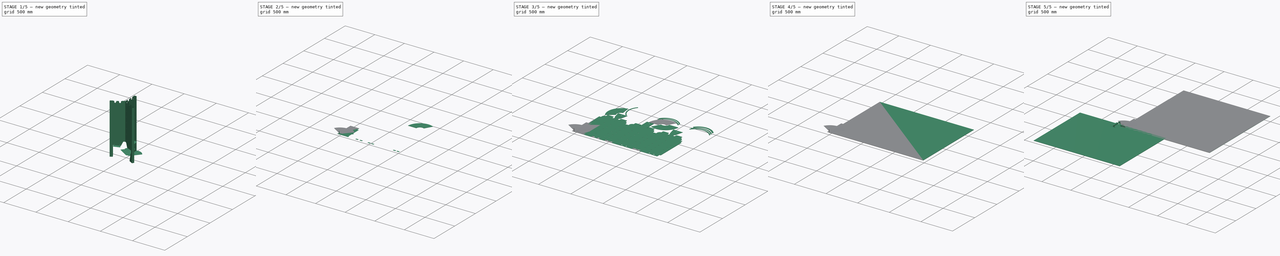
[diagram: build sequence overview — one tinted view per stage of 5, left to right]
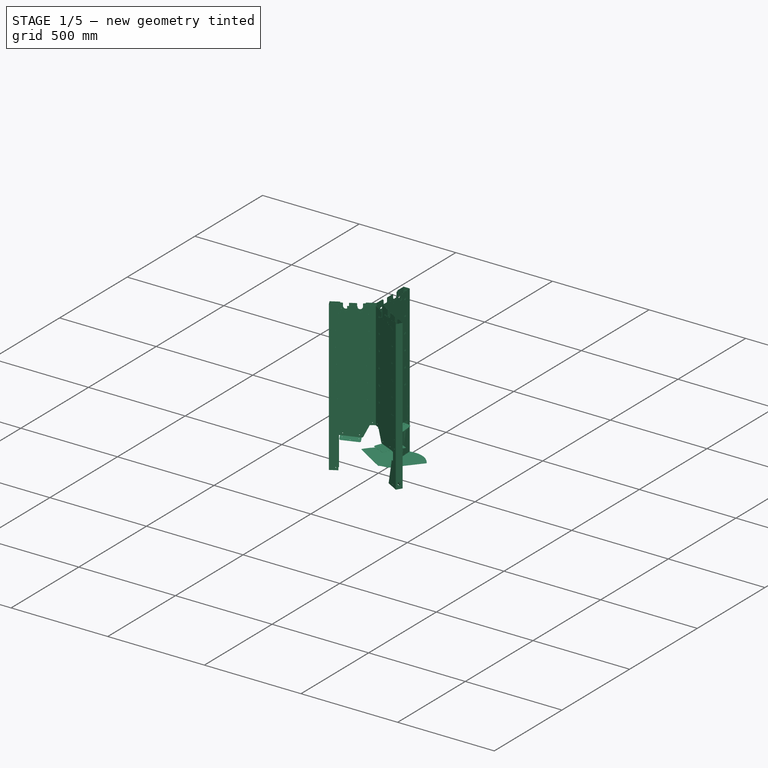
[diagram: stage 1 of 5 — iso view after this stage's code; geometry added in this stage tinted green]
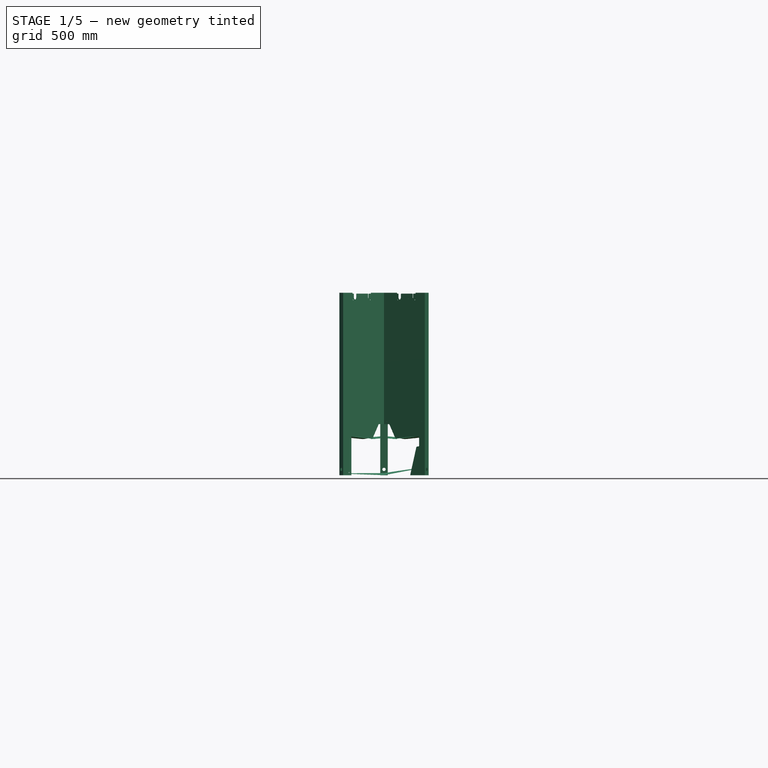
[diagram: stage 1 of 5 — front view after this stage's code; geometry added in this stage tinted green]
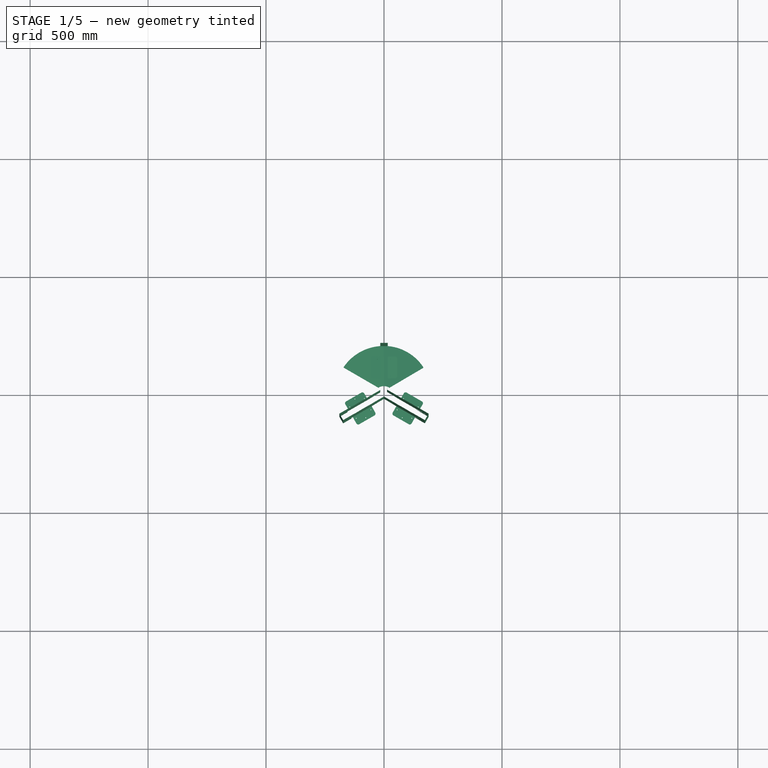
[diagram: stage 1 of 5 — top view after this stage's code; geometry added in this stage tinted green]
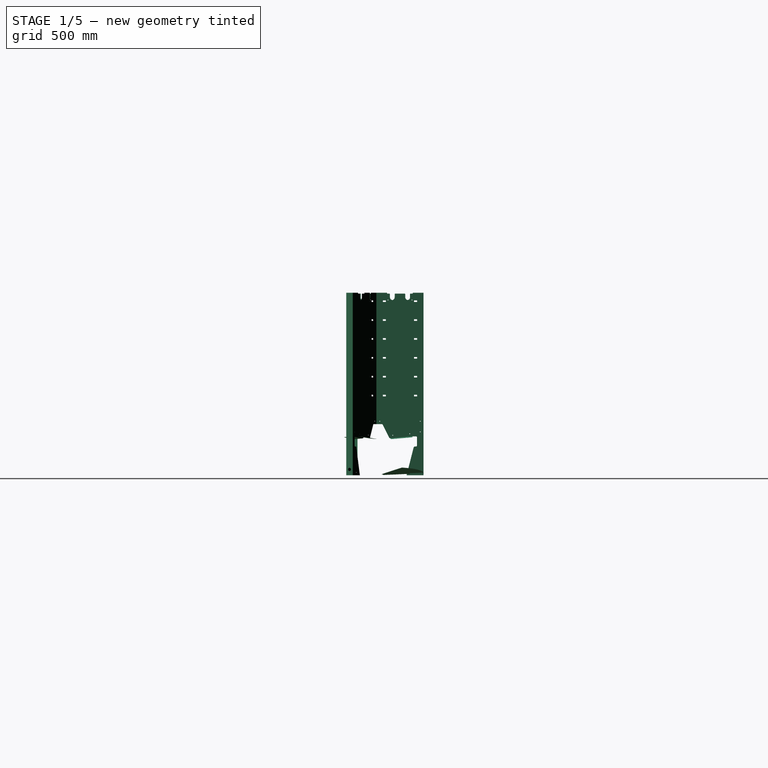
[diagram: stage 1 of 5 — right view after this stage's code; geometry added in this stage tinted green]
FCSTD DOCUMENT  (FreeCAD 0.21R31641 (Git))
Label: composit_stand_small_3
License: All rights reserved
LicenseURL: http://en.wikipedia.org/wiki/All_rights_reserved
objects: Sketcher::SketchObject×99, Part::FeaturePython×74, PartDesign::Pocket×66, PartDesign::CoordinateSystem×53, PartDesign::Mirrored×27, App::DocumentObjectGroup×27, PartDesign::SubShapeBinder×27, PartDesign::Body×24, PartDesign::Plane×22, Path::FeaturePython×20, PartDesign::FeaturePython×17, PartDesign::Pad×15, Part::Part2DObjectPython×15, PartDesign::PolarPattern×13, PartDesign::MultiTransform×10, App::Link×9, Part::Feature×8, App::FeaturePython×6, Spreadsheet::Sheet×4, PartDesign::FeatureBase×3, +6 more types
note: 561 computed .brp shape members not serialized (recipe doc carries the construction recipe); baked Part::Feature solids carry a one-line shape summary decoded from their .brp

FEATURE [Spreadsheet::Sheet] Spreadsheet  label="module"
  cells = B2(module_width)==148mm; B3(module_height)==160mm; B4(module_fixture_distance_x)==132mm; C4(module_fixture_distance_y)==80mm; B5(module_hole_x)==13mm; B6(module_hole_y)==7mm
FEATURE [Spreadsheet::Sheet] Spreadsheet001  label="main"
  cells = B2(work_plane_width)==200mm; C2(top_cover_length)==108.4mm; D2(rivet_d)==3.4mm; B3(work_plane_height)==450mm; C3(work_plane_middle)==basin_height + work_plane_height / 2; D3(planes_fix_holes_distance)==130mm; B4(end_face_width)==32mm; C4(inner_width)==end_face_width - thickness * 2; D4(gutter_fix_holes_distance)==51mm; B5(basin_height)==157mm; B6(thickness)==3mm; C6(al_thickness)==0.3mm; D6(number_of_modules)=6; E6(modules_array_height)==<<module>>.module_height + (number_of_modules - 1) * <<module>>.module_fixture_distance_y; B7(total_length)==basin_height + distance_basin_cutout_modules_bottom + modules_array_height + distance_gutter_holes_modules_top + distance_gutter_holes_dropper_cutout + <<dropper>>.center_height_offset; D7(distance_basin_cutout_modules_bottom)==21mm; B8(bend_r)==0.01mm; D8(distance_gutter_holes_modules_top)==5mm; B9(cover_plane_bend)==5deg; D9(distance_gutter_holes_dropper_cutout)==12mm; B10(cover_bend_mid)==5deg
FEATURE [Sketcher::SketchObject] Sketch003  label="main_sketch"
  FullyConstrained = true
  MapMode = 5
  Support = -> [XY_Plane001]
  expr: Constraints[30] = <<main>>.end_face_width
  expr: Constraints[31] = <<main>>.work_plane_width
  expr: Constraints[44] = <<main>>.al_thickness
  sketch-geometry (17):
    g0: LineSegment StartX=-16 StartY=9.2376 StartZ=0 EndX=-16 EndY=209.238 EndZ=0
    g1: LineSegment StartX=-16 StartY=209.238 StartZ=0 EndX=16 EndY=209.238 EndZ=0
    g2: LineSegment StartX=16 StartY=209.238 StartZ=0 EndX=16 EndY=9.2376 EndZ=0
    g3: LineSegment StartX=16 StartY=9.2376 StartZ=0 EndX=189.205 EndY=-90.7624 EndZ=0
    g4: LineSegment StartX=189.205 StartY=-90.7624 StartZ=0 EndX=173.205 EndY=-118.475 EndZ=0
    g5: LineSegment StartX=173.205 StartY=-118.475 StartZ=0 EndX=0 EndY=-18.4752 EndZ=0
    g6: LineSegment StartX=0 StartY=-18.4752 StartZ=0 EndX=-173.205 EndY=-118.475 EndZ=0
    g7: LineSegment StartX=-173.205 StartY=-118.475 StartZ=0 EndX=-189.205 EndY=-90.7624 EndZ=0
    g8: LineSegment StartX=-189.205 StartY=-90.7624 StartZ=0 EndX=-16 EndY=9.2376 EndZ=0
    g9: LineSegment StartX=-16 StartY=9.2376 StartZ=0 EndX=0 EndY=0 EndZ=0
    g10: LineSegment StartX=0 StartY=0 StartZ=0 EndX=16 EndY=9.2376 EndZ=0
    g11: LineSegment StartX=0 StartY=0 StartZ=0 EndX=0 EndY=-18.4752 EndZ=0
    g12: LineSegment StartX=189.205 StartY=-90.7624 StartZ=0 EndX=13 EndY=10.9697 EndZ=0
    g13: LineSegment StartX=16 StartY=209.238 StartZ=0 EndX=16 EndY=9.42236 EndZ=0
    g14: LineSegment StartX=16 StartY=9.42236 StartZ=0 EndX=15.7 EndY=9.42236 EndZ=0
    g15: LineSegment StartX=13 StartY=10.9697 StartZ=0 EndX=13 EndY=30.9697 EndZ=0
    g16: LineSegment StartX=13 StartY=10.9697 StartZ=0 EndX=6.66667 EndY=0 EndZ=0
  constraints (56):
    c: Vertical(g0)
    c: Coincident(g0,g1)
    c: Horizontal(g1)
    c: Coincident(g1,g2)
    c: Vertical(g2)
    c: Coincident(g2,g3)
    c: Coincident(g3,g4)
    c: Coincident(g4,g5)
    c: PointOnObject(g5,g-2)
    c: Coincident(g5,g6)
    c: Coincident(g6,g7)
    c: Coincident(g8,g7)
    c: Equal(g2,g6)
    c: Equal(g6,g5)
    c: Equal(g5,g3)
    c: Equal(g4,g7)
    c: Equal(g7,g1)
    c: Perpendicular(g4,g5)
    c: Perpendicular(g4,g3)
    c: Perpendicular(g7,g6)
    c: Perpendicular(g8,g7)
    c: Angle(g6,g5) = 2.0944
    c: Angle(g3,g2) = 2.0944
    c: Coincident(g9,g0)
    c: Coincident(g9,g-1)
    c: Coincident(g10,g9)
    c: Coincident(g10,g2)
    c: Coincident(g11,g9)
    c: Coincident(g11,g5)
    c: Equal(g10,g11)
    c: DistanceX(g1,g1) = 32
    c: DistanceY(g2,g2) = 200
    c: DistanceY(g9,g2) = 9.2376  'petal_offset'
    c: DistanceY(g0) = 9.2376  'petal_conn_y'
    c: Coincident(g8,g0)
    c: DistanceX(g2) = 16  'petal_conn_x'
    c: Distance(g9,g1) = 209.848  'max_r'
    c: Distance(g10) = 18.4752  'planes_intersec_r'
    c: DistanceY(g9,g1) = 209.238  'total_petal_length'
    c: Coincident(g12,g4)
    c: Coincident(g13,g1)
    c: PointOnObject(g13,g2)
    c: Coincident(g14,g13)
    c: Horizontal(g14)
    c: DistanceX(g14,g14) = 0.3
    c: Distance(g14,g12) = 0.01
    c: PointOnObject(g2,g12)
    c: Distance(g12,g13) = 3
    c: Coincident(g15,g12)
    c: Vertical(g15)
    c: DistanceY(g15,g15) = 20
    c: DistanceY(g15) = 30.9697  'overlap_end_y'
    c: Coincident(g16,g12)
    c: Perpendicular(g16,g12)
    c: Distance(g9,g16) = 5.7735  'overlap_bend_offset'
    c: PointOnObject(g16,g-1)
FEATURE [PartDesign::FeaturePython] BaseBend001  # WARN: FeaturePython — macro-defined, semantics opaque (R4)
  BendSide = 0
  BendSketch = -> Sketch003
  MidPlane = false
  Reverse = false
  length = 774
  radius = 0.01
  thickness = 0.3
  expr: length = <<main>>.total_length
  expr: radius = <<main>>.bend_r
FEATURE [PartDesign::CoordinateSystem] LCS_0002
  AttacherType = Attacher::AttachEngine3D
  MapMode = 2
  Support = -> [X_Axis032]
FEATURE [Sketcher::SketchObject] Sketch094
  FullyConstrained = true
  MapMode = 5
  Support = -> [XY_Plane033]
  expr: Constraints[5] = <<main>>.rivet_d
  expr: Constraints[6] = <<module>>.module_width + 24mm
  sketch-geometry (3):
    g0: Circle CenterX=-86 CenterY=2e-16 CenterZ=0 NormalX=0 NormalY=0 NormalZ=1 AngleXU=0 Radius=1.7
    g1: Circle CenterX=86 CenterY=0 CenterZ=0 NormalX=0 NormalY=0 NormalZ=1 AngleXU=0 Radius=1.7
    g2: Circle CenterX=86 CenterY=-45 CenterZ=0 NormalX=0 NormalY=0 NormalZ=1 AngleXU=0 Radius=1.7
  constraints (8):
    c: PointOnObject(g1,g-1)
    c: Vertical(g2,g1)
    c: Symmetric(g0,g1,g-2)
    c: Equal(g0,g1)
    c: Equal(g1,g2)
    c: Diameter(g1) = 3.4
    c: DistanceX(g0,g1) = 172
    c: DistanceY(g2,g1) = 45
FEATURE [Sketcher::SketchObject] Sketch095
  FullyConstrained = true
  MapMode = 5
  Support = -> [XY_Plane033]
  expr: Constraints[31] = 10
  expr: Constraints[43] = <<module>>.module_width + 24mm
  expr: Constraints[44] = <<module>>.module_width
  sketch-geometry (31):
    g0: LineSegment StartX=96 StartY=-87.0059 StartZ=0 EndX=96 EndY=5 EndZ=0
    g1: LineSegment StartX=91 StartY=10 StartZ=0 EndX=-91 EndY=10 EndZ=0
    g2: LineSegment StartX=-96 StartY=5 StartZ=0 EndX=-96 EndY=-5 EndZ=0
    g3: LineSegment StartX=-91 StartY=-10 StartZ=0 EndX=-77 EndY=-10 EndZ=0
    g4: LineSegment StartX=-72 StartY=-15 StartZ=0 EndX=-72 EndY=-59.848 EndZ=0
    g5: LineSegment StartX=-48.163 StartY=-99.1271 StartZ=0 EndX=88.7532 EndY=-94.5016 EndZ=0
    g6: ArcOfCircle CenterX=91 CenterY=5 CenterZ=0 NormalX=0 NormalY=0 NormalZ=1 AngleXU=0 Radius=5 StartAngle=0 EndAngle=1.5708
    g7: GeomPoint X=96 Y=10 Z=0
    g8: ArcOfCircle CenterX=-91 CenterY=-5 CenterZ=0 NormalX=0 NormalY=0 NormalZ=1 AngleXU=0 Radius=5 StartAngle=3.14159 EndAngle=4.71239
    g9: GeomPoint X=-96 Y=-10 Z=0
    g10: ArcOfCircle CenterX=-91 CenterY=5 CenterZ=0 NormalX=0 NormalY=0 NormalZ=1 AngleXU=0 Radius=5 StartAngle=1.5708 EndAngle=3.14159
    g11: GeomPoint X=-96 Y=10 Z=0
    g12: ArcOfCircle CenterX=-77 CenterY=-15 CenterZ=0 NormalX=0 NormalY=0 NormalZ=1 AngleXU=0 Radius=5 StartAngle=0 EndAngle=1.5708
    g13: GeomPoint X=-72 Y=-10 Z=0
    g14: GeomPoint X=-72 Y=-99.9324 Z=0
    g15: ArcOfCircle CenterX=88.5 CenterY=-87.0059 CenterZ=0 NormalX=0 NormalY=0 NormalZ=1 AngleXU=0 Radius=7.5 StartAngle=4.74616 EndAngle=6.28319
    g16: GeomPoint X=96 Y=-94.2568 Z=0
    g17: LineSegment StartX=-72 StartY=-59.9324 StartZ=0 EndX=96 EndY=-54.2568 EndZ=0
    g18: LineSegment StartX=-91 StartY=5 StartZ=0 EndX=-91 EndY=0 EndZ=0
    g19: LineSegment StartX=-91 StartY=0 StartZ=0 EndX=-91 EndY=-5 EndZ=0
    g20: GeomPoint X=86 Y=0 Z=0
    g21: GeomPoint X=-86 Y=0 Z=0
    g22: GeomPoint X=74 Y=0 Z=0
    g23: GeomPoint X=-74 Y=0 Z=0
    g24: LineSegment StartX=-91 StartY=-5 StartZ=0 EndX=-86 EndY=0 EndZ=0
    g25: GeomPoint X=-74 Y=-60 Z=0
    g26: GeomPoint X=74 Y=-55 Z=0
    g27: LineSegment StartX=-71.9971 StartY=-60.0168 StartZ=0 EndX=-71.4099 EndY=-77.3997 EndZ=0
    g28: ArcOfCircle CenterX=-48.9227 CenterY=-76.64 CenterZ=0 NormalX=0 NormalY=0 NormalZ=1 AngleXU=0 Radius=22.5 StartAngle=3.17536 EndAngle=4.74616
    g29: ArcOfCircle CenterX=-67 CenterY=-59.848 CenterZ=0 NormalX=0 NormalY=0 NormalZ=1 AngleXU=0 Radius=5 StartAngle=3.14159 EndAngle=3.17536
    g30: GeomPoint X=-72 Y=-59.9324 Z=0
  constraints (69):
    c: Vertical(g0)
    c: Horizontal(g1)
    c: Vertical(g2)
    c: Horizontal(g3)
    c: Vertical(g4)
    c: PointOnObject(g7,g1)
    c: PointOnObject(g7,g0)
    c: Tangent(g1,g6) = -1.5708
    c: Tangent(g0,g6) = -1.5708
    c: PointOnObject(g9,g3)
    c: PointOnObject(g9,g2)
    c: Tangent(g3,g8) = -1.5708
    c: Tangent(g2,g8) = -1.5708
    c: PointOnObject(g11,g2)
    c: PointOnObject(g11,g1)
    c: Tangent(g2,g10) = -1.5708
    c: Tangent(g1,g10) = -1.5708
    c: PointOnObject(g13,g3)
    c: PointOnObject(g13,g4)
    c: Tangent(g3,g12) = 1.5708
    c: Tangent(g4,g12) = 1.5708
    c: PointOnObject(g14,g4)
    c: PointOnObject(g14,g5)
    c: PointOnObject(g16,g5)
    c: PointOnObject(g16,g0)
    c: Tangent(g5,g15) = -1.5708
    c: Tangent(g0,g15) = -1.5708
    c: Parallel(g17,g5)
    c: Equal(g12,g8)
    c: Equal(g8,g10)
    c: Equal(g10,g6)
    c: Diameter(g10) = 10
    c: Diameter(g15) = 15
    c: Coincident(g18,g10)
    c: PointOnObject(g18,g-1)
    c: Vertical(g18)
    c: Coincident(g18,g19)
    c: Coincident(g19,g8)
    c: Equal(g19,g18)
    c: PointOnObject(g20,g-1)
    c: PointOnObject(g22,g-1)
    c: Symmetric(g21,g20,g-2)
    c: Symmetric(g23,g22,g-2)
    c: DistanceX(g21,g20) = 172
    c: DistanceX(g23,g22) = 148
    c: DistanceY(g9,g11) = 20
    c: Coincident(g24,g8)
    c: Coincident(g24,g21)
    c: Angle(g24,g-1) = 2.35619
    c: DistanceY(g16,g17) = 40
    c: DistanceX(g22,g0) = 22
    c: Vertical(g22,g26)
    c: Vertical(g25,g23)
    c: DistanceY(g25,g26) = 5
    c: PointOnObject(g26,g17)
    c: PointOnObject(g25,g17)
    c: DistanceY(g26,g22) = 55
    c: Coincident(g30,g17)
    c: Perpendicular(g27,g17)
    c: Tangent(g28,g5) = -1.5708
    c: Tangent(g28,g27) = -1.5708
    c: PointOnObject(g17,g0)
    c: Diameter(g28) = 45
    c: DistanceX(g23,g13) = 2
    c: PointOnObject(g30,g27)
    c: PointOnObject(g30,g4)
    c: Tangent(g27,g29) = -1.5708
    c: Tangent(g4,g29) = -1.5708
    c: Diameter(g29) = 10
FEATURE [PartDesign::Pad] Pad025
  Direction = (0,0,1)
  Length = 0.5
  Length2 = 10
  Profile = -> Sketch095
  ReferenceAxis = -> Sketch095 [N_Axis]
  Type = 0
FEATURE [Sketcher::SketchObject] Sketch096
  AttachmentOffset = pos=(0,0,0.5) rot=(0,0,1;0rad)
  FullyConstrained = false
  MapMode = 5
  Placement = pos=(0,0,0.5) rot=(0,0,1;0rad)
  Support = -> [XY_Plane033]
  expr: .AttachmentOffset.Base.z = Pad025.Length
  expr: Constraints[4] = <<module>>.module_width
  sketch-geometry (5):
    g0: GeomPoint X=-74 Y=0 Z=0
    g1: GeomPoint X=74 Y=0 Z=0
    g2: GeomPoint X=74 Y=-58 Z=0
    g3: GeomPoint X=-74 Y=-63 Z=0
    g4: LineSegment StartX=-105.813 StartY=-64.0748 StartZ=0 EndX=129.863 EndY=-56.1127 EndZ=0
  constraints (9):
    c: PointOnObject(g1,g-1)
    c: DistanceY(g3,g2) = 5
    c: DistanceY(g2,g1) = 58
    c: Symmetric(g0,g1,g-1)
    c: DistanceX(g0,g1) = 148
    c: Vertical(g2,g1)
    c: Vertical(g3,g0)
    c: PointOnObject(g2,g4)
    c: PointOnObject(g3,g4)
FEATURE [Sketcher::SketchObject] Sketch097
  FullyConstrained = false
  MapMode = 5
  Support = -> [XY_Plane033]
  sketch-geometry (1):
    g0: Circle CenterX=-66 CenterY=-66.2266 CenterZ=0 NormalX=0 NormalY=0 NormalZ=1 AngleXU=0 Radius=2.5
  constraints (2):
    c: Diameter(g0) = 5
    c: DistanceX(g0) = -66
FEATURE [PartDesign::Pocket] Pocket054
  BaseFeature = -> Pad025
  Direction = (0,0,-1)
  Length = 5
  Length2 = 5
  Midplane = true
  Profile = -> Sketch097
  ReferenceAxis = -> Sketch097 [N_Axis]
  Type = 1
FEATURE [PartDesign::Pocket] Pocket055
  BaseFeature = -> Pocket054
  Direction = (0,0,-1)
  Length = 5
  Length2 = 5
  Midplane = true
  Profile = -> Sketch094
  ReferenceAxis = -> Sketch094 [N_Axis]
  Type = 1
FEATURE [PartDesign::FeaturePython] Fold009  # WARN: FeaturePython — macro-defined, semantics opaque (R4)
  BaseFeature = -> Pocket055
  BendLine = -> Sketch096
  Position = 0
  angle = 105
  baseObject = -> Pocket055 [Face5]
  invert = false
  invertbend = false
  kfactor = 0.5
  radius = 2
  unfold = false
FEATURE [Sketcher::SketchObject] Sketch127
  FullyConstrained = true
  MapMode = 5
  Placement = pos=(0,0,0) rot=(0.57735,0.57735,0.57735;2.0944rad)
  Support = -> [YZ_Plane037]
  sketch-geometry (4):
    g0: LineSegment StartX=71.78 StartY=114.36 StartZ=0 EndX=143.27 EndY=114.36 EndZ=0
    g1: LineSegment StartX=143.27 StartY=114.36 StartZ=0 EndX=143.27 EndY=159.55 EndZ=0
    g2: LineSegment StartX=143.27 StartY=159.55 StartZ=0 EndX=71.78 EndY=159.55 EndZ=0
    g3: LineSegment StartX=71.78 StartY=159.55 StartZ=0 EndX=71.78 EndY=114.36 EndZ=0
  constraints (12):
    c: Coincident(g0,g1)
    c: Coincident(g1,g2)
    c: Coincident(g2,g3)
    c: Coincident(g3,g0)
    c: Horizontal(g0)
    c: Horizontal(g2)
    c: Vertical(g1)
    c: Vertical(g3)
    c: DistanceX(g0) = 71.78  'offset_x'
    c: DistanceY(g0) = 114.36  'offset_y'
    c: DistanceY(g3,g3) = 45.19  'height'
    c: DistanceX(g0,g0) = 71.49  'width'
FEATURE [Sketcher::SketchObject] Sketch128
  FullyConstrained = true
  MapMode = 5
  Placement = pos=(0,0,0) rot=(0.57735,0.57735,0.57735;2.0944rad)
  Support = -> [YZ_Plane001]
  expr: Constraints[11] = Spreadsheet001.cover_plane_bend
  expr: Constraints[5] = <<main>>.basin_height
  sketch-geometry (5):
    g0: LineSegment StartX=73 StartY=116.654 StartZ=0 EndX=165.646 EndY=124.76 EndZ=0
    g1: LineSegment StartX=165.646 StartY=124.76 StartZ=0 EndX=162.116 EndY=165.105 EndZ=0
    g2: LineSegment StartX=162.116 StartY=165.105 StartZ=0 EndX=69.4702 EndY=157 EndZ=0
    g3: LineSegment StartX=69.4702 StartY=157 StartZ=0 EndX=73 EndY=116.654 EndZ=0
    g4: GeomPoint X=115.793 Y=161.053 Z=0
  constraints (15):
    c: Coincident(g0,g1)
    c: Coincident(g1,g2)
    c: Coincident(g2,g3)
    c: Coincident(g3,g0)
    c: DistanceX(g0) = 73  'offset_x'
    c: DistanceY(g2) = 157
    c: Distance(g3) = 40.5  'height'
    c: Distance(g0) = 93  'length'
    c: Parallel(g1,g3)
    c: Parallel(g0,g2)
    c: Perpendicular(g0,g3)
    c: Angle(g-1,g0) = 0.0872665
    c: Symmetric(g2,g1,g4)
    c: DistanceX(g4) = 115.793  'top_center_x'
    c: DistanceY(g4) = 161.053  'top_center_y'
FEATURE [PartDesign::Pocket] Pocket081
  BaseFeature = -> BaseBend001
  Direction = (-1,2e-16,-3e-16)
  Length = 5
  Length2 = 5
  Midplane = true
  Profile = -> Sketch128
  ReferenceAxis = -> Sketch128 [N_Axis]
  Type = 1
FEATURE [PartDesign::PolarPattern] PolarPattern016
  Angle = 360
  Axis = -> Z_Axis001
  BaseFeature = -> Pocket081
  Occurrences = 3
  Originals = -> [Pocket081]
FEATURE [PartDesign::FeaturePython] Bend  # WARN: FeaturePython — macro-defined, semantics opaque (R4)
  AutoMiter = true
  BaseFeature = -> PolarPattern016
  BendType = 0
  LengthList = [40]
  LengthSpec = 2
  ReliefFactor = 0.7
  UseReliefFactor = false
  angle = 85
  baseObject = -> PolarPattern016 [Edge67,Edge25,Edge211,Edge168,Edge96,Edge140]
  bendAList = [85]
  extend1 = 0
  extend2 = 0
  gap1 = 0.1
  gap2 = 0.1
  invert = false
  kfactor = 0.5
  length = 40
  maxExtendDist = 5
  minGap = 0.1
  minReliefGap = 1
  miterangle1 = 0
  miterangle2 = 0
  offset = 0
  radius = 0.1
  reliefType = 0
  reliefd = 1
  reliefw = 0.8
  sketchflip = false
  sketchinvert = false
  unfold = false
  expr: angle = 90deg - <<main>>.cover_bend_mid
FEATURE [PartDesign::Pocket] Pocket007
  BaseFeature = -> Bend
  Direction = (-1,2e-16,-3e-16)
  Length = 13.01
  Length2 = 5
  Profile = -> Sketch012
  ReferenceAxis = -> Sketch012 [N_Axis]
  Reversed = true
  Type = 0
  expr: Length = <<main>>.end_face_width / 2 - <<main>>.thickness + <<main>>.bend_r
FEATURE [Path::FeaturePython] Job004  # Path/CAM operation (typed FeaturePython)
  CycleTime = 00:00:53
  Fixtures = G54
  GeometryTolerance = 0.01
  JobType = 0
  LastPostProcessDate = 2023-02-01 13:39:18.134572
  LastPostProcessOutput = <userpath>/2411-26D9/Job004.tap
  Model = -> Model005
  Operations = -> Operations004
  OrderOutputBy = 0
  PostProcessor = 1
  PostProcessorOutputFile = %d.%j.tap
  SetupSheet = -> SetupSheet004
  SplitOutput = false
  Stock = -> Stock004
  Tools = -> Tools004
FEATURE [Sketcher::SketchObject] Sketch134
  AttachmentOffset = pos=(0,0,0) rot=(0,1,0;1.0472rad)
  FullyConstrained = true
  MapMode = 5
  Placement = pos=(0,0,0) rot=(0.186157,0.694747,0.694747;2.77349rad)
  Support = -> [YZ_Plane001]
  expr: Constraints[18] = <<main>>.total_length
  expr: Constraints[19] = Sketch012.Constraints.top
  expr: Constraints[20] = Sketch012.Constraints.bottom
  expr: Constraints[21] = <<main_sketch>>.Constraints.overlap_bend_offset + 1mm
  sketch-geometry (8):
    g0: LineSegment StartX=0 StartY=0 StartZ=0 EndX=-6.7735 EndY=0 EndZ=0
    g1: LineSegment StartX=-6.7735 StartY=0 StartZ=0 EndX=-6.7735 EndY=263 EndZ=0
    g2: LineSegment StartX=-6.7735 StartY=263 StartZ=0 EndX=0 EndY=263 EndZ=0
    g3: LineSegment StartX=0 StartY=263 StartZ=0 EndX=0 EndY=0 EndZ=0
    g4: LineSegment StartX=0 StartY=774 StartZ=0 EndX=-6.7735 EndY=774 EndZ=0
    g5: LineSegment StartX=-6.7735 StartY=774 StartZ=0 EndX=-6.7735 EndY=724 EndZ=0
    g6: LineSegment StartX=-6.7735 StartY=724 StartZ=0 EndX=0 EndY=724 EndZ=0
    g7: LineSegment StartX=0 StartY=724 StartZ=0 EndX=0 EndY=774 EndZ=0
  constraints (23):
    c: Coincident(g0,g1)
    c: Coincident(g1,g2)
    c: Coincident(g2,g3)
    c: Coincident(g3,g0)
    c: Horizontal(g0)
    c: Horizontal(g2)
    c: Vertical(g1)
    c: Vertical(g3)
    c: Coincident(g0,g-1)
    c: Coincident(g4,g5)
    c: Coincident(g5,g6)
    c: Coincident(g6,g7)
    c: Coincident(g7,g4)
    c: Horizontal(g4)
    c: Horizontal(g6)
    c: Vertical(g5)
    c: Vertical(g7)
    c: PointOnObject(g4,g-2)
    c: DistanceY(g4) = 774
    c: DistanceY(g5,g5) = 50
    c: DistanceY(g1) = 263
    c: DistanceX(g0,g0) = 6.7735
    c: Vertical(g5,g1)
FEATURE [PartDesign::Pocket] Pocket091
  BaseFeature = -> Pocket007
  Direction = (-0.5,-0.866025,-1e-16)
  Length = 16
  Length2 = 5
  Profile = -> Sketch134
  ReferenceAxis = -> Sketch134 [N_Axis]
  Refine = true
  Reversed = true
  Type = 0
  expr: Length = <<main>>.end_face_width / 2
FEATURE [PartDesign::CoordinateSystem] Local_CS046
  AttacherType = Attacher::AttachEngine3D
  AttachmentOffset = pos=(0,0,0) rot=(0,0,1;1.0472rad)
  MapMode = 5
  Placement = pos=(0,0,0) rot=(0,0,1;1.0472rad)
  Support = -> [XY_Plane001]
FEATURE [Sketcher::SketchObject] Sketch135
  AttachmentOffset = pos=(0,-5.7735,774) rot=(0,1,0;-1.5708rad)
  FullyConstrained = true
  MapMode = 5
  Placement = pos=(5,-2.88675,774) rot=(-0.447214,0.774597,-0.447214;4.45971rad)
  Support = -> [Local_CS046]
  expr: .AttachmentOffset.Base.y = -<<main_sketch>>.Constraints.overlap_bend_offset
  expr: .AttachmentOffset.Base.z = <<main>>.total_length
  expr: Constraints[7] = <<main>>.thickness
  sketch-geometry (3):
    g0: LineSegment StartX=-3 StartY=0 StartZ=0 EndX=0 EndY=-3 EndZ=0
    g1: LineSegment StartX=0 StartY=-3 StartZ=0 EndX=0 EndY=0 EndZ=0
    g2: LineSegment StartX=0 StartY=0 StartZ=0 EndX=-3 EndY=0 EndZ=0
  constraints (8):
    c: PointOnObject(g0,g-1)
    c: PointOnObject(g0,g-2)
    c: Coincident(g0,g1)
    c: Coincident(g1,g-1)
    c: Coincident(g1,g2)
    c: Coincident(g2,g0)
    c: Equal(g2,g1)
    c: DistanceY(g1,g1) = 3
FEATURE [Sketcher::SketchObject] Sketch136
  FullyConstrained = true
  MapMode = 5
  Support = -> [XY_Plane001]
  sketch-geometry (6):
    g0: LineSegment StartX=0 StartY=-100 StartZ=0 EndX=-86.6025 EndY=50 EndZ=0
    g1: LineSegment StartX=-86.6025 StartY=50 StartZ=0 EndX=86.6025 EndY=50 EndZ=0
    g2: LineSegment StartX=86.6025 StartY=50 StartZ=0 EndX=0 EndY=-100 EndZ=0
    g3: LineSegment StartX=-86.6025 StartY=50 StartZ=0 EndX=0 EndY=7.1e-15 EndZ=0
    g4: LineSegment StartX=0 StartY=7.1e-15 StartZ=0 EndX=86.6025 EndY=50 EndZ=0
    g5: LineSegment StartX=0 StartY=7.1e-15 StartZ=0 EndX=0 EndY=-100 EndZ=0
  constraints (15):
    c: PointOnObject(g0,g-2)
    c: Coincident(g1,g0)
    c: Horizontal(g1)
    c: Coincident(g2,g1)
    c: Coincident(g2,g0)
    c: Coincident(g3,g0)
    c: Coincident(g3,g-1)
    c: Coincident(g4,g3)
    c: Coincident(g4,g1)
    c: Coincident(g5,g3)
    c: Coincident(g5,g0)
    c: Equal(g3,g4)
    c: Equal(g4,g5)
    c: Equal(g0,g1)
    c: DistanceY(g1) = 50
FEATURE [PartDesign::Pocket] Pocket093
  BaseFeature = -> Pocket091
  Direction = (0,0,-1)
  Length = 157
  Length2 = 5
  Profile = -> Sketch136
  ReferenceAxis = -> Sketch136 [N_Axis]
  Reversed = true
  Type = 0
  expr: Length = <<main>>.basin_height
FEATURE [PartDesign::Pocket] Pocket083
  BaseFeature = -> Pocket093
  Direction = (-0.0871557,0.0868241,-0.992404)
  Length = 5
  Length2 = 5
  Midplane = true
  Profile = -> Sketch130
  ReferenceAxis = -> Sketch130 [N_Axis]
  Type = 1
FEATURE [PartDesign::MultiTransform] MultiTransform014
  BaseFeature = -> Pocket083
  Originals = -> [Pocket083]
  Transformations = -> [Mirrored040,PolarPattern017]
FEATURE [PartDesign::Pocket] Pocket082
  BaseFeature = -> MultiTransform014
  Direction = (0.5,-0.866025,-1e-16)
  Length = 33
  Length2 = 5
  Midplane = true
  Profile = -> Sketch129
  ReferenceAxis = -> Sketch129 [N_Axis]
  Type = 0
  expr: Length = <<main>>.end_face_width + 1mm
FEATURE [PartDesign::Pocket] Pocket006
  BaseFeature = -> Pocket082
  Direction = (-1,2e-16,-2e-16)
  Length = 33
  Length2 = 160
  Midplane = true
  Profile = -> Sketch009
  ReferenceAxis = -> Sketch009 [N_Axis]
  Type = 0
  expr: Length = <<main>>.end_face_width + 1mm
FEATURE [Sketcher::SketchObject] Sketch137
  AttachmentOffset = pos=(0,18.4752,0) rot=(0.935113,-0.250563,-0.250563;1.63783rad)
  ExternalGeometry = -> [Sketch128]
  FullyConstrained = true
  MapMode = 5
  Placement = pos=(-16,-9.2376,0) rot=(0.57735,0.57735,0.57735;2.0944rad)
  Support = -> [Local_CS042]
  expr: .AttachmentOffset.Base.y = -Sketch009.AttachmentOffset.Base.y
  expr: .AttachmentOffset.Rotation.Angle = Sketch009.AttachmentOffset.Rotation.Angle
  expr: .AttachmentOffset.Rotation.Axis = Sketch009.AttachmentOffset.Rotation.Axis
  expr: Constraints[20] = Sketch009.Constraints[20]
  expr: Constraints[21] = Sketch009.Constraints[21]
  expr: Constraints[34] = Sketch009.Constraints[34]
  expr: Constraints[35] = Sketch009.Constraints[35]
  expr: Constraints[7] = Sketch009.Constraints[7]
  sketch-geometry (18):
    g0: LineSegment StartX=0 StartY=0 StartZ=0 EndX=0 EndY=157 EndZ=0
    g1: LineSegment StartX=190.484 StartY=160.105 StartZ=0 EndX=190.484 EndY=127 EndZ=0
    g2: LineSegment StartX=185.484 StartY=122 StartZ=0 EndX=181.372 EndY=122 EndZ=0
    g3: LineSegment StartX=176.526 StartY=118.232 StartZ=0 EndX=146.477 EndY=0 EndZ=0
    g4: LineSegment StartX=146.477 StartY=0 StartZ=0 EndX=0 EndY=0 EndZ=0
    g5: ArcOfCircle CenterX=185.484 CenterY=160.105 CenterZ=0 NormalX=0 NormalY=0 NormalZ=1 AngleXU=0 Radius=5 StartAngle=1.2868e-12 EndAngle=1.5708
    g6: GeomPoint X=190.484 Y=165.105 Z=0
    g7: ArcOfCircle CenterX=185.484 CenterY=127 CenterZ=0 NormalX=0 NormalY=0 NormalZ=1 AngleXU=0 Radius=5 StartAngle=4.71239 EndAngle=6.28319
    g8: GeomPoint X=190.484 Y=122 Z=0
    g9: ArcOfCircle CenterX=181.372 CenterY=117 CenterZ=0 NormalX=0 NormalY=0 NormalZ=1 AngleXU=0 Radius=5 StartAngle=1.5708 EndAngle=2.89271
    g10: GeomPoint X=177.484 Y=122 Z=0
    g11: LineSegment StartX=82.2376 StartY=116.654 StartZ=0 EndX=174.884 EndY=124.76 EndZ=0
    g12: LineSegment StartX=174.884 StartY=124.76 StartZ=0 EndX=171.354 EndY=165.105 EndZ=0
    g13: LineSegment StartX=171.354 StartY=165.105 StartZ=0 EndX=78.7078 EndY=157 EndZ=0
    g14: LineSegment StartX=78.7078 StartY=157 StartZ=0 EndX=82.2376 EndY=116.654 EndZ=0
    g15: LineSegment StartX=0 StartY=157 StartZ=0 EndX=78.7078 EndY=157 EndZ=0
    g16: LineSegment StartX=171.354 StartY=165.105 StartZ=0 EndX=185.484 EndY=165.105 EndZ=0
    g17: LineSegment StartX=208.395 StartY=149.752 StartZ=0 EndX=190.484 EndY=149.752 EndZ=0
  constraints (44):
    c: Coincident(g-1,g0)
    c: Vertical(g0)
    c: Vertical(g1)
    c: Horizontal(g2)
    c: PointOnObject(g3,g-1)
    c: Coincident(g3,g4)
    c: Coincident(g4,g0)
    c: DistanceY(g0,g0) = 157
    c: PointOnObject(g6,g1)
    c: Tangent(g1,g5) = 1.5708
    c: PointOnObject(g8,g2)
    c: PointOnObject(g8,g1)
    c: Tangent(g2,g7) = 1.5708
    c: Tangent(g1,g7) = 1.5708
    c: PointOnObject(g10,g3)
    c: PointOnObject(g10,g2)
    c: Tangent(g3,g9) = -1.5708
    c: Tangent(g2,g9) = -1.5708
    c: Equal(g9,g7)
    c: Equal(g7,g5)
    c: Diameter(g7) = 10
    c: Distance(g8,g10) = 13
    c: Coincident(g11,g12)
    c: Coincident(g12,g13)
    c: Coincident(g13,g14)
    c: Coincident(g14,g11)
    c: Coincident(g15,g0)
    c: Coincident(g15,g13)
    c: Coincident(g16,g12)
    c: Horizontal(g16)
    c: Tangent(g16,g5) = 1.5708
    c: PointOnObject(g6,g16)
    c: PointOnObject(g17,g1)
    c: Horizontal(g17)
    c: DistanceX(g17) = 208.395
    c: DistanceY(g17) = 149.752
    c: Coincident(g11,g-3)
    c: Angle(g3,g-1) = 1.81968
    c: Distance(g11,g3) = 3.2
    c: DistanceY(g8,g14) = 35
    c: Coincident(g11,g-4)
    c: Perpendicular(g12,g13)
    c: Perpendicular(g14,g11)
    c: Coincident(g12,g-5)
FEATURE [PartDesign::Pocket] Pocket094
  BaseFeature = -> Pocket006
  Direction = (-1,1e-16,-4e-16)
  Length = 5
  Length2 = 5
  Profile = -> Sketch137
  ReferenceAxis = -> Sketch137 [N_Axis]
  Reversed = true
  Type = 0
FEATURE [PartDesign::Mirrored] Mirrored002
  BaseFeature = -> Pocket094
  MirrorPlane = -> DatumPlane014
  Originals = -> [Pocket006,Pocket094]
FEATURE [PartDesign::Pocket] Pocket014
  BaseFeature = -> Mirrored002
  Direction = (-1,2e-16,-3e-16)
  Length = 34
  Length2 = 5
  Midplane = true
  Profile = -> Sketch013
  ReferenceAxis = -> Sketch013 [N_Axis]
  Type = 0
  expr: Length = <<main>>.end_face_width + 2mm
FEATURE [PartDesign::PolarPattern] PolarPattern003
  Angle = 360
  Axis = -> Z_Axis001
  BaseFeature = -> Pocket014
  Occurrences = 3
  Originals = -> [Pocket014]
  Refine = true
FEATURE [PartDesign::Pocket] Pocket092
  BaseFeature = -> PolarPattern003
  Direction = (0.5,0.866025,1e-16)
  Length = 16
  Length2 = 5
  Profile = -> Sketch135
  ReferenceAxis = -> Sketch135 [N_Axis]
  Type = 0
  expr: Length = <<main>>.end_face_width / 2
FEATURE [PartDesign::Pocket] Pocket013
  BaseFeature = -> Pocket092
  Direction = (-0.031614,-0.118891,-0.992404)
  Length = 5
  Length2 = 5
  Midplane = true
  Profile = -> Sketch043
  ReferenceAxis = -> Sketch043 [N_Axis]
  Type = 1
FEATURE [PartDesign::MultiTransform] MultiTransform005
  BaseFeature = -> Pocket013
  Originals = -> [Pocket013]
  Transformations = -> [Mirrored013,PolarPattern002]
FEATURE [PartDesign::Pocket] Pocket066
  BaseFeature = -> MultiTransform005
  Direction = (-1,0,-4e-16)
  Length = 5
  Length2 = 5
  Profile = -> Binder033
  Type = 1
FEATURE [PartDesign::Pocket] Pocket067
  BaseFeature = -> Pocket066
  Direction = (-1,0,-4e-16)
  Length = 5
  Length2 = 5
  Profile = -> Binder032
  Reversed = true
  Type = 1
FEATURE [PartDesign::Pocket] Pocket068
  BaseFeature = -> Pocket067
  Direction = (-1,0,0)
  Length = 5
  Length2 = 5
  Midplane = true
  Profile = -> Binder034
  Type = 1
FEATURE [PartDesign::Pocket] Pocket069
  BaseFeature = -> Pocket068
  Direction = (-1,0,-4e-16)
  Length = 5
  Length2 = 5
  Midplane = true
  Profile = -> Binder035
  Type = 1
FEATURE [PartDesign::Pocket] Pocket025
  BaseFeature = -> Pocket069
  Direction = (-1,0,-2e-16)
  Length = 5
  Length2 = 5
  Midplane = true
  Profile = -> Binder027
  Type = 1
FEATURE [PartDesign::Pocket] Pocket072
  BaseFeature = -> Pocket025
  Direction = (-1,2e-16,-3e-16)
  Length = 5
  Length2 = 5
  Midplane = true
  Profile = -> Sketch119
  ReferenceAxis = -> Sketch119 [N_Axis]
  Type = 1
FEATURE [PartDesign::Pocket] Pocket079
  BaseFeature = -> Pocket072
  Direction = (0,1,2e-16)
  Length = 5
  Length2 = 5
  Profile = -> Sketch125
  ReferenceAxis = -> Sketch125 [N_Axis]
  Type = 1
FEATURE [PartDesign::Pocket] Pocket032
  BaseFeature = -> Pocket079
  Direction = (-1,0,0)
  Length = 5
  Length2 = 5
  Midplane = true
  Profile = -> Sketch070
  ReferenceAxis = -> Sketch070 [N_Axis]
  Type = 1
FEATURE [PartDesign::PolarPattern] PolarPattern
  Angle = 360
  Axis = -> Z_Axis001
  BaseFeature = -> Pocket032
  Occurrences = 3
  Originals = -> [Pocket066,Pocket067,Pocket068,Pocket069,Pocket025,Pocket072,Pocket079,Pocket032]
FEATURE [PartDesign::Pocket] Pocket
  BaseFeature = -> PolarPattern
  Direction = (-1,0,0)
  Length = 5
  Length2 = 5
  Profile = -> Sketch011
  ReferenceAxis = -> Sketch011 [N_Axis]
  Reversed = true
  Type = 1
FEATURE [PartDesign::LinearPattern] LinearPattern001
  BaseFeature = -> Pocket
  Direction = -> Sketch011 [V_Axis]
  Length = 576
  Occurrences = 5
  Originals = -> [Pocket]
  expr: Length = 144mm * (Occurrences - 1)
FEATURE [PartDesign::Pocket] Pocket073
  BaseFeature = -> LinearPattern001
  Direction = (-0.0871557,0.0868241,-0.992404)
  Length = 7
  Length2 = 5
  Midplane = true
  Profile = -> Sketch073
  ReferenceAxis = -> Sketch073 [N_Axis]
  Type = 0
FEATURE [PartDesign::MultiTransform] MultiTransform010
  BaseFeature = -> Pocket073
  Originals = -> [Pocket073]
  Transformations = -> [PolarPattern009,Mirrored027,PolarPattern019]
FEATURE [PartDesign::Pocket] Pocket049
  BaseFeature = -> MultiTransform010
  Direction = (-1,2e-16,-3e-16)
  Length = 5
  Length2 = 5
  Profile = -> Sketch088
  ReferenceAxis = -> Sketch088 [N_Axis]
  Type = 1
FEATURE [PartDesign::Body] Body001  label="Body001_material_0.30ansi"
  Group = -> [Local_CS,Local_CS011,Sketch003,BaseBend001,Local_CS012,DatumPlane011,DatumPlane012,Local_CS035,Local_CS036,Local_CS037,Local_CS038,Sketch112,Sketch113,Sketch128,Pocket081,Local_CS039,PolarPattern016,Bend,Pocket007,Pocket091,Sketch129,Local_CS041,Sketch130,Sketch136,Pocket093,Pocket083,MultiTransform014,Mirrored040,PolarPattern017,Local_CS042,Pocket082,Pocket006,Sketch137,Pocket094,Mirrored002,+61 more]
  Origin = -> Origin001
  Tip = -> Pocket094
FEATURE [Part::Feature] Unfold016
  shape: bbox 1317 x 0.302 x 774 mm, 572 faces (baked)
FEATURE [Sketcher::SketchObject] Unfold_Sketch
  FullyConstrained = false
  sketch-geometry (570):
    g0: LineSegment StartX=-157 StartY=-151.675 StartZ=0 EndX=-157 EndY=-149.775 EndZ=0
    g1: ArcOfCircle CenterX=-197 CenterY=-149.775 CenterZ=0 NormalX=0 NormalY=0 NormalZ=1 AngleXU=1.5708 Radius=40 StartAngle=3.14159 EndAngle=4.71239
    g2: LineSegment StartX=-197 StartY=-189.775 StartZ=0 EndX=-212 EndY=-189.775 EndZ=0
    g3: ArcOfCircle CenterX=-212 CenterY=-194.775 CenterZ=0 NormalX=0 NormalY=0 NormalZ=1 AngleXU=1.5708 Radius=5 StartAngle=2e-16 EndAngle=1.5708
    g4: LineSegment StartX=-157 StartY=-281.393 StartZ=0 EndX=-157 EndY=-279.493 EndZ=0
    g5: ArcOfCircle CenterX=-197 CenterY=-281.393 CenterZ=0 NormalX=0 NormalY=0 NormalZ=1 AngleXU=-1.5708 Radius=40 StartAngle=1.5708 EndAngle=3.14159
    g6: LineSegment StartX=-212 StartY=-241.393 StartZ=0 EndX=-197 EndY=-241.393 EndZ=0
    g7: ArcOfCircle CenterX=-212 CenterY=-236.393 CenterZ=0 NormalX=0 NormalY=0 NormalZ=1 AngleXU=-1.5708 Radius=5 StartAngle=4.71239 EndAngle=6.28319
    g8: ArcOfCircle CenterX=-126.802 CenterY=-289.393 CenterZ=0 NormalX=0 NormalY=0 NormalZ=1 AngleXU=1.5708 Radius=10 StartAngle=4.71239 EndAngle=6.14165
    g9: LineSegment StartX=-116.802 StartY=-362.393 StartZ=0 EndX=-116.802 EndY=-289.393 EndZ=0
    g10: ArcOfCircle CenterX=-126.802 CenterY=-362.393 CenterZ=0 NormalX=0 NormalY=0 NormalZ=1 AngleXU=1.5708 Radius=10 StartAngle=3.28313 EndAngle=4.71239
    g11: LineSegment StartX=0 StartY=-375.573 StartZ=0 EndX=-157 EndY=-375.573 EndZ=0
    g12: LineSegment StartX=-157 StartY=-375.573 StartZ=0 EndX=-157 EndY=-372.293 EndZ=0
    g13: LineSegment StartX=-157 StartY=-490.042 StartZ=0 EndX=-157 EndY=-486.762 EndZ=0
    g14: LineSegment StartX=-157 StartY=-486.762 StartZ=0 EndX=0 EndY=-486.762 EndZ=0
    g15: ArcOfCircle CenterX=-126.802 CenterY=-499.942 CenterZ=0 NormalX=0 NormalY=0 NormalZ=1 AngleXU=-1.5708 Radius=10 StartAngle=1.5708 EndAngle=3.00005
    g16: LineSegment StartX=-116.802 StartY=-572.942 StartZ=0 EndX=-116.802 EndY=-499.942 EndZ=0
    g17: ArcOfCircle CenterX=-126.802 CenterY=-572.942 CenterZ=0 NormalX=0 NormalY=0 NormalZ=1 AngleXU=-1.5708 Radius=10 StartAngle=0.141539 EndAngle=1.5708
    g18: LineSegment StartX=-197 StartY=-620.942 StartZ=0 EndX=-212 EndY=-620.942 EndZ=0
    g19: ArcOfCircle CenterX=-197 CenterY=-580.942 CenterZ=0 NormalX=0 NormalY=0 NormalZ=1 AngleXU=1.5708 Radius=40 StartAngle=3.14159 EndAngle=4.71239
    g20: LineSegment StartX=-157 StartY=-582.842 StartZ=0 EndX=-157 EndY=-580.942 EndZ=0
    g21: ArcOfCircle CenterX=-212 CenterY=-625.942 CenterZ=0 NormalX=0 NormalY=0 NormalZ=1 AngleXU=1.5708 Radius=5 StartAngle=0 EndAngle=1.5708
    g22: LineSegment StartX=-157 StartY=-712.56 StartZ=0 EndX=-157 EndY=-710.66 EndZ=0
    g23: ArcOfCircle CenterX=-197 CenterY=-712.56 CenterZ=0 NormalX=0 NormalY=0 NormalZ=1 AngleXU=-1.5708 Radius=40 StartAngle=1.5708 EndAngle=3.14159
    g24: LineSegment StartX=-212 StartY=-672.56 StartZ=0 EndX=-197 EndY=-672.56 EndZ=0
    g25: ArcOfCircle CenterX=-212 CenterY=-667.56 CenterZ=0 NormalX=0 NormalY=0 NormalZ=1 AngleXU=-1.5708 Radius=5 StartAngle=4.71239 EndAngle=6.28319
    g26: ArcOfCircle CenterX=-126.802 CenterY=-720.56 CenterZ=0 NormalX=0 NormalY=0 NormalZ=1 AngleXU=1.5708 Radius=10 StartAngle=4.71239 EndAngle=6.14165
    g27: LineSegment StartX=-116.802 StartY=-793.56 StartZ=0 EndX=-116.802 EndY=-720.56 EndZ=0
    g28: ArcOfCircle CenterX=-126.802 CenterY=-793.56 CenterZ=0 NormalX=0 NormalY=0 NormalZ=1 AngleXU=1.5708 Radius=10 StartAngle=3.28313 EndAngle=4.71239
    g29: LineSegment StartX=-118.232 StartY=-807.302 StartZ=0 EndX=-4.26e-14 EndY=-777.253 EndZ=0
    g30: ArcOfCircle CenterX=-117 CenterY=-812.148 CenterZ=0 NormalX=0 NormalY=0 NormalZ=1 AngleXU=-1.5708 Radius=5 StartAngle=3.39048 EndAngle=4.71239
    g31: LineSegment StartX=-122 StartY=-816.26 StartZ=0 EndX=-122 EndY=-812.148 EndZ=0
    g32: ArcOfCircle CenterX=-127 CenterY=-816.26 CenterZ=0 NormalX=0 NormalY=0 NormalZ=1 AngleXU=-1.5708 Radius=5 StartAngle=0 EndAngle=1.5708
    g33: LineSegment StartX=-152 StartY=-821.26 StartZ=0 EndX=-127 EndY=-821.26 EndZ=0
    g34: ArcOfCircle CenterX=-152 CenterY=-816.26 CenterZ=0 NormalX=0 NormalY=0 NormalZ=1 AngleXU=-1.5708 Radius=5 StartAngle=4.71239 EndAngle=6.28319
    g35: LineSegment StartX=-157 StartY=-803.46 StartZ=0 EndX=-157 EndY=-816.26 EndZ=0
    g36: LineSegment StartX=-2.84e-14 StartY=-937.872 StartZ=0 EndX=-118.231 EndY=-907.829 EndZ=0
    g37: ArcOfCircle CenterX=-117 CenterY=-902.983 CenterZ=0 NormalX=0 NormalY=0 NormalZ=1 AngleXU=1.5708 Radius=5 StartAngle=1.5708 EndAngle=2.89276
    g38: LineSegment StartX=-122 StartY=-902.983 StartZ=0 EndX=-122 EndY=-898.872 EndZ=0
    g39: ArcOfCircle CenterX=-127 CenterY=-898.872 CenterZ=0 NormalX=0 NormalY=0 NormalZ=1 AngleXU=1.5708 Radius=5 StartAngle=4.71239 EndAngle=6.28319
    g40: LineSegment StartX=-127 StartY=-893.872 StartZ=0 EndX=-152 EndY=-893.872 EndZ=0
    g41: ArcOfCircle CenterX=-152 CenterY=-898.872 CenterZ=0 NormalX=0 NormalY=0 NormalZ=1 AngleXU=1.5708 Radius=5 StartAngle=0 EndAngle=1.5708
    g42: LineSegment StartX=-157 StartY=-898.872 StartZ=0 EndX=-157 EndY=-921.209 EndZ=0
    g43: ArcOfCircle CenterX=-126.802 CenterY=-1004.11 CenterZ=0 NormalX=0 NormalY=0 NormalZ=1 AngleXU=-1.5708 Radius=10 StartAngle=0.141539 EndAngle=1.5708
    g44: LineSegment StartX=-116.802 StartY=-931.109 StartZ=0 EndX=-116.802 EndY=-1004.11 EndZ=0
    g45: ArcOfCircle CenterX=-126.802 CenterY=-931.109 CenterZ=0 NormalX=0 NormalY=0 NormalZ=1 AngleXU=-1.5708 Radius=10 StartAngle=1.5708 EndAngle=3.00005
    g46: LineSegment StartX=-157 StartY=-1012.11 StartZ=0 EndX=-157 EndY=-1014.01 EndZ=0
    g47: ArcOfCircle CenterX=-197 CenterY=-1012.11 CenterZ=0 NormalX=0 NormalY=0 NormalZ=1 AngleXU=1.5708 Radius=40 StartAngle=3.14159 EndAngle=4.71239
    g48: LineSegment StartX=-212 StartY=-1052.11 StartZ=0 EndX=-197 EndY=-1052.11 EndZ=0
    g49: ArcOfCircle CenterX=-212 CenterY=-1057.11 CenterZ=0 NormalX=0 NormalY=0 NormalZ=1 AngleXU=1.5708 Radius=5 StartAngle=-9e-16 EndAngle=1.5708
    g50: LineSegment StartX=-217 StartY=-1080.34 StartZ=0 EndX=-217 EndY=-1057.11 EndZ=0
    g51: LineSegment StartX=-217 StartY=-1080.34 StartZ=0 EndX=-263 EndY=-1080.34 EndZ=0
    g52: ArcOfCircle CenterX=-268 CenterY=-1096.43 CenterZ=0 NormalX=0 NormalY=0 NormalZ=1 AngleXU=-1.5708 Radius=5 StartAngle=1.5459e-12 EndAngle=1.5708
    g53: LineSegment StartX=-268 StartY=-1101.43 StartZ=0 EndX=-719 EndY=-1101.43 EndZ=0
    g54: ArcOfCircle CenterX=-719 CenterY=-1096.43 CenterZ=0 NormalX=0 NormalY=0 NormalZ=1 AngleXU=-1.5708 Radius=5 StartAngle=4.71239 EndAngle=6.28319
    g55: LineSegment StartX=-772 StartY=-1080.34 StartZ=0 EndX=-724 EndY=-1080.34 EndZ=0
    g56: LineSegment StartX=-772 StartY=-1080.34 StartZ=0 EndX=-774 EndY=-1078.34 EndZ=0
    g57: LineSegment StartX=-770 StartY=-923.672 StartZ=0 EndX=-774 EndY=-923.672 EndZ=0
    g58: LineSegment StartX=-770 StartY=-927.747 StartZ=0 EndX=-770 EndY=-923.672 EndZ=0
    g59: ArcOfCircle CenterX=-767.5 CenterY=-927.747 CenterZ=0 NormalX=0 NormalY=0 NormalZ=1 AngleXU=1.5708 Radius=2.5 StartAngle=1.5708 EndAngle=3.14159
    g60: LineSegment StartX=-755 StartY=-930.247 StartZ=0 EndX=-767.5 EndY=-930.247 EndZ=0
    g61: ArcOfCircle CenterX=-755 CenterY=-942.872 CenterZ=0 NormalX=0 NormalY=0 NormalZ=1 AngleXU=1.5708 Radius=12.625 StartAngle=3.14159 EndAngle=6.28319
    g62: LineSegment StartX=-755 StartY=-955.497 StartZ=0 EndX=-767.5 EndY=-955.497 EndZ=0
    g63: ArcOfCircle CenterX=-767.5 CenterY=-957.997 CenterZ=0 NormalX=0 NormalY=0 NormalZ=1 AngleXU=1.5708 Radius=2.5 StartAngle=-9e-16 EndAngle=1.5708
    g64: LineSegment StartX=-770 StartY=-997.747 StartZ=0 EndX=-770 EndY=-957.997 EndZ=0
    g65: ArcOfCircle CenterX=-767.5 CenterY=-997.747 CenterZ=0 NormalX=0 NormalY=0 NormalZ=1 AngleXU=1.5708 Radius=2.5 StartAngle=1.5708 EndAngle=3.14159
    g66: LineSegment StartX=-755 StartY=-1000.25 StartZ=0 EndX=-767.5 EndY=-1000.25 EndZ=0
    g67: ArcOfCircle CenterX=-755 CenterY=-1012.87 CenterZ=0 NormalX=0 NormalY=0 NormalZ=1 AngleXU=1.5708 Radius=12.625 StartAngle=3.14159 EndAngle=6.28319
    g68: LineSegment StartX=-755 StartY=-1025.5 StartZ=0 EndX=-767.5 EndY=-1025.5 EndZ=0
    g69: ArcOfCircle CenterX=-767.5 CenterY=-1028 CenterZ=0 NormalX=0 NormalY=0 NormalZ=1 AngleXU=1.5708 Radius=2.5 StartAngle=-9e-16 EndAngle=1.5708
    g70: LineSegment StartX=-770 StartY=-1032.07 StartZ=0 EndX=-770 EndY=-1028 EndZ=0
    g71: LineSegment StartX=-774 StartY=-1032.07 StartZ=0 EndX=-770 EndY=-1032.07 EndZ=0
    g72: LineSegment StartX=-774 StartY=-1032.07 StartZ=0 EndX=-774 EndY=-1078.34 EndZ=0
    g73: LineSegment StartX=-770 StartY=-800.998 StartZ=0 EndX=-774 EndY=-800.998 EndZ=0
    g74: LineSegment StartX=-770 StartY=-791.923 StartZ=0 EndX=-770 EndY=-800.998 EndZ=0
    g75: ArcOfCircle CenterX=-767.5 CenterY=-791.923 CenterZ=0 NormalX=0 NormalY=0 NormalZ=1 AngleXU=-1.5708 Radius=2.5 StartAngle=3.14159 EndAngle=4.71239
    g76: LineSegment StartX=-767.5 StartY=-789.423 StartZ=0 EndX=-755 EndY=-789.423 EndZ=0
    g77: ArcOfCircle CenterX=-755 CenterY=-776.798 CenterZ=0 NormalX=0 NormalY=0 NormalZ=1 AngleXU=-1.5708 Radius=12.625 StartAngle=4e-16 EndAngle=3.14159
    g78: LineSegment StartX=-767.5 StartY=-764.173 StartZ=0 EndX=-755 EndY=-764.173 EndZ=0
    g79: ArcOfCircle CenterX=-767.5 CenterY=-761.673 CenterZ=0 NormalX=0 NormalY=0 NormalZ=1 AngleXU=-1.5708 Radius=2.5 StartAngle=4.71239 EndAngle=6.28319
    g80: LineSegment StartX=-770 StartY=-731.923 StartZ=0 EndX=-770 EndY=-761.673 EndZ=0
    g81: ArcOfCircle CenterX=-767.5 CenterY=-731.923 CenterZ=0 NormalX=0 NormalY=0 NormalZ=1 AngleXU=-1.5708 Radius=2.5 StartAngle=3.14159 EndAngle=4.71239
    g82: LineSegment StartX=-767.5 StartY=-729.423 StartZ=0 EndX=-755 EndY=-729.423 EndZ=0
    g83: ArcOfCircle CenterX=-755 CenterY=-716.798 CenterZ=0 NormalX=0 NormalY=0 NormalZ=1 AngleXU=-1.5708 Radius=12.625 StartAngle=4e-16 EndAngle=3.14159
    g84: LineSegment StartX=-767.5 StartY=-704.173 StartZ=0 EndX=-755 EndY=-704.173 EndZ=0
    g85: ArcOfCircle CenterX=-767.5 CenterY=-701.673 CenterZ=0 NormalX=0 NormalY=0 NormalZ=1 AngleXU=-1.5708 Radius=2.5 StartAngle=4.71239 EndAngle=6.28319
    g86: LineSegment StartX=-770 StartY=-692.598 StartZ=0 EndX=-770 EndY=-701.673 EndZ=0
    g87: LineSegment StartX=-774 StartY=-692.598 StartZ=0 EndX=-770 EndY=-692.598 EndZ=0
    g88: LineSegment StartX=-770 StartY=-600.904 StartZ=0 EndX=-774 EndY=-600.904 EndZ=0
    g89: LineSegment StartX=-770 StartY=-596.829 StartZ=0 EndX=-770 EndY=-600.904 EndZ=0
    g90: ArcOfCircle CenterX=-767.5 CenterY=-596.829 CenterZ=0 NormalX=0 NormalY=0 NormalZ=1 AngleXU=1.5708 Radius=2.5 StartAngle=2e-16 EndAngle=1.5708
    g91: LineSegment StartX=-767.5 StartY=-594.329 StartZ=0 EndX=-755 EndY=-594.329 EndZ=0
    g92: ArcOfCircle CenterX=-755 CenterY=-581.704 CenterZ=0 NormalX=0 NormalY=0 NormalZ=1 AngleXU=1.5708 Radius=12.625 StartAngle=3.14159 EndAngle=6.28319
    g93: LineSegment StartX=-767.5 StartY=-569.079 StartZ=0 EndX=-755 EndY=-569.079 EndZ=0
    g94: ArcOfCircle CenterX=-767.5 CenterY=-566.579 CenterZ=0 NormalX=0 NormalY=0 NormalZ=1 AngleXU=1.5708 Radius=2.5 StartAngle=1.5708 EndAngle=3.14159
    g95: LineSegment StartX=-770 StartY=-526.829 StartZ=0 EndX=-770 EndY=-566.579 EndZ=0
    g96: ArcOfCircle CenterX=-767.5 CenterY=-526.829 CenterZ=0 NormalX=0 NormalY=0 NormalZ=1 AngleXU=1.5708 Radius=2.5 StartAngle=2e-16 EndAngle=1.5708
    g97: LineSegment StartX=-774 StartY=-492.504 StartZ=0 EndX=-770 EndY=-492.504 EndZ=0
    g98: LineSegment StartX=-770 StartY=-492.504 StartZ=0 EndX=-770 EndY=-496.579 EndZ=0
    g99: ArcOfCircle CenterX=-767.5 CenterY=-496.579 CenterZ=0 NormalX=0 NormalY=0 NormalZ=1 AngleXU=1.5708 Radius=2.5 StartAngle=1.5708 EndAngle=3.14159
    g100: LineSegment StartX=-767.5 StartY=-499.079 StartZ=0 EndX=-755 EndY=-499.079 EndZ=0
    g101: ArcOfCircle CenterX=-755 CenterY=-511.704 CenterZ=0 NormalX=0 NormalY=0 NormalZ=1 AngleXU=1.5708 Radius=12.625 StartAngle=3.14159 EndAngle=6.28319
    g102: LineSegment StartX=-767.5 StartY=-524.329 StartZ=0 EndX=-755 EndY=-524.329 EndZ=0
    g103: LineSegment StartX=-774 StartY=-261.43 StartZ=0 EndX=-770 EndY=-261.43 EndZ=0
    g104: LineSegment StartX=-770 StartY=-261.43 StartZ=0 EndX=-770 EndY=-270.505 EndZ=0
    g105: ArcOfCircle CenterX=-767.5 CenterY=-270.505 CenterZ=0 NormalX=0 NormalY=0 NormalZ=1 AngleXU=-1.5708 Radius=2.5 StartAngle=4.71239 EndAngle=6.28319
    g106: LineSegment StartX=-767.5 StartY=-273.005 StartZ=0 EndX=-755 EndY=-273.005 EndZ=0
    g107: LineSegment StartX=-770 StartY=-369.83 StartZ=0 EndX=-774 EndY=-369.83 EndZ=0
    g108: LineSegment StartX=-770 StartY=-360.755 StartZ=0 EndX=-770 EndY=-369.83 EndZ=0
    g109: ArcOfCircle CenterX=-767.5 CenterY=-360.755 CenterZ=0 NormalX=0 NormalY=0 NormalZ=1 AngleXU=-1.5708 Radius=2.5 StartAngle=3.14159 EndAngle=4.71239
    g110: LineSegment StartX=-767.5 StartY=-358.255 StartZ=0 EndX=-755 EndY=-358.255 EndZ=0
    g111: ArcOfCircle CenterX=-755 CenterY=-345.63 CenterZ=0 NormalX=0 NormalY=0 NormalZ=1 AngleXU=-1.5708 Radius=12.625 StartAngle=0 EndAngle=3.14159
    g112: LineSegment StartX=-767.5 StartY=-333.005 StartZ=0 EndX=-755 EndY=-333.005 EndZ=0
    g113: ArcOfCircle CenterX=-767.5 CenterY=-330.505 CenterZ=0 NormalX=0 NormalY=0 NormalZ=1 AngleXU=-1.5708 Radius=2.5 StartAngle=4.71239 EndAngle=6.28319
    g114: LineSegment StartX=-770 StartY=-300.755 StartZ=0 EndX=-770 EndY=-330.505 EndZ=0
    g115: ArcOfCircle CenterX=-767.5 CenterY=-300.755 CenterZ=0 NormalX=0 NormalY=0 NormalZ=1 AngleXU=-1.5708 Radius=2.5 StartAngle=3.14159 EndAngle=4.71239
    g116: LineSegment StartX=-767.5 StartY=-298.255 StartZ=0 EndX=-755 EndY=-298.255 EndZ=0
    g117: ArcOfCircle CenterX=-755 CenterY=-285.63 CenterZ=0 NormalX=0 NormalY=0 NormalZ=1 AngleXU=-1.5708 Radius=12.625 StartAngle=0 EndAngle=3.14159
    g118: LineSegment StartX=-774 StartY=-61.3371 StartZ=0 EndX=-770 EndY=-61.3371 EndZ=0
    g119: LineSegment StartX=-770 StartY=-61.3371 StartZ=0 EndX=-770 EndY=-65.4121 EndZ=0
    g120: ArcOfCircle CenterX=-767.5 CenterY=-65.4121 CenterZ=0 NormalX=0 NormalY=0 NormalZ=1 AngleXU=1.5708 Radius=2.5 StartAngle=1.5708 EndAngle=3.14159
    g121: LineSegment StartX=-767.5 StartY=-67.9121 StartZ=0 EndX=-755 EndY=-67.9121 EndZ=0
    g122: LineSegment StartX=-770 StartY=-169.737 StartZ=0 EndX=-774 EndY=-169.737 EndZ=0
    g123: LineSegment StartX=-770 StartY=-165.662 StartZ=0 EndX=-770 EndY=-169.737 EndZ=0
    g124: ArcOfCircle CenterX=-767.5 CenterY=-165.662 CenterZ=0 NormalX=0 NormalY=0 NormalZ=1 AngleXU=1.5708 Radius=2.5 StartAngle=4e-16 EndAngle=1.5708
    g125: LineSegment StartX=-767.5 StartY=-163.162 StartZ=0 EndX=-755 EndY=-163.162 EndZ=0
    g126: ArcOfCircle CenterX=-755 CenterY=-150.537 CenterZ=0 NormalX=0 NormalY=0 NormalZ=1 AngleXU=1.5708 Radius=12.625 StartAngle=3.14159 EndAngle=6.28319
    g127: LineSegment StartX=-767.5 StartY=-137.912 StartZ=0 EndX=-755 EndY=-137.912 EndZ=0
    g128: ArcOfCircle CenterX=-767.5 CenterY=-135.412 CenterZ=0 NormalX=0 NormalY=0 NormalZ=1 AngleXU=1.5708 Radius=2.5 StartAngle=1.5708 EndAngle=3.14159
    g129: LineSegment StartX=-770 StartY=-95.6621 StartZ=0 EndX=-770 EndY=-135.412 EndZ=0
    g130: ArcOfCircle CenterX=-767.5 CenterY=-95.6621 CenterZ=0 NormalX=0 NormalY=0 NormalZ=1 AngleXU=1.5708 Radius=2.5 StartAngle=4e-16 EndAngle=1.5708
    g131: LineSegment StartX=-767.5 StartY=-93.1621 StartZ=0 EndX=-755 EndY=-93.1621 EndZ=0
    g132: ArcOfCircle CenterX=-755 CenterY=-80.5371 CenterZ=0 NormalX=0 NormalY=0 NormalZ=1 AngleXU=1.5708 Radius=12.625 StartAngle=3.14159 EndAngle=6.28319
    g133: LineSegment StartX=-770 StartY=61.3371 StartZ=0 EndX=-774 EndY=61.3371 EndZ=0
    g134: LineSegment StartX=-770 StartY=70.4121 StartZ=0 EndX=-770 EndY=61.3371 EndZ=0
    g135: ArcOfCircle CenterX=-767.5 CenterY=70.4121 CenterZ=0 NormalX=0 NormalY=0 NormalZ=1 AngleXU=-1.5708 Radius=2.5 StartAngle=3.14159 EndAngle=4.71239
    g136: LineSegment StartX=-767.5 StartY=72.9121 StartZ=0 EndX=-755 EndY=72.9121 EndZ=0
    g137: ArcOfCircle CenterX=-755 CenterY=85.5371 CenterZ=0 NormalX=0 NormalY=0 NormalZ=1 AngleXU=-1.5708 Radius=12.625 StartAngle=0 EndAngle=3.14159
    g138: LineSegment StartX=-767.5 StartY=98.1621 StartZ=0 EndX=-755 EndY=98.1621 EndZ=0
    g139: ArcOfCircle CenterX=-767.5 CenterY=100.662 CenterZ=0 NormalX=0 NormalY=0 NormalZ=1 AngleXU=-1.5708 Radius=2.5 StartAngle=4.71239 EndAngle=6.28319
    g140: LineSegment StartX=-770 StartY=130.412 StartZ=0 EndX=-770 EndY=100.662 EndZ=0
    g141: ArcOfCircle CenterX=-767.5 CenterY=130.412 CenterZ=0 NormalX=0 NormalY=0 NormalZ=1 AngleXU=-1.5708 Radius=2.5 StartAngle=3.14159 EndAngle=4.71239
    g142: LineSegment StartX=-767.5 StartY=132.912 StartZ=0 EndX=-755 EndY=132.912 EndZ=0
    g143: ArcOfCircle CenterX=-755 CenterY=145.537 CenterZ=0 NormalX=0 NormalY=0 NormalZ=1 AngleXU=-1.5708 Radius=12.625 StartAngle=0 EndAngle=3.14159
    g144: LineSegment StartX=-767.5 StartY=158.162 StartZ=0 EndX=-755 EndY=158.162 EndZ=0
    g145: ArcOfCircle CenterX=-767.5 CenterY=160.662 CenterZ=0 NormalX=0 NormalY=0 NormalZ=1 AngleXU=-1.5708 Radius=2.5 StartAngle=4.71239 EndAngle=6.28319
    g146: LineSegment StartX=-770 StartY=169.737 StartZ=0 EndX=-770 EndY=160.662 EndZ=0
    g147: LineSegment StartX=-157 StartY=149.775 StartZ=0 EndX=-157 EndY=151.675 EndZ=0
    g148: ArcOfCircle CenterX=-197 CenterY=149.775 CenterZ=0 NormalX=0 NormalY=0 NormalZ=1 AngleXU=-1.5708 Radius=40 StartAngle=1.5708 EndAngle=3.14159
    g149: LineSegment StartX=-212 StartY=189.775 StartZ=0 EndX=-197 EndY=189.775 EndZ=0
    g150: ArcOfCircle CenterX=-212 CenterY=194.775 CenterZ=0 NormalX=0 NormalY=0 NormalZ=1 AngleXU=-1.5708 Radius=5 StartAngle=4.71239 EndAngle=6.28319
    g151: LineSegment StartX=-217 StartY=215.352 StartZ=0 EndX=-217 EndY=194.775 EndZ=0
    g152: LineSegment StartX=-217 StartY=215.352 StartZ=0 EndX=-774 EndY=215.352 EndZ=0
    g153: LineSegment StartX=-774 StartY=169.737 StartZ=0 EndX=-774 EndY=215.352 EndZ=0
    g154: LineSegment StartX=-774 StartY=169.737 StartZ=0 EndX=-770 EndY=169.737 EndZ=0
    g155: ArcOfCircle CenterX=-126.802 CenterY=141.775 CenterZ=0 NormalX=0 NormalY=0 NormalZ=1 AngleXU=1.5708 Radius=10 StartAngle=4.71239 EndAngle=6.14165
    g156: LineSegment StartX=-116.802 StartY=68.7747 StartZ=0 EndX=-116.802 EndY=141.775 EndZ=0
    g157: ArcOfCircle CenterX=-126.802 CenterY=68.7747 CenterZ=0 NormalX=0 NormalY=0 NormalZ=1 AngleXU=1.5708 Radius=10 StartAngle=3.28313 EndAngle=4.71239
    g158: LineSegment StartX=-118.231 StartY=45.4947 StartZ=0 EndX=-1.42e-14 EndY=75.5371 EndZ=0
    g159: ArcOfCircle CenterX=-117 CenterY=40.6487 CenterZ=0 NormalX=0 NormalY=0 NormalZ=1 AngleXU=-1.5708 Radius=5 StartAngle=3.39042 EndAngle=4.71239
    g160: LineSegment StartX=-122 StartY=36.5371 StartZ=0 EndX=-122 EndY=40.6487 EndZ=0
    g161: ArcOfCircle CenterX=-127 CenterY=36.5371 CenterZ=0 NormalX=0 NormalY=0 NormalZ=1 AngleXU=-1.5708 Radius=5 StartAngle=0 EndAngle=1.5708
    g162: LineSegment StartX=-152 StartY=31.5371 StartZ=0 EndX=-127 EndY=31.5371 EndZ=0
    g163: ArcOfCircle CenterX=-152 CenterY=36.5371 CenterZ=0 NormalX=0 NormalY=0 NormalZ=1 AngleXU=-1.5708 Radius=5 StartAngle=4.71239 EndAngle=6.28319
    g164: LineSegment StartX=-157 StartY=58.8747 StartZ=0 EndX=-157 EndY=36.5371 EndZ=0
    g165: LineSegment StartX=-157 StartY=-58.8747 StartZ=0 EndX=-157 EndY=-46.0751 EndZ=0
    g166: ArcOfCircle CenterX=-152 CenterY=-46.0751 CenterZ=0 NormalX=0 NormalY=0 NormalZ=1 AngleXU=1.5708 Radius=5 StartAngle=0 EndAngle=1.5708
    g167: LineSegment StartX=-152 StartY=-41.0751 StartZ=0 EndX=-127 EndY=-41.0751 EndZ=0
    g168: ArcOfCircle CenterX=-127 CenterY=-46.0751 CenterZ=0 NormalX=0 NormalY=0 NormalZ=1 AngleXU=1.5708 Radius=5 StartAngle=4.71239 EndAngle=6.28319
    g169: LineSegment StartX=-122 StartY=-46.0751 StartZ=0 EndX=-122 EndY=-50.1869 EndZ=0
    g170: ArcOfCircle CenterX=-117 CenterY=-50.1869 CenterZ=0 NormalX=0 NormalY=0 NormalZ=1 AngleXU=1.5708 Radius=5 StartAngle=1.5708 EndAngle=2.89271
    g171: LineSegment StartX=-118.232 StartY=-55.0329 StartZ=0 EndX=0 EndY=-85.0818 EndZ=0
    g172: ArcOfCircle CenterX=-126.802 CenterY=-68.7747 CenterZ=0 NormalX=0 NormalY=0 NormalZ=1 AngleXU=-1.5708 Radius=10 StartAngle=1.5708 EndAngle=3.00005
    g173: LineSegment StartX=-116.802 StartY=-141.775 StartZ=0 EndX=-116.802 EndY=-68.7747 EndZ=0
    g174: ArcOfCircle CenterX=-126.802 CenterY=-141.775 CenterZ=0 NormalX=0 NormalY=0 NormalZ=1 AngleXU=-1.5708 Radius=10 StartAngle=0.141539 EndAngle=1.5708
    g175: Circle CenterX=-25 CenterY=-862.335 CenterZ=0 NormalX=0 NormalY=0 NormalZ=1 AngleXU=1.5708 Radius=7
    g176: Circle CenterX=-25 CenterY=-431.167 CenterZ=0 NormalX=0 NormalY=0 NormalZ=1 AngleXU=1.5708 Radius=7
    g177: Circle CenterX=-25 CenterY=0 CenterZ=0 NormalX=0 NormalY=0 NormalZ=1 AngleXU=1.5708 Radius=7
    g178: LineSegment StartX=-334.5 StartY=-687.298 StartZ=0 EndX=-334.5 EndY=-674.298 EndZ=0
    g179: LineSegment StartX=-341.5 StartY=-687.298 StartZ=0 EndX=-334.5 EndY=-687.298 EndZ=0
    g180: LineSegment StartX=-334.5 StartY=-674.298 StartZ=0 EndX=-341.5 EndY=-674.298 EndZ=0
    g181: LineSegment StartX=-341.5 StartY=-674.298 StartZ=0 EndX=-341.5 EndY=-687.298 EndZ=0
    g182: LineSegment StartX=-574.5 StartY=-819.298 StartZ=0 EndX=-574.5 EndY=-806.298 EndZ=0
    g183: LineSegment StartX=-581.5 StartY=-819.298 StartZ=0 EndX=-574.5 EndY=-819.298 EndZ=0
    g184: LineSegment StartX=-574.5 StartY=-806.298 StartZ=0 EndX=-581.5 EndY=-806.298 EndZ=0
    g185: LineSegment StartX=-581.5 StartY=-806.298 StartZ=0 EndX=-581.5 EndY=-819.298 EndZ=0
    g186: LineSegment StartX=-574.5 StartY=-905.372 StartZ=0 EndX=-574.5 EndY=-918.372 EndZ=0
    g187: LineSegment StartX=-581.5 StartY=-905.372 StartZ=0 EndX=-574.5 EndY=-905.372 EndZ=0
    g188: LineSegment StartX=-574.5 StartY=-918.372 StartZ=0 EndX=-581.5 EndY=-918.372 EndZ=0
    g189: LineSegment StartX=-581.5 StartY=-918.372 StartZ=0 EndX=-581.5 EndY=-905.372 EndZ=0
    g190: LineSegment StartX=-654.5 StartY=-905.372 StartZ=0 EndX=-654.5 EndY=-918.372 EndZ=0
    g191: LineSegment StartX=-661.5 StartY=-905.372 StartZ=0 EndX=-654.5 EndY=-905.372 EndZ=0
    g192: LineSegment StartX=-654.5 StartY=-918.372 StartZ=0 EndX=-661.5 EndY=-918.372 EndZ=0
    g193: LineSegment StartX=-661.5 StartY=-918.372 StartZ=0 EndX=-661.5 EndY=-905.372 EndZ=0
    g194: LineSegment StartX=-414.5 StartY=-1037.37 StartZ=0 EndX=-414.5 EndY=-1050.37 EndZ=0
    g195: LineSegment StartX=-421.5 StartY=-1037.37 StartZ=0 EndX=-414.5 EndY=-1037.37 EndZ=0
    g196: LineSegment StartX=-414.5 StartY=-1050.37 StartZ=0 EndX=-421.5 EndY=-1050.37 EndZ=0
    g197: LineSegment StartX=-421.5 StartY=-1050.37 StartZ=0 EndX=-421.5 EndY=-1037.37 EndZ=0
    g198: LineSegment StartX=-414.5 StartY=-687.298 StartZ=0 EndX=-414.5 EndY=-674.298 EndZ=0
    g199: LineSegment StartX=-421.5 StartY=-687.298 StartZ=0 EndX=-414.5 EndY=-687.298 EndZ=0
    g200: LineSegment StartX=-414.5 StartY=-674.298 StartZ=0 EndX=-421.5 EndY=-674.298 EndZ=0
    g201: LineSegment StartX=-421.5 StartY=-674.298 StartZ=0 EndX=-421.5 EndY=-687.298 EndZ=0
    g202: LineSegment StartX=-494.5 StartY=-1037.37 StartZ=0 EndX=-494.5 EndY=-1050.37 EndZ=0
    g203: LineSegment StartX=-501.5 StartY=-1037.37 StartZ=0 EndX=-494.5 EndY=-1037.37 EndZ=0
    g204: LineSegment StartX=-494.5 StartY=-1050.37 StartZ=0 EndX=-501.5 EndY=-1050.37 EndZ=0
    g205: LineSegment StartX=-501.5 StartY=-1050.37 StartZ=0 EndX=-501.5 EndY=-1037.37 EndZ=0
    g206: LineSegment StartX=-414.5 StartY=-905.372 StartZ=0 EndX=-414.5 EndY=-918.372 EndZ=0
    g207: LineSegment StartX=-421.5 StartY=-905.372 StartZ=0 EndX=-414.5 EndY=-905.372 EndZ=0
    g208: LineSegment StartX=-414.5 StartY=-918.372 StartZ=0 EndX=-421.5 EndY=-918.372 EndZ=0
    g209: LineSegment StartX=-421.5 StartY=-918.372 StartZ=0 EndX=-421.5 EndY=-905.372 EndZ=0
    g210: LineSegment StartX=-501.5 StartY=-606.204 StartZ=0 EndX=-501.5 EndY=-619.204 EndZ=0
    g211: LineSegment StartX=-494.5 StartY=-606.204 StartZ=0 EndX=-501.5 EndY=-606.204 EndZ=0
    g212: LineSegment StartX=-501.5 StartY=-619.204 StartZ=0 EndX=-494.5 EndY=-619.204 EndZ=0
    g213: LineSegment StartX=-494.5 StartY=-619.204 StartZ=0 EndX=-494.5 EndY=-606.204 EndZ=0
    g214: LineSegment StartX=-421.5 StartY=-606.204 StartZ=0 EndX=-421.5 EndY=-619.204 EndZ=0
    g215: LineSegment StartX=-414.5 StartY=-606.204 StartZ=0 EndX=-421.5 EndY=-606.204 EndZ=0
    g216: LineSegment StartX=-421.5 StartY=-619.204 StartZ=0 EndX=-414.5 EndY=-619.204 EndZ=0
    g217: LineSegment StartX=-414.5 StartY=-619.204 StartZ=0 EndX=-414.5 EndY=-606.204 EndZ=0
    g218: LineSegment StartX=-341.5 StartY=-606.204 StartZ=0 EndX=-341.5 EndY=-619.204 EndZ=0
    g219: LineSegment StartX=-334.5 StartY=-606.204 StartZ=0 EndX=-341.5 EndY=-606.204 EndZ=0
    g220: LineSegment StartX=-341.5 StartY=-619.204 StartZ=0 EndX=-334.5 EndY=-619.204 EndZ=0
    g221: LineSegment StartX=-334.5 StartY=-619.204 StartZ=0 EndX=-334.5 EndY=-606.204 EndZ=0
    g222: LineSegment StartX=-334.5 StartY=-819.298 StartZ=0 EndX=-334.5 EndY=-806.298 EndZ=0
    g223: LineSegment StartX=-341.5 StartY=-819.298 StartZ=0 EndX=-334.5 EndY=-819.298 EndZ=0
    g224: LineSegment StartX=-334.5 StartY=-806.298 StartZ=0 EndX=-341.5 EndY=-806.298 EndZ=0
    g225: LineSegment StartX=-341.5 StartY=-806.298 StartZ=0 EndX=-341.5 EndY=-819.298 EndZ=0
    g226: LineSegment StartX=-494.5 StartY=-819.298 StartZ=0 EndX=-494.5 EndY=-806.298 EndZ=0
    g227: LineSegment StartX=-501.5 StartY=-819.298 StartZ=0 EndX=-494.5 EndY=-819.298 EndZ=0
    g228: LineSegment StartX=-494.5 StartY=-806.298 StartZ=0 EndX=-501.5 EndY=-806.298 EndZ=0
    g229: LineSegment StartX=-501.5 StartY=-806.298 StartZ=0 EndX=-501.5 EndY=-819.298 EndZ=0
    g230: LineSegment StartX=-414.5 StartY=-819.298 StartZ=0 EndX=-414.5 EndY=-806.298 EndZ=0
    g231: LineSegment StartX=-421.5 StartY=-819.298 StartZ=0 EndX=-414.5 EndY=-819.298 EndZ=0
    g232: LineSegment StartX=-414.5 StartY=-806.298 StartZ=0 EndX=-421.5 EndY=-806.298 EndZ=0
    g233: LineSegment StartX=-421.5 StartY=-806.298 StartZ=0 EndX=-421.5 EndY=-819.298 EndZ=0
    g234: LineSegment StartX=-494.5 StartY=-687.298 StartZ=0 EndX=-494.5 EndY=-674.298 EndZ=0
    g235: LineSegment StartX=-501.5 StartY=-687.298 StartZ=0 EndX=-494.5 EndY=-687.298 EndZ=0
    g236: LineSegment StartX=-494.5 StartY=-674.298 StartZ=0 EndX=-501.5 EndY=-674.298 EndZ=0
    g237: LineSegment StartX=-501.5 StartY=-674.298 StartZ=0 EndX=-501.5 EndY=-687.298 EndZ=0
    g238: LineSegment StartX=-334.5 StartY=-905.372 StartZ=0 EndX=-334.5 EndY=-918.372 EndZ=0
    g239: LineSegment StartX=-341.5 StartY=-905.372 StartZ=0 EndX=-334.5 EndY=-905.372 EndZ=0
    g240: LineSegment StartX=-334.5 StartY=-918.372 StartZ=0 EndX=-341.5 EndY=-918.372 EndZ=0
    g241: LineSegment StartX=-341.5 StartY=-918.372 StartZ=0 EndX=-341.5 EndY=-905.372 EndZ=0
    g242: LineSegment StartX=-334.5 StartY=-1037.37 StartZ=0 EndX=-334.5 EndY=-1050.37 EndZ=0
    g243: LineSegment StartX=-341.5 StartY=-1037.37 StartZ=0 EndX=-334.5 EndY=-1037.37 EndZ=0
    g244: LineSegment StartX=-334.5 StartY=-1050.37 StartZ=0 EndX=-341.5 EndY=-1050.37 EndZ=0
    g245: LineSegment StartX=-341.5 StartY=-1050.37 StartZ=0 EndX=-341.5 EndY=-1037.37 EndZ=0
    g246: LineSegment StartX=-654.5 StartY=-819.298 StartZ=0 EndX=-654.5 EndY=-806.298 EndZ=0
    g247: LineSegment StartX=-661.5 StartY=-819.298 StartZ=0 EndX=-654.5 EndY=-819.298 EndZ=0
    g248: LineSegment StartX=-654.5 StartY=-806.298 StartZ=0 EndX=-661.5 EndY=-806.298 EndZ=0
    g249: LineSegment StartX=-661.5 StartY=-806.298 StartZ=0 EndX=-661.5 EndY=-819.298 EndZ=0
    g250: LineSegment StartX=-734.5 StartY=-819.298 StartZ=0 EndX=-734.5 EndY=-806.298 EndZ=0
    g251: LineSegment StartX=-741.5 StartY=-819.298 StartZ=0 EndX=-734.5 EndY=-819.298 EndZ=0
    g252: LineSegment StartX=-734.5 StartY=-806.298 StartZ=0 EndX=-741.5 EndY=-806.298 EndZ=0
    g253: LineSegment StartX=-741.5 StartY=-806.298 StartZ=0 EndX=-741.5 EndY=-819.298 EndZ=0
    g254: LineSegment StartX=-734.5 StartY=-905.372 StartZ=0 EndX=-734.5 EndY=-918.372 EndZ=0
    g255: LineSegment StartX=-741.5 StartY=-905.372 StartZ=0 EndX=-734.5 EndY=-905.372 EndZ=0
    g256: LineSegment StartX=-734.5 StartY=-918.372 StartZ=0 EndX=-741.5 EndY=-918.372 EndZ=0
    g257: LineSegment StartX=-741.5 StartY=-918.372 StartZ=0 EndX=-741.5 EndY=-905.372 EndZ=0
    g258: LineSegment StartX=-581.5 StartY=-43.0371 StartZ=0 EndX=-581.5 EndY=-56.0371 EndZ=0
    g259: LineSegment StartX=-574.5 StartY=-43.0371 StartZ=0 EndX=-581.5 EndY=-43.0371 EndZ=0
    g260: LineSegment StartX=-581.5 StartY=-56.0371 StartZ=0 EndX=-574.5 EndY=-56.0371 EndZ=0
    g261: LineSegment StartX=-574.5 StartY=-56.0371 StartZ=0 EndX=-574.5 EndY=-43.0371 EndZ=0
    g262: LineSegment StartX=-741.5 StartY=-175.037 StartZ=0 EndX=-741.5 EndY=-188.037 EndZ=0
    g263: LineSegment StartX=-734.5 StartY=-175.037 StartZ=0 EndX=-741.5 EndY=-175.037 EndZ=0
    g264: LineSegment StartX=-741.5 StartY=-188.037 StartZ=0 EndX=-734.5 EndY=-188.037 EndZ=0
    g265: LineSegment StartX=-734.5 StartY=-188.037 StartZ=0 EndX=-734.5 EndY=-175.037 EndZ=0
    g266: LineSegment StartX=-581.5 StartY=-175.037 StartZ=0 EndX=-581.5 EndY=-188.037 EndZ=0
    g267: LineSegment StartX=-574.5 StartY=-175.037 StartZ=0 EndX=-581.5 EndY=-175.037 EndZ=0
    g268: LineSegment StartX=-581.5 StartY=-188.037 StartZ=0 EndX=-574.5 EndY=-188.037 EndZ=0
    g269: LineSegment StartX=-574.5 StartY=-188.037 StartZ=0 EndX=-574.5 EndY=-175.037 EndZ=0
    g270: LineSegment StartX=-741.5 StartY=-43.0371 StartZ=0 EndX=-741.5 EndY=-56.0371 EndZ=0
    g271: LineSegment StartX=-734.5 StartY=-43.0371 StartZ=0 EndX=-741.5 EndY=-43.0371 EndZ=0
    g272: LineSegment StartX=-741.5 StartY=-56.0371 StartZ=0 EndX=-734.5 EndY=-56.0371 EndZ=0
    g273: LineSegment StartX=-734.5 StartY=-56.0371 StartZ=0 EndX=-734.5 EndY=-43.0371 EndZ=0
    g274: LineSegment StartX=-661.5 StartY=-43.0371 StartZ=0 EndX=-661.5 EndY=-56.0371 EndZ=0
    g275: LineSegment StartX=-654.5 StartY=-43.0371 StartZ=0 EndX=-661.5 EndY=-43.0371 EndZ=0
    g276: LineSegment StartX=-661.5 StartY=-56.0371 StartZ=0 EndX=-654.5 EndY=-56.0371 EndZ=0
    g277: LineSegment StartX=-654.5 StartY=-56.0371 StartZ=0 EndX=-654.5 EndY=-43.0371 EndZ=0
    g278: LineSegment StartX=-734.5 StartY=175.037 StartZ=0 EndX=-734.5 EndY=188.037 EndZ=0
    g279: LineSegment StartX=-741.5 StartY=175.037 StartZ=0 EndX=-734.5 EndY=175.037 EndZ=0
    g280: LineSegment StartX=-734.5 StartY=188.037 StartZ=0 EndX=-741.5 EndY=188.037 EndZ=0
    g281: LineSegment StartX=-741.5 StartY=188.037 StartZ=0 EndX=-741.5 EndY=175.037 EndZ=0
    g282: LineSegment StartX=-654.5 StartY=175.037 StartZ=0 EndX=-654.5 EndY=188.037 EndZ=0
    g283: LineSegment StartX=-661.5 StartY=175.037 StartZ=0 EndX=-654.5 EndY=175.037 EndZ=0
    g284: LineSegment StartX=-654.5 StartY=188.037 StartZ=0 EndX=-661.5 EndY=188.037 EndZ=0
    g285: LineSegment StartX=-661.5 StartY=188.037 StartZ=0 EndX=-661.5 EndY=175.037 EndZ=0
    g286: LineSegment StartX=-574.5 StartY=175.037 StartZ=0 EndX=-574.5 EndY=188.037 EndZ=0
    g287: LineSegment StartX=-581.5 StartY=175.037 StartZ=0 EndX=-574.5 EndY=175.037 EndZ=0
    g288: LineSegment StartX=-574.5 StartY=188.037 StartZ=0 EndX=-581.5 EndY=188.037 EndZ=0
    g289: LineSegment StartX=-581.5 StartY=188.037 StartZ=0 EndX=-581.5 EndY=175.037 EndZ=0
    g290: LineSegment StartX=-734.5 StartY=-256.13 StartZ=0 EndX=-734.5 EndY=-243.13 EndZ=0
    g291: LineSegment StartX=-741.5 StartY=-256.13 StartZ=0 EndX=-734.5 EndY=-256.13 EndZ=0
    g292: LineSegment StartX=-734.5 StartY=-243.13 StartZ=0 EndX=-741.5 EndY=-243.13 EndZ=0
    g293: LineSegment StartX=-741.5 StartY=-243.13 StartZ=0 EndX=-741.5 EndY=-256.13 EndZ=0
    g294: LineSegment StartX=-341.5 StartY=-474.204 StartZ=0 EndX=-341.5 EndY=-487.204 EndZ=0
    g295: LineSegment StartX=-334.5 StartY=-474.204 StartZ=0 EndX=-341.5 EndY=-474.204 EndZ=0
    g296: LineSegment StartX=-341.5 StartY=-487.204 StartZ=0 EndX=-334.5 EndY=-487.204 EndZ=0
    g297: LineSegment StartX=-334.5 StartY=-487.204 StartZ=0 EndX=-334.5 EndY=-474.204 EndZ=0
    g298: LineSegment StartX=-654.5 StartY=-388.13 StartZ=0 EndX=-654.5 EndY=-375.13 EndZ=0
    g299: LineSegment StartX=-661.5 StartY=-388.13 StartZ=0 EndX=-654.5 EndY=-388.13 EndZ=0
    g300: LineSegment StartX=-654.5 StartY=-375.13 StartZ=0 EndX=-661.5 EndY=-375.13 EndZ=0
    g301: LineSegment StartX=-661.5 StartY=-375.13 StartZ=0 EndX=-661.5 EndY=-388.13 EndZ=0
    g302: LineSegment StartX=-421.5 StartY=-474.204 StartZ=0 EndX=-421.5 EndY=-487.204 EndZ=0
    g303: LineSegment StartX=-414.5 StartY=-474.204 StartZ=0 EndX=-421.5 EndY=-474.204 EndZ=0
    g304: LineSegment StartX=-421.5 StartY=-487.204 StartZ=0 EndX=-414.5 EndY=-487.204 EndZ=0
    g305: LineSegment StartX=-414.5 StartY=-487.204 StartZ=0 EndX=-414.5 EndY=-474.204 EndZ=0
    g306: LineSegment StartX=-581.5 StartY=-474.204 StartZ=0 EndX=-581.5 EndY=-487.204 EndZ=0
    g307: LineSegment StartX=-574.5 StartY=-474.204 StartZ=0 EndX=-581.5 EndY=-474.204 EndZ=0
    g308: LineSegment StartX=-581.5 StartY=-487.204 StartZ=0 EndX=-574.5 EndY=-487.204 EndZ=0
    g309: LineSegment StartX=-574.5 StartY=-487.204 StartZ=0 EndX=-574.5 EndY=-474.204 EndZ=0
    g310: LineSegment StartX=-661.5 StartY=-474.204 StartZ=0 EndX=-661.5 EndY=-487.204 EndZ=0
    g311: LineSegment StartX=-654.5 StartY=-474.204 StartZ=0 EndX=-661.5 EndY=-474.204 EndZ=0
    g312: LineSegment StartX=-661.5 StartY=-487.204 StartZ=0 EndX=-654.5 EndY=-487.204 EndZ=0
    g313: LineSegment StartX=-654.5 StartY=-487.204 StartZ=0 EndX=-654.5 EndY=-474.204 EndZ=0
    g314: LineSegment StartX=-741.5 StartY=-474.204 StartZ=0 EndX=-741.5 EndY=-487.204 EndZ=0
    g315: LineSegment StartX=-734.5 StartY=-474.204 StartZ=0 EndX=-741.5 EndY=-474.204 EndZ=0
    g316: LineSegment StartX=-741.5 StartY=-487.204 StartZ=0 EndX=-734.5 EndY=-487.204 EndZ=0
    g317: LineSegment StartX=-734.5 StartY=-487.204 StartZ=0 EndX=-734.5 EndY=-474.204 EndZ=0
    g318: LineSegment StartX=-734.5 StartY=-1037.37 StartZ=0 EndX=-734.5 EndY=-1050.37 EndZ=0
    g319: LineSegment StartX=-741.5 StartY=-1037.37 StartZ=0 EndX=-734.5 EndY=-1037.37 EndZ=0
    g320: LineSegment StartX=-734.5 StartY=-1050.37 StartZ=0 EndX=-741.5 EndY=-1050.37 EndZ=0
    g321: LineSegment StartX=-741.5 StartY=-1050.37 StartZ=0 EndX=-741.5 EndY=-1037.37 EndZ=0
    g322: LineSegment StartX=-581.5 StartY=-606.204 StartZ=0 EndX=-581.5 EndY=-619.204 EndZ=0
    g323: LineSegment StartX=-574.5 StartY=-606.204 StartZ=0 EndX=-581.5 EndY=-606.204 EndZ=0
    g324: LineSegment StartX=-581.5 StartY=-619.204 StartZ=0 EndX=-574.5 EndY=-619.204 EndZ=0
    g325: LineSegment StartX=-574.5 StartY=-619.204 StartZ=0 EndX=-574.5 EndY=-606.204 EndZ=0
    g326: LineSegment StartX=-654.5 StartY=-1037.37 StartZ=0 EndX=-654.5 EndY=-1050.37 EndZ=0
    g327: LineSegment StartX=-661.5 StartY=-1037.37 StartZ=0 EndX=-654.5 EndY=-1037.37 EndZ=0
    g328: LineSegment StartX=-654.5 StartY=-1050.37 StartZ=0 EndX=-661.5 EndY=-1050.37 EndZ=0
    g329: LineSegment StartX=-661.5 StartY=-1050.37 StartZ=0 EndX=-661.5 EndY=-1037.37 EndZ=0
    g330: LineSegment StartX=-574.5 StartY=-1037.37 StartZ=0 EndX=-574.5 EndY=-1050.37 EndZ=0
    g331: LineSegment StartX=-581.5 StartY=-1037.37 StartZ=0 EndX=-574.5 EndY=-1037.37 EndZ=0
    g332: LineSegment StartX=-574.5 StartY=-1050.37 StartZ=0 EndX=-581.5 EndY=-1050.37 EndZ=0
    g333: LineSegment StartX=-581.5 StartY=-1050.37 StartZ=0 EndX=-581.5 EndY=-1037.37 EndZ=0
    g334: LineSegment StartX=-741.5 StartY=-606.204 StartZ=0 EndX=-741.5 EndY=-619.204 EndZ=0
    g335: LineSegment StartX=-734.5 StartY=-606.204 StartZ=0 EndX=-741.5 EndY=-606.204 EndZ=0
    g336: LineSegment StartX=-741.5 StartY=-619.204 StartZ=0 EndX=-734.5 EndY=-619.204 EndZ=0
    g337: LineSegment StartX=-734.5 StartY=-619.204 StartZ=0 EndX=-734.5 EndY=-606.204 EndZ=0
    g338: LineSegment StartX=-574.5 StartY=-687.298 StartZ=0 EndX=-574.5 EndY=-674.298 EndZ=0
    g339: LineSegment StartX=-581.5 StartY=-687.298 StartZ=0 EndX=-574.5 EndY=-687.298 EndZ=0
    g340: LineSegment StartX=-574.5 StartY=-674.298 StartZ=0 EndX=-581.5 EndY=-674.298 EndZ=0
    g341: LineSegment StartX=-581.5 StartY=-674.298 StartZ=0 EndX=-581.5 EndY=-687.298 EndZ=0
    g342: LineSegment StartX=-654.5 StartY=-687.298 StartZ=0 EndX=-654.5 EndY=-674.298 EndZ=0
    g343: LineSegment StartX=-661.5 StartY=-687.298 StartZ=0 EndX=-654.5 EndY=-687.298 EndZ=0
    g344: LineSegment StartX=-654.5 StartY=-674.298 StartZ=0 EndX=-661.5 EndY=-674.298 EndZ=0
    g345: LineSegment StartX=-661.5 StartY=-674.298 StartZ=0 EndX=-661.5 EndY=-687.298 EndZ=0
    g346: LineSegment StartX=-334.5 StartY=-388.13 StartZ=0 EndX=-334.5 EndY=-375.13 EndZ=0
    g347: LineSegment StartX=-341.5 StartY=-388.13 StartZ=0 EndX=-334.5 EndY=-388.13 EndZ=0
    g348: LineSegment StartX=-334.5 StartY=-375.13 StartZ=0 EndX=-341.5 EndY=-375.13 EndZ=0
    g349: LineSegment StartX=-341.5 StartY=-375.13 StartZ=0 EndX=-341.5 EndY=-388.13 EndZ=0
    g350: LineSegment StartX=-574.5 StartY=43.0371 StartZ=0 EndX=-574.5 EndY=56.0371 EndZ=0
    g351: LineSegment StartX=-581.5 StartY=43.0371 StartZ=0 EndX=-574.5 EndY=43.0371 EndZ=0
    g352: LineSegment StartX=-574.5 StartY=56.0371 StartZ=0 EndX=-581.5 EndY=56.0371 EndZ=0
    g353: LineSegment StartX=-581.5 StartY=56.0371 StartZ=0 EndX=-581.5 EndY=43.0371 EndZ=0
    g354: LineSegment StartX=-654.5 StartY=43.0371 StartZ=0 EndX=-654.5 EndY=56.0371 EndZ=0
    g355: LineSegment StartX=-661.5 StartY=43.0371 StartZ=0 EndX=-654.5 EndY=43.0371 EndZ=0
    g356: LineSegment StartX=-654.5 StartY=56.0371 StartZ=0 EndX=-661.5 EndY=56.0371 EndZ=0
    g357: LineSegment StartX=-661.5 StartY=56.0371 StartZ=0 EndX=-661.5 EndY=43.0371 EndZ=0
    g358: LineSegment StartX=-734.5 StartY=43.0371 StartZ=0 EndX=-734.5 EndY=56.0371 EndZ=0
    g359: LineSegment StartX=-741.5 StartY=43.0371 StartZ=0 EndX=-734.5 EndY=43.0371 EndZ=0
    g360: LineSegment StartX=-734.5 StartY=56.0371 StartZ=0 EndX=-741.5 EndY=56.0371 EndZ=0
    g361: LineSegment StartX=-741.5 StartY=56.0371 StartZ=0 EndX=-741.5 EndY=43.0371 EndZ=0
    g362: LineSegment StartX=-661.5 StartY=-175.037 StartZ=0 EndX=-661.5 EndY=-188.037 EndZ=0
    g363: LineSegment StartX=-654.5 StartY=-175.037 StartZ=0 EndX=-661.5 EndY=-175.037 EndZ=0
    g364: LineSegment StartX=-661.5 StartY=-188.037 StartZ=0 EndX=-654.5 EndY=-188.037 EndZ=0
    g365: LineSegment StartX=-654.5 StartY=-188.037 StartZ=0 EndX=-654.5 EndY=-175.037 EndZ=0
    g366: LineSegment StartX=-501.5 StartY=-175.037 StartZ=0 EndX=-501.5 EndY=-188.037 EndZ=0
    g367: LineSegment StartX=-494.5 StartY=-175.037 StartZ=0 EndX=-501.5 EndY=-175.037 EndZ=0
    g368: LineSegment StartX=-501.5 StartY=-188.037 StartZ=0 EndX=-494.5 EndY=-188.037 EndZ=0
    g369: LineSegment StartX=-494.5 StartY=-188.037 StartZ=0 EndX=-494.5 EndY=-175.037 EndZ=0
    g370: LineSegment StartX=-421.5 StartY=-175.037 StartZ=0 EndX=-421.5 EndY=-188.037 EndZ=0
    g371: LineSegment StartX=-414.5 StartY=-175.037 StartZ=0 EndX=-421.5 EndY=-175.037 EndZ=0
    g372: LineSegment StartX=-421.5 StartY=-188.037 StartZ=0 EndX=-414.5 EndY=-188.037 EndZ=0
    g373: LineSegment StartX=-414.5 StartY=-188.037 StartZ=0 EndX=-414.5 EndY=-175.037 EndZ=0
    g374: LineSegment StartX=-494.5 StartY=-256.13 StartZ=0 EndX=-494.5 EndY=-243.13 EndZ=0
    g375: LineSegment StartX=-501.5 StartY=-256.13 StartZ=0 EndX=-494.5 EndY=-256.13 EndZ=0
    g376: LineSegment StartX=-494.5 StartY=-243.13 StartZ=0 EndX=-501.5 EndY=-243.13 EndZ=0
    g377: LineSegment StartX=-501.5 StartY=-243.13 StartZ=0 EndX=-501.5 EndY=-256.13 EndZ=0
    g378: LineSegment StartX=-414.5 StartY=-256.13 StartZ=0 EndX=-414.5 EndY=-243.13 EndZ=0
    g379: LineSegment StartX=-421.5 StartY=-256.13 StartZ=0 EndX=-414.5 EndY=-256.13 EndZ=0
    g380: LineSegment StartX=-414.5 StartY=-243.13 StartZ=0 EndX=-421.5 EndY=-243.13 EndZ=0
    g381: LineSegment StartX=-421.5 StartY=-243.13 StartZ=0 EndX=-421.5 EndY=-256.13 EndZ=0
    g382: LineSegment StartX=-334.5 StartY=175.037 StartZ=0 EndX=-334.5 EndY=188.037 EndZ=0
    g383: LineSegment StartX=-341.5 StartY=175.037 StartZ=0 EndX=-334.5 EndY=175.037 EndZ=0
    g384: LineSegment StartX=-334.5 StartY=188.037 StartZ=0 EndX=-341.5 EndY=188.037 EndZ=0
    g385: LineSegment StartX=-341.5 StartY=188.037 StartZ=0 EndX=-341.5 EndY=175.037 EndZ=0
    g386: LineSegment StartX=-494.5 StartY=175.037 StartZ=0 EndX=-494.5 EndY=188.037 EndZ=0
    g387: LineSegment StartX=-501.5 StartY=175.037 StartZ=0 EndX=-494.5 EndY=175.037 EndZ=0
    g388: LineSegment StartX=-494.5 StartY=188.037 StartZ=0 EndX=-501.5 EndY=188.037 EndZ=0
    g389: LineSegment StartX=-501.5 StartY=188.037 StartZ=0 EndX=-501.5 EndY=175.037 EndZ=0
    g390: LineSegment StartX=-341.5 StartY=-43.0371 StartZ=0 EndX=-341.5 EndY=-56.0371 EndZ=0
    g391: LineSegment StartX=-334.5 StartY=-43.0371 StartZ=0 EndX=-341.5 EndY=-43.0371 EndZ=0
    g392: LineSegment StartX=-341.5 StartY=-56.0371 StartZ=0 EndX=-334.5 EndY=-56.0371 EndZ=0
    g393: LineSegment StartX=-334.5 StartY=-56.0371 StartZ=0 EndX=-334.5 EndY=-43.0371 EndZ=0
    g394: LineSegment StartX=-341.5 StartY=-175.037 StartZ=0 EndX=-341.5 EndY=-188.037 EndZ=0
    g395: LineSegment StartX=-334.5 StartY=-175.037 StartZ=0 EndX=-341.5 EndY=-175.037 EndZ=0
    g396: LineSegment StartX=-341.5 StartY=-188.037 StartZ=0 EndX=-334.5 EndY=-188.037 EndZ=0
    g397: LineSegment StartX=-334.5 StartY=-188.037 StartZ=0 EndX=-334.5 EndY=-175.037 EndZ=0
    g398: LineSegment StartX=-414.5 StartY=175.037 StartZ=0 EndX=-414.5 EndY=188.037 EndZ=0
    g399: LineSegment StartX=-421.5 StartY=175.037 StartZ=0 EndX=-414.5 EndY=175.037 EndZ=0
    ... +170 more geometry lines
FEATURE [Sketcher::SketchObject] Unfold_Sketch_Outline
  FullyConstrained = true
FEATURE [Sketcher::SketchObject] Unfold_Sketch_bends017
  FullyConstrained = false
  sketch-geometry (15):
    g0: LineSegment StartX=-156.851 StartY=-58.8747 StartZ=0 EndX=-156.851 EndY=-151.675 EndZ=0
    g1: LineSegment StartX=-156.851 StartY=-490.042 StartZ=0 EndX=-156.851 EndY=-582.842 EndZ=0
    g2: LineSegment StartX=-156.851 StartY=-1014.01 StartZ=0 EndX=-156.851 EndY=-921.209 EndZ=0
    g3: LineSegment StartX=-724 StartY=-1081.38 StartZ=0 EndX=-263 EndY=-1081.38 EndZ=0
    g4: LineSegment StartX=-774 StartY=-878.103 StartZ=0 EndX=0 EndY=-878.103 EndZ=0
    g5: LineSegment StartX=-774 StartY=-846.566 StartZ=0 EndX=0 EndY=-846.566 EndZ=0
    g6: LineSegment StartX=-156.851 StartY=-710.66 StartZ=0 EndX=-156.851 EndY=-803.46 EndZ=0
    g7: LineSegment StartX=-774 StartY=-646.751 StartZ=0 EndX=-217 EndY=-646.751 EndZ=0
    g8: LineSegment StartX=-774 StartY=-446.936 StartZ=0 EndX=0 EndY=-446.936 EndZ=0
    g9: LineSegment StartX=-774 StartY=-415.399 StartZ=0 EndX=0 EndY=-415.399 EndZ=0
    g10: LineSegment StartX=-156.851 StartY=-279.493 StartZ=0 EndX=-156.851 EndY=-372.293 EndZ=0
    g11: LineSegment StartX=-774 StartY=-215.584 StartZ=0 EndX=-217 EndY=-215.584 EndZ=0
    g12: LineSegment StartX=-774 StartY=-15.7685 StartZ=0 EndX=0 EndY=-15.7685 EndZ=0
    g13: LineSegment StartX=-156.851 StartY=151.675 StartZ=0 EndX=-156.851 EndY=58.8747 EndZ=0
    g14: LineSegment StartX=-774 StartY=15.7685 StartZ=0 EndX=0 EndY=15.7685 EndZ=0
FEATURE [App::DocumentObjectGroup] Group008  label="Group"
FEATURE [App::DocumentObjectGroup] Group002  label="Unfolds"
  Group = -> [Group003,Group004,Group005,Group006,Group007,Group008]
FEATURE [PartDesign::CoordinateSystem] LCS_0008
  AttacherType = Attacher::AttachEngine3D
  MapMode = 2
  Support = -> [X_Axis044]
FEATURE [Sketcher::SketchObject] Sketch138
  FullyConstrained = true
  MapMode = 5
  Support = -> [XY_Plane045]
  expr: Constraints[16] = Sketch003.Constraints.max_r
  expr: Constraints[17] = <<main>>.end_face_width / 2
  sketch-geometry (6):
    g0: LineSegment StartX=0 StartY=0 StartZ=0 EndX=181.736 EndY=104.925 EndZ=0
    g1: LineSegment StartX=0 StartY=39.9875 StartZ=0 EndX=1 EndY=39.9875 EndZ=0
    g2: LineSegment StartX=0 StartY=209.848 StartZ=0 EndX=1 EndY=209.848 EndZ=0
    g3: ArcOfCircle CenterX=0 CenterY=0 CenterZ=0 NormalX=0 NormalY=0 NormalZ=1 AngleXU=0 Radius=40 StartAngle=0.935116 EndAngle=1.54579
    g4: ArcOfCircle CenterX=0 CenterY=0 CenterZ=0 NormalX=0 NormalY=0 NormalZ=1 AngleXU=0 Radius=209.851 StartAngle=0.599917 EndAngle=1.56603
    g5: LineSegment StartX=23.749 StartY=32.1867 StartZ=0 EndX=173.207 EndY=118.476 EndZ=0
  constraints (19):
    c: Coincident(g0,g-1)
    c: Angle(g-1,g0) = 0.523599
    c: PointOnObject(g1,g-2)
    c: Horizontal(g1)
    c: PointOnObject(g2,g-2)
    c: Horizontal(g2)
    c: Vertical(g2,g1)
    c: DistanceX(g1) = 1
    c: Coincident(g3,g0)
    c: Coincident(g3,g1)
    c: Coincident(g4,g3)
    c: Coincident(g4,g2)
    c: Coincident(g5,g3)
    c: Coincident(g5,g4)
    c: Parallel(g5,g0)
    c: PointOnObject(g0,g4)
    c: DistanceY(g2) = 209.848
    c: Distance(g4,g0) = 16
    c: Diameter(g3) = 80
FEATURE [PartDesign::CoordinateSystem] Local_CS047
  AttacherType = Attacher::AttachEngine3D
  AttachmentOffset = pos=(0,0,0) rot=(-1,0,0;0.087266rad)
  MapMode = 5
  Placement = pos=(0,0,0) rot=(-1,0,0;0.087266rad)
  Support = -> [XY_Plane045]
FEATURE [PartDesign::CoordinateSystem] LCS_0009
  AttacherType = Attacher::AttachEngine3D
  MapMode = 2
  Support = -> [X_Axis045]
FEATURE [App::Part] tech_sector
  Group = -> [LCS_0009,tech_mid,tech_pillar,Body_6,Body001003005003004,Body001003005003014]
  Origin = -> Origin045
FEATURE [PartDesign::CoordinateSystem] Local_CS048
  AttacherType = Attacher::AttachEngine3D
  AttachmentOffset = pos=(0,0,0) rot=(0.043053,-0.160675,0.986068;0.530656rad)
  MapMode = 5
  Placement = pos=(0,0,0) rot=(0.043053,-0.160675,0.986068;0.530656rad)
  Support = -> [XY_Plane045]
FEATURE [PartDesign::Line] DatumLine
  AttacherType = Attacher::AttachEngineLine
  Length = 20
  MapMode = 16
  Placement = pos=(0,0,0) rot=(0.363387,0.629406,0.686876;2.3865rad)
  ResizeMode = 0
  Support = -> [Local_CS048]
FEATURE [PartDesign::CoordinateSystem] Local_CS049
  AttacherType = Attacher::AttachEngine3D
  AttachmentOffset = pos=(0,0,0) rot=(0,0,-1;0.523599rad)
  MapMode = 5
  Placement = pos=(0,0,0) rot=(0.5,-0.866025,0;0.087266rad)
  Support = -> [Local_CS048]
FEATURE [Sketcher::SketchObject] Sketch139
  AttachmentOffset = pos=(0,0,0) rot=(1,0,0;1.5708rad)
  FullyConstrained = true
  MapMode = 5
  Placement = pos=(0,0,0) rot=(0.998634,-0.036953,0.036953;1.61582rad)
  Support = -> [Local_CS049]
  expr: Constraints[3] = <<main>>.cover_bend_mid
  sketch-geometry (2):
    g0: LineSegment StartX=0 StartY=0 StartZ=0 EndX=400 EndY=34.9955 EndZ=0
    g1: LineSegment StartX=0 StartY=0 StartZ=0 EndX=-400 EndY=34.9955 EndZ=0
  constraints (5):
    c: Coincident(g0,g-1)
    c: Coincident(g1,g0)
    c: Symmetric(g0,g1,g-2)
    c: Angle(g-1,g0) = 0.0872665
    c: DistanceX(g0) = 400
FEATURE [PartDesign::FeaturePython] BaseBend010  # WARN: FeaturePython — macro-defined, semantics opaque (R4)
  BendSide = 0
  BendSketch = -> Sketch139
  MidPlane = false
  Reverse = true
  length = 500
  radius = 0.1
  thickness = 0.3
FEATURE [Sketcher::SketchObject] Sketch140
  AttachmentOffset = pos=(0,0,0) rot=(0,1,0;-0.087266rad)
  ExternalGeometry = -> [Sketch138]
  FullyConstrained = false
  MapMode = 5
  Placement = pos=(0,0,0) rot=(-0.258803,0.965864,0.0113;6.1146rad)
  Support = -> [Local_CS049]
  sketch-geometry (14):
    g0: LineSegment StartX=23.2598 StartY=32.117 StartZ=0 EndX=170.272 EndY=118.078 EndZ=0
    g1: ArcOfEllipse CenterX=1 CenterY=7.19572 CenterZ=0 NormalX=0 NormalY=0 NormalZ=1 MajorRadius=202.441 MinorRadius=202.319 AngleXU=-1.5708 StartAngle=2.15044 EndAngle=3.14159
    g2: LineSegment StartX=1 StartY=-195.245 StartZ=0 EndX=1 EndY=209.636 EndZ=0
    g3: LineSegment StartX=203.319 StartY=7.19572 StartZ=0 EndX=-201.319 EndY=7.19572 EndZ=0
    g4: GeomPoint X=1 Y=0.187598 Z=0
    g5: GeomPoint X=1 Y=14.2038 Z=0
    g6: LineSegment StartX=0 StartY=209.636 StartZ=0 EndX=1 EndY=209.636 EndZ=0
    g7: LineSegment StartX=0 StartY=39.0768 StartZ=0 EndX=1 EndY=39.0768 EndZ=0
    g8: ArcOfCircle CenterX=1 CenterY=0 CenterZ=0 NormalX=0 NormalY=0 NormalZ=1 AngleXU=0 Radius=39.0768 StartAngle=0.964726 EndAngle=1.5708
    g9: LineSegment StartX=0 StartY=-278.705 StartZ=0 EndX=616.451 EndY=-278.705 EndZ=0
    g10: LineSegment StartX=616.451 StartY=-278.705 StartZ=0 EndX=616.451 EndY=663.316 EndZ=0
    g11: LineSegment StartX=616.451 StartY=663.316 StartZ=0 EndX=0 EndY=663.316 EndZ=0
    g12: LineSegment StartX=0 StartY=663.316 StartZ=0 EndX=0 EndY=209.636 EndZ=0
    g13: LineSegment StartX=0 StartY=39.0768 StartZ=0 EndX=0 EndY=-278.705 EndZ=0
  constraints (27):
    c: Coincident(g0,g-3)
    c: Coincident(g0,g-3)
    c: InternalAlignment(g2-g5 -> g1) x4
    c: Horizontal(g3)
    c: Coincident(g1,g0)
    c: PointOnObject(g6,g-2)
    c: Horizontal(g6)
    c: Tangent(g1,g6) = 1.5708
    c: PointOnObject(g7,g-2)
    c: Horizontal(g7)
    c: Coincident(g8,g0)
    c: Tangent(g7,g8) = 1.5708
    c: Vertical(g7,g1)
    c: DistanceX(g1) = 1
    c: PointOnObject(g1,g-4)
    c: Horizontal(g8,g-4)
    c: Coincident(g9,g10)
    c: Coincident(g10,g11)
    c: Coincident(g11,g12)
    c: Coincident(g13,g9)
    c: Horizontal(g9)
    c: Horizontal(g11)
    c: Vertical(g10)
    c: Vertical(g12)
    c: PointOnObject(g9,g-2)
    c: Coincident(g13,g7)
    c: Coincident(g12,g6)
FEATURE [Sketcher::SketchObject] Sketch141
  AttachmentOffset = pos=(0,0,0) rot=(1,0,0;-0.087266rad)
  ExternalGeometry = -> [Sketch140]
  FullyConstrained = false
  MapMode = 5
  Placement = pos=(0,0,0) rot=(1,0,0;6.19592rad)
  Support = -> [XY_Plane045]
  sketch-geometry (10):
    g0: LineSegment StartX=-0.5 StartY=38.7427 StartZ=0 EndX=-0.5 EndY=0 EndZ=0
    g1: LineSegment StartX=-0.5 StartY=0 StartZ=0 EndX=0.5 EndY=0 EndZ=0
    g2: LineSegment StartX=0.5 StartY=0 StartZ=0 EndX=0.5 EndY=38.7427 EndZ=0
    g3: LineSegment StartX=0.5 StartY=38.7427 StartZ=0 EndX=-0.5 EndY=38.7427 EndZ=0
    g4: GeomPoint X=0 Y=19.3713 Z=0
    g5: LineSegment StartX=-0.5 StartY=207.844 StartZ=0 EndX=-0.5 EndY=768.027 EndZ=0
    g6: LineSegment StartX=-0.5 StartY=768.027 StartZ=0 EndX=0.5 EndY=768.027 EndZ=0
    g7: LineSegment StartX=0.5 StartY=768.027 StartZ=0 EndX=0.5 EndY=207.844 EndZ=0
    g8: LineSegment StartX=0.5 StartY=207.844 StartZ=0 EndX=-0.5 EndY=207.844 EndZ=0
    g9: GeomPoint X=0 Y=487.936 Z=0
  constraints (25):
    c: Coincident(g0,g1)
    c: Coincident(g1,g2)
    c: Coincident(g2,g3)
    c: Coincident(g3,g0)
    c: Horizontal(g1)
    c: Horizontal(g3)
    c: Vertical(g0)
    c: Vertical(g2)
    c: Symmetric(g1,g0,g4)
    c: PointOnObject(g4,g-2)
    c: PointOnObject(g1,g-1)
    c: Coincident(g5,g6)
    c: Coincident(g6,g7)
    c: Coincident(g7,g8)
    c: Coincident(g8,g5)
    c: Horizontal(g6)
    c: Horizontal(g8)
    c: Vertical(g5)
    c: Vertical(g7)
    c: Symmetric(g6,g5,g9)
    c: PointOnObject(g9,g-2)
    c: DistanceX(g6,g6) = 1
    c: DistanceX(g3,g3) = 1
    c: PointOnObject(g-4,g8)
    c: PointOnObject(g-3,g3)
FEATURE [PartDesign::Pocket] Pocket096
  BaseFeature = -> BaseBend010
  Direction = (0,-0.0871557,-0.996195)
  Length = 5
  Length2 = 5
  Midplane = true
  Profile = -> Sketch141
  ReferenceAxis = -> Sketch141 [N_Axis]
  Refine = true
  Type = 1
FEATURE [PartDesign::Pocket] Pocket095
  BaseFeature = -> Pocket096
  Direction = (0.162099,0.0432684,-0.985825)
  Length = 5
  Length2 = 5
  Midplane = true
  Profile = -> Sketch140
  ReferenceAxis = -> Sketch140 [N_Axis]
  Type = 1
FEATURE [PartDesign::Mirrored] Mirrored041
  BaseFeature = -> Pocket095
  MirrorPlane = -> YZ_Plane044
  Originals = -> [Pocket095]
  Refine = true
FEATURE [PartDesign::Body] cover_bender  label="cover_bended_material_0.30ansi"
  Group = -> [LCS_0008,Sketch138,Sketch139,BaseBend010,Local_CS047,Pocket096,Sketch140,Pocket095,Mirrored041,Sketch141,Local_CS048,DatumLine,Local_CS049]
  Origin = -> Origin044
  Tip = -> Mirrored041
FEATURE [App::DocumentObjectGroup] Parts
  Group = -> [Body001003005003015,Body001003,Body001003005,Body001003005003,Body001003005003003,Body001003005003011,Body001003005003012,Body001003005003013,Part__Feature,Body_2,Body_3,Body_4,Body001,Body_7,Body001003005003015002,Body,cover_bender,tech_sector]
FEATURE [App::Link] cover_bended_material_0_30ansi  label="cover_bended_material_0.30ansi001"
  AssemblyType = Part::Link
  AttachedBy = #LCS_0008
  AttachedTo = Body001001#Local_CS025
  AttachmentOffset = pos=(0,0,-13) rot=(0,0,1;-1.0472rad)
  LinkPlacement = pos=(0,0,144) rot=(0,0,1;5.23599rad)
  LinkedObject = -> cover_bender
  Placement = pos=(0,0,144) rot=(0,0,1;5.23599rad)
  SolverId = Asm4EE
  expr: Placement = Body001001.Placement * Local_CS025.Placement * AttachmentOffset * LCS_0008.Placement ^ -1
FEATURE [App::Part] Model
  AssemblyType = Part::Link
  Group = -> [LCS_Origin,Constraints,Variables,Configurations,Body001001,Body001003001,Body001003005002,Body001003005003002,gutter001,Body001003005003004001,Body001003005003015001,Circular_Body001003005002,Linear_Body001003001,Body_007,Circular_Body001003005003015001,cover_bended_material_0_30ansi]
  Origin = -> Origin012
  Type = Assembly
note: 5 file-system paths scrubbed to <path> (originals preserved in the JSON sidecar)
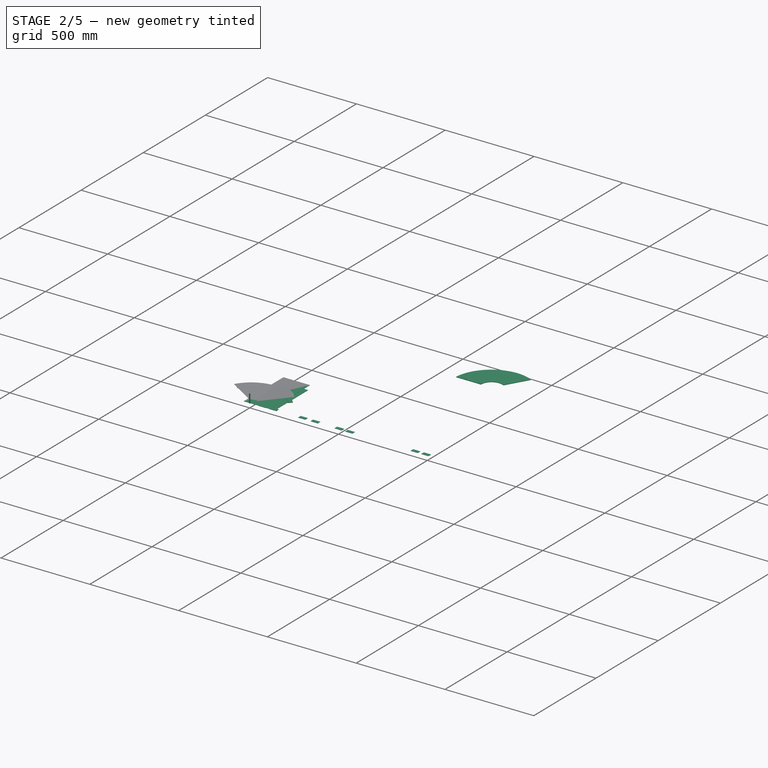
[diagram: stage 2 of 5 — iso view after this stage's code; geometry added in this stage tinted green]
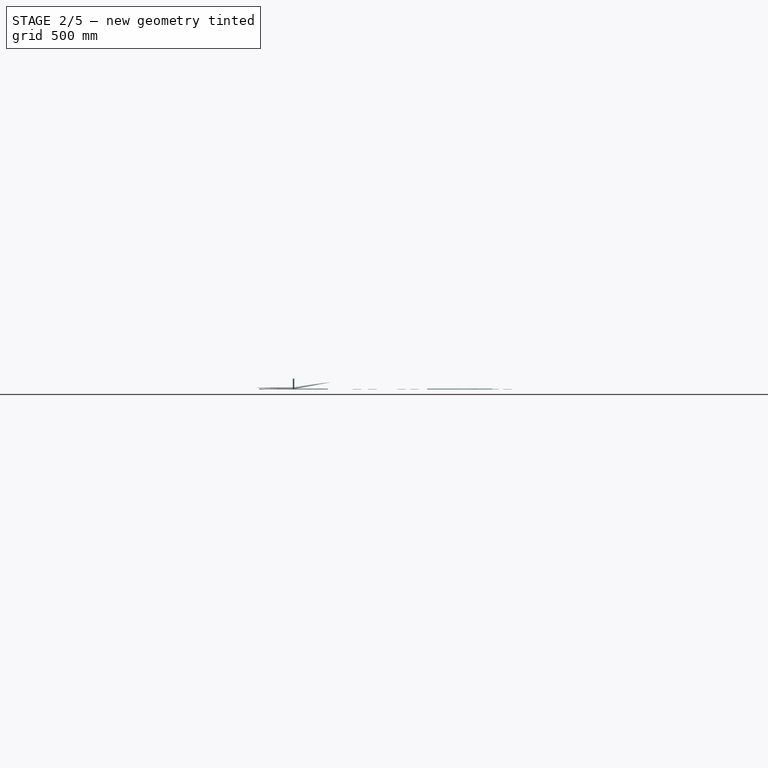
[diagram: stage 2 of 5 — front view after this stage's code; geometry added in this stage tinted green]
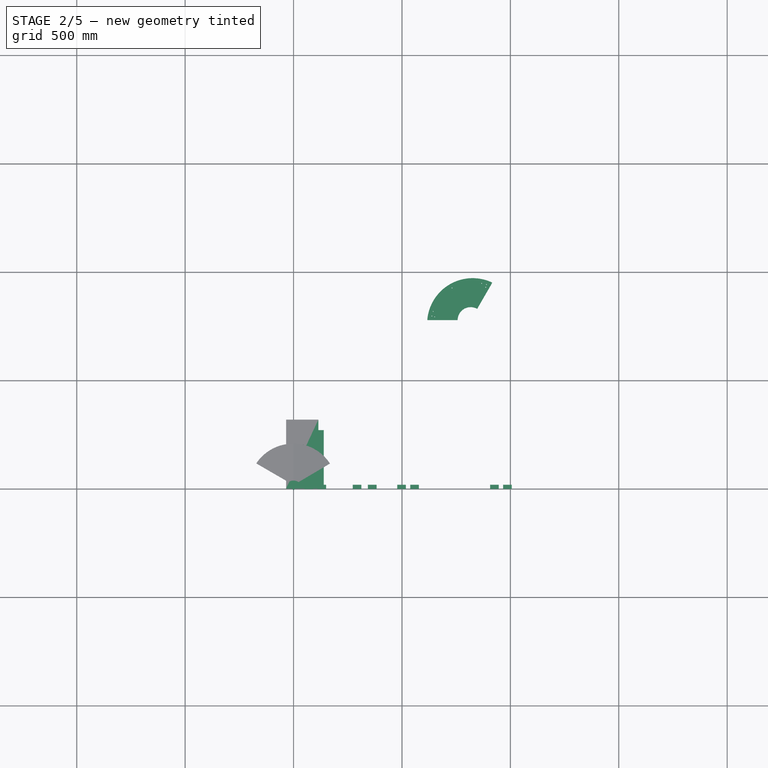
[diagram: stage 2 of 5 — top view after this stage's code; geometry added in this stage tinted green]
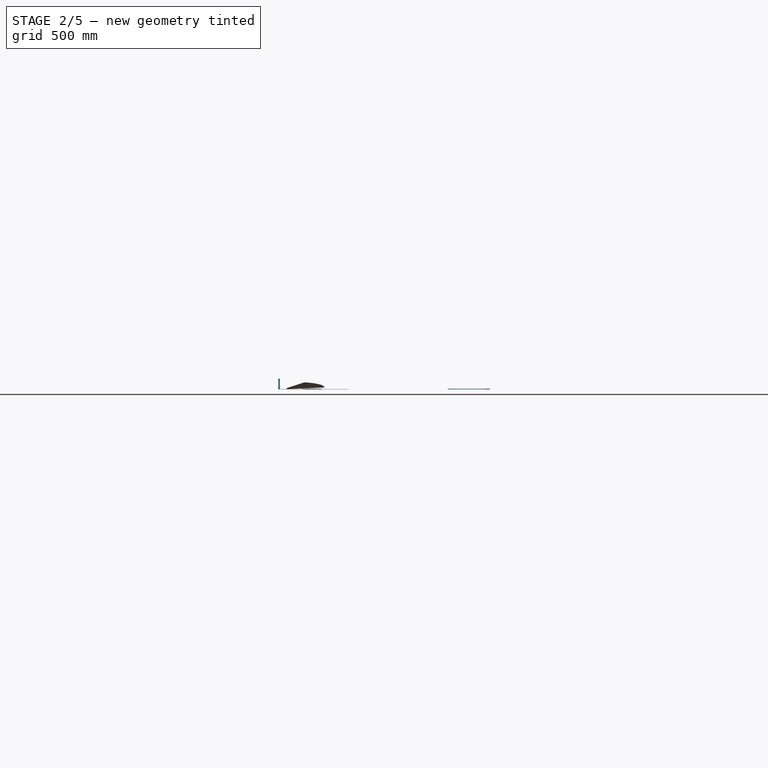
[diagram: stage 2 of 5 — right view after this stage's code; geometry added in this stage tinted green]
FEATURE [Sketcher::SketchObject] Sketch049
  AttachmentOffset = pos=(0,196.563,0) rot=(0,0,1;0rad)
  FullyConstrained = true
  MapMode = 5
  Placement = pos=(0,196.563,0) rot=(0,0,1;0rad)
  Support = -> [XY_Plane016]
  expr: .AttachmentOffset.Base.y = Sketch003.Constraints.total_petal_length - .Constraints.cut_width / 2 - 3.175mm - <<main>>.thickness
  expr: Constraints[10] = <<main>>.inner_width / 2
  expr: Constraints[14] = -<<main>>.inner_width / 2
  sketch-geometry (9):
    g0: ArcOfCircle CenterX=-13 CenterY=8.0875 CenterZ=0 NormalX=0 NormalY=0 NormalZ=1 AngleXU=0 Radius=1.5875 StartAngle=1.5708 EndAngle=4.71239
    g1: LineSegment StartX=-13 StartY=6.5 StartZ=0 EndX=9.825 EndY=6.5 EndZ=0
    g2: LineSegment StartX=9.825 StartY=6.5 StartZ=0 EndX=9.825 EndY=0 EndZ=0
    g3: LineSegment StartX=9.825 StartY=0 StartZ=0 EndX=13 EndY=0 EndZ=0
    g4: LineSegment StartX=13 StartY=0 StartZ=0 EndX=13 EndY=6.5 EndZ=0
    g5: LineSegment StartX=-13 StartY=9.675 StartZ=0 EndX=9.825 EndY=9.675 EndZ=0
    g6: ArcOfCircle CenterX=9.825 CenterY=6.5 CenterZ=0 NormalX=0 NormalY=0 NormalZ=1 AngleXU=0 Radius=3.175 StartAngle=1.117e-13 EndAngle=1.5708
    g7: GeomPoint X=9.825 Y=-6.5 Z=0
    g8: GeomPoint X=9.825 Y=-9.675 Z=0
  constraints (21):
    c: Horizontal(g1)
    c: PointOnObject(g2,g-1)
    c: Vertical(g2)
    c: Coincident(g3,g2)
    c: PointOnObject(g3,g-1)
    c: Coincident(g4,g3)
    c: Vertical(g4)
    c: Horizontal(g5)
    c: Tangent(g6,g4) = -1.5708
    c: Tangent(g6,g5) = 1.5708
    c: DistanceX(g3) = 13
    c: Tangent(g1,g0) = -1.5708
    c: Tangent(g5,g0) = 1.5708
    c: Diameter(g0) = 3.175
    c: DistanceX(g0) = -13
    c: Coincident(g6,g2)
    c: Coincident(g2,g1)
    c: Symmetric(g7,g1,g2)
    c: DistanceY(g7,g1) = 13  'cut_width'
    c: Symmetric(g8,g5,g2)
    c: DistanceY(g8,g5) = 19.35  'total_width'
FEATURE [Sketcher::SketchObject] Sketch050
  AttachmentOffset = pos=(0,196.563,0) rot=(0,0,1;0rad)
  FullyConstrained = true
  MapMode = 5
  Placement = pos=(0,196.563,0) rot=(0,0,1;0rad)
  Support = -> [XY_Plane016]
  expr: .AttachmentOffset.Base.y = Sketch049.AttachmentOffset.Base.y
  expr: .Constraints.cut_width = Sketch049.Constraints[18]
  expr: Constraints[10] = Sketch049.Constraints[10]
  expr: Constraints[13] = Sketch049.Constraints[13]
  expr: Constraints[14] = Sketch049.Constraints[14]
  expr: Constraints[29] = Sketch049.Constraints[10]
  expr: Constraints[32] = Sketch049.Constraints[13]
  expr: Constraints[33] = Sketch049.Constraints[14]
  sketch-geometry (17):
    g0: LineSegment StartX=-13 StartY=-8.0875 StartZ=0 EndX=-13 EndY=8.0875 EndZ=0
    g1: ArcOfCircle CenterX=-13 CenterY=8.0875 CenterZ=0 NormalX=0 NormalY=0 NormalZ=1 AngleXU=0 Radius=1.5875 StartAngle=1.5708 EndAngle=4.71239
    g2: LineSegment StartX=-13 StartY=6.5 StartZ=0 EndX=9.825 EndY=6.5 EndZ=0
    g3: LineSegment StartX=9.825 StartY=6.5 StartZ=0 EndX=9.825 EndY=0 EndZ=0
    g4: LineSegment StartX=9.825 StartY=0 StartZ=0 EndX=13 EndY=0 EndZ=0
    g5: LineSegment StartX=13 StartY=0 StartZ=0 EndX=13 EndY=6.5 EndZ=0
    g6: LineSegment StartX=-13 StartY=9.675 StartZ=0 EndX=9.825 EndY=9.675 EndZ=0
    g7: ArcOfCircle CenterX=9.825 CenterY=6.5 CenterZ=0 NormalX=0 NormalY=0 NormalZ=1 AngleXU=0 Radius=3.175 StartAngle=1.742e-13 EndAngle=1.5708
    g8: GeomPoint X=9.825 Y=-6.5 Z=0
    g9: ArcOfCircle CenterX=-11.5 CenterY=11.5875 CenterZ=0 NormalX=0 NormalY=0 NormalZ=1 AngleXU=0 Radius=1.5875 StartAngle=1.5708 EndAngle=4.71239
    g10: LineSegment StartX=-11.5 StartY=10 StartZ=0 EndX=9.825 EndY=10 EndZ=0
    g11: LineSegment StartX=9.825 StartY=10 StartZ=0 EndX=9.825 EndY=0 EndZ=0
    g12: LineSegment StartX=9.825 StartY=0 StartZ=0 EndX=13 EndY=0 EndZ=0
    g13: LineSegment StartX=13 StartY=0 StartZ=0 EndX=13 EndY=10 EndZ=0
    g14: LineSegment StartX=-11.5 StartY=13.175 StartZ=0 EndX=9.825 EndY=13.175 EndZ=0
    g15: ArcOfCircle CenterX=9.825 CenterY=10 CenterZ=0 NormalX=0 NormalY=0 NormalZ=1 AngleXU=0 Radius=3.175 StartAngle=1e-16 EndAngle=1.5708
    g16: GeomPoint X=9.825 Y=-10 Z=0
  constraints (40):
    c: Horizontal(g2)
    c: PointOnObject(g3,g-1)
    c: Vertical(g3)
    c: Coincident(g4,g3)
    c: PointOnObject(g4,g-1)
    c: Coincident(g5,g4)
    c: Vertical(g5)
    c: Horizontal(g6)
    c: Tangent(g7,g5) = -1.5708
    c: Tangent(g7,g6) = 1.5708
    c: DistanceX(g4) = 13
    c: Tangent(g2,g1) = -1.5708
    c: Tangent(g6,g1) = 1.5708
    c: Diameter(g1) = 3.175
    c: DistanceX(g1) = -13
    c: Coincident(g7,g3)
    c: Coincident(g3,g2)
    c: Symmetric(g8,g2,g3)
    c: DistanceY(g8,g2) = 13  'cut_width'
    c: Horizontal(g10)
    c: PointOnObject(g11,g-1)
    c: Vertical(g11)
    c: Coincident(g12,g11)
    c: PointOnObject(g12,g-1)
    c: Coincident(g13,g12)
    c: Vertical(g13)
    c: Horizontal(g14)
    c: Tangent(g15,g13) = -1.5708
    c: Tangent(g15,g14) = 1.5708
    c: DistanceX(g12) = 13
    c: Tangent(g10,g9) = -1.5708
    c: Tangent(g14,g9) = 1.5708
    c: Diameter(g9) = 3.175
    c: DistanceX(g9) = -11.5
    c: Coincident(g15,g11)
    c: Coincident(g11,g10)
    c: Symmetric(g16,g10,g11)
    c: DistanceY(g16,g10) = 20  'cut_width'
    c: Coincident(g0,g1)
    c: Symmetric(g0,g0,g-1)
FEATURE [PartDesign::CoordinateSystem] Local_CS017
  AttacherType = Attacher::AttachEngine3D
  AttachmentOffset = pos=(0,0,3) rot=(0,0,1;0rad)
  MapMode = 5
  Placement = pos=(0,0,3) rot=(0,0,1;0rad)
  Support = -> [XY_Plane016]
  expr: .AttachmentOffset.Base.z = <<main>>.thickness
FEATURE [App::Link] Body001003005003002
  AssemblyType = Part::Link
  AttachedBy = #Local_CS017
  AttachedTo = Parent Assembly#LCS_Origin
  AttachmentOffset = pos=(0,0,-3) rot=(0,1,0;3.14159rad)
  LinkPlacement = pos=(-4e-16,0,0) rot=(0,1,0;3.14159rad)
  LinkedObject = -> Body001003005003
  Placement = pos=(-4e-16,0,0) rot=(0,1,0;3.14159rad)
  SolverId = Asm4EE
  expr: Placement = LCS_Origin.Placement * AttachmentOffset * Local_CS017.Placement ^ -1
FEATURE [PartDesign::SubShapeBinder] Binder004
  AttacherType = Attacher::AttachEngine3D
  AttachmentOffset = pos=(0,196.563,0) rot=(0,0,1;3.14159rad)
  BindCopyOnChange = 0
  BindMode = 0
  ClaimChildren = false
  Context = -> Model [Body001003005003002.Binder004.]
  Fuse = false
  MakeFace = true
  MapMode = 5
  OffsetFill = false
  OffsetIntersection = false
  OffsetJoinType = 0
  OffsetOpenResult = false
  PartialLoad = false
  Placement = pos=(0,180.388,0) rot=(0,0,1;3.14159rad)
  Relative = false
  _Version = 2
  expr: .AttachmentOffset.Base.y = <<main>>.work_plane_width + Sketch003.Constraints.petal_offset - <<main>>.thickness - 3.175mm - Sketch049.Constraints.cut_width / 2
  expr: .Placement.Base.y = Sketch049.AttachmentOffset.Base.y - Sketch049.Constraints.cut_width - 3.175mm
FEATURE [PartDesign::Plane] DatumPlane017
  Length = 453.129
  MapMode = 3
  Placement = pos=(0,180.388,0) rot=(0,0.707107,0.707107;3.14159rad)
  ResizeMode = 0
  Support = -> [Binder004]
  Width = 79.1207
FEATURE [Sketcher::SketchObject] Sketch051
  AttachmentOffset = pos=(0,180.388,0) rot=(0,0,1;0rad)
  FullyConstrained = true
  MapMode = 5
  Placement = pos=(0,180.388,0) rot=(0,0,1;0rad)
  Support = -> [XY_Plane016]
  expr: .AttachmentOffset.Base.y = Binder004.Placement.Base.y
  expr: .Constraints.cut_width = Sketch049.Constraints[18]
  expr: Constraints[10] = Sketch049.Constraints[10]
  expr: Constraints[13] = Sketch049.Constraints[13]
  expr: Constraints[14] = Sketch049.Constraints[14]
  sketch-geometry (9):
    g0: ArcOfCircle CenterX=-11.5 CenterY=8.0875 CenterZ=0 NormalX=0 NormalY=0 NormalZ=1 AngleXU=0 Radius=1.5875 StartAngle=1.5708 EndAngle=4.71239
    g1: LineSegment StartX=-11.5 StartY=6.5 StartZ=0 EndX=9.825 EndY=6.5 EndZ=0
    g2: LineSegment StartX=9.825 StartY=6.5 StartZ=0 EndX=9.825 EndY=0 EndZ=0
    g3: LineSegment StartX=9.825 StartY=0 StartZ=0 EndX=13 EndY=0 EndZ=0
    g4: LineSegment StartX=13 StartY=0 StartZ=0 EndX=13 EndY=6.5 EndZ=0
    g5: LineSegment StartX=-11.5 StartY=9.675 StartZ=0 EndX=9.825 EndY=9.675 EndZ=0
    g6: ArcOfCircle CenterX=9.825 CenterY=6.5 CenterZ=0 NormalX=0 NormalY=0 NormalZ=1 AngleXU=0 Radius=3.175 StartAngle=0 EndAngle=1.5708
    g7: GeomPoint X=9.825 Y=-6.5 Z=0
    g8: LineSegment StartX=11.5 StartY=8.0875 StartZ=0 EndX=11.5 EndY=-8.0875 EndZ=0
  constraints (22):
    c: Horizontal(g1)
    c: PointOnObject(g2,g-1)
    c: Vertical(g2)
    c: Coincident(g3,g2)
    c: PointOnObject(g3,g-1)
    c: Coincident(g4,g3)
    c: Vertical(g4)
    c: Horizontal(g5)
    c: Tangent(g6,g4) = -1.5708
    c: Tangent(g6,g5) = 1.5708
    c: DistanceX(g3) = 13
    c: Tangent(g1,g0) = -1.5708
    c: Tangent(g5,g0) = 1.5708
    c: Diameter(g0) = 3.175
    c: DistanceX(g0) = -11.5
    c: Coincident(g6,g2)
    c: Coincident(g2,g1)
    c: Symmetric(g7,g1,g2)
    c: DistanceY(g7,g1) = 13  'cut_width'
    c: Vertical(g8)
    c: Symmetric(g0,g8,g-1)
    c: Horizontal(g8,g0)
FEATURE [Sketcher::SketchObject] Sketch052
  FullyConstrained = true
  MapMode = 5
  Support = -> [XY_Plane017]
  expr: .Constraints.r = Sketch003.Constraints.max_r
  expr: Constraints[13] = 15mm + <<main>>.end_face_width / 2
  sketch-geometry (6):
    g0: ArcOfCircle CenterX=0 CenterY=0 CenterZ=0 NormalX=0 NormalY=0 NormalZ=1 AngleXU=0 Radius=199.848 StartAngle=0.699923 EndAngle=1.5708
    g1: ArcOfCircle CenterX=0 CenterY=0 CenterZ=0 NormalX=0 NormalY=0 NormalZ=1 AngleXU=0 Radius=209.848 StartAngle=0.699923 EndAngle=1.5708
    g2: ArcOfCircle CenterX=156.687 CenterY=131.955 CenterZ=0 NormalX=0 NormalY=0 NormalZ=1 AngleXU=0 Radius=5 StartAngle=3.84152 EndAngle=6.98311
    g3: LineSegment StartX=1.22e-14 StartY=199.848 StartZ=0 EndX=1.28e-14 EndY=209.848 EndZ=0
    g4: ArcOfCircle CenterX=0 CenterY=0 CenterZ=0 NormalX=0 NormalY=0 NormalZ=1 AngleXU=0 Radius=204.848 StartAngle=0.675514 EndAngle=1.5708
    g5: LineSegment StartX=0 StartY=0 StartZ=0 EndX=177.404 EndY=102.424 EndZ=0
  constraints (18):
    c: Coincident(g0,g-1)
    c: PointOnObject(g0,g-2)
    c: Coincident(g1,g0)
    c: PointOnObject(g1,g-2)
    c: Coincident(g3,g1)
    c: DistanceY(g1) = 209.848  'r'
    c: DistanceY(g0,g1) = 10  'width'
    c: Tangent(g2,g0) = 1.5708
    c: Tangent(g2,g1) = -1.5708
    c: Coincident(g4,g0)
    c: PointOnObject(g4,g2)
    c: Coincident(g5,g0)
    c: Angle(g-1,g5) = 0.523599
    c: Distance(g4,g5) = 31
    c: Coincident(g3,g0)
    c: PointOnObject(g2,g4)
    c: PointOnObject(g4,g-2)
    c: PointOnObject(g5,g4)
FEATURE [PartDesign::Pad] Pad014
  Direction = (0,0,1)
  Length = 3
  Length2 = 10
  Profile = -> Sketch052
  ReferenceAxis = -> Sketch052 [N_Axis]
  Type = 0
FEATURE [PartDesign::CoordinateSystem] Local_CS018
  AttacherType = Attacher::AttachEngine3D
  MapMode = 5
  Support = -> [XY_Plane017]
FEATURE [PartDesign::CoordinateSystem] Local_CS019
  AttacherType = Attacher::AttachEngine3D
  MapMode = 5
  Support = -> [XY_Plane018]
FEATURE [Sketcher::SketchObject] Sketch055
  FullyConstrained = true
  MapMode = 5
  Support = -> [XY_Plane017]
  expr: .Constraints.r = Sketch052.Constraints[5]
  expr: .Constraints.width = Sketch052.Constraints[6]
  expr: Constraints[12] = Sketch052.Constraints[12]
  expr: Constraints[13] = Sketch052.Constraints[13]
  expr: Constraints[25] = <<main>>.rivet_d
  sketch-geometry (9):
    g0: ArcOfCircle CenterX=0 CenterY=0 CenterZ=0 NormalX=0 NormalY=0 NormalZ=1 AngleXU=0 Radius=199.848 StartAngle=0.699923 EndAngle=1.5708
    g1: ArcOfCircle CenterX=0 CenterY=0 CenterZ=0 NormalX=0 NormalY=0 NormalZ=1 AngleXU=0 Radius=209.848 StartAngle=0.699923 EndAngle=1.5708
    g2: ArcOfCircle CenterX=156.687 CenterY=131.955 CenterZ=0 NormalX=0 NormalY=0 NormalZ=1 AngleXU=0 Radius=5 StartAngle=3.84152 EndAngle=6.98311
    g3: LineSegment StartX=1.22e-14 StartY=199.848 StartZ=0 EndX=1.28e-14 EndY=209.848 EndZ=0
    g4: ArcOfCircle CenterX=0 CenterY=0 CenterZ=0 NormalX=0 NormalY=0 NormalZ=1 AngleXU=0 Radius=204.848 StartAngle=0.675514 EndAngle=1.5708
    g5: LineSegment StartX=0 StartY=0 StartZ=0 EndX=177.404 EndY=102.424 EndZ=0
    g6: LineSegment StartX=1.22e-14 StartY=203.148 StartZ=0 EndX=1.31e-14 EndY=206.548 EndZ=0
    g7: ArcOfCircle CenterX=1.25e-14 CenterY=204.848 CenterZ=0 NormalX=0 NormalY=0 NormalZ=1 AngleXU=0 Radius=1.7 StartAngle=4.71239 EndAngle=7.85398
    g8: Circle CenterX=143.11 CenterY=146.569 CenterZ=0 NormalX=0 NormalY=0 NormalZ=1 AngleXU=0 Radius=1.7
  constraints (27):
    c: Coincident(g0,g-1)
    c: PointOnObject(g0,g-2)
    c: Coincident(g1,g0)
    c: PointOnObject(g1,g-2)
    c: Coincident(g3,g1)
    c: DistanceY(g1) = 209.848  'r'
    c: DistanceY(g0,g1) = 10  'width'
    c: Tangent(g2,g0) = 1.5708
    c: Tangent(g2,g1) = -1.5708
    c: Coincident(g4,g0)
    c: PointOnObject(g4,g2)
    c: Coincident(g5,g0)
    c: Angle(g-1,g5) = 0.523599
    c: Distance(g4,g5) = 31
    c: Coincident(g3,g0)
    c: PointOnObject(g2,g4)
    c: PointOnObject(g4,g-2)
    c: PointOnObject(g5,g4)
    c: PointOnObject(g6,g3)
    c: PointOnObject(g6,g3)
    c: Coincident(g7,g4)
    c: Coincident(g7,g6)
    c: Coincident(g7,g6)
    c: PointOnObject(g8,g4)
    c: Equal(g8,g7)
    c: Diameter(g7) = 3.4
    c: DistanceX(g8) = 143.11
FEATURE [PartDesign::Pocket] Pocket019
  BaseFeature = -> Pad014
  Direction = (0,0,-1)
  Length = 5
  Length2 = 5
  Midplane = true
  Profile = -> Sketch055
  ReferenceAxis = -> Sketch055 [N_Axis]
  Type = 1
FEATURE [PartDesign::Mirrored] Mirrored019
  BaseFeature = -> Pocket019
  MirrorPlane = -> Sketch052 [V_Axis]
  Originals = -> [Pad014,Pocket019]
FEATURE [PartDesign::Body] Body001003005003013  label="plexiglass_holder_top"
  Group = -> [Sketch082,Pad021,Sketch083,Mirrored029,Pocket041,Sketch084,Pocket042]
  Origin = -> Origin026
  Placement = pos=(0,0,0) rot=(0,0,1;1.0472rad)
  Tip = -> Pocket042
FEATURE [PartDesign::SubShapeBinder] Binder020
  BindCopyOnChange = 0
  BindMode = 0
  ClaimChildren = false
  Context = -> Body001003005003014 [Binder020.]
  Fuse = false
  MakeFace = true
  OffsetFill = false
  OffsetIntersection = false
  OffsetJoinType = 0
  OffsetOpenResult = false
  PartialLoad = false
  Relative = false
  Support = -> [Body001003005003003[Pocket019.Sketch055.]]
  _Version = 2
FEATURE [PartDesign::SubShapeBinder] Binder021
  BindCopyOnChange = 0
  BindMode = 0
  ClaimChildren = false
  Context = -> Body001003005003014 [Binder021.]
  Fuse = false
  MakeFace = true
  OffsetFill = false
  OffsetIntersection = false
  OffsetJoinType = 0
  OffsetOpenResult = false
  PartialLoad = false
  Relative = false
  Support = -> [Body001003005003004[Pocket018.Sketch054.]]
  _Version = 2
FEATURE [PartDesign::CoordinateSystem] Local_CS027
  AttacherType = Attacher::AttachEngine3D
  MapMode = 5
  Support = -> [XY_Plane028]
FEATURE [PartDesign::CoordinateSystem] Local_CS028
  AttacherType = Attacher::AttachEngine3D
  AttachmentOffset = pos=(0,0,0) rot=(0,0,1;0.523599rad)
  MapMode = 5
  Placement = pos=(0,0,0) rot=(0,0,1;0.523599rad)
  Support = -> [XY_Plane028]
FEATURE [PartDesign::Plane] DatumPlane023
  Length = 495.835
  MapMode = 5
  Placement = pos=(0,0,0) rot=(0,0,1;0.523599rad)
  ResizeMode = 0
  Support = -> [Local_CS028]
  Width = 455.324
FEATURE [PartDesign::CoordinateSystem] Local_CS029
  AttacherType = Attacher::AttachEngine3D
  AttachmentOffset = pos=(0,18.4752,0) rot=(0,0,1;0.523599rad)
  MapMode = 5
  Placement = pos=(0,18.4752,0) rot=(0,0,1;0.523599rad)
  Support = -> [XY_Plane028]
  expr: .AttachmentOffset.Base.y = Sketch047.Constraints.major_r_offset
FEATURE [PartDesign::Pad] Pad022
  Direction = (0,0,1)
  Length = 3
  Length2 = 10
  Profile = -> Sketch047
  ReferenceAxis = -> Sketch047 [N_Axis]
  Type = 0
FEATURE [PartDesign::Pocket] Pocket045
  BaseFeature = -> Pad022
  Direction = (0,0,-1)
  Length = 5
  Length2 = 5
  Midplane = true
  Profile = -> Binder021
  Type = 1
FEATURE [PartDesign::Body] Body  label="gutter001_material_0.50ansi"
  Group = -> [Sketch,Pad,Mirrored005,Local_CS001,Local_CS002,Local_CS003,Local_CS004,DatumPlane003,DatumPlane004,DatumPlane005,DatumPlane006,Sketch037,Pocket008,MultiTransform002,Mirrored006,Mirrored007,Binder,Pocket009,MultiTransform003,Mirrored008,DatumPlane007,Mirrored009,Sketch010,Sketch038,Sketch039,Pocket010,MultiTransform004,Mirrored010,Mirrored011,Fold,Fold002,Local_CS024,Sketch115,Pocket070]
  Origin = -> Origin
  Tip = -> Pocket070
FEATURE [PartDesign::CoordinateSystem] LCS_0006
  AttacherType = Attacher::AttachEngine3D
  MapMode = 2
  Support = -> [X_Axis037]
FEATURE [Sketcher::SketchObject] Sketch116
  FullyConstrained = true
  MapMode = 5
  Placement = pos=(0,0,0) rot=(0.57735,0.57735,0.57735;2.0944rad)
  Support = -> [YZ_Plane037]
  expr: .Constraints.height = <<main>>.basin_height - <<main>>.thickness
  sketch-geometry (4):
    g0: LineSegment StartX=0 StartY=0 StartZ=0 EndX=25 EndY=0 EndZ=0
    g1: LineSegment StartX=25 StartY=0 StartZ=0 EndX=25 EndY=154 EndZ=0
    g2: LineSegment StartX=25 StartY=154 StartZ=0 EndX=0 EndY=154 EndZ=0
    g3: LineSegment StartX=0 StartY=154 StartZ=0 EndX=0 EndY=0 EndZ=0
  constraints (11):
    c: Coincident(g0,g1)
    c: Coincident(g1,g2)
    c: Coincident(g2,g3)
    c: Coincident(g3,g0)
    c: Horizontal(g0)
    c: Horizontal(g2)
    c: Vertical(g1)
    c: Vertical(g3)
    c: Coincident(g0,g-1)
    c: Distance(g3) = 154  'height'
    c: DistanceX(g0) = 25  'length'
FEATURE [PartDesign::FeaturePython] BaseBend008  # WARN: FeaturePython — macro-defined, semantics opaque (R4)
  BendSide = 1
  BendSketch = -> Sketch116
  MidPlane = true
  Reverse = false
  length = 25
  radius = 0.01
  thickness = 0.3
  expr: radius = <<main>>.bend_r
FEATURE [PartDesign::FeaturePython] Bend015  # WARN: FeaturePython — macro-defined, semantics opaque (R4)
  AutoMiter = true
  BaseFeature = -> BaseBend008
  BendType = 0
  LengthList = [25]
  LengthSpec = 1
  ReliefFactor = 0.7
  UseReliefFactor = false
  angle = 90
  baseObject = -> BaseBend008 [Edge26]
  bendAList = [90]
  extend1 = 0
  extend2 = 0
  gap1 = 3
  gap2 = 3
  invert = false
  kfactor = 0.5
  length = 25
  maxExtendDist = 5
  minGap = 0.1
  minReliefGap = 1
  miterangle1 = 0
  miterangle2 = 0
  offset = 0
  radius = 0.01
  reliefType = 0
  reliefd = 0.1
  reliefw = 0.1
  sketchflip = false
  sketchinvert = false
  unfold = false
  expr: length = Sketch116.Constraints.length
  expr: radius = <<main>>.bend_r
FEATURE [PartDesign::FeaturePython] Bend016  # WARN: FeaturePython — macro-defined, semantics opaque (R4)
  AutoMiter = true
  BaseFeature = -> Bend015
  BendType = 0
  LengthList = [25]
  LengthSpec = 0
  ReliefFactor = 0.7
  UseReliefFactor = false
  angle = 90
  baseObject = -> Bend015 [Edge3]
  bendAList = [90]
  extend1 = 0
  extend2 = 0
  gap1 = 3
  gap2 = 0
  invert = false
  kfactor = 0.5
  length = 25
  maxExtendDist = 5
  minGap = 0.1
  minReliefGap = 1
  miterangle1 = 0
  miterangle2 = 0
  offset = 0
  radius = 0.01
  reliefType = 0
  reliefd = 0.1
  reliefw = 0.1
  sketchflip = false
  sketchinvert = false
  unfold = false
  expr: length = BaseBend008.length
  expr: radius = <<main>>.bend_r
FEATURE [PartDesign::FeaturePython] Bend017  # WARN: FeaturePython — macro-defined, semantics opaque (R4)
  AutoMiter = true
  BaseFeature = -> Bend016
  BendType = 0
  LengthList = [25]
  LengthSpec = 0
  ReliefFactor = 0.7
  UseReliefFactor = false
  angle = 90
  baseObject = -> Bend016 [Edge24]
  bendAList = [90]
  extend1 = 0
  extend2 = 0
  gap1 = 0
  gap2 = 3
  invert = false
  kfactor = 0.5
  length = 25
  maxExtendDist = 5
  minGap = 0.1
  minReliefGap = 1
  miterangle1 = 0
  miterangle2 = 0
  offset = 0
  radius = 0.01
  reliefType = 0
  reliefd = 0.1
  reliefw = 0.1
  sketchflip = false
  sketchinvert = false
  unfold = false
  expr: length = BaseBend008.length
  expr: radius = <<main>>.bend_r
FEATURE [Sketcher::SketchObject] Sketch117
  FullyConstrained = true
  MapMode = 5
  Support = -> [XY_Plane038]
  expr: Constraints[12] = <<main>>.rivet_d
  expr: Constraints[8] = Sketch116.Constraints.length
  sketch-geometry (5):
    g0: Circle CenterX=0 CenterY=6 CenterZ=0 NormalX=0 NormalY=0 NormalZ=1 AngleXU=0 Radius=1.7
    g1: Circle CenterX=0 CenterY=19 CenterZ=0 NormalX=0 NormalY=0 NormalZ=1 AngleXU=0 Radius=1.7
    g2: LineSegment StartX=0 StartY=0 StartZ=0 EndX=0 EndY=6 EndZ=0
    g3: LineSegment StartX=0 StartY=6 StartZ=0 EndX=0 EndY=19 EndZ=0
    g4: LineSegment StartX=0 StartY=19 StartZ=0 EndX=0 EndY=25 EndZ=0
  constraints (13):
    c: PointOnObject(g0,g-2)
    c: PointOnObject(g1,g-2)
    c: Coincident(g2,g-1)
    c: Coincident(g2,g0)
    c: Coincident(g3,g0)
    c: Coincident(g3,g1)
    c: Coincident(g4,g1)
    c: PointOnObject(g4,g-2)
    c: DistanceY(g4) = 25
    c: Equal(g2,g4)
    c: Distance(g2) = 6
    c: Equal(g0,g1)
    c: Diameter(g0) = 3.4
FEATURE [PartDesign::Pocket] Pocket071
  BaseFeature = -> Bend017
  Direction = (0,0,-1)
  Length = 5
  Length2 = 5
  Midplane = true
  Profile = -> Sketch117
  ReferenceAxis = -> Sketch117 [N_Axis]
  Type = 1
FEATURE [Sketcher::SketchObject] Sketch120
  AttachmentOffset = pos=(0,-70,0) rot=(0,0,1;0rad)
  FullyConstrained = true
  MapMode = 5
  Placement = pos=(0,-70,0) rot=(0,0,1;0rad)
  Support = -> [XY_Plane016]
  sketch-geometry (1):
    g0: Circle CenterX=0 CenterY=0 CenterZ=0 NormalX=0 NormalY=0 NormalZ=1 AngleXU=0 Radius=4.25
  constraints (2):
    c: Coincident(g0,g-1)
    c: Diameter(g0) = 8.5
FEATURE [Sketcher::SketchObject] Sketch121
  FullyConstrained = true
  MapMode = 5
  Support = -> [XY_Plane018]
  expr: Constraints[14] = <<main>>.end_face_width / 2 + 2mm
  expr: Constraints[7] = Sketch052.Constraints.r - 12mm
  sketch-geometry (7):
    g0: ArcOfCircle CenterX=0 CenterY=0 CenterZ=0 NormalX=0 NormalY=0 NormalZ=1 AngleXU=0 Radius=196.875 StartAngle=0.771863 EndAngle=1.5708
    g1: LineSegment StartX=141.083 StartY=137.315 StartZ=0 EndX=149.802 EndY=128.357 EndZ=0
    g2: LineSegment StartX=149.802 StartY=128.357 StartZ=0 EndX=158.52 EndY=119.4 EndZ=0
    g3: LineSegment StartX=158.52 StartY=119.4 StartZ=0 EndX=140.605 EndY=101.963 EndZ=0
    g4: LineSegment StartX=0 StartY=0 StartZ=0 EndX=175.892 EndY=101.551 EndZ=0
    g5: LineSegment StartX=140.605 StartY=101.963 StartZ=0 EndX=123.168 EndY=119.878 EndZ=0
    g6: LineSegment StartX=123.168 StartY=119.878 StartZ=0 EndX=141.083 EndY=137.315 EndZ=0
  constraints (21):
    c: Coincident(g0,g-1)
    c: PointOnObject(g0,g-2)
    c: Coincident(g2,g1)
    c: Parallel(g1,g2)
    c: Equal(g2,g1)
    c: Distance(g2,g0) = 25
    c: Tangent(g1,g0) = 1.5708
    c: DistanceY(g0) = 196.875
    c: Coincident(g3,g2)
    c: Distance(g3) = 25
    c: Coincident(g4,g0)
    c: PointOnObject(g4,g2)
    c: Perpendicular(g2,g3)
    c: Angle(g-1,g4) = 0.523599
    c: Distance(g3,g4) = 18
    c: Distance(g2,g4) = 24.143
    c: Coincident(g5,g3)
    c: Perpendicular(g5,g3)
    c: Coincident(g6,g5)
    c: Coincident(g6,g0)
    c: Perpendicular(g5,g6)
FEATURE [Sketcher::SketchObject] Sketch053
  ExternalGeometry = -> [Sketch121]
  FullyConstrained = true
  MapMode = 5
  Support = -> [XY_Plane018]
  expr: Constraints[2] = Sketch052.Constraints.r - Sketch052.Constraints.width - 2mm
  sketch-geometry (7):
    g0: LineSegment StartX=1.12e-14 StartY=182.848 StartZ=0 EndX=1.21e-14 EndY=197.848 EndZ=0
    g1: ArcOfCircle CenterX=0 CenterY=0 CenterZ=0 NormalX=0 NormalY=0 NormalZ=1 AngleXU=0 Radius=182.848 StartAngle=0.777302 EndAngle=1.5708
    g2: ArcOfCircle CenterX=0 CenterY=0 CenterZ=0 NormalX=0 NormalY=0 NormalZ=1 AngleXU=0 Radius=197.848 StartAngle=0.776943 EndAngle=1.5708
    g3: LineSegment StartX=131.746 StartY=128.227 StartZ=0 EndX=141.062 EndY=137.294 EndZ=0
    g4: ArcOfCircle CenterX=140.365 CenterY=138.011 CenterZ=0 NormalX=0 NormalY=0 NormalZ=1 AngleXU=0 Radius=1 StartAngle=5.48425 EndAngle=7.06013
    g5: ArcOfCircle CenterX=131.049 CenterY=128.944 CenterZ=0 NormalX=0 NormalY=0 NormalZ=1 AngleXU=0 Radius=1 StartAngle=3.91889 EndAngle=5.48425
    g6: GeomPoint X=131.032 Y=127.532 Z=0
  constraints (18):
    c: PointOnObject(g0,g-2)
    c: PointOnObject(g0,g-2)
    c: DistanceY(g0) = 197.848
    c: Tangent(g3,g4) = -1.5708
    c: Tangent(g2,g4) = -1.5708
    c: Tangent(g3,g5) = -1.5708
    c: Tangent(g1,g5) = 1.5708
    c: Equal(g5,g4)
    c: Diameter(g5) = 2
    c: Perpendicular(g-3,g3)
    c: PointOnObject(g-3,g3)
    c: Coincident(g2,g0)
    c: Coincident(g1,g0)
    c: PointOnObject(g6,g3)
    c: PointOnObject(g6,g1)
    c: Coincident(g1,g2)
    c: DistanceY(g0,g0) = 15
    c: Coincident(g1,g-1)
FEATURE [PartDesign::Pad] Pad015
  Direction = (0,0,1)
  Length = 3
  Length2 = 10
  Profile = -> Sketch053
  ReferenceAxis = -> Sketch053 [N_Axis]
  Type = 0
FEATURE [PartDesign::Mirrored] Mirrored020
  BaseFeature = -> Pad015
  MirrorPlane = -> Sketch053 [V_Axis]
  Originals = -> [Pad015]
  Refine = true
FEATURE [Sketcher::SketchObject] Sketch054
  ExternalGeometry = -> [Sketch053]
  FullyConstrained = true
  MapMode = 5
  Support = -> [XY_Plane018]
  expr: Constraints[1] = <<main>>.rivet_d
  sketch-geometry (6):
    g0: ArcOfCircle CenterX=0 CenterY=0 CenterZ=0 NormalX=0 NormalY=0 NormalZ=1 AngleXU=0 Radius=190.346 StartAngle=0.771863 EndAngle=1.5708
    g1: Circle CenterX=129.244 CenterY=139.741 CenterZ=0 NormalX=0 NormalY=0 NormalZ=1 AngleXU=0 Radius=1.7
    g2: Circle CenterX=1.17e-14 CenterY=190.346 CenterZ=0 NormalX=0 NormalY=0 NormalZ=1 AngleXU=0 Radius=1.7
    g3: Circle CenterX=-129.244 CenterY=139.741 CenterZ=0 NormalX=0 NormalY=0 NormalZ=1 AngleXU=0 Radius=1.7
    g4: LineSegment StartX=131.746 StartY=128.227 StartZ=0 EndX=136.404 EndY=132.761 EndZ=0
    g5: LineSegment StartX=136.404 StartY=132.761 StartZ=0 EndX=141.062 EndY=137.294 EndZ=0
  constraints (15):
    c: PointOnObject(g1,g0)
    c: Diameter(g1) = 3.4
    c: Coincident(g2,g0)
    c: Equal(g2,g1)
    c: Equal(g3,g1)
    c: Symmetric(g1,g3,g-2)
    c: Coincident(g5,g4)
    c: Equal(g4,g5)
    c: Parallel(g4,g5)
    c: Coincident(g0,g4)
    c: Coincident(g0,g-1)
    c: Distance(g1,g0) = 10
    c: PointOnObject(g2,g-2)
    c: Coincident(g4,g-3)
    c: Coincident(g5,g-3)
FEATURE [PartDesign::Pocket] Pocket018
  BaseFeature = -> Mirrored020
  Direction = (0,0,-1)
  Length = 5
  Length2 = 5
  Midplane = true
  Profile = -> Sketch054
  ReferenceAxis = -> Sketch054 [N_Axis]
  Type = 1
FEATURE [PartDesign::Body] Body001003005003004  label="plexiglass_holder_tech_top"
  Group = -> [Sketch053,Pad015,Mirrored020,Pocket018,Local_CS019,Sketch054,Sketch121]
  Origin = -> Origin017
  Placement = pos=(0,0,0) rot=(0,0,1;1.0472rad)
  Tip = -> Pocket018
FEATURE [PartDesign::SubShapeBinder] Binder037
  BindCopyOnChange = 0
  BindMode = 0
  ClaimChildren = false
  Context = -> Body001003005003014 [Binder037.]
  Fuse = false
  MakeFace = true
  OffsetFill = false
  OffsetIntersection = false
  OffsetJoinType = 0
  OffsetOpenResult = false
  PartialLoad = false
  Relative = false
  Support = -> [Body001003005003004[Sketch121.Edge2]]
  _Version = 2
FEATURE [PartDesign::CoordinateSystem] Local_CS040
  AttacherType = Attacher::AttachEngine3D
  AttachmentOffset = pos=(0,0,0) rot=(-0.57735,-0.57735,-0.57735;2.0944rad)
  MapMode = 7
  Placement = pos=(149.802,128.357,0) rot=(0,0,1;2.34266rad)
  Support = -> [Binder037]
FEATURE [PartDesign::SubShapeBinder] Binder038
  BindCopyOnChange = 0
  BindMode = 0
  ClaimChildren = false
  Context = -> Body001003005003014 [Binder038.]
  Fuse = false
  MakeFace = true
  OffsetFill = false
  OffsetIntersection = false
  OffsetJoinType = 0
  OffsetOpenResult = false
  PartialLoad = false
  Placement = pos=(149.802,128.357,0) rot=(0,0,1;2.34266rad)
  Relative = true
  Support = -> [tech_pillar[Pocket071.Sketch117.]]
  _Version = 2
  expr: Placement = Local_CS040.Placement
FEATURE [PartDesign::Pocket] Pocket059
  BaseFeature = -> Pocket045
  Direction = (-4e-16,0,-1)
  Length = 5
  Length2 = 5
  Midplane = true
  Profile = -> Binder038
  Type = 1
FEATURE [PartDesign::CoordinateSystem] LCS_0007
  AttacherType = Attacher::AttachEngine3D
  MapMode = 2
  Support = -> [X_Axis038]
FEATURE [Sketcher::SketchObject] Sketch122
  FullyConstrained = true
  MapMode = 5
  Placement = pos=(0,0,0) rot=(0.57735,0.57735,0.57735;2.0944rad)
  Support = -> [YZ_Plane038]
  expr: .Constraints.height = <<main>>.basin_height - <<main>>.thickness * 2
  sketch-geometry (4):
    g0: LineSegment StartX=0 StartY=0 StartZ=0 EndX=15 EndY=0 EndZ=0
    g1: LineSegment StartX=15 StartY=0 StartZ=0 EndX=15 EndY=151 EndZ=0
    g2: LineSegment StartX=15 StartY=151 StartZ=0 EndX=0 EndY=151 EndZ=0
    g3: LineSegment StartX=0 StartY=151 StartZ=0 EndX=0 EndY=0 EndZ=0
  constraints (11):
    c: Coincident(g0,g1)
    c: Coincident(g1,g2)
    c: Coincident(g2,g3)
    c: Coincident(g3,g0)
    c: Horizontal(g0)
    c: Horizontal(g2)
    c: Vertical(g1)
    c: Vertical(g3)
    c: Coincident(g0,g-1)
    c: DistanceY(g2) = 151  'height'
    c: DistanceX(g0,g0) = 15  'length'
FEATURE [PartDesign::FeaturePython] BaseBend009  # WARN: FeaturePython — macro-defined, semantics opaque (R4)
  BendSide = 1
  BendSketch = -> Sketch122
  MidPlane = true
  Reverse = false
  length = 10
  radius = 0.1
  thickness = 0.3
FEATURE [Sketcher::SketchObject] Sketch123
  FullyConstrained = true
  MapMode = 5
  Support = -> [XY_Plane039]
  expr: Constraints[1] = <<main>>.rivet_d
  expr: Constraints[7] = Sketch122.Constraints.length
  sketch-geometry (3):
    g0: Circle CenterX=0 CenterY=7.5 CenterZ=0 NormalX=0 NormalY=0 NormalZ=1 AngleXU=0 Radius=1.7
    g1: LineSegment StartX=0 StartY=0 StartZ=0 EndX=0 EndY=7.5 EndZ=0
    g2: LineSegment StartX=0 StartY=7.5 StartZ=0 EndX=0 EndY=15 EndZ=0
  constraints (8):
    c: PointOnObject(g0,g-2)
    c: Diameter(g0) = 3.4
    c: Coincident(g1,g-1)
    c: Coincident(g1,g0)
    c: Coincident(g2,g0)
    c: PointOnObject(g2,g-2)
    c: Equal(g2,g1)
    c: DistanceY(g2) = 15
FEATURE [PartDesign::Pocket] Pocket076
  BaseFeature = -> BaseBend009
  Direction = (0,0,-1)
  Length = 5
  Length2 = 5
  Midplane = true
  Profile = -> Sketch123
  ReferenceAxis = -> Sketch123 [N_Axis]
  Type = 1
FEATURE [Sketcher::SketchObject] Sketch124
  FullyConstrained = true
  MapMode = 5
  Placement = pos=(0,0,0) rot=(1,0,0;1.5708rad)
  Support = -> [XZ_Plane038]
  expr: Constraints[1] = Sketch122.Constraints.height
  expr: Constraints[3] = <<main>>.rivet_d
  sketch-geometry (2):
    g0: Circle CenterX=0 CenterY=75.5 CenterZ=0 NormalX=0 NormalY=0 NormalZ=1 AngleXU=0 Radius=1.7
    g1: GeomPoint X=0 Y=151 Z=0
  constraints (4):
    c: PointOnObject(g0,g-2)
    c: DistanceY(g1) = 151
    c: Symmetric(g1,g-1,g0)
    c: Diameter(g0) = 3.4
FEATURE [PartDesign::Pocket] Pocket077
  BaseFeature = -> Pocket076
  Direction = (0,1,2e-16)
  Length = 5
  Length2 = 5
  Midplane = true
  Profile = -> Sketch124
  ReferenceAxis = -> Sketch124 [N_Axis]
  Type = 1
FEATURE [PartDesign::Body] tech_mid  label="tech_mid_material_0.50ansi"
  Group = -> [LCS_0007,Sketch122,BaseBend009,Sketch123,Pocket076,Sketch124,Pocket077]
  Origin = -> Origin038
  Tip = -> Pocket077
FEATURE [PartDesign::SubShapeBinder] Binder039
  BindCopyOnChange = 0
  BindMode = 0
  ClaimChildren = false
  Context = -> Body_6 [Binder039.]
  Fuse = false
  MakeFace = true
  OffsetFill = false
  OffsetIntersection = false
  OffsetJoinType = 0
  OffsetOpenResult = false
  PartialLoad = false
  Relative = true
  Support = -> [Body001003005003014[Binder038.]]
  _Version = 2
FEATURE [Sketcher::SketchObject] Sketch101
  ExternalGeometry = -> [Binder039]
  FullyConstrained = false
  MapMode = 5
  Support = -> [XY_Plane035]
  expr: .Constraints.r = Sketch052.Constraints.r - Sketch052.Constraints.width - 2mm
  sketch-geometry (12):
    g0: LineSegment StartX=0 StartY=174.647 StartZ=0 EndX=0 EndY=197.848 EndZ=0
    g1: LineSegment StartX=0 StartY=0 StartZ=0 EndX=170.499 EndY=98.4377 EndZ=0
    g2: ArcOfCircle CenterX=0 CenterY=0 CenterZ=0 NormalX=0 NormalY=0 NormalZ=1 AngleXU=0 Radius=174.647 StartAngle=0.634796 EndAngle=1.5708
    g3: ArcOfCircle CenterX=0 CenterY=0 CenterZ=0 NormalX=0 NormalY=0 NormalZ=1 AngleXU=0 Radius=197.848 StartAngle=0.771863 EndAngle=1.5708
    g4: LineSegment StartX=141.781 StartY=137.994 StartZ=0 EndX=150.499 EndY=129.036 EndZ=0
    g5: LineSegment StartX=150.499 StartY=129.036 StartZ=0 EndX=159.217 EndY=120.078 EndZ=0
    g6: LineSegment StartX=136.186 StartY=115.105 StartZ=0 EndX=150.499 EndY=129.036 EndZ=0
    g7: LineSegment StartX=150.499 StartY=129.036 StartZ=0 EndX=158.52 EndY=120.795 EndZ=0
    g8: ArcOfCircle CenterX=157.803 CenterY=120.097 CenterZ=0 NormalX=0 NormalY=0 NormalZ=1 AngleXU=0 Radius=1 StartAngle=5.48425 EndAngle=7.05505
    g9: LineSegment StartX=158.501 StartY=119.381 StartZ=0 EndX=142.127 EndY=103.444 EndZ=0
    g10: ArcOfCircle CenterX=141.43 CenterY=104.161 CenterZ=0 NormalX=0 NormalY=0 NormalZ=1 AngleXU=0 Radius=1 StartAngle=3.77639 EndAngle=5.48425
    g11: GeomPoint X=141.302 Y=102.642 Z=0
  constraints (32):
    c: PointOnObject(g0,g-2)
    c: PointOnObject(g0,g-2)
    c: Coincident(g2,g0)
    c: Coincident(g3,g0)
    c: Angle(g-1,g1) = 0.523599
    c: DistanceY(g0) = 197.848  'r'
    c: Coincident(g2,g-1)
    c: Coincident(g2,g1)
    c: Coincident(g5,g4)
    c: Parallel(g4,g5)
    c: Equal(g4,g5)
    c: Tangent(g4,g3) = 1.5708
    c: Coincident(g6,g-3)
    c: Coincident(g6,g4)
    c: Perpendicular(g6,g4)
    c: Distance(g5,g3) = 25
    c: Coincident(g3,g2)
    c: Coincident(g7,g4)
    c: PointOnObject(g7,g5)
    c: PointOnObject(g5,g9)
    c: Tangent(g9,g8) = 1.5708
    c: Perpendicular(g5,g9)
    c: Tangent(g10,g9) = 1.5708
    c: Tangent(g10,g2) = 1.5708
    c: Equal(g10,g8)
    c: Diameter(g10) = 2
    c: Tangent(g8,g7) = 1.5708
    c: PointOnObject(g11,g9)
    c: PointOnObject(g11,g2)
    c: Distance(g11,g5) = 25
    c: DistanceY(g0,g0) = 23.2014
    c: Distance(g6) = 19.973
FEATURE [PartDesign::Pad] Pad026
  Direction = (0,0,1)
  Length = 3
  Length2 = 10
  Profile = -> Sketch101
  ReferenceAxis = -> Sketch101 [N_Axis]
  Type = 0
FEATURE [PartDesign::Pocket] Pocket058
  BaseFeature = -> Pad026
  Direction = (-4e-16,0,-1)
  Length = 5
  Length2 = 5
  Midplane = true
  Profile = -> Binder039
  Type = 1
FEATURE [PartDesign::Mirrored] Mirrored037
  BaseFeature = -> Pocket058
  MirrorPlane = -> Sketch101 [V_Axis]
  Originals = -> [Pad026,Pocket058]
  Refine = true
FEATURE [PartDesign::SubShapeBinder] Binder040
  BindCopyOnChange = 0
  BindMode = 0
  ClaimChildren = false
  Context = -> Body_6 [Binder040.]
  Fuse = false
  MakeFace = true
  OffsetFill = false
  OffsetIntersection = false
  OffsetJoinType = 0
  OffsetOpenResult = false
  PartialLoad = false
  Placement = pos=(0,197.848,0) rot=(0,0,1;3.14159rad)
  Relative = true
  Support = -> [tech_mid[Pocket076.Sketch123.]]
  _Version = 2
  expr: .Placement.Base.y = Sketch101.Constraints.r
FEATURE [PartDesign::Pocket] Pocket078
  BaseFeature = -> Mirrored037
  Direction = (0,0,-1)
  Length = 5
  Length2 = 5
  Midplane = true
  Profile = -> Binder040
  Type = 1
FEATURE [PartDesign::Body] Body_6  label="plexiglass_holder_bottom_tech"
  Group = -> [LCS_0004,Sketch101,Pad026,Pocket058,Mirrored037,Binder039,Binder040,Pocket078]
  Origin = -> Origin034
  Tip = -> Pocket078
FEATURE [Sketcher::SketchObject] Sketch125
  AttachmentOffset = pos=(0,25,0) rot=(0,0,1;0rad)
  FullyConstrained = true
  MapMode = 5
  Placement = pos=(0,-5.6e-15,25) rot=(1,0,0;1.5708rad)
  Support = -> [XZ_Plane001]
  sketch-geometry (1):
    g0: Circle CenterX=0 CenterY=0 CenterZ=0 NormalX=0 NormalY=0 NormalZ=1 AngleXU=0 Radius=7
  constraints (2):
    c: Coincident(g0,g-1)
    c: Diameter(g0) = 14
FEATURE [Sketcher::SketchObject] Sketch126
  FullyConstrained = true
  MapMode = 5
  Support = -> [XY_Plane038]
  sketch-geometry (3):
    g0: LineSegment StartX=12.5 StartY=25 StartZ=0 EndX=12.5 EndY=17.5 EndZ=0
    g1: LineSegment StartX=12.5 StartY=25 StartZ=0 EndX=5 EndY=25 EndZ=0
    g2: ArcOfCircle CenterX=5 CenterY=17.5 CenterZ=0 NormalX=0 NormalY=0 NormalZ=1 AngleXU=0 Radius=7.5 StartAngle=0 EndAngle=1.5708
  constraints (8):
    c: Vertical(g0)
    c: DistanceX(g0) = 12.5
    c: DistanceY(g0) = 25
    c: Coincident(g1,g0)
    c: Horizontal(g1)
    c: Tangent(g2,g0) = 1.5708
    c: Tangent(g2,g1) = -1.5708
    c: Diameter(g2) = 15
FEATURE [PartDesign::Pocket] Pocket080
  BaseFeature = -> Pocket071
  Direction = (0,0,-1)
  Length = 5
  Length2 = 5
  Midplane = true
  Profile = -> Sketch126
  ReferenceAxis = -> Sketch126 [N_Axis]
  Type = 1
FEATURE [PartDesign::Body] Body001003005  label="basin_cover"
  Group = -> [Sketch047,Pad012,Pocket086,Pocket089,Mirrored014,Local_CS013,Local_CS016,DatumPlane015,DatumPlane016,Local_CS026,Binder041,Binder042,Pocket084,Pocket085,Binder043,Local_CS043,Local_CS044,Binder046]
  Origin = -> Origin014
  Placement = pos=(0,0,0) rot=(0,0,1;1.0472rad)
  Tip = -> Pocket085
FEATURE [PartDesign::PolarPattern] PolarPattern019
  Angle = 360
  Axis = -> Z_Axis001
  Occurrences = 3
FEATURE [Part::FeaturePython] Circular_Body001003005003015001  # Draft array (typed FeaturePython)
  ArrayType = Circular Array
  Axis = -> Z_Axis012
  AxisXYZ = 0
  Count = 3
  ElementPlacement = pos=(0,0,0) rot=(0,0,1;2.0944rad)
  Index = 1
  IntervalAngle = 120
  PlacementList = 3 placements: [(-16.5,192.7,61.7),(-158.633,-110.639,61.7),(175.133,-82.0606,61.7)]
  ScaleList = (3) [(1,1,1),(1,1,1),(1,1,1)]
  ShowElement = false
  SourceObject = -> Body001003005003015001
  expr: .ElementPlacement.Rotation.Angle = IntervalAngle * Index
  expr: IntervalAngle = 360 / Count
FEATURE [Sketcher::SketchObject] Sketch131
  FullyConstrained = true
  MapMode = 5
  Support = -> [XY_Plane042]
  sketch-geometry (5):
    g0: LineSegment StartX=-20 StartY=20 StartZ=0 EndX=-20 EndY=0 EndZ=0
    g1: LineSegment StartX=-20 StartY=0 StartZ=0 EndX=20 EndY=0 EndZ=0
    g2: LineSegment StartX=20 StartY=0 StartZ=0 EndX=20 EndY=20 EndZ=0
    g3: LineSegment StartX=20 StartY=20 StartZ=0 EndX=-20 EndY=20 EndZ=0
    g4: GeomPoint X=0 Y=10 Z=0
  constraints (13):
    c: Coincident(g0,g1)
    c: Coincident(g1,g2)
    c: Coincident(g2,g3)
    c: Coincident(g3,g0)
    c: Horizontal(g1)
    c: Horizontal(g3)
    c: Vertical(g0)
    c: Vertical(g2)
    c: Symmetric(g1,g0,g4)
    c: PointOnObject(g4,g-2)
    c: PointOnObject(g1,g-1)
    c: DistanceX(g1,g1) = 40
    c: DistanceY(g2) = 20
FEATURE [PartDesign::Pad] Pad029
  Direction = (0,0,1)
  Length = 1.5
  Length2 = 10
  Profile = -> Sketch131
  ReferenceAxis = -> Sketch131 [N_Axis]
  Type = 0
FEATURE [PartDesign::Body] Body001003005003015005
  Group = -> [Sketch131,Pad029]
  Origin = -> Origin041
  Tip = -> Pad029
FEATURE [Part::FeaturePython] Array004  # Draft array (typed FeaturePython)
  AlwaysSyncPlacement = false
  Angle = 360
  ArrayType = 0
  Axis = (0,0,1)
  Base = -> Body001003005003015005
  Center = (0,0,0)
  Count = 2
  ExpandArray = false
  Fuse = false
  IntervalAxis = (0,0,0)
  IntervalX = (70,0,0)
  IntervalY = (0,100,0)
  IntervalZ = (0,0,100)
  NumberCircles = 3
  NumberPolar = 5
  NumberX = 2
  NumberY = 1
  NumberZ = 1
  Placement = pos=(293,0,0) rot=(0,0,1;0rad)
  PlacementList = 2 placements: [(0,0,0),(70,0,0)]
  RadialDistance = 50
  ScaleList = (2) [(1,1,1),(1,1,1)]
  Symmetry = 1
  TangentialDistance = 25
FEATURE [Part::FeaturePython] Array005  # Draft array (typed FeaturePython)
  AlwaysSyncPlacement = false
  Angle = 360
  ArrayType = 0
  Axis = (0,0,1)
  Base = -> Body001003005003015005
  Center = (0,0,0)
  Count = 2
  ExpandArray = false
  Fuse = false
  IntervalAxis = (0,0,0)
  IntervalX = (60,0,0)
  IntervalY = (0,100,0)
  IntervalZ = (0,0,100)
  NumberCircles = 3
  NumberPolar = 5
  NumberX = 2
  NumberY = 1
  NumberZ = 1
  Placement = pos=(70,0,0) rot=(0,0,1;0rad)
  PlacementList = 2 placements: [(0,0,0),(60,0,0)]
  RadialDistance = 50
  ScaleList = (2) [(1,1,1),(1,1,1)]
  Symmetry = 1
  TangentialDistance = 25
FEATURE [Part::FeaturePython] Array007  # Draft array (typed FeaturePython)
  AlwaysSyncPlacement = false
  Angle = 360
  ArrayType = 0
  Axis = (0,0,1)
  Base = -> Array005
  Center = (0,0,0)
  Count = 3
  ExpandArray = false
  Fuse = false
  IntervalAxis = (0,0,0)
  IntervalX = (428.17,0,0)
  IntervalY = (0,100,0)
  IntervalZ = (0,0,100)
  NumberCircles = 3
  NumberPolar = 5
  NumberX = 3
  NumberY = 1
  NumberZ = 1
  PlacementList = 3 placements: arithmetic series from (70,0,0) step (428.17,0,0) to (926.34,0,0)
  RadialDistance = 50
  ScaleList = (3) [(1,1,1),(1,1,1),(1,1,1)]
  Symmetry = 1
  TangentialDistance = 25
FEATURE [PartDesign::Body] Body001003005003  label="basement"
  Group = -> [Sketch048,Pad013,Sketch049,Binder004,DatumPlane017,Sketch050,Local_CS017,Sketch051,Binder005,DatumPlane018,Sketch057,Sketch058,Pocket027,Local_CS021,Local_CS022,DatumPlane019,DatumPlane020,Sketch061,Sketch062,Sketch063,Sketch064,Sketch075,Pocket036,Binder018,Binder023,Binder036,Pocket074,MultiTransform,Mirrored,PolarPattern015,Sketch120,Pocket087,PolarPattern018,Sketch132,Pad030]
  Origin = -> Origin015
  Tip = -> Pad030
FEATURE [Sketcher::SketchObject] Sketch133
  FullyConstrained = true
  MapMode = 5
  Placement = pos=(0,0,0) rot=(1,0,0;1.5708rad)
  Support = -> [XZ_Plane037]
  expr: Constraints[2] = Sketch116.Constraints.height
  expr: Constraints[7] = <<main>>.rivet_d
  sketch-geometry (4):
    g0: Circle CenterX=0 CenterY=41 CenterZ=0 NormalX=0 NormalY=0 NormalZ=1 AngleXU=0 Radius=1.7
    g1: Circle CenterX=0 CenterY=113 CenterZ=0 NormalX=0 NormalY=0 NormalZ=1 AngleXU=0 Radius=1.7
    g2: GeomPoint X=0 Y=77 Z=0
    g3: GeomPoint X=0 Y=154 Z=0
  constraints (8):
    c: PointOnObject(g0,g-2)
    c: PointOnObject(g1,g-2)
    c: DistanceY(g3) = 154
    c: Symmetric(g3,g-1,g2)
    c: Symmetric(g0,g1,g2)
    c: DistanceY(g0,g1) = 72
    c: Equal(g0,g1)
    c: Diameter(g0) = 3.4
FEATURE [PartDesign::Pocket] Pocket090
  BaseFeature = -> Pocket080
  Direction = (0,1,2e-16)
  Length = 5
  Length2 = 5
  Midplane = true
  Profile = -> Sketch133
  ReferenceAxis = -> Sketch133 [N_Axis]
  Type = 1
FEATURE [PartDesign::Body] tech_pillar  label="tech_pillar_material_0.50ansi"
  Group = -> [LCS_0006,Sketch116,BaseBend008,Bend015,Bend016,Bend017,Sketch117,Pocket071,Sketch118,Sketch126,Pocket080,Sketch127,Sketch133,Pocket090]
  Origin = -> Origin037
  Tip = -> Pocket090
FEATURE [PartDesign::SubShapeBinder] Binder047
  BindCopyOnChange = 0
  BindMode = 0
  ClaimChildren = false
  Context = -> Body001003005003014 [Binder047.]
  Fuse = false
  MakeFace = true
  OffsetFill = false
  OffsetIntersection = false
  OffsetJoinType = 0
  OffsetOpenResult = false
  PartialLoad = false
  Placement = pos=(101.78,73.7738,1.5) rot=(0,0,1;0.523599rad)
  Relative = false
  Support = -> [Body001[Sketch073.]]
  _Version = 2
  expr: Placement = Local_CS045.Placement
FEATURE [PartDesign::CoordinateSystem] Local_CS045
  AttacherType = Attacher::AttachEngine3D
  AttachmentOffset = pos=(115.793,-3,1.5) rot=(0,0,1;0rad)
  MapMode = 5
  Placement = pos=(101.78,73.7738,1.5) rot=(0,0,1;0.523599rad)
  Support = -> [Local_CS029]
  expr: .AttachmentOffset.Base.x = Local_CS041.Placement.Base.y
FEATURE [PartDesign::Hole] Hole001
  BaseFeature = -> Pocket059
  CustomThreadClearance = 0
  Depth = 25
  DepthType = 0
  Diameter = 6.5
  DrillForDepth = false
  DrillPoint = 1
  DrillPointAngle = 118
  HoleCutCountersinkAngle = 90
  HoleCutCustomValues = false
  HoleCutDepth = 0
  HoleCutDiameter = 6.1
  HoleCutType = 0
  ModelThread = false
  Profile = -> Binder047
  Reversed = true
  Tapered = false
  TaperedAngle = 90
  ThreadClass = 0
  ThreadDepth = 25
  ThreadDepthType = 0
  ThreadDirection = 0
  ThreadFit = 0
  ThreadSize = 0
  ThreadType = 0
  Threaded = false
  UseCustomThreadClearance = false
FEATURE [PartDesign::Mirrored] Mirrored031
  BaseFeature = -> Hole001
  MirrorPlane = -> Sketch047 [V_Axis]
  Originals = -> [Pad022,Pocket045,Pocket059,Hole001]
  Refine = true
FEATURE [Part::FeaturePython] Clone014  label="Model-basin_cover_back"  # Draft clone (typed FeaturePython)
  AttacherType = Attacher::AttachEngine3D
  Fuse = false
  Objects = -> [Body001003005003014]
  PathResource = Model
  Placement = pos=(826,763,0) rot=(0,0,1;0.523599rad)
  Scale = (1,1,1)
FEATURE [Part::FeaturePython] ToolBit  label="3.175mm Endmill"  # Path/CAM toolbit (typed FeaturePython)
  BitPropertyNames = Chipload | CuttingEdgeHeight | Diameter | Flutes | Length | Material | ShankDiameter | SpindleDirection
  BitShape = <path>
  Chipload = 0
  CuttingEdgeHeight = 30
  Diameter = 3.17
  Flutes = 0
  Length = 10
  Material = 0
  ShankDiameter = 3
  ShapeName = endmill
  SpindleDirection = 0
FEATURE [App::DocumentObjectGroup] Model001
  Group = -> [Clone,Clone001,Clone002,Clone004,Clone005,Clone006,Clone007,Clone008,Clone009,Clone010,Clone011,Clone012,Clone013,Clone014,Clone016,Clone017,Clone018,Clone019,Clone020,Clone021,Clone022,Clone049]
FEATURE [Path::FeaturePython] MillFace  # Path/CAM operation (typed FeaturePython)
  Active = true
  AreaParams:
    Tolerance = 1e-07
    FitArcs = True
    Simplify = False
    CleanDistance = 0.0
    Accuracy = 0.01
    Unit = 1.0
    MinArcPoints = 4
    MaxArcPoints = 100
    ClipperScale = 10000000.0
    Fill = 0
    Coplanar = 0
    Reorient = True
    Outline = False
    Explode = False
    OpenMode = 0
    Deflection = 0.01
    SubjectFill = 0
    ClipFill = 0
    Offset = 0.0
    ExtraPass = 0
    Stepover = 0.0
    LastStepover = 0.0
    JoinType = 0
    EndType = 0
    MiterLimit = 2.0
    RoundPrecision = 0.0
    PocketMode = 2
    ToolRadius = 1.585
    PocketExtraOffset = 0.0
    PocketStepover = 1.585
    PocketLastStepover = 0.0
    FromCenter = True
    Angle = 45.0
    AngleShift = 0.0
    Shift = 0.0
    Thicken = False
    SectionCount = -1
    Stepdown = 1.0
    SectionOffset = 0.0
    SectionTolerance = 1e-07
    SectionMode = 2
    Project = False
  Base = -> [Clone049]
  BoundaryShape = 1
  ClearEdges = false
  ClearanceHeight = 8
  CoolantMode = 0
  CutMode = 0
  CycleTime = 00:03:39
  ExcludeRaisedAreas = false
  ExtraOffset = 0
  FinalDepth = 1.5
  FinishDepth = 0
  KeepToolDown = false
  MinTravel = true
  OffsetPattern = 1
  OpFinalDepth = 1.5
  OpStartDepth = 3
  OpStockZMax = 3
  OpStockZMin = 0
  OpToolDiameter = 3.17
  PathParams = {'orientation': 1, 'sort_mode': 3, 'threshold': 3.17, 'feedrate': 33.333333333333336, 'feedrate_v': 8.333333333333334, 'verbose': True, 'resume_height': 6.0, 'retraction': 8.0, 'return_end': True, 'preamble': False, 'start': Vector (0.0, 0.0, 0.0)}
  PocketLastStepOver = 0
  SafeHeight = 6
  SplitArcs = false
  StartAt = 0
  StartDepth = 3
  StartPoint = (0,0,0)
  StepDown = 4
  StepOver = 50
  ToolController = -> __175mm_Endmill
  UseStartPoint = true
  ZigZagAngle = 45
  expr: ClearanceHeight = OpStockZMax + SetupSheet.ClearanceHeightOffset
  expr: FinalDepth = 1.5
  expr: SafeHeight = OpStockZMax + SetupSheet.SafeHeightOffset
  expr: StartDepth = 3mm
  expr: StepDown = 4mm
FEATURE [Path::FeaturePython] Pocket_Shape  # Path/CAM operation (typed FeaturePython)
  Active = true
  AreaParams:
    Tolerance = 1e-07
    FitArcs = True
    Simplify = False
    CleanDistance = 0.0
    Accuracy = 0.01
    Unit = 1.0
    MinArcPoints = 4
    MaxArcPoints = 100
    ClipperScale = 10000000.0
    Fill = 0
    Coplanar = 0
    Reorient = True
    Outline = False
    Explode = False
    OpenMode = 0
    Deflection = 0.01
    SubjectFill = 0
    ClipFill = 0
    Offset = 0.0
    ExtraPass = 0
    Stepover = 0.0
    LastStepover = 0.0
    JoinType = 0
    EndType = 0
    MiterLimit = 2.0
    RoundPrecision = 0.0
    PocketMode = 2
    ToolRadius = 1.585
    PocketExtraOffset = 0.0
    PocketStepover = 3.17
    PocketLastStepover = 0.0
    FromCenter = True
    Angle = 45.0
    AngleShift = 0.0
    Shift = 0.0
    Thicken = False
    SectionCount = -1
    Stepdown = 1.0
    SectionOffset = 0.0
    SectionTolerance = 1e-07
    SectionMode = 2
    Project = False
  Base = -> [Clone014]
  ClearanceHeight = 8
  CoolantMode = 0
  CutMode = 0
  CycleTime = 00:00:46
  ExtensionCorners = true
  ExtensionLengthDefault = 1.585
  ExtraOffset = 0
  FinalDepth = 2
  FinishDepth = 0
  KeepToolDown = false
  MinTravel = true
  OffsetPattern = 1
  OpFinalDepth = 1.5
  OpStartDepth = 3
  OpStockZMax = 3
  OpStockZMin = 0
  OpToolDiameter = 3.17
  PathParams = {'orientation': 1, 'sort_mode': 3, 'threshold': 3.17, 'feedrate': 33.333333333333336, 'feedrate_v': 8.333333333333334, 'verbose': True, 'resume_height': 6.0, 'retraction': 8.0, 'return_end': True, 'preamble': False, 'start': Vector (846.6381325149291, 853.8174396719498, 8.0)}
  PocketLastStepOver = 0
  SafeHeight = 6
  SplitArcs = false
  StartAt = 0
  StartDepth = 3
  StartPoint = (0,0,0)
  StepDown = 4
  StepOver = 100
  ToolController = -> __175mm_Endmill
  UseOutline = false
  UseStartPoint = true
  ZigZagAngle = 45
  expr: ClearanceHeight = OpStockZMax + SetupSheet.ClearanceHeightOffset
  expr: ExtensionLengthDefault = OpToolDiameter / 2
  expr: FinalDepth = 2
  expr: SafeHeight = OpStockZMax + SetupSheet.SafeHeightOffset
  expr: StartDepth = 3mm
  expr: StepDown = 4mm
FEATURE [App::DocumentObjectGroup] Operations
  Group = -> [Profile,MillFace,Pocket_Shape]
FEATURE [Path::FeaturePython] Job  # Path/CAM operation (typed FeaturePython)
  CycleTime = 00:22:38
  Fixtures = G54
  GeometryTolerance = 0.01
  JobType = 0
  LastPostProcessDate = 2023-02-01 09:58:23.222482
  LastPostProcessOutput = <userpath>/2411-26D9/Job.tap
  Model = -> Model001
  Operations = -> Operations
  OrderOutputBy = 0
  PostProcessor = 1
  PostProcessorOutputFile = %d.%j.tap
  SetupSheet = -> SetupSheet
  SplitOutput = false
  Stock = -> Stock
  Tools = -> Tools
FEATURE [Part::Feature] Unfold015
  shape: bbox 66.98 x 147 x 0.3 mm, 60 faces (baked)
FEATURE [Sketcher::SketchObject] Unfold_Sketch_bends016
  FullyConstrained = false
  sketch-geometry (2):
    g0: LineSegment StartX=8.61566 StartY=3 StartZ=0 EndX=8.61566 EndY=150 EndZ=0
    g1: LineSegment StartX=-8.61566 StartY=150 StartZ=0 EndX=-8.61566 EndY=3 EndZ=0
FEATURE [App::FeaturePython] SetupSheet003  # Path/CAM operation (typed FeaturePython)
  ClearanceHeightExpression = OpStockZMax+SetupSheet003.ClearanceHeightOffset
  ClearanceHeightOffset = 5
  CoolantMode = 0
  CoolantModes = None | Flood | Mist
  FinalDepthExpression = -0.1 mm
  HorizRapid = 0
  ProfileDirection = 1
  ProfileSide = 0
  ProfileUseComp = true
  ProfileprocessCircles = true
  ProfileprocessHoles = true
  ProfileprocessPerimeter = true
  SafeHeightExpression = OpStockZMax+SetupSheet003.SafeHeightOffset
  SafeHeightOffset = 3
  StartDepthExpression = 3 mm
  StepDownExpression = 4 mm
  VertRapid = 0
FEATURE [Part::FeaturePython] Clone050  label="Model-Unfold015"  # Draft clone (typed FeaturePython)
  AttacherType = Attacher::AttachEngine3D
  Fuse = false
  Objects = -> [Unfold015]
  PathResource = Model
  Placement = pos=(-3,159,0) rot=(0,0,-1;1.5708rad)
  Scale = (1,1,1)
FEATURE [Part::FeaturePython] ToolBit003  label="3.175mm Endmill005"  # Path/CAM toolbit (typed FeaturePython)
  BitPropertyNames = Chipload | CuttingEdgeHeight | Diameter | Flutes | Length | Material | ShankDiameter | SpindleDirection
  BitShape = <path>
  Chipload = 0
  CuttingEdgeHeight = 30
  Diameter = 3.17
  Flutes = 0
  Length = 10
  Material = 0
  ShankDiameter = 3
  ShapeName = endmill
  SpindleDirection = 0
FEATURE [Path::FeaturePython] __175mm_Endmill002  label="3.175mm Endmill004"  # Path/CAM operation (typed FeaturePython)
  HorizFeed = 33.3333
  HorizRapid = 0
  SpindleDir = 0
  SpindleSpeed = 18000
  Tool = -> ToolBit003
  ToolNumber = 1
  VertFeed = 8.33333
  VertRapid = 0
  expr: HorizRapid = SetupSheet003.HorizRapid
  expr: VertRapid = SetupSheet003.VertRapid
FEATURE [App::DocumentObjectGroup] Tools003
  Group = -> [__175mm_Endmill002]
FEATURE [App::FeaturePython] SetupSheet004  # Path/CAM operation (typed FeaturePython)
  ClearanceHeightExpression = OpStockZMax+SetupSheet004.ClearanceHeightOffset
  ClearanceHeightOffset = 5
  CoolantMode = 0
  CoolantModes = None | Flood | Mist
  DeburrExtraDepth = 0
  DeburrWidth = 2.7
  FinalDepthExpression = 0.6 mm
  HorizRapid = 0
  ProfileDirection = 1
  ProfileprocessCircles = true
  ProfileprocessHoles = true
  ProfileprocessPerimeter = true
  SafeHeightExpression = OpStockZMax+SetupSheet004.SafeHeightOffset
  SafeHeightOffset = 3
  StartDepthExpression = 3 mm
  StepDownExpression = OpToolDiameter
  VertRapid = 0
FEATURE [Part::Part2DObjectPython] Clone2D010  label="Model-Unfold_Sketch_bends016"  # Draft 2D object (typed FeaturePython)
  Fuse = false
  Objects = -> [Unfold_Sketch_bends016]
  PathResource = Model
  Placement = pos=(-3,159,0) rot=(0,0,-1;1.5708rad)
  Scale = (1,1,1)
  expr: Placement = <<Model-Unfold015>>.Placement
FEATURE [Part::FeaturePython] ToolBit004  label="NZV6109018"  # Path/CAM toolbit (typed FeaturePython)
  BitPropertyNames = Chipload | CuttingEdgeAngle | CuttingEdgeHeight | Diameter | Flutes | Length | Material | ShankDiameter | TipDiameter
  BitShape = <path>
  Chipload = 0
  CuttingEdgeAngle = 90
  CuttingEdgeHeight = 4
  Diameter = 10
  Flutes = 0
  Length = 50
  Material = 0
  ShankDiameter = 6
  ShapeName = chamfer
  TipDiameter = 1
FEATURE [Path::FeaturePython] NZV6109016  label="NZV6109017"  # Path/CAM operation (typed FeaturePython)
  HorizFeed = 51.6667
  HorizRapid = 0
  SpindleDir = 0
  SpindleSpeed = 18000
  Tool = -> ToolBit004
  ToolNumber = 2
  VertFeed = 16.6667
  VertRapid = 0
  expr: HorizRapid = SetupSheet004.HorizRapid
  expr: VertRapid = SetupSheet004.VertRapid
FEATURE [App::DocumentObjectGroup] Tools004
  Group = -> [NZV6109016]
FEATURE [Path::FeaturePython] Profile003  # Path/CAM operation (typed FeaturePython)
  Active = true
  AreaParams:
    Tolerance = 1e-07
    FitArcs = True
    Simplify = False
    CleanDistance = 0.0
    Accuracy = 0.01
    Unit = 1.0
    MinArcPoints = 4
    MaxArcPoints = 100
    ClipperScale = 10000000.0
    Fill = 0
    Coplanar = 0
    Reorient = True
    Outline = False
    Explode = False
    OpenMode = 0
    Deflection = 0.01
    SubjectFill = 0
    ClipFill = 0
    Offset = 1.585
    ExtraPass = 0
    Stepover = 0.0
    LastStepover = 0.0
    JoinType = 0
    EndType = 0
    MiterLimit = 2.0
    RoundPrecision = 0.0
    PocketMode = 0
    ToolRadius = 1.0
    PocketExtraOffset = 0.0
    PocketStepover = 0.0
    PocketLastStepover = 0.0
    FromCenter = False
    Angle = 45.0
    AngleShift = 0.0
    Shift = 0.0
    Thicken = False
    SectionCount = -1
    Stepdown = 1.0
    SectionOffset = 0.0
    SectionTolerance = 1e-07
    SectionMode = 2
    Project = False
  ClearanceHeight = 6.3
  CoolantMode = 0
  CycleTime = 00:01:16
  Direction = 1
  FinalDepth = -0.1
  HandleMultipleFeatures = 0
  JoinType = 0
  MiterLimit = 0.1
  OffsetExtra = 0
  OpFinalDepth = -7.1e-15
  OpStartDepth = 1.3
  OpStockZMax = 1.3
  OpStockZMin = -7.1e-15
  OpToolDiameter = 3.17
  PathParams = {'orientation': 0, 'feedrate': 33.333333333333336, 'feedrate_v': 8.333333333333334, 'verbose': True, 'resume_height': 4.300000000000017, 'retraction': 6.300000000000017, 'return_end': True, 'preamble': False, 'start': Vector (105.19136020688296, 191.69990215656196, 6.300000000000017)}
  SafeHeight = 4.3
  Side = 0
  SplitArcs = false
  StartDepth = 3
  StartPoint = (0,0,0)
  StepDown = 4
  ToolController = -> __175mm_Endmill002
  UseComp = true
  UseStartPoint = false
  processCircles = true
  processHoles = true
  processPerimeter = true
  expr: ClearanceHeight = OpStockZMax + SetupSheet003.ClearanceHeightOffset
  expr: FinalDepth = -0.1mm
  expr: SafeHeight = OpStockZMax + SetupSheet003.SafeHeightOffset
  expr: StartDepth = 3mm
  expr: StepDown = 4mm
FEATURE [Path::FeaturePython] Engrave002  # Path/CAM operation (typed FeaturePython)
  Active = true
  ClearanceHeight = 6
  CoolantMode = 0
  CycleTime = 00:00:53
  FinalDepth = 0.6
  OpFinalDepth = -10
  OpStartDepth = 0
  OpStockZMax = 1
  OpStockZMin = 0
  OpToolDiameter = 10
  SafeHeight = 4
  StartDepth = 3
  StartVertex = 0
  StepDown = 10
  ToolController = -> NZV6109016
  expr: ClearanceHeight = OpStockZMax + SetupSheet004.ClearanceHeightOffset
  expr: FinalDepth = 0.6mm
  expr: SafeHeight = OpStockZMax + SetupSheet004.SafeHeightOffset
  expr: StartDepth = 3mm
  expr: StepDown = OpToolDiameter
FEATURE [App::DocumentObjectGroup] Operations004
  Group = -> [Engrave002]
FEATURE [Part::FeaturePython] Clone051  label="Model-Unfold016"  # Draft clone (typed FeaturePython)
  AttacherType = Attacher::AttachEngine3D
  Fuse = false
  Objects = -> [Unfold015]
  PathResource = Model
  Placement = pos=(150,97,0) rot=(0,0,1;1.5708rad)
  Scale = (1,1,1)
FEATURE [Part::FeaturePython] Clone052  label="Model-Unfold017"  # Draft clone (typed FeaturePython)
  AttacherType = Attacher::AttachEngine3D
  Fuse = false
  Objects = -> [Unfold015]
  PathResource = Model
  Placement = pos=(150,222,0) rot=(0,0,1;1.5708rad)
  Scale = (1,1,1)
FEATURE [Part::FeaturePython] Clone053  label="Model-Unfold018"  # Draft clone (typed FeaturePython)
  AttacherType = Attacher::AttachEngine3D
  Fuse = false
  Objects = -> [Unfold015]
  PathResource = Model
  Placement = pos=(-3,284,0) rot=(0,0,-1;1.5708rad)
  Scale = (1,1,1)
FEATURE [Part::FeaturePython] Clone054  label="Model-Unfold019"  # Draft clone (typed FeaturePython)
  AttacherType = Attacher::AttachEngine3D
  Fuse = false
  Objects = -> [Unfold015]
  PathResource = Model
  Placement = pos=(-3,33.4821,0) rot=(0,0,-1;1.5708rad)
  Scale = (1,1,1)
FEATURE [App::DocumentObjectGroup] Model004
  Group = -> [Clone050,Clone051,Clone052,Clone053,Clone054]
FEATURE [Part::FeaturePython] Stock003  # WARN: FeaturePython — macro-defined, semantics opaque (R4)
  Base = -> Model004
  ExtXneg = 1
  ExtXpos = 1
  ExtYneg = 1
  ExtYpos = 0
  ExtZneg = 0
  ExtZpos = 1
  Placement = pos=(-33.4821,3,-7.1e-15) rot=(0,0,1;0rad)
  StockType = FromBase
FEATURE [Path::FeaturePython] Profile002  # Path/CAM operation (typed FeaturePython)
  Active = true
  AreaParams:
    Tolerance = 1e-07
    FitArcs = True
    Simplify = False
    CleanDistance = 0.0
    Accuracy = 0.01
    Unit = 1.0
    MinArcPoints = 4
    MaxArcPoints = 100
    ClipperScale = 10000000.0
    Fill = 0
    Coplanar = 0
    Reorient = True
    Outline = False
    Explode = False
    OpenMode = 0
    Deflection = 0.01
    SubjectFill = 0
    ClipFill = 0
    Offset = -1.585
    ExtraPass = 0
    Stepover = 0.0
    LastStepover = 0.0
    JoinType = 0
    EndType = 0
    MiterLimit = 2.0
    RoundPrecision = 0.0
    PocketMode = 0
    ToolRadius = 1.0
    PocketExtraOffset = 0.0
    PocketStepover = 0.0
    PocketLastStepover = 0.0
    FromCenter = False
    Angle = 45.0
    AngleShift = 0.0
    Shift = 0.0
    Thicken = False
    SectionCount = -1
    Stepdown = 1.0
    SectionOffset = 0.0
    SectionTolerance = 1e-07
    SectionMode = 2
    Project = False
  Base = -> [Clone054,Clone051,Clone050,Clone052,Clone053]
  ClearanceHeight = 6.3
  CoolantMode = 0
  CycleTime = 00:01:09
  Direction = 1
  FinalDepth = -0.1
  HandleMultipleFeatures = 0
  JoinType = 0
  MiterLimit = 0.1
  OffsetExtra = 0
  OpFinalDepth = -7.1e-15
  OpStartDepth = 1.3
  OpStockZMax = 1.3
  OpStockZMin = -7.1e-15
  OpToolDiameter = 3.17
  PathParams = {'orientation': 1, 'feedrate': 33.333333333333336, 'feedrate_v': 8.333333333333334, 'verbose': True, 'resume_height': 4.300000000000017, 'retraction': 6.300000000000017, 'return_end': True, 'preamble': False, 'start': Vector (141.91281824339632, 33.54281853869163, 6.300000000000017)}
  SafeHeight = 4.3
  Side = 0
  SplitArcs = false
  StartDepth = 3
  StartPoint = (0,0,0)
  StepDown = 4
  ToolController = -> __175mm_Endmill002
  UseComp = true
  UseStartPoint = false
  processCircles = true
  processHoles = true
  processPerimeter = false
  expr: ClearanceHeight = OpStockZMax + SetupSheet003.ClearanceHeightOffset
  expr: FinalDepth = -0.1mm
  expr: SafeHeight = OpStockZMax + SetupSheet003.SafeHeightOffset
  expr: StartDepth = 3mm
  expr: StepDown = 4mm
FEATURE [App::DocumentObjectGroup] Operations003
  Group = -> [Profile002,Profile003]
FEATURE [Path::FeaturePython] Job003  # Path/CAM operation (typed FeaturePython)
  CycleTime = 00:02:25
  Fixtures = G54
  GeometryTolerance = 0.01
  JobType = 0
  LastPostProcessDate = 2023-02-01 13:39:08.442867
  LastPostProcessOutput = <userpath>/2411-26D9/Job003-0.tap \n<userpath>/2411-26D9/Job003-1.tap
  Model = -> Model004
  Operations = -> Operations003
  OrderOutputBy = 2
  PostProcessor = 1
  PostProcessorOutputFile = %d.%j.tap
  SetupSheet = -> SetupSheet003
  SplitOutput = true
  Stock = -> Stock003
  Tools = -> Tools003
FEATURE [Part::Part2DObjectPython] Clone2D011  label="Model-Unfold_Sketch_bends017"  # Draft 2D object (typed FeaturePython)
  Fuse = false
  Objects = -> [Unfold_Sketch_bends016]
  PathResource = Model
  Placement = pos=(150,97,0) rot=(0,0,1;1.5708rad)
  Scale = (1,1,1)
  expr: Placement = <<Model-Unfold016>>.Placement
FEATURE [Part::Part2DObjectPython] Clone2D012  label="Model-Unfold_Sketch_bends018"  # Draft 2D object (typed FeaturePython)
  Fuse = false
  Objects = -> [Unfold_Sketch_bends016]
  PathResource = Model
  Placement = pos=(150,222,0) rot=(0,0,1;1.5708rad)
  Scale = (1,1,1)
  expr: Placement = <<Model-Unfold017>>.Placement
FEATURE [Part::Part2DObjectPython] Clone2D013  label="Model-Unfold_Sketch_bends019"  # Draft 2D object (typed FeaturePython)
  Fuse = false
  Objects = -> [Unfold_Sketch_bends016]
  PathResource = Model
  Placement = pos=(-3,284,0) rot=(0,0,-1;1.5708rad)
  Scale = (1,1,1)
  expr: Placement = <<Model-Unfold018>>.Placement
FEATURE [Part::Part2DObjectPython] Clone2D014  label="Model-Unfold_Sketch_bends020"  # Draft 2D object (typed FeaturePython)
  Fuse = false
  Objects = -> [Unfold_Sketch_bends016]
  PathResource = Model
  Placement = pos=(-3,33.4821,0) rot=(0,0,-1;1.5708rad)
  Scale = (1,1,1)
  expr: Placement = <<Model-Unfold019>>.Placement
FEATURE [App::DocumentObjectGroup] Model005
  Group = -> [Clone2D010,Clone2D011,Clone2D012,Clone2D013,Clone2D014]
FEATURE [Part::FeaturePython] Stock004  # WARN: FeaturePython — macro-defined, semantics opaque (R4)
  Base = -> Model005
  ExtXneg = 1
  ExtXpos = 1
  ExtYneg = 1
  ExtYpos = 1
  ExtZneg = 0
  ExtZpos = 1
  Placement = pos=(-8.61566,3,0) rot=(0,0,1;0rad)
  StockType = FromBase
FEATURE [PartDesign::MultiTransform] MultiTransform012
  BaseFeature = -> Pocket049
  Originals = -> [Pocket049]
  Transformations = -> [PolarPattern012,Mirrored033]
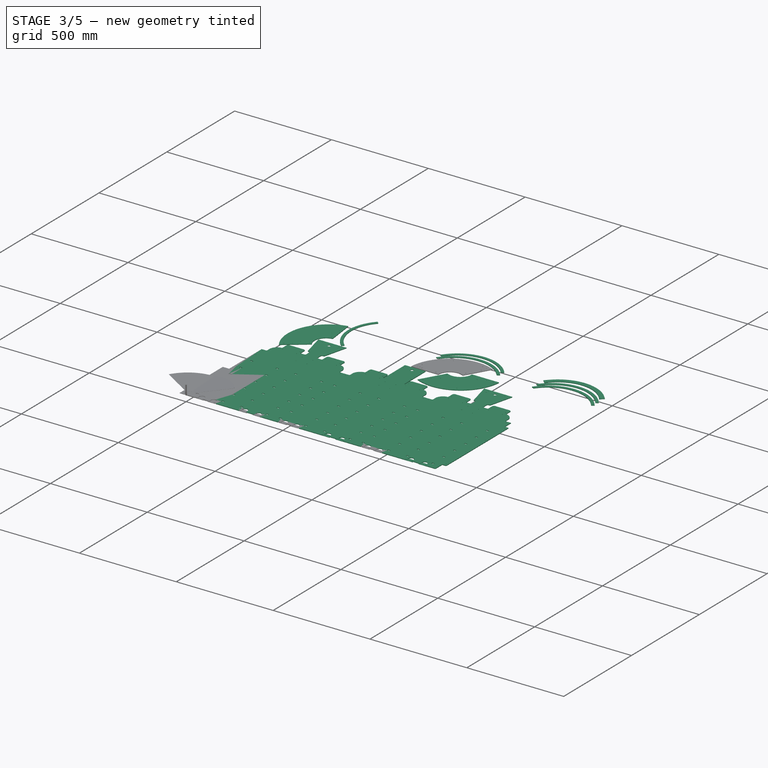
[diagram: stage 3 of 5 — iso view after this stage's code; geometry added in this stage tinted green]
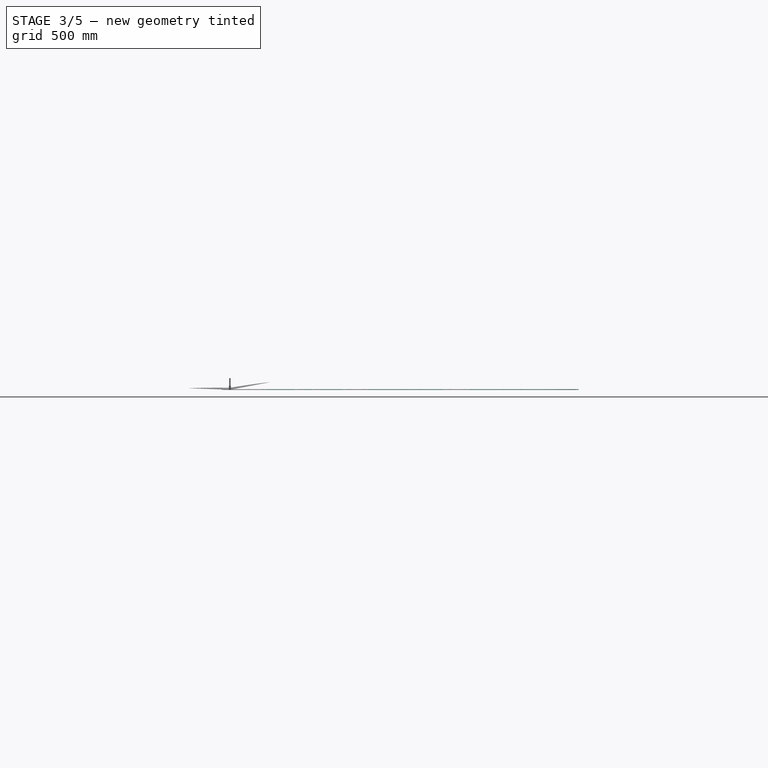
[diagram: stage 3 of 5 — front view after this stage's code; geometry added in this stage tinted green]
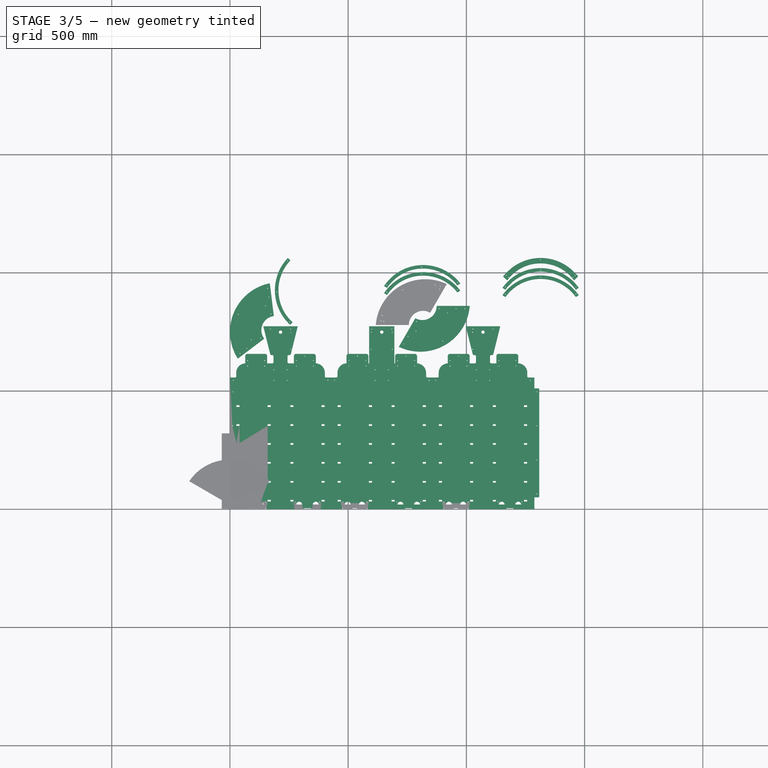
[diagram: stage 3 of 5 — top view after this stage's code; geometry added in this stage tinted green]
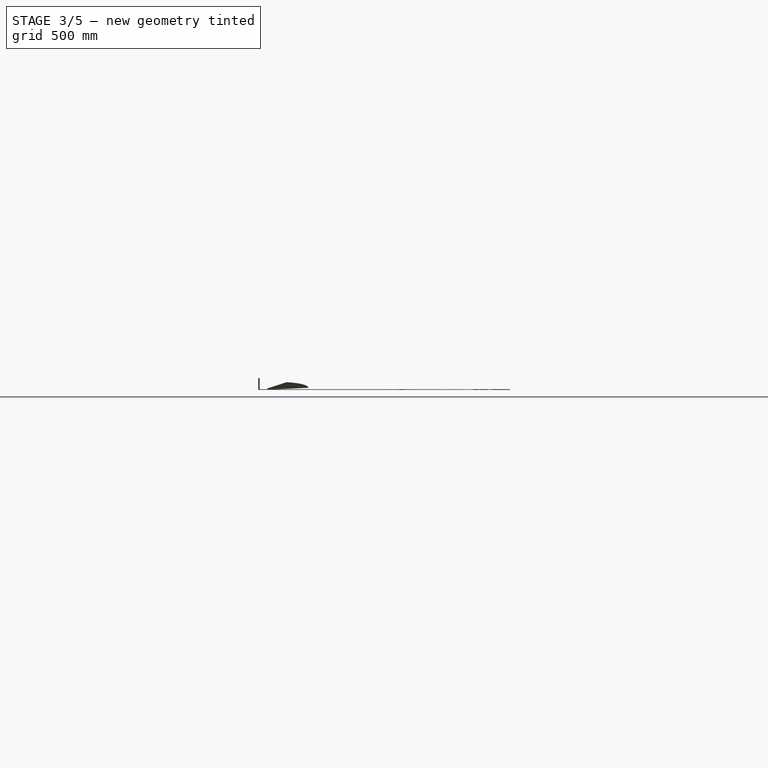
[diagram: stage 3 of 5 — right view after this stage's code; geometry added in this stage tinted green]
FEATURE [PartDesign::CoordinateSystem] LCS_Origin
  AttacherType = Attacher::AttachEngine3D
  MapMode = 2
  Support = -> [X_Axis012]
FEATURE [App::DocumentObjectGroup] Constraints
FEATURE [App::FeaturePython] Variables  # WARN: FeaturePython — macro-defined, semantics opaque (R4)
  Type = App::PropertyContainer
FEATURE [App::DocumentObjectGroup] Configurations
FEATURE [PartDesign::CoordinateSystem] Local_CS008
  AttacherType = Attacher::AttachEngine3D
  MapMode = 5
  Support = -> [XY_Plane001]
FEATURE [App::Link] Body001001
  AssemblyType = Part::Link
  AttachedBy = #Local_CS008
  AttachedTo = Parent Assembly#LCS_Origin
  LinkedObject = -> Body001
  SolverId = Asm4EE
  expr: Placement = LCS_Origin.Placement * AttachmentOffset * Local_CS008.Placement ^ -1
FEATURE [App::Link] Body001003001
  AssemblyType = Part::Link
  AttachedBy = #Local_CS009
  AttachedTo = Body001001#Local_CS038
  AttachmentOffset = pos=(0,0,0) rot=(0.58,0.58,-0.58;2.0944rad)
  LinkPlacement = pos=(0,109.238,738) rot=(-0.707107,0,-0.707107;3.14159rad)
  LinkedObject = -> Body001003
  Placement = pos=(0,109.238,738) rot=(-0.707107,0,-0.707107;3.14159rad)
  SolverId = Asm4EE
  expr: Placement = Body001001.Placement * Local_CS038.Placement * AttachmentOffset * Local_CS009.Placement ^ -1
FEATURE [PartDesign::PolarPattern] PolarPattern002
  Angle = 240
  Axis = -> Z_Axis001
  Occurrences = 2
  Reversed = true
  expr: Angle = 120 * Occurrences
FEATURE [PartDesign::CoordinateSystem] Local_CS011
  AttacherType = Attacher::AttachEngine3D
  AttachmentOffset = pos=(0,100,0) rot=(0,0,1;0rad)
  MapMode = 5
  Placement = pos=(0,109.238,0) rot=(0,0,1;0rad)
  Support = -> [Local_CS]
  expr: .AttachmentOffset.Base.y = <<main>>.work_plane_width / 2
FEATURE [PartDesign::Plane] DatumPlane
  Length = 439.155
  MapMode = 4
  Placement = pos=(0,109.238,0) rot=(0.57735,0.57735,0.57735;2.0944rad)
  ResizeMode = 0
  Support = -> [Local_CS011]
  Width = 902.564
FEATURE [Sketcher::SketchObject] Sketch011
  AttachmentOffset = pos=(-88,277,0) rot=(0,0,1;0rad)
  FullyConstrained = true
  MapMode = 5
  Placement = pos=(0,21.2376,277) rot=(0.57735,0.57735,0.57735;2.0944rad)
  Support = -> [DatumPlane]
  expr: .AttachmentOffset.Base.x = -<<main>>.work_plane_width / 2 + 12mm
  expr: .AttachmentOffset.Base.y = <<main>>.work_plane_middle - <<main>>.planes_fix_holes_distance + 25mm
  expr: Constraints[1] = <<main>>.rivet_d
  sketch-geometry (1):
    g0: Circle CenterX=0 CenterY=0 CenterZ=0 NormalX=0 NormalY=0 NormalZ=1 AngleXU=0 Radius=1.7
  constraints (2):
    c: Coincident(g0,g-1)
    c: Diameter(g0) = 3.4
FEATURE [PartDesign::Plane] DatumPlane011
  AttachmentOffset = pos=(0,0,0) rot=(0,0,1;0.523599rad)
  Length = 592.916
  MapMode = 5
  Placement = pos=(0,0,0) rot=(0,0,1;0.523599rad)
  ResizeMode = 0
  Support = -> [XY_Plane001]
  Width = 577.285
FEATURE [PartDesign::Plane] DatumPlane013
  AttachmentOffset = pos=(0,0,0) rot=(0,-1,0;0.523599rad)
  Length = 621.24
  MapMode = 5
  Placement = pos=(0,0,0) rot=(0.935113,-0.250563,-0.250563;1.63783rad)
  ResizeMode = 0
  Support = -> [XZ_Plane001]
  Width = 924.831
FEATURE [PartDesign::Mirrored] Mirrored013
  MirrorPlane = -> DatumPlane013
FEATURE [PartDesign::Plane] DatumPlane014
  AttachmentOffset = pos=(0,0,0) rot=(0.447214,0.774597,-0.447214;1.82348rad)
  Length = 924.831
  MapMode = 5
  Placement = pos=(0,0,0) rot=(0.447214,0.774597,-0.447214;1.82348rad)
  ResizeMode = 0
  Support = -> [XY_Plane001]
  Width = 621.24
FEATURE [Sketcher::SketchObject] Sketch047
  FullyConstrained = true
  MapMode = 5
  Support = -> [XY_Plane015]
  expr: Constraints[16] = Sketch003.Constraints.max_r
  expr: Constraints[20] = <<main>>.work_plane_width
  sketch-geometry (8):
    g0: ArcOfCircle CenterX=0 CenterY=18.4752 CenterZ=0 NormalX=0 NormalY=0 NormalZ=1 AngleXU=0 Radius=60 StartAngle=0.539993 EndAngle=1.5708
    g1: ArcOfCircle CenterX=52.3205 CenterY=49.8371 CenterZ=0 NormalX=0 NormalY=0 NormalZ=1 AngleXU=0 Radius=1 StartAngle=3.68159 EndAngle=5.23599
    g2: LineSegment StartX=52.8205 StartY=48.9711 StartZ=0 EndX=172.268 EndY=117.934 EndZ=0
    g3: ArcOfCircle CenterX=171.768 CenterY=118.8 CenterZ=0 NormalX=0 NormalY=0 NormalZ=1 AngleXU=0 Radius=1 StartAngle=5.23599 EndAngle=6.88827
    g4: ArcOfCircle CenterX=0 CenterY=0 CenterZ=0 NormalX=0 NormalY=0 NormalZ=1 AngleXU=0 Radius=209.848 StartAngle=0.605088 EndAngle=1.5708
    g5: LineSegment StartX=3.7e-15 StartY=78.4752 StartZ=0 EndX=1.28e-14 EndY=209.848 EndZ=0
    g6: LineSegment StartX=52.8205 StartY=48.9711 StartZ=0 EndX=0 EndY=18.4752 EndZ=0
    g7: GeomPoint X=173.205 Y=118.475 Z=0
  constraints (22):
    c: PointOnObject(g0,g-2)
    c: PointOnObject(g4,g-2)
    c: Diameter(g1) = 2
    c: Diameter(g3) = 2
    c: Tangent(g1,g0) = 1.5708
    c: Tangent(g3,g2) = -1.5708
    c: Angle(g2,g-1) = 2.61799
    c: Coincident(g5,g0)
    c: Coincident(g5,g4)
    c: Tangent(g1,g2) = -1.5708
    c: Coincident(g6,g1)
    c: Tangent(g6,g2)
    c: Coincident(g6,g0)
    c: Diameter(g0) = 120
    c: PointOnObject(g7,g4)
    c: PointOnObject(g7,g2)
    c: DistanceY(g4) = 209.848
    c: Distance(g4,g0) = 18.4752  'major_r_offset'
    c: Coincident(g4,g-1)
    c: PointOnObject(g0,g-2)
    c: Distance(g0,g7) = 200
    c: Tangent(g3,g4) = -1.5708
FEATURE [PartDesign::Pad] Pad012
  Direction = (0,0,1)
  Length = 3
  Length2 = 10
  Profile = -> Sketch047
  ReferenceAxis = -> Sketch047 [N_Axis]
  Type = 0
FEATURE [PartDesign::Body] Body001003005003012
  Group = -> [Sketch078,Sketch079,BaseBend,Sketch080,Pocket039,Sketch081,Pocket040,Mirrored028]
  Origin = -> Origin025
  Tip = -> Mirrored028
FEATURE [PartDesign::SubShapeBinder] Binder018
  BindCopyOnChange = 0
  BindMode = 0
  ClaimChildren = true
  Context = -> Body001003005003 [Binder018.]
  Fuse = false
  MakeFace = true
  OffsetFill = false
  OffsetIntersection = false
  OffsetJoinType = 0
  OffsetOpenResult = false
  PartialLoad = false
  Relative = false
  Support = -> [Body001003005003012[Pocket039.Sketch080.]]
  _Version = 2
FEATURE [PartDesign::CoordinateSystem] Local_CS025
  AttacherType = Attacher::AttachEngine3D
  AttachmentOffset = pos=(0,0,157) rot=(0,0,1;0rad)
  MapMode = 5
  Placement = pos=(0,0,157) rot=(0,0,1;0rad)
  Support = -> [XY_Plane001]
  expr: .AttachmentOffset.Base.z = <<main>>.basin_height
FEATURE [PartDesign::CoordinateSystem] Local_CS026
  AttacherType = Attacher::AttachEngine3D
  AttachmentOffset = pos=(0,18.4752,0) rot=(0,0,1;0.523599rad)
  MapMode = 5
  Placement = pos=(0,18.4752,0) rot=(0,0,1;0.523599rad)
  Support = -> [XY_Plane015]
  expr: .AttachmentOffset.Base.y = Sketch047.Constraints.major_r_offset
FEATURE [Sketcher::SketchObject] Sketch082
  FullyConstrained = false
  MapMode = 5
  Support = -> [XY_Plane027]
  expr: Constraints[20] = <<main>>.end_face_width / 2 + 2mm
  expr: Constraints[2] = Sketch052.Constraints.r - Sketch052.Constraints.width - 2mm
  expr: Constraints[41] = <<main>>.end_face_width / 2
  sketch-geometry (19):
    g0: ArcOfCircle CenterX=0 CenterY=1.42e-14 CenterZ=0 NormalX=0 NormalY=0 NormalZ=1 AngleXU=0 Radius=197.848 StartAngle=0.657286 EndAngle=1.5708
    g1: LineSegment StartX=1.21e-14 StartY=197.848 StartZ=0 EndX=1.12e-14 EndY=182.848 EndZ=0
    g2: ArcOfCircle CenterX=0 CenterY=1.42e-14 CenterZ=0 NormalX=0 NormalY=0 NormalZ=1 AngleXU=0 Radius=182.848 StartAngle=0.657286 EndAngle=1.5708
    g3: ArcOfCircle CenterX=150.69 CenterY=116.297 CenterZ=0 NormalX=0 NormalY=0 NormalZ=1 AngleXU=0 Radius=7.5 StartAngle=3.79888 EndAngle=6.94047
    g4: LineSegment StartX=0 StartY=1.42e-14 StartZ=0 EndX=165.582 EndY=95.5988 EndZ=0
    g5: GeomPoint X=155.154 Y=110.271 Z=0
    g6: LineSegment StartX=165.582 StartY=95.5988 StartZ=0 EndX=155.154 EndY=110.271 EndZ=0
    g7: ArcOfCircle CenterX=0 CenterY=1.42e-14 CenterZ=0 NormalX=0 NormalY=0 NormalZ=1 AngleXU=0 Radius=190.348 StartAngle=0.617882 EndAngle=1.5708
    g8: ArcOfCircle CenterX=0 CenterY=1.42e-14 CenterZ=0 NormalX=0 NormalY=0 NormalZ=1 AngleXU=0 Radius=190.348 StartAngle=0.641212 EndAngle=1.5708
    g9: ArcOfCircle CenterX=0 CenterY=1.42e-14 CenterZ=0 NormalX=0 NormalY=0 NormalZ=1 AngleXU=0 Radius=197.848 StartAngle=0.619862 EndAngle=0.657286
    g10: LineSegment StartX=155.154 StartY=110.271 StartZ=0 EndX=160.726 EndY=113.488 EndZ=0
    g11: ArcOfCircle CenterX=160.226 CenterY=114.354 CenterZ=0 NormalX=0 NormalY=0 NormalZ=1 AngleXU=0 Radius=1 StartAngle=5.23599 EndAngle=6.90305
    g12: ArcOfCircle CenterX=0 CenterY=1.42e-14 CenterZ=0 NormalX=0 NormalY=0 NormalZ=1 AngleXU=0 Radius=182.848 StartAngle=0.626692 EndAngle=0.657286
    g13: LineSegment StartX=155.154 StartY=110.271 StartZ=0 EndX=149.412 EndY=106.955 EndZ=0
    g14: ArcOfCircle CenterX=148.912 CenterY=107.821 CenterZ=0 NormalX=0 NormalY=0 NormalZ=1 AngleXU=0 Radius=1 StartAngle=3.76829 EndAngle=5.23599
    g15: ArcOfCircle CenterX=0 CenterY=1.42e-14 CenterZ=0 NormalX=0 NormalY=0 NormalZ=1 AngleXU=0 Radius=197.848 StartAngle=0.604557 EndAngle=1.5708
    g16: LineSegment StartX=162.781 StartY=112.457 StartZ=0 EndX=0 EndY=1.42e-14 EndZ=0
    g17: LineSegment StartX=162.781 StartY=112.457 StartZ=0 EndX=0 EndY=112.457 EndZ=0
    g18: LineSegment StartX=0 StartY=1.42e-14 StartZ=0 EndX=162.781 EndY=112.457 EndZ=0
  constraints (52):
    c: Coincident(g0,g-1)
    c: PointOnObject(g0,g-2)
    c: DistanceY(g0) = 197.848
    c: Coincident(g1,g0)
    c: PointOnObject(g1,g-2)
    c: Coincident(g2,g0)
    c: Coincident(g2,g1)
    c: Tangent(g3,g0) = -1.5708
    c: Tangent(g3,g2) = 1.5708
    c: DistanceY(g1,g1) = 15
    c: Coincident(g4,g0)
    c: Angle(g-1,g4) = 0.523599
    c: PointOnObject(g5,g3)
    c: Coincident(g6,g4)
    c: Coincident(g6,g5)
    c: Coincident(g7,g0)
    c: Coincident(g7,g5)
    c: PointOnObject(g7,g1)
    c: PointOnObject(g3,g7)
    c: Tangent(g6,g7)
    c: Distance(g6) = 18
    c: Coincident(g8,g0)
    c: PointOnObject(g8,g-2)
    c: DistanceY(g8,g0) = 7.5
    c: Coincident(g9,g0)
    c: Coincident(g9,g0)
    c: Coincident(g10,g5)
    c: Parallel(g10,g4)
    c: Tangent(g9,g11) = -1.5708
    c: Tangent(g10,g11) = -1.5708
    c: Diameter(g11) = 2
    c: Coincident(g12,g0)
    c: Coincident(g12,g2)
    c: Coincident(g13,g10)
    c: Parallel(g13,g10)
    c: Tangent(g12,g14) = 1.5708
    c: Tangent(g13,g14) = 1.5708
    c: Equal(g14,g11)
    c: Coincident(g15,g0)
    c: PointOnObject(g15,g-2)
    c: Equal(g15,g9)
    c: Distance(g15,g4) = 16
    c: Coincident(g16,g15)
    c: Coincident(g16,g0)
    c: Angle(g16,g-2) = 0.966239
    c: Coincident(g17,g15)
    c: PointOnObject(g17,g-2)
    c: Horizontal(g17)
    c: DistanceX(g17,g17) = 162.781
    c: Coincident(g18,g0)
    c: Coincident(g18,g15)
    c: Angle(g16,g-2) = 0.966239
FEATURE [PartDesign::Pad] Pad021
  Direction = (0,0,1)
  Length = 3
  Length2 = 10
  Profile = -> Sketch082
  ReferenceAxis = -> Sketch082 [N_Axis]
  Type = 0
FEATURE [Sketcher::SketchObject] Sketch083
  FullyConstrained = true
  MapMode = 5
  Support = -> [XY_Plane027]
  expr: Constraints[11] = Sketch082.Constraints[11]
  expr: Constraints[20] = Sketch082.Constraints[20]
  expr: Constraints[23] = Sketch082.Constraints[23]
  expr: Constraints[25] = <<main>>.rivet_d
  expr: Constraints[2] = Sketch082.Constraints[2]
  expr: Constraints[9] = Sketch082.Constraints[9]
  sketch-geometry (11):
    g0: ArcOfCircle CenterX=0 CenterY=0 CenterZ=0 NormalX=0 NormalY=0 NormalZ=1 AngleXU=0 Radius=197.848 StartAngle=0.657286 EndAngle=1.5708
    g1: LineSegment StartX=1.21e-14 StartY=197.848 StartZ=0 EndX=1.12e-14 EndY=182.848 EndZ=0
    g2: ArcOfCircle CenterX=0 CenterY=0 CenterZ=0 NormalX=0 NormalY=0 NormalZ=1 AngleXU=0 Radius=182.848 StartAngle=0.657286 EndAngle=1.5708
    g3: ArcOfCircle CenterX=150.69 CenterY=116.297 CenterZ=0 NormalX=0 NormalY=0 NormalZ=1 AngleXU=0 Radius=7.5 StartAngle=3.79888 EndAngle=6.94047
    g4: LineSegment StartX=0 StartY=0 StartZ=0 EndX=165.582 EndY=95.5988 EndZ=0
    g5: GeomPoint X=155.154 Y=110.271 Z=0
    g6: LineSegment StartX=165.582 StartY=95.5988 StartZ=0 EndX=155.154 EndY=110.271 EndZ=0
    g7: ArcOfCircle CenterX=0 CenterY=0 CenterZ=0 NormalX=0 NormalY=0 NormalZ=1 AngleXU=0 Radius=190.348 StartAngle=0.617882 EndAngle=1.5708
    g8: ArcOfCircle CenterX=0 CenterY=0 CenterZ=0 NormalX=0 NormalY=0 NormalZ=1 AngleXU=0 Radius=190.348 StartAngle=0.670423 EndAngle=1.5708
    g9: Circle CenterX=149.149 CenterY=118.267 CenterZ=0 NormalX=0 NormalY=0 NormalZ=1 AngleXU=0 Radius=1.7
    g10: Circle CenterX=-149.149 CenterY=118.267 CenterZ=0 NormalX=0 NormalY=0 NormalZ=1 AngleXU=0 Radius=1.7
  constraints (29):
    c: Coincident(g0,g-1)
    c: PointOnObject(g0,g-2)
    c: DistanceY(g0) = 197.848
    c: Coincident(g1,g0)
    c: PointOnObject(g1,g-2)
    c: Coincident(g2,g0)
    c: Coincident(g2,g1)
    c: Tangent(g3,g0) = -1.5708
    c: Tangent(g3,g2) = 1.5708
    c: DistanceY(g1,g1) = 15
    c: Coincident(g4,g0)
    c: Angle(g-1,g4) = 0.523599
    c: PointOnObject(g5,g3)
    c: Coincident(g6,g4)
    c: Coincident(g6,g5)
    c: Coincident(g7,g0)
    c: Coincident(g7,g5)
    c: PointOnObject(g7,g1)
    c: PointOnObject(g3,g7)
    c: Tangent(g6,g7)
    c: Distance(g6) = 18
    c: Coincident(g8,g0)
    c: PointOnObject(g8,g-2)
    c: DistanceY(g8,g0) = 7.5
    c: Coincident(g9,g8)
    c: Diameter(g9) = 3.4
    c: Symmetric(g10,g9,g-2)
    c: Equal(g10,g9)
    c: Distance(g5,g9) = 10
FEATURE [PartDesign::Mirrored] Mirrored029
  BaseFeature = -> Pad021
  MirrorPlane = -> Sketch082 [V_Axis]
  Originals = -> [Pad021]
  Refine = true
FEATURE [PartDesign::Pocket] Pocket041
  BaseFeature = -> Mirrored029
  Direction = (0,0,-1)
  Length = 5
  Length2 = 5
  Midplane = true
  Profile = -> Sketch083
  ReferenceAxis = -> Sketch083 [N_Axis]
  Type = 1
FEATURE [Sketcher::SketchObject] Sketch084
  FullyConstrained = true
  MapMode = 5
  Support = -> [XY_Plane027]
  expr: Constraints[11] = Sketch082.Constraints[11]
  expr: Constraints[20] = Sketch082.Constraints[20]
  expr: Constraints[27] = Sketch082.Constraints[30]
  expr: Constraints[2] = Sketch082.Constraints[2]
  expr: Constraints[36] = <<main>>.rivet_d
  expr: Constraints[9] = Sketch082.Constraints[9]
  sketch-geometry (15):
    g0: ArcOfCircle CenterX=0 CenterY=0 CenterZ=0 NormalX=0 NormalY=0 NormalZ=1 AngleXU=0 Radius=197.848 StartAngle=0.657286 EndAngle=1.5708
    g1: LineSegment StartX=1.21e-14 StartY=197.848 StartZ=0 EndX=1.12e-14 EndY=182.848 EndZ=0
    g2: ArcOfCircle CenterX=0 CenterY=0 CenterZ=0 NormalX=0 NormalY=0 NormalZ=1 AngleXU=0 Radius=182.848 StartAngle=0.657286 EndAngle=1.5708
    g3: ArcOfCircle CenterX=150.69 CenterY=116.297 CenterZ=0 NormalX=0 NormalY=0 NormalZ=1 AngleXU=0 Radius=7.5 StartAngle=3.79888 EndAngle=6.94047
    g4: LineSegment StartX=0 StartY=0 StartZ=0 EndX=165.582 EndY=95.5988 EndZ=0
    g5: GeomPoint X=155.154 Y=110.271 Z=0
    g6: LineSegment StartX=165.582 StartY=95.5988 StartZ=0 EndX=155.154 EndY=110.271 EndZ=0
    g7: ArcOfCircle CenterX=0 CenterY=0 CenterZ=0 NormalX=0 NormalY=0 NormalZ=1 AngleXU=0 Radius=190.348 StartAngle=0.617882 EndAngle=1.5708
    g8: ArcOfCircle CenterX=0 CenterY=0 CenterZ=0 NormalX=0 NormalY=0 NormalZ=1 AngleXU=0 Radius=197.848 StartAngle=0.619862 EndAngle=0.657286
    g9: LineSegment StartX=155.154 StartY=110.271 StartZ=0 EndX=160.726 EndY=113.488 EndZ=0
    g10: ArcOfCircle CenterX=160.226 CenterY=114.354 CenterZ=0 NormalX=0 NormalY=0 NormalZ=1 AngleXU=0 Radius=1 StartAngle=5.23599 EndAngle=6.90305
    g11: ArcOfCircle CenterX=0 CenterY=0 CenterZ=0 NormalX=0 NormalY=0 NormalZ=1 AngleXU=0 Radius=182.848 StartAngle=0.626692 EndAngle=0.657286
    g12: LineSegment StartX=155.154 StartY=110.271 StartZ=0 EndX=149.412 EndY=106.955 EndZ=0
    g13: ArcOfCircle CenterX=148.912 CenterY=107.821 CenterZ=0 NormalX=0 NormalY=0 NormalZ=1 AngleXU=0 Radius=1 StartAngle=3.76829 EndAngle=5.23599
    g14: Circle CenterX=1.17e-14 CenterY=190.348 CenterZ=0 NormalX=0 NormalY=0 NormalZ=1 AngleXU=0 Radius=1.7
  constraints (37):
    c: Coincident(g0,g-1)
    c: PointOnObject(g0,g-2)
    c: DistanceY(g0) = 197.848
    c: Coincident(g1,g0)
    c: PointOnObject(g1,g-2)
    c: Coincident(g2,g0)
    c: Coincident(g2,g1)
    c: Tangent(g3,g0) = -1.5708
    c: Tangent(g3,g2) = 1.5708
    c: DistanceY(g1,g1) = 15
    c: Coincident(g4,g0)
    c: Angle(g-1,g4) = 0.523599
    c: PointOnObject(g5,g3)
    c: Coincident(g6,g4)
    c: Coincident(g6,g5)
    c: Coincident(g7,g0)
    c: Coincident(g7,g5)
    c: PointOnObject(g7,g1)
    c: PointOnObject(g3,g7)
    c: Tangent(g6,g7)
    c: Distance(g6) = 18
    c: Coincident(g8,g0)
    c: Coincident(g8,g0)
    c: Coincident(g9,g5)
    c: Parallel(g9,g4)
    c: Tangent(g8,g10) = -1.5708
    c: Tangent(g9,g10) = -1.5708
    c: Diameter(g10) = 2
    c: Coincident(g11,g0)
    c: Coincident(g11,g2)
    c: Coincident(g12,g9)
    c: Parallel(g12,g9)
    c: Tangent(g11,g13) = 1.5708
    c: Tangent(g12,g13) = 1.5708
    c: Equal(g13,g10)
    c: Coincident(g14,g7)
    c: Diameter(g14) = 3.4
FEATURE [PartDesign::Pocket] Pocket042
  BaseFeature = -> Pocket041
  Direction = (0,0,-1)
  Length = 5
  Length2 = 5
  Midplane = true
  Profile = -> Sketch084
  ReferenceAxis = -> Sketch084 [N_Axis]
  Type = 1
FEATURE [PartDesign::Body] Body_3  label="top_small_material_0.50ansi"
  Group = -> [LCS_0001,Sketch093,BaseBend004,Binder024,Pocket052,Mirrored036,Binder025,Pocket053,Pocket060,Binder031]
  Origin = -> Origin030
  Tip = -> Pocket060
FEATURE [PartDesign::CoordinateSystem] LCS_0005
  AttacherType = Attacher::AttachEngine3D
  MapMode = 2
  Support = -> [X_Axis035]
FEATURE [Sketcher::SketchObject] Sketch104
  FullyConstrained = false
  MapMode = 5
  Placement = pos=(0,0,0) rot=(0.57735,0.57735,0.57735;2.0944rad)
  Support = -> [YZ_Plane035]
  expr: Constraints[6] = 2mm + 0.5mm + 3.4mm + 2mm + 3mm
  sketch-geometry (3):
    g0: LineSegment StartX=10.9 StartY=0 StartZ=0 EndX=0 EndY=0 EndZ=0
    g1: LineSegment StartX=0 StartY=0 StartZ=0 EndX=0 EndY=17.2 EndZ=0
    g2: GeomPoint X=12.5 Y=0 Z=0
  constraints (7):
    c: PointOnObject(g0,g-1)
    c: Coincident(g0,g-1)
    c: Coincident(g0,g1)
    c: PointOnObject(g1,g-2)
    c: PointOnObject(g2,g-1)
    c: DistanceY(g1) = 17.2
    c: DistanceX(g0,g0) = 10.9
FEATURE [PartDesign::FeaturePython] BaseBend006  # WARN: FeaturePython — macro-defined, semantics opaque (R4)
  BendSide = 0
  BendSketch = -> Sketch104
  MidPlane = true
  Reverse = false
  length = 9.4
  radius = 2
  thickness = 0.5
  expr: length = <<main>>.rivet_d + 6mm
FEATURE [Sketcher::SketchObject] Sketch105
  AttachmentOffset = pos=(0,5.9,0) rot=(0,0,1;0rad)
  FullyConstrained = true
  MapMode = 5
  Placement = pos=(0,5.9,0) rot=(0,0,1;0rad)
  Support = -> [XY_Plane036]
  expr: .AttachmentOffset.Base.y = 2mm + 0.5mm + 2mm + 1.4mm
  expr: Constraints[1] = <<main>>.rivet_d
  sketch-geometry (1):
    g0: Circle CenterX=0 CenterY=0 CenterZ=0 NormalX=0 NormalY=0 NormalZ=1 AngleXU=0 Radius=1.7
  constraints (2):
    c: Coincident(g0,g-1)
    c: Diameter(g0) = 3.4
FEATURE [PartDesign::Plane] DatumPlane024
  AttachmentOffset = pos=(0,0,0) rot=(1,0,0;0.785398rad)
  Length = 61.8921
  MapMode = 5
  Placement = pos=(0,0,0) rot=(1,0,0;0.785398rad)
  ResizeMode = 0
  Support = -> [XY_Plane036]
  Width = 82.6027
FEATURE [PartDesign::Fillet] Fillet002
  Base = -> BaseBend006 [Edge25,Edge8]
  BaseFeature = -> BaseBend006
  Radius = 2
  SupportTransform = false
  UseAllEdges = false
FEATURE [PartDesign::Mirrored] Mirrored038
  BaseFeature = -> Fillet002
  MirrorPlane = -> YZ_Plane035
  Originals = -> [Fillet002]
FEATURE [PartDesign::Pocket] Pocket061
  BaseFeature = -> Mirrored038
  Direction = (0,0,-1)
  Length = 5
  Length2 = 5
  Midplane = true
  Profile = -> Sketch105
  ReferenceAxis = -> Sketch105 [N_Axis]
  Type = 1
FEATURE [Sketcher::SketchObject] Sketch106
  AttachmentOffset = pos=(0,12.5,0) rot=(0,0,1;0rad)
  FullyConstrained = true
  MapMode = 5
  Placement = pos=(0,-2.8e-15,12.5) rot=(1,0,0;1.5708rad)
  Support = -> [XZ_Plane035]
  expr: .AttachmentOffset.Base.y = 12.5mm
  expr: Constraints[1] = <<main>>.rivet_d
  sketch-geometry (1):
    g0: Circle CenterX=0 CenterY=0 CenterZ=0 NormalX=0 NormalY=0 NormalZ=1 AngleXU=0 Radius=1.7
  constraints (2):
    c: Coincident(g0,g-1)
    c: Diameter(g0) = 3.4
FEATURE [PartDesign::Pocket] Pocket062
  BaseFeature = -> Pocket061
  Direction = (0,1,2e-16)
  Length = 5
  Length2 = 5
  Midplane = true
  Profile = -> Sketch106
  ReferenceAxis = -> Sketch106 [N_Axis]
  Type = 1
FEATURE [Sketcher::SketchObject] Sketch129
  AttachmentOffset = pos=(0,0,0) rot=(0,1,0;3.66519rad)
  FullyConstrained = true
  MapMode = 5
  Placement = pos=(0,0,0) rot=(-0.186157,0.694747,0.694747;3.50969rad)
  Support = -> [XZ_Plane001]
  expr: .Constraints.height = Sketch128.Constraints.height
  expr: .Constraints.length = Sketch128.Constraints.length
  expr: Constraints[20] = <<main>>.cover_plane_bend
  expr: Constraints[24] = Sketch128.Constraints.top_center_x
  expr: Constraints[25] = Sketch128.Constraints.top_center_y
  expr: Constraints[8] = <<main>>.basin_height
  sketch-geometry (10):
    g0: LineSegment StartX=0 StartY=0 StartZ=0 EndX=168.826 EndY=0 EndZ=0
    g1: LineSegment StartX=168.826 StartY=0 StartZ=0 EndX=168.826 EndY=165.105 EndZ=0
    g2: LineSegment StartX=0 StartY=157 StartZ=0 EndX=0 EndY=0 EndZ=0
    g3: LineSegment StartX=73 StartY=116.654 StartZ=0 EndX=165.646 EndY=124.76 EndZ=0
    g4: LineSegment StartX=165.646 StartY=124.76 StartZ=0 EndX=162.116 EndY=165.105 EndZ=0
    g5: LineSegment StartX=162.116 StartY=165.105 StartZ=0 EndX=69.4702 EndY=157 EndZ=0
    g6: LineSegment StartX=69.4702 StartY=157 StartZ=0 EndX=73 EndY=116.654 EndZ=0
    g7: LineSegment StartX=168.826 StartY=165.105 StartZ=0 EndX=162.116 EndY=165.105 EndZ=0
    g8: LineSegment StartX=69.4702 StartY=157 StartZ=0 EndX=0 EndY=157 EndZ=0
    g9: GeomPoint X=115.793 Y=161.053 Z=0
  constraints (26):
    c: Coincident(g0,g1)
    c: Coincident(g1,g7)
    c: Coincident(g8,g2)
    c: Coincident(g2,g0)
    c: Horizontal(g0)
    c: Vertical(g1)
    c: Vertical(g2)
    c: Coincident(g0,g-1)
    c: DistanceY(g8) = 157
    c: Coincident(g3,g4)
    c: Coincident(g4,g5)
    c: Coincident(g5,g6)
    c: Coincident(g6,g3)
    c: Horizontal(g7)
    c: Coincident(g8,g5)
    c: Coincident(g7,g4)
    c: Perpendicular(g4,g3)
    c: Perpendicular(g5,g4)
    c: Perpendicular(g5,g6)
    c: Distance(g3,g1) = 3.18
    c: Angle(g-1,g5) = 0.0872665
    c: Distance(g6) = 40.5  'height'
    c: Distance(g3) = 93  'length'
    c: Symmetric(g6,g4,g9)
    c: DistanceX(g9) = 115.793
    c: DistanceY(g9) = 161.053
FEATURE [PartDesign::CoordinateSystem] Local_CS041
  AttacherType = Attacher::AttachEngine3D
  AttachmentOffset = pos=(115.793,161.053,16) rot=(0.029484,-0.675296,-0.736957;3.07726rad)
  MapMode = 5
  Placement = pos=(16,115.793,161.053) rot=(0,0.087156,-0.996195;1.5708rad)
  Support = -> [YZ_Plane001]
  expr: .AttachmentOffset.Base.x = Sketch128.Constraints.top_center_x
  expr: .AttachmentOffset.Base.y = Sketch128.Constraints.top_center_y
  expr: .AttachmentOffset.Base.z = <<main>>.end_face_width / 2
  expr: .AttachmentOffset.Rotation.Roll = 90° - <<main>>.cover_bend_mid
FEATURE [PartDesign::CoordinateSystem] Local_CS039
  AttacherType = Attacher::AttachEngine3D
  AttachmentOffset = pos=(0,-3,-3) rot=(0,1,0.71;0rad)
  MapMode = 5
  Placement = pos=(12.7499,116.031,158.336) rot=(0,0.087156,-0.996195;1.5708rad)
  Support = -> [Local_CS041]
  expr: .AttachmentOffset.Base.y = -<<main>>.thickness
  expr: .AttachmentOffset.Base.z = -<<main>>.thickness
FEATURE [Sketcher::SketchObject] Sketch073
  FullyConstrained = true
  MapMode = 5
  Placement = pos=(12.7499,116.031,158.336) rot=(0,0.087156,-0.996195;1.5708rad)
  Support = -> [Local_CS039]
  expr: Constraints[0] = <<main>>.rivet_d
  sketch-geometry (2):
    g0: Circle CenterX=36 CenterY=14.5 CenterZ=0 NormalX=0 NormalY=0 NormalZ=1 AngleXU=0 Radius=1.7
    g1: Circle CenterX=-36 CenterY=14.5 CenterZ=0 NormalX=0 NormalY=0 NormalZ=1 AngleXU=0 Radius=1.7
  constraints (5):
    c: Diameter(g0) = 3.4
    c: DistanceY(g0) = 14.5
    c: Equal(g0,g1)
    c: Symmetric(g1,g0,g-2)
    c: DistanceX(g1,g0) = 72
FEATURE [PartDesign::PolarPattern] PolarPattern009
  Angle = 95
  Axis = -> Sketch073 [H_Axis]
  Occurrences = 2
FEATURE [Sketcher::SketchObject] Sketch130
  AttachmentOffset = pos=(0,40.5,0) rot=(0,0,1;0rad)
  FullyConstrained = true
  MapMode = 5
  Placement = pos=(56.3459,116.101,157.536) rot=(0,0.087156,-0.996195;1.5708rad)
  Support = -> [Local_CS041]
  expr: .AttachmentOffset.Base.y = Bend.length + 0.5mm
  expr: Constraints[14] = Sketch128.Constraints.length
  sketch-geometry (6):
    g0: ArcOfCircle CenterX=36.5 CenterY=-10 CenterZ=0 NormalX=0 NormalY=0 NormalZ=1 AngleXU=0 Radius=10 StartAngle=6.28318 EndAngle=7.85398
    g1: ArcOfCircle CenterX=-36.5 CenterY=-10 CenterZ=0 NormalX=0 NormalY=0 NormalZ=1 AngleXU=0 Radius=10 StartAngle=1.5708 EndAngle=3.14159
    g2: LineSegment StartX=-46.5 StartY=-10 StartZ=0 EndX=-46.5 EndY=0 EndZ=0
    g3: LineSegment StartX=-36.5 StartY=0 StartZ=0 EndX=-46.5 EndY=0 EndZ=0
    g4: LineSegment StartX=46.5 StartY=-10 StartZ=0 EndX=46.5 EndY=0 EndZ=0
    g5: LineSegment StartX=36.5 StartY=0 StartZ=0 EndX=46.5 EndY=0 EndZ=0
  constraints (17):
    c: PointOnObject(g0,g-1)
    c: PointOnObject(g1,g-1)
    c: Coincident(g2,g1)
    c: PointOnObject(g2,g-1)
    c: Vertical(g2)
    c: Tangent(g2,g1)
    c: Coincident(g3,g2)
    c: Coincident(g4,g0)
    c: PointOnObject(g4,g-1)
    c: Vertical(g4)
    c: Tangent(g4,g0)
    c: Coincident(g5,g4)
    c: Tangent(g5,g0) = 1.5708
    c: Tangent(g3,g1) = -1.5708
    c: DistanceX(g2,g4) = 93
    c: Symmetric(g1,g0,g-2)
    c: Diameter(g0) = 20
FEATURE [PartDesign::Mirrored] Mirrored040
  MirrorPlane = -> YZ_Plane001
FEATURE [PartDesign::PolarPattern] PolarPattern017
  Angle = 360
  Axis = -> Z_Axis001
  Occurrences = 3
FEATURE [PartDesign::CoordinateSystem] Local_CS042
  AttacherType = Attacher::AttachEngine3D
  AttachmentOffset = pos=(0,0,0) rot=(0,0,1;2.0944rad)
  MapMode = 5
  Placement = pos=(0,0,0) rot=(0,0,1;2.0944rad)
  Support = -> [XY_Plane001]
FEATURE [Sketcher::SketchObject] Sketch009
  AttachmentOffset = pos=(0,-18.4752,0) rot=(0.935113,-0.250563,-0.250563;1.63783rad)
  ExternalGeometry = -> [Sketch128]
  FullyConstrained = true
  MapMode = 5
  Placement = pos=(16,9.2376,0) rot=(0.57735,0.57735,0.57735;2.0944rad)
  Support = -> [Local_CS042]
  expr: .AttachmentOffset.Base.y = -<<main>>.end_face_width / 2 / cos(30)
  expr: Constraints[7] = <<main>>.basin_height
  sketch-geometry (18):
    g0: LineSegment StartX=0 StartY=0 StartZ=0 EndX=0 EndY=157 EndZ=0
    g1: LineSegment StartX=184 StartY=160.105 StartZ=0 EndX=184 EndY=127 EndZ=0
    g2: LineSegment StartX=179 StartY=122 StartZ=0 EndX=174.888 EndY=122 EndZ=0
    g3: LineSegment StartX=170.042 StartY=118.231 StartZ=0 EndX=140 EndY=0 EndZ=0
    g4: LineSegment StartX=140 StartY=0 StartZ=0 EndX=0 EndY=0 EndZ=0
    g5: ArcOfCircle CenterX=179 CenterY=160.105 CenterZ=0 NormalX=0 NormalY=0 NormalZ=1 AngleXU=0 Radius=5 StartAngle=0 EndAngle=1.5708
    g6: GeomPoint X=184 Y=165.105 Z=0
    g7: ArcOfCircle CenterX=179 CenterY=127 CenterZ=0 NormalX=0 NormalY=0 NormalZ=1 AngleXU=0 Radius=5 StartAngle=4.71239 EndAngle=6.28319
    g8: GeomPoint X=184 Y=122 Z=0
    g9: ArcOfCircle CenterX=174.888 CenterY=117 CenterZ=0 NormalX=0 NormalY=0 NormalZ=1 AngleXU=0 Radius=5 StartAngle=1.5708 EndAngle=2.89276
    g10: GeomPoint X=171 Y=122 Z=0
    g11: LineSegment StartX=63.7624 StartY=116.654 StartZ=0 EndX=156.409 EndY=124.76 EndZ=0
    g12: LineSegment StartX=156.409 StartY=124.76 StartZ=0 EndX=152.879 EndY=165.105 EndZ=0
    g13: LineSegment StartX=152.879 StartY=165.105 StartZ=0 EndX=60.2326 EndY=157 EndZ=0
    g14: LineSegment StartX=60.2326 StartY=157 StartZ=0 EndX=63.7624 EndY=116.654 EndZ=0
    g15: LineSegment StartX=0 StartY=157 StartZ=0 EndX=60.2326 EndY=157 EndZ=0
    g16: LineSegment StartX=152.879 StartY=165.105 StartZ=0 EndX=179 EndY=165.105 EndZ=0
    g17: LineSegment StartX=208.395 StartY=149.752 StartZ=0 EndX=184 EndY=149.752 EndZ=0
  constraints (44):
    c: Coincident(g-1,g0)
    c: Vertical(g0)
    c: Vertical(g1)
    c: Horizontal(g2)
    c: PointOnObject(g3,g-1)
    c: Coincident(g3,g4)
    c: Coincident(g4,g0)
    c: DistanceY(g0,g0) = 157
    c: PointOnObject(g6,g1)
    c: Tangent(g1,g5) = 1.5708
    c: PointOnObject(g8,g2)
    c: PointOnObject(g8,g1)
    c: Tangent(g2,g7) = 1.5708
    c: Tangent(g1,g7) = 1.5708
    c: PointOnObject(g10,g3)
    c: PointOnObject(g10,g2)
    c: Tangent(g3,g9) = -1.5708
    c: Tangent(g2,g9) = -1.5708
    c: Equal(g9,g7)
    c: Equal(g7,g5)
    c: Diameter(g7) = 10
    c: Distance(g8,g10) = 13
    c: Coincident(g11,g12)
    c: Coincident(g12,g13)
    c: Coincident(g13,g14)
    c: Coincident(g14,g11)
    c: Coincident(g15,g0)
    c: Coincident(g15,g13)
    c: Coincident(g16,g12)
    c: Horizontal(g16)
    c: Tangent(g16,g5) = 1.5708
    c: PointOnObject(g6,g16)
    c: PointOnObject(g17,g1)
    c: Horizontal(g17)
    c: DistanceX(g17) = 208.395
    c: DistanceY(g17) = 149.752
    c: Coincident(g11,g-3)
    c: DistanceX(g8) = 184
    c: DistanceX(g3) = 140
    c: Coincident(g11,g-4)
    c: Perpendicular(g11,g14)
    c: Perpendicular(g12,g13)
    c: Coincident(g12,g-5)
    c: DistanceY(g8,g14) = 35
FEATURE [PartDesign::CoordinateSystem] Local_CS012
  AttacherType = Attacher::AttachEngine3D
  AttachmentOffset = pos=(16,115.793,161.053) rot=(0,0.087156,-0.996195;1.5708rad)
  MapMode = 5
  Placement = pos=(-108.28,-44.0402,161.053) rot=(-0.199622,0.115252,0.973071;0.541313rad)
  Support = -> [Local_CS042]
  expr: AttachmentOffset = Local_CS041.Placement
FEATURE [Sketcher::SketchObject] Sketch043
  AttachmentOffset = pos=(0,14,0) rot=(0,0,1;0rad)
  FullyConstrained = true
  MapMode = 5
  Placement = pos=(-115.345,-32.0152,159.837) rot=(-0.199622,0.115252,0.973071;0.541313rad)
  Support = -> [Local_CS012]
  expr: Constraints[0] = <<main>>.rivet_d
  sketch-geometry (1):
    g0: Circle CenterX=0 CenterY=16 CenterZ=0 NormalX=0 NormalY=0 NormalZ=1 AngleXU=0 Radius=1.7
  constraints (3):
    c: Diameter(g0) = 3.4
    c: DistanceY(g0) = 16
    c: PointOnObject(g0,g-2)
FEATURE [PartDesign::Plane] DatumPlane012
  Length = 674.323
  MapMode = 5
  Placement = pos=(-108.28,-44.0402,161.053) rot=(-0.199622,0.115252,0.973071;0.541313rad)
  ResizeMode = 0
  Support = -> [Local_CS012]
  Width = 659.7
FEATURE [PartDesign::SubShapeBinder] Binder041
  BindCopyOnChange = 0
  BindMode = 0
  ClaimChildren = false
  Context = -> Model [Body001003005002.Binder041.]
  Fuse = false
  MakeFace = true
  OffsetFill = false
  OffsetIntersection = false
  OffsetJoinType = 0
  OffsetOpenResult = false
  PartialLoad = false
  Relative = false
  Support = -> [Body001003005003013[Pocket041.Sketch083.]]
  _Version = 2
FEATURE [PartDesign::SubShapeBinder] Binder042
  BindCopyOnChange = 0
  BindMode = 0
  ClaimChildren = false
  Context = -> Model [Body001003005002.Binder042.]
  Fuse = false
  MakeFace = true
  OffsetFill = false
  OffsetIntersection = false
  OffsetJoinType = 0
  OffsetOpenResult = false
  PartialLoad = false
  Relative = false
  Support = -> [Body001003005003013[Pocket042.Sketch084.]]
  _Version = 2
FEATURE [PartDesign::SubShapeBinder] Binder043
  BindCopyOnChange = 0
  BindMode = 0
  ClaimChildren = false
  Context = -> Model [Body001003005002.Binder043.]
  Fuse = false
  MakeFace = true
  OffsetFill = false
  OffsetIntersection = false
  OffsetJoinType = 0
  OffsetOpenResult = false
  PartialLoad = false
  Placement = pos=(85.2799,83.8774,0) rot=(0,0,1;0.523599rad)
  Relative = false
  Support = -> [Body001[Sketch043.]]
  _Version = 2
  expr: Placement = Local_CS043.Placement
FEATURE [PartDesign::CoordinateSystem] Local_CS043
  AttacherType = Attacher::AttachEngine3D
  AttachmentOffset = pos=(115.793,30,0) rot=(0,0,1;0rad)
  MapMode = 5
  Placement = pos=(85.2799,83.8774,0) rot=(0,0,1;0.523599rad)
  Support = -> [Local_CS016]
  expr: .AttachmentOffset.Base.x = Local_CS012.AttachmentOffset.Base.y
FEATURE [PartDesign::Pocket] Pocket086
  BaseFeature = -> Pad012
  Direction = (0,0,-1)
  Length = 5
  Length2 = 5
  Midplane = true
  Profile = -> Binder043
  Type = 1
FEATURE [PartDesign::Body] Body001003005003011  label="basement2"
  Group = -> [Sketch076,Pad020,Binder044,Binder045,Pocket088,Hole]
  Origin = -> Origin024
  Tip = -> Hole
FEATURE [PartDesign::CoordinateSystem] Local_CS044
  AttacherType = Attacher::AttachEngine3D
  AttachmentOffset = pos=(115.793,13,0) rot=(0,0,1;0rad)
  MapMode = 5
  Placement = pos=(93.7799,69.155,0) rot=(0,0,1;0.523599rad)
  Support = -> [Local_CS016]
  expr: .AttachmentOffset.Base.x = Local_CS043.AttachmentOffset.Base.x
  expr: .AttachmentOffset.Base.y = <<main>>.end_face_width / 2 - <<main>>.thickness
FEATURE [PartDesign::SubShapeBinder] Binder046
  BindCopyOnChange = 0
  BindMode = 0
  ClaimChildren = false
  Context = -> Model [Body001003005002.Binder046.]
  Fuse = false
  MakeFace = true
  OffsetFill = false
  OffsetIntersection = false
  OffsetJoinType = 0
  OffsetOpenResult = false
  PartialLoad = false
  Placement = pos=(93.7799,69.155,0) rot=(0,0,1;0.523599rad)
  Relative = false
  Support = -> [Body001[Pocket073.Sketch073.]]
  _Version = 2
  expr: Placement = Local_CS044.Placement
FEATURE [PartDesign::Pocket] Pocket089
  BaseFeature = -> Pocket086
  Direction = (0,0,-1)
  Length = 5
  Length2 = 5
  Midplane = true
  Profile = -> Binder046
  Type = 1
FEATURE [PartDesign::Mirrored] Mirrored014
  BaseFeature = -> Pocket089
  MirrorPlane = -> Sketch047 [V_Axis]
  Originals = -> [Pad012,Pocket086,Pocket089]
  Refine = true
FEATURE [PartDesign::Pocket] Pocket084
  BaseFeature = -> Mirrored014
  Direction = (0,0,-1)
  Length = 5
  Length2 = 5
  Midplane = true
  Profile = -> Binder041
  Type = 1
FEATURE [PartDesign::Pocket] Pocket085
  BaseFeature = -> Pocket084
  Direction = (0,0,-1)
  Length = 5
  Length2 = 5
  Midplane = true
  Profile = -> Binder042
  Type = 1
FEATURE [Part::FeaturePython] Array006  # Draft array (typed FeaturePython)
  AlwaysSyncPlacement = false
  Angle = 360
  ArrayType = 0
  Axis = (0,0,1)
  Base = -> Array004
  Center = (0,0,0)
  Count = 3
  ExpandArray = false
  Fuse = false
  IntervalAxis = (0,0,0)
  IntervalX = (428.17,0,0)
  IntervalY = (0,100,0)
  IntervalZ = (0,0,100)
  NumberCircles = 3
  NumberPolar = 5
  NumberX = 3
  NumberY = 1
  NumberZ = 1
  PlacementList = 3 placements: arithmetic series from (293,0,0) step (428.17,0,0) to (1149.34,0,0)
  RadialDistance = 50
  ScaleList = (3) [(1,1,1),(1,1,1),(1,1,1)]
  Symmetry = 1
  TangentialDistance = 25
FEATURE [PartDesign::Body] Body001003005003014  label="basin_cover_back"
  Group = -> [Pad022,Binder021,Binder020,Pocket045,Pocket059,Hole001,Mirrored031,Local_CS027,Local_CS028,DatumPlane023,Local_CS029,Binder037,Local_CS040,Binder038,Binder047,Local_CS045]
  Origin = -> Origin027
  Tip = -> Mirrored031
FEATURE [Part::Feature] Unfold011  label="Unfold"
  Placement = pos=(0,0,208.372) rot=(0.57735,0.57735,-0.57735;4.18879rad)
  shape: bbox 774 x 1308 x 0.302 mm, 572 faces (baked)
FEATURE [Sketcher::SketchObject] Unfold_Sketch_bends012  label="Bend_main"
  FullyConstrained = false
  sketch-geometry (15):
    g0: LineSegment StartX=-156.851 StartY=-56.5087 StartZ=0 EndX=-156.851 EndY=-149.309 EndZ=0
    g1: LineSegment StartX=-156.851 StartY=-484.676 StartZ=0 EndX=-156.851 EndY=-577.476 EndZ=0
    g2: LineSegment StartX=-263 StartY=-1074.2 StartZ=0 EndX=-724 EndY=-1074.2 EndZ=0
    g3: LineSegment StartX=-156.851 StartY=-912.843 StartZ=0 EndX=-156.851 EndY=-1005.64 EndZ=0
    g4: LineSegment StartX=0 StartY=-870.603 StartZ=0 EndX=-774 EndY=-870.603 EndZ=0
    g5: LineSegment StartX=-774 StartY=-842.066 StartZ=0 EndX=0 EndY=-842.066 EndZ=0
    g6: LineSegment StartX=-156.851 StartY=-707.026 StartZ=0 EndX=-156.851 EndY=-799.826 EndZ=0
    g7: LineSegment StartX=-774 StartY=-642.251 StartZ=0 EndX=-217 EndY=-642.251 EndZ=0
    g8: LineSegment StartX=-774 StartY=-442.436 StartZ=0 EndX=0 EndY=-442.436 EndZ=0
    g9: LineSegment StartX=-774 StartY=-413.899 StartZ=0 EndX=0 EndY=-413.899 EndZ=0
    g10: LineSegment StartX=-156.851 StartY=-278.859 StartZ=0 EndX=-156.851 EndY=-371.659 EndZ=0
    g11: LineSegment StartX=-774 StartY=-214.084 StartZ=0 EndX=-217 EndY=-214.084 EndZ=0
    g12: LineSegment StartX=-774 StartY=-14.2685 StartZ=0 EndX=0 EndY=-14.2685 EndZ=0
    g13: LineSegment StartX=-156.851 StartY=149.309 StartZ=0 EndX=-156.851 EndY=56.5087 EndZ=0
    g14: LineSegment StartX=-774 StartY=14.2685 StartZ=0 EndX=0 EndY=14.2685 EndZ=0
FEATURE [Part::Fuse] Fusion
  Base = -> Array006
  Tool = -> Array007
FEATURE [App::DocumentObjectGroup] Group001  label="Arrays"
  Group = -> [Array,Array001,Array002,Array003]
FEATURE [PartDesign::FeatureBase] BaseFeature001
  BaseFeature = -> Unfold011
  Placement = pos=(0,0,208.372) rot=(0.57735,0.57735,-0.57735;4.18879rad)
  expr: Placement = <<Unfold>>.Placement
FEATURE [PartDesign::Pad] Pad031
  BaseFeature = -> BaseFeature001
  Direction = (-3e-16,5e-16,1)
  Length = 2.7
  Length2 = 10
  Placement = pos=(0,0,208.372) rot=(0.57735,0.57735,-0.57735;4.18879rad)
  Profile = -> BaseFeature001 [Face543]
  Type = 0
FEATURE [Part::FeaturePython] Clone012  label="Model-basin_cover"  # Draft clone (typed FeaturePython)
  AttacherType = Attacher::AttachEngine3D
  Fuse = false
  Objects = -> [Body001003005]
  PathResource = Model
  Placement = pos=(210,750,0) rot=(0,0,1;1.16937rad)
  Scale = (1,1,1)
FEATURE [Part::FeaturePython] Clone013  label="Model-basin_cover001"  # Draft clone (typed FeaturePython)
  AttacherType = Attacher::AttachEngine3D
  Fuse = false
  Objects = -> [Body001003005]
  PathResource = Model
  Placement = pos=(805,876,0) rot=(0,0,1;3.66519rad)
  Scale = (1,1,1)
FEATURE [Path::FeaturePython] __175mm_Endmill  label="3.175mm Endmill001"  # Path/CAM operation (typed FeaturePython)
  HorizFeed = 33.3333
  HorizRapid = 0
  SpindleDir = 0
  SpindleSpeed = 18000
  Tool = -> ToolBit
  ToolNumber = 1
  VertFeed = 8.33333
  VertRapid = 0
  expr: HorizRapid = SetupSheet.HorizRapid
  expr: VertRapid = SetupSheet.VertRapid
FEATURE [App::DocumentObjectGroup] Tools
  Group = -> [__175mm_Endmill]
FEATURE [Part::FeaturePython] Clone016  label="Model-Unfold_main"  # Draft clone (typed FeaturePython)
  AttacherType = Attacher::AttachEngine3D
  Fuse = false
  Objects = -> [Body001003005003015006]
  PathResource = Model
  Placement = pos=(213.937,774,7.67e-13) rot=(0,0,1;1.5708rad)
  Scale = (1,1,1)
FEATURE [Part::FeaturePython] Clone017  label="Model-plexiglass_holder_top"  # Draft clone (typed FeaturePython)
  AttacherType = Attacher::AttachEngine3D
  Fuse = false
  Objects = -> [Body001003005003013]
  PathResource = Model
  Placement = pos=(817,805,0) rot=(0,0,1;0.034907rad)
  Scale = (1,1,1)
FEATURE [Part::FeaturePython] Clone018  label="Model-plexiglass_holder_top001"  # Draft clone (typed FeaturePython)
  AttacherType = Attacher::AttachEngine3D
  Fuse = false
  Objects = -> [Body001003005003013]
  PathResource = Model
  Placement = pos=(817,835,0) rot=(0,0,1;0.034907rad)
  Scale = (1,1,1)
FEATURE [Part::FeaturePython] Clone019  label="Model-plexiglass_holder_top002"  # Draft clone (typed FeaturePython)
  AttacherType = Attacher::AttachEngine3D
  Fuse = false
  Objects = -> [Body001003005003013]
  PathResource = Model
  Placement = pos=(1314,791,0) rot=(0,0,1;0rad)
  Scale = (1,1,1)
FEATURE [Part::FeaturePython] Clone020  label="Model-plexiglass_holder_top003"  # Draft clone (typed FeaturePython)
  AttacherType = Attacher::AttachEngine3D
  Fuse = false
  Objects = -> [Body001003005003013]
  PathResource = Model
  Placement = pos=(1314,822,0) rot=(0,0,1;0rad)
  Scale = (1,1,1)
FEATURE [Part::FeaturePython] Clone021  label="Model-plexiglass_holder_bottom_tech"  # Draft clone (typed FeaturePython)
  AttacherType = Attacher::AttachEngine3D
  Fuse = false
  Objects = -> [Body_6]
  PathResource = Model
  Placement = pos=(1314,865,0) rot=(0,0,1;0rad)
  Scale = (1,1,1)
FEATURE [Part::FeaturePython] Clone022  label="Model-plexiglass_holder_tech_top"  # Draft clone (typed FeaturePython)
  AttacherType = Attacher::AttachEngine3D
  Fuse = false
  Objects = -> [Body001003005003004]
  PathResource = Model
  Placement = pos=(388,926,0) rot=(0,0,1;1.6057rad)
  Scale = (1,1,1)
FEATURE [Part::FeaturePython] Clone039  label="Model-Model-basin_cover"  # Draft clone (typed FeaturePython)
  AttacherType = Attacher::AttachEngine3D
  Fuse = false
  Objects = -> [Clone012]
  PathResource = Model
  Placement = pos=(210,750,0) rot=(0,0,1;1.16937rad)
  Scale = (1,1,1)
FEATURE [Part::FeaturePython] Clone040  label="Model-Model-basin_cover001"  # Draft clone (typed FeaturePython)
  AttacherType = Attacher::AttachEngine3D
  Fuse = false
  Objects = -> [Clone013]
  PathResource = Model
  Placement = pos=(805,876,0) rot=(0,0,1;3.66519rad)
  Scale = (1,1,1)
FEATURE [Part::FeaturePython] Clone041  label="Model-Model-basin_cover_back"  # Draft clone (typed FeaturePython)
  AttacherType = Attacher::AttachEngine3D
  Fuse = false
  Objects = -> [Clone014]
  PathResource = Model
  Placement = pos=(826,763,0) rot=(0,0,1;0.523599rad)
  Scale = (1,1,1)
FEATURE [Part::FeaturePython] Clone042  label="Model-Model-Unfold_main"  # Draft clone (typed FeaturePython)
  AttacherType = Attacher::AttachEngine3D
  Fuse = false
  Objects = -> [Clone016]
  PathResource = Model
  Placement = pos=(213.937,774,7.67e-13) rot=(0,0,1;1.5708rad)
  Scale = (1,1,1)
FEATURE [Part::FeaturePython] Clone043  label="Model-Model-plexiglass_holder_top"  # Draft clone (typed FeaturePython)
  AttacherType = Attacher::AttachEngine3D
  Fuse = false
  Objects = -> [Clone017]
  PathResource = Model
  Placement = pos=(817,805,0) rot=(0,0,1;0.034907rad)
  Scale = (1,1,1)
FEATURE [Part::FeaturePython] Clone044  label="Model-Model-plexiglass_holder_top001"  # Draft clone (typed FeaturePython)
  AttacherType = Attacher::AttachEngine3D
  Fuse = false
  Objects = -> [Clone018]
  PathResource = Model
  Placement = pos=(817,835,0) rot=(0,0,1;0.034907rad)
  Scale = (1,1,1)
FEATURE [Part::FeaturePython] Clone045  label="Model-Model-plexiglass_holder_top002"  # Draft clone (typed FeaturePython)
  AttacherType = Attacher::AttachEngine3D
  Fuse = false
  Objects = -> [Clone019]
  PathResource = Model
  Placement = pos=(1314,791,0) rot=(0,0,1;0rad)
  Scale = (1,1,1)
FEATURE [Part::FeaturePython] Clone046  label="Model-Model-plexiglass_holder_top003"  # Draft clone (typed FeaturePython)
  AttacherType = Attacher::AttachEngine3D
  Fuse = false
  Objects = -> [Clone020]
  PathResource = Model
  Placement = pos=(1314,822,0) rot=(0,0,1;0rad)
  Scale = (1,1,1)
FEATURE [Part::FeaturePython] Clone047  label="Model-Model-plexiglass_holder_bottom_tech"  # Draft clone (typed FeaturePython)
  AttacherType = Attacher::AttachEngine3D
  Fuse = false
  Objects = -> [Clone021]
  PathResource = Model
  Placement = pos=(1314,865,0) rot=(0,0,1;0rad)
  Scale = (1,1,1)
FEATURE [Part::FeaturePython] Clone048  label="Model-Model-plexiglass_holder_tech_top"  # Draft clone (typed FeaturePython)
  AttacherType = Attacher::AttachEngine3D
  Fuse = false
  Objects = -> [Clone022]
  PathResource = Model
  Placement = pos=(388,926,0) rot=(0,0,1;1.6057rad)
  Scale = (1,1,1)
FEATURE [App::DocumentObjectGroup] Model003
  Group = -> [Clone028,Clone029,Clone030,Clone031,Clone032,Clone033,Clone034,Clone035,Clone036,Clone037,Clone038,Clone039,Clone040,Clone041,Clone042,Clone043,Clone044,Clone045,Clone046,Clone047,Clone048]
FEATURE [Part::FeaturePython] ToolBit002  label="3.175mm Endmill003"  # Path/CAM toolbit (typed FeaturePython)
  BitPropertyNames = Chipload | CuttingEdgeHeight | Diameter | Flutes | Length | Material | ShankDiameter | SpindleDirection
  BitShape = <path>
  Chipload = 0
  CuttingEdgeHeight = 30
  Diameter = 3.17
  Flutes = 0
  Length = 10
  Material = 0
  ShankDiameter = 3
  ShapeName = endmill
  SpindleDirection = 0
FEATURE [Path::FeaturePython] Profile001  # Path/CAM operation (typed FeaturePython)
  Active = true
  AreaParams:
    Tolerance = 1e-07
    FitArcs = True
    Simplify = False
    CleanDistance = 0.0
    Accuracy = 0.01
    Unit = 1.0
    MinArcPoints = 4
    MaxArcPoints = 100
    ClipperScale = 10000000.0
    Fill = 0
    Coplanar = 0
    Reorient = True
    Outline = False
    Explode = False
    OpenMode = 0
    Deflection = 0.01
    SubjectFill = 0
    ClipFill = 0
    Offset = 1.585
    ExtraPass = 0
    Stepover = 0.0
    LastStepover = 0.0
    JoinType = 0
    EndType = 0
    MiterLimit = 2.0
    RoundPrecision = 0.0
    PocketMode = 0
    ToolRadius = 1.0
    PocketExtraOffset = 0.0
    PocketStepover = 0.0
    PocketLastStepover = 0.0
    FromCenter = False
    Angle = 45.0
    AngleShift = 0.0
    Shift = 0.0
    Thicken = False
    SectionCount = -1
    Stepdown = 1.0
    SectionOffset = 0.0
    SectionTolerance = 1e-07
    SectionMode = 2
    Project = False
  ClearanceHeight = 9
  CoolantMode = 0
  CycleTime = 00:10:24
  Direction = 1
  FinalDepth = -0.1
  HandleMultipleFeatures = 0
  JoinType = 0
  MiterLimit = 0.1
  OffsetExtra = 0
  OpFinalDepth = -3.6e-14
  OpStartDepth = 4
  OpStockZMax = 4
  OpStockZMin = -3.6e-14
  OpToolDiameter = 3.17
  PathParams = {'orientation': 0, 'feedrate': 33.333333333333336, 'feedrate_v': 8.333333333333334, 'verbose': True, 'resume_height': 7.000000000001101, 'retraction': 9.000000000001101, 'return_end': True, 'preamble': False, 'start': Vector (1462.8455949284446, 925.5437755750755, 9.000000000001101)}
  SafeHeight = 7
  Side = 0
  SplitArcs = false
  StartDepth = 3
  StartPoint = (0,0,0)
  StepDown = 4
  ToolController = -> __175mm_Endmill001
  UseComp = true
  UseStartPoint = false
  processCircles = true
  processHoles = true
  processPerimeter = true
  expr: ClearanceHeight = OpStockZMax + SetupSheet002.ClearanceHeightOffset
  expr: FinalDepth = -0.1mm
  expr: SafeHeight = OpStockZMax + SetupSheet002.SafeHeightOffset
  expr: StartDepth = 3mm
  expr: StepDown = 4mm
FEATURE [App::DocumentObjectGroup] Operations002
  Group = -> [Profile001]
FEATURE [Path::FeaturePython] Job002  # Path/CAM operation (typed FeaturePython)
  CycleTime = 00:10:24
  Fixtures = G54
  GeometryTolerance = 0.01
  JobType = 0
  LastPostProcessDate = 2023-02-01 09:50:30.562625
  LastPostProcessOutput = <userpath>/2411-26D9/Job2.tap
  Model = -> Model003
  Operations = -> Operations002
  OrderOutputBy = 0
  PostProcessor = 1
  PostProcessorOutputFile = %d.%j.tap
  SetupSheet = -> SetupSheet002
  SplitOutput = false
  Stock = -> Stock002
  Tools = -> Tools002
FEATURE [Part::FeaturePython] Clone049  label="Model-Fusion"  # Draft clone (typed FeaturePython)
  AttacherType = Attacher::AttachEngine3D
  Fuse = false
  Objects = -> [Fusion]
  PathResource = Model
  Scale = (1,1,1)
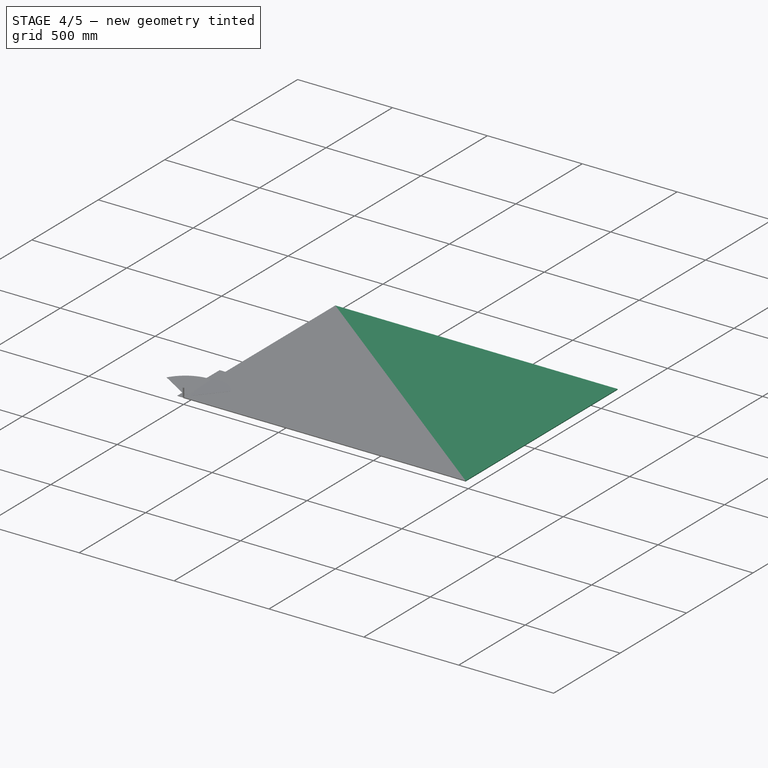
[diagram: stage 4 of 5 — iso view after this stage's code; geometry added in this stage tinted green]
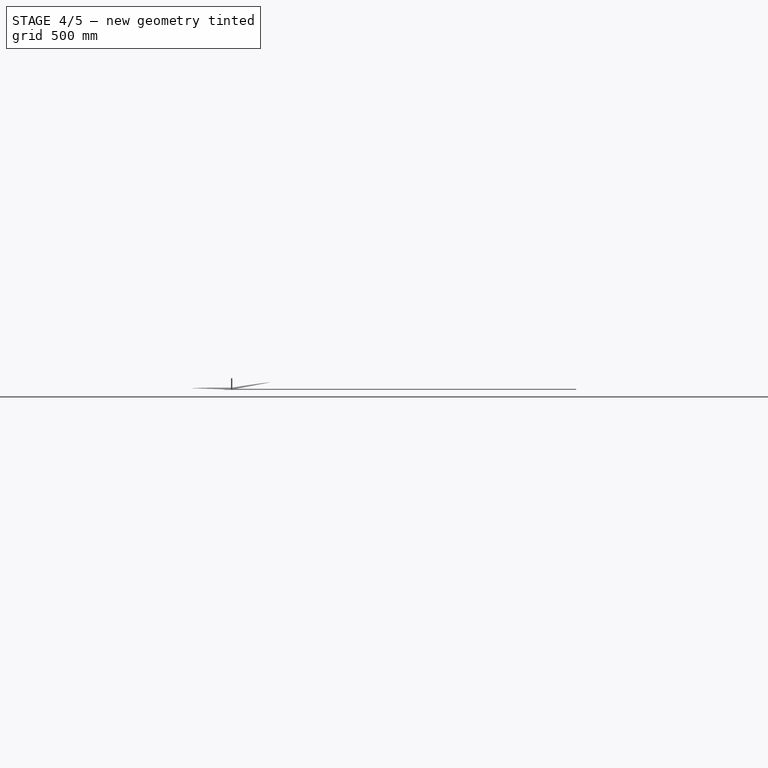
[diagram: stage 4 of 5 — front view after this stage's code; geometry added in this stage tinted green]
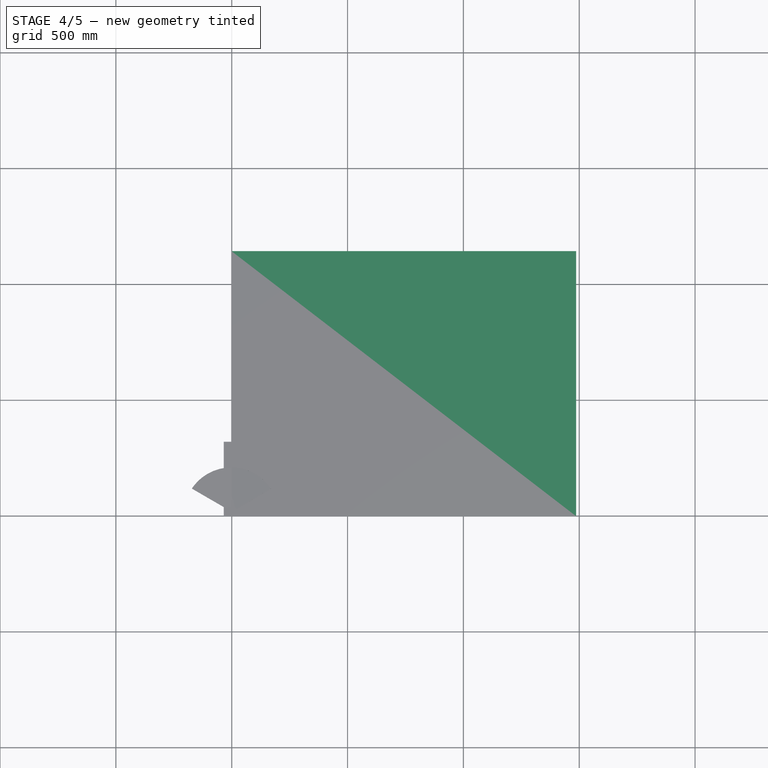
[diagram: stage 4 of 5 — top view after this stage's code; geometry added in this stage tinted green]
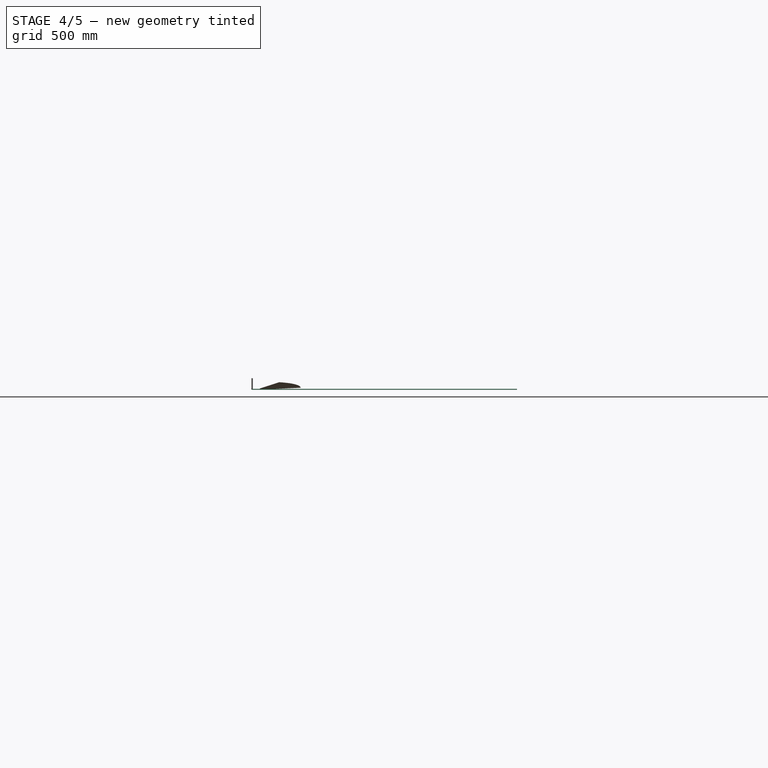
[diagram: stage 4 of 5 — right view after this stage's code; geometry added in this stage tinted green]
FEATURE [PartDesign::CoordinateSystem] Local_CS013
  AttacherType = Attacher::AttachEngine3D
  MapMode = 5
  Support = -> [XY_Plane015]
FEATURE [PartDesign::CoordinateSystem] Local_CS015
  AttacherType = Attacher::AttachEngine3D
  AttachmentOffset = pos=(0,0,157) rot=(0,0,1;0rad)
  MapMode = 6
  Placement = pos=(189.205,-90.7624,157) rot=(0,0,1;3.14159rad)
  Support = -> [Sketch003,XY_Plane001]
  expr: .AttachmentOffset.Base.z = <<main>>.basin_height
FEATURE [App::Link] Body001003005002
  AssemblyType = Part::Link
  AttachedBy = #Local_CS013
  AttachedTo = Body001001#Local_CS025
  AttachmentOffset = pos=(0,0,0) rot=(0,0,1;3.14159rad)
  LinkPlacement = pos=(0,0,157) rot=(0,0,1;3.14159rad)
  LinkedObject = -> Body001003005
  Placement = pos=(0,0,157) rot=(0,0,1;3.14159rad)
  SolverId = Asm4EE
  expr: Placement = Body001001.Placement * Local_CS025.Placement * AttachmentOffset * Local_CS013.Placement ^ -1
FEATURE [PartDesign::CoordinateSystem] Local_CS016
  AttacherType = Attacher::AttachEngine3D
  AttachmentOffset = pos=(0,0,0) rot=(0,0,1;0.523599rad)
  MapMode = 5
  Placement = pos=(0,0,0) rot=(0,0,1;0.523599rad)
  Support = -> [XY_Plane015]
FEATURE [PartDesign::Plane] DatumPlane015
  Length = 495.835
  MapMode = 5
  Placement = pos=(0,0,0) rot=(0,0,1;0.523599rad)
  ResizeMode = 0
  Support = -> [Local_CS016]
  Width = 455.324
FEATURE [PartDesign::Plane] DatumPlane016
  Length = 403.575
  MapMode = 4
  Placement = pos=(86.82,84.1932,0) rot=(0.377964,0.654654,0.654654;2.41886rad)
  ResizeMode = 0
  Width = 77.428
FEATURE [Sketcher::SketchObject] Sketch048
  FullyConstrained = true
  MapMode = 5
  Support = -> [XY_Plane016]
  expr: Constraints[1] = Sketch003.Constraints.max_r + 2.5mm
  sketch-geometry (1):
    g0: Circle CenterX=0 CenterY=0 CenterZ=0 NormalX=0 NormalY=0 NormalZ=1 AngleXU=0 Radius=212.348
  constraints (2):
    c: Coincident(g0,g-1)
    c: Radius(g0) = 212.348
FEATURE [PartDesign::Pad] Pad013
  Direction = (0,0,1)
  Length = 3
  Length2 = 10
  Profile = -> Sketch048
  ReferenceAxis = -> Sketch048 [N_Axis]
  Type = 0
  expr: Length = <<main>>.thickness
FEATURE [PartDesign::Body] Body001003005003003
  Group = -> [Sketch052,Pad014,Pocket019,Mirrored019,Local_CS018,Sketch055]
  Origin = -> Origin016
  Tip = -> Mirrored019
FEATURE [PartDesign::SubShapeBinder] Binder005
  AttacherType = Attacher::AttachEngine3D
  AttachmentOffset = pos=(0,0,0) rot=(0,0,1;1.0472rad)
  BindCopyOnChange = 0
  BindMode = 0
  ClaimChildren = false
  Context = -> Body001003005003 [Binder005.]
  Fuse = false
  MakeFace = true
  MapMode = 5
  OffsetFill = false
  OffsetIntersection = false
  OffsetJoinType = 0
  OffsetOpenResult = false
  PartialLoad = false
  Placement = pos=(0,0,0) rot=(0,0,1;1.0472rad)
  Relative = false
  _Version = 2
FEATURE [PartDesign::Plane] DatumPlane018
  Length = 613.419
  MapMode = 4
  Placement = pos=(0,0,0) rot=(0.186157,0.694747,0.694747;2.77349rad)
  ResizeMode = 0
  Support = -> [Binder005]
  Width = 84.0405
FEATURE [Sketcher::SketchObject] Sketch057
  AttachmentOffset = pos=(196.563,-11.5,0) rot=(0,0,1;0rad)
  FullyConstrained = true
  MapMode = 5
  Placement = pos=(4.62e-14,196.563,-11.5) rot=(0.57735,0.57735,0.57735;2.0944rad)
  Support = -> [YZ_Plane015]
  expr: .AttachmentOffset.Base.x = Sketch049.AttachmentOffset.Base.y
  expr: .AttachmentOffset.Base.y = -23mm / 2
  expr: Constraints[1] = <<main>>.rivet_d
  sketch-geometry (1):
    g0: Circle CenterX=0 CenterY=0 CenterZ=0 NormalX=0 NormalY=0 NormalZ=1 AngleXU=0 Radius=1.7
  constraints (2):
    c: Coincident(g0,g-1)
    c: Diameter(g0) = 3.4
FEATURE [Sketcher::SketchObject] Sketch058
  AttachmentOffset = pos=(180.388,-11.5,0) rot=(0,0,1;0rad)
  FullyConstrained = true
  MapMode = 5
  Placement = pos=(4.26e-14,180.388,-11.5) rot=(0.57735,0.57735,0.57735;2.0944rad)
  Support = -> [YZ_Plane015]
  expr: .AttachmentOffset.Base.x = Binder004.Placement.Base.y
  expr: .AttachmentOffset.Base.y = Sketch057.AttachmentOffset.Base.y
  expr: Constraints[1] = <<main>>.rivet_d
  sketch-geometry (1):
    g0: Circle CenterX=0 CenterY=0 CenterZ=0 NormalX=0 NormalY=0 NormalZ=1 AngleXU=0 Radius=1.7
  constraints (2):
    c: Coincident(g0,g-1)
    c: Diameter(g0) = 3.4
FEATURE [PartDesign::Pocket] Pocket027
  BaseFeature = -> Pad013
  Direction = (-1,2e-16,-3e-16)
  Length = 5
  Length2 = 5
  Midplane = true
  Profile = -> Sketch058
  ReferenceAxis = -> Sketch058 [N_Axis]
  Type = 1
FEATURE [Sketcher::SketchObject] Sketch059
  AttachmentOffset = pos=(196.563,11.5,0) rot=(0,0,1;0rad)
  FullyConstrained = true
  MapMode = 5
  Placement = pos=(4.11e-14,196.563,11.5) rot=(0.57735,0.57735,0.57735;2.0944rad)
  Support = -> [YZ_Plane001]
  expr: .AttachmentOffset.Base.x = Sketch057.AttachmentOffset.Base.x
  expr: .AttachmentOffset.Base.y = -Sketch057.AttachmentOffset.Base.y
  expr: Constraints[1] = <<main>>.rivet_d
  sketch-geometry (1):
    g0: Circle CenterX=0 CenterY=0 CenterZ=0 NormalX=0 NormalY=0 NormalZ=1 AngleXU=0 Radius=1.7
  constraints (2):
    c: Coincident(g0,g-1)
    c: Diameter(g0) = 3.4
FEATURE [Sketcher::SketchObject] Sketch060
  AttachmentOffset = pos=(180.388,11.5,0) rot=(0,0,1;0rad)
  FullyConstrained = true
  MapMode = 5
  Placement = pos=(3.75e-14,180.388,11.5) rot=(0.57735,0.57735,0.57735;2.0944rad)
  Support = -> [YZ_Plane001]
  expr: .AttachmentOffset.Base.x = Sketch058.AttachmentOffset.Base.x
  expr: .AttachmentOffset.Base.y = -Sketch058.AttachmentOffset.Base.y
  expr: Constraints[1] = <<main>>.rivet_d
  sketch-geometry (1):
    g0: Circle CenterX=0 CenterY=0 CenterZ=0 NormalX=0 NormalY=0 NormalZ=1 AngleXU=0 Radius=1.7
  constraints (2):
    c: Coincident(g0,g-1)
    c: Diameter(g0) = 3.4
FEATURE [PartDesign::CoordinateSystem] Local_CS021
  AttacherType = Attacher::AttachEngine3D
  AttachmentOffset = pos=(0,0,0) rot=(0,0,1;2.0944rad)
  MapMode = 5
  Placement = pos=(0,0,0) rot=(0,0,1;2.0944rad)
  Support = -> [XY_Plane016]
FEATURE [PartDesign::CoordinateSystem] Local_CS022
  AttacherType = Attacher::AttachEngine3D
  AttachmentOffset = pos=(0,0,0) rot=(0,0,-1;2.0944rad)
  MapMode = 5
  Placement = pos=(0,0,0) rot=(0,0,-1;2.0944rad)
  Support = -> [XY_Plane016]
FEATURE [PartDesign::Plane] DatumPlane019
  Length = 695.392
  MapMode = 5
  Placement = pos=(0,0,0) rot=(0,0,1;2.0944rad)
  ResizeMode = 0
  Support = -> [Local_CS021]
  Width = 695.266
FEATURE [PartDesign::Plane] DatumPlane020
  Length = 695.392
  MapMode = 5
  Placement = pos=(0,0,0) rot=(0,0,-1;2.0944rad)
  ResizeMode = 0
  Support = -> [Local_CS022]
  Width = 695.266
FEATURE [Sketcher::SketchObject] Sketch061
  AttachmentOffset = pos=(0,196.563,0) rot=(0,0,1;0rad)
  FullyConstrained = true
  MapMode = 5
  Placement = pos=(-170.228,-98.2813,0) rot=(0,0,1;2.0944rad)
  Support = -> [DatumPlane019]
  expr: .AttachmentOffset.Base.y = Sketch050.Placement.Base.y
  expr: .Constraints.cut_width = 13
  expr: Constraints[10] = Sketch050.Constraints[10]
  expr: Constraints[13] = Sketch050.Constraints[13]
  expr: Constraints[14] = Sketch050.Constraints[14]
  expr: Constraints[29] = Sketch050.Constraints[29]
  expr: Constraints[32] = Sketch050.Constraints[32]
  expr: Constraints[33] = Sketch050.Constraints[33]
  sketch-geometry (17):
    g0: LineSegment StartX=-13 StartY=-8.0875 StartZ=0 EndX=-13 EndY=8.0875 EndZ=0
    g1: ArcOfCircle CenterX=-13 CenterY=8.0875 CenterZ=0 NormalX=0 NormalY=0 NormalZ=1 AngleXU=0 Radius=1.5875 StartAngle=1.5708 EndAngle=4.71239
    g2: LineSegment StartX=-13 StartY=6.5 StartZ=0 EndX=9.825 EndY=6.5 EndZ=0
    g3: LineSegment StartX=9.825 StartY=6.5 StartZ=0 EndX=9.825 EndY=0 EndZ=0
    g4: LineSegment StartX=9.825 StartY=0 StartZ=0 EndX=13 EndY=0 EndZ=0
    g5: LineSegment StartX=13 StartY=0 StartZ=0 EndX=13 EndY=6.5 EndZ=0
    g6: LineSegment StartX=-13 StartY=9.675 StartZ=0 EndX=9.825 EndY=9.675 EndZ=0
    g7: ArcOfCircle CenterX=9.825 CenterY=6.5 CenterZ=0 NormalX=0 NormalY=0 NormalZ=1 AngleXU=0 Radius=3.175 StartAngle=1.743e-13 EndAngle=1.5708
    g8: GeomPoint X=9.825 Y=-6.5 Z=0
    g9: ArcOfCircle CenterX=-11.5 CenterY=11.5875 CenterZ=0 NormalX=0 NormalY=0 NormalZ=1 AngleXU=0 Radius=1.5875 StartAngle=1.5708 EndAngle=4.71239
    g10: LineSegment StartX=-11.5 StartY=10 StartZ=0 EndX=9.825 EndY=10 EndZ=0
    g11: LineSegment StartX=9.825 StartY=10 StartZ=0 EndX=9.825 EndY=0 EndZ=0
    g12: LineSegment StartX=9.825 StartY=0 StartZ=0 EndX=13 EndY=0 EndZ=0
    g13: LineSegment StartX=13 StartY=0 StartZ=0 EndX=13 EndY=10 EndZ=0
    g14: LineSegment StartX=-11.5 StartY=13.175 StartZ=0 EndX=9.825 EndY=13.175 EndZ=0
    g15: ArcOfCircle CenterX=9.825 CenterY=10 CenterZ=0 NormalX=0 NormalY=0 NormalZ=1 AngleXU=0 Radius=3.175 StartAngle=1e-16 EndAngle=1.5708
    g16: GeomPoint X=9.825 Y=-10 Z=0
  constraints (40):
    c: Horizontal(g2)
    c: PointOnObject(g3,g-1)
    c: Vertical(g3)
    c: Coincident(g4,g3)
    c: PointOnObject(g4,g-1)
    c: Coincident(g5,g4)
    c: Vertical(g5)
    c: Horizontal(g6)
    c: Tangent(g7,g5) = -1.5708
    c: Tangent(g7,g6) = 1.5708
    c: DistanceX(g4) = 13
    c: Tangent(g2,g1) = -1.5708
    c: Tangent(g6,g1) = 1.5708
    c: Diameter(g1) = 3.175
    c: DistanceX(g1) = -13
    c: Coincident(g7,g3)
    c: Coincident(g3,g2)
    c: Symmetric(g8,g2,g3)
    c: DistanceY(g8,g2) = 13  'cut_width'
    c: Horizontal(g10)
    c: PointOnObject(g11,g-1)
    c: Vertical(g11)
    c: Coincident(g12,g11)
    c: PointOnObject(g12,g-1)
    c: Coincident(g13,g12)
    c: Vertical(g13)
    c: Horizontal(g14)
    c: Tangent(g15,g13) = -1.5708
    c: Tangent(g15,g14) = 1.5708
    c: DistanceX(g12) = 13
    c: Tangent(g10,g9) = -1.5708
    c: Tangent(g14,g9) = 1.5708
    c: Diameter(g9) = 3.175
    c: DistanceX(g9) = -11.5
    c: Coincident(g15,g11)
    c: Coincident(g11,g10)
    c: Symmetric(g16,g10,g11)
    c: DistanceY(g16,g10) = 20  'cut_width'
    c: Coincident(g0,g1)
    c: Symmetric(g0,g0,g-1)
FEATURE [Sketcher::SketchObject] Sketch062
  AttachmentOffset = pos=(0,196.563,0) rot=(0,0,1;0rad)
  FullyConstrained = true
  MapMode = 5
  Placement = pos=(170.228,-98.2813,0) rot=(0,0,-1;2.0944rad)
  Support = -> [DatumPlane020]
  expr: .Constraints.cut_width = 13
  expr: AttachmentOffset = Sketch050.AttachmentOffset
  expr: Constraints[10] = Sketch050.Constraints[10]
  expr: Constraints[13] = Sketch050.Constraints[13]
  expr: Constraints[14] = Sketch050.Constraints[14]
  expr: Constraints[29] = Sketch050.Constraints[29]
  expr: Constraints[32] = Sketch050.Constraints[32]
  expr: Constraints[33] = Sketch050.Constraints[33]
  sketch-geometry (17):
    g0: LineSegment StartX=-13 StartY=-8.0875 StartZ=0 EndX=-13 EndY=8.0875 EndZ=0
    g1: ArcOfCircle CenterX=-13 CenterY=8.0875 CenterZ=0 NormalX=0 NormalY=0 NormalZ=1 AngleXU=0 Radius=1.5875 StartAngle=1.5708 EndAngle=4.71239
    g2: LineSegment StartX=-13 StartY=6.5 StartZ=0 EndX=9.825 EndY=6.5 EndZ=0
    g3: LineSegment StartX=9.825 StartY=6.5 StartZ=0 EndX=9.825 EndY=0 EndZ=0
    g4: LineSegment StartX=9.825 StartY=0 StartZ=0 EndX=13 EndY=0 EndZ=0
    g5: LineSegment StartX=13 StartY=0 StartZ=0 EndX=13 EndY=6.5 EndZ=0
    g6: LineSegment StartX=-13 StartY=9.675 StartZ=0 EndX=9.825 EndY=9.675 EndZ=0
    g7: ArcOfCircle CenterX=9.825 CenterY=6.5 CenterZ=0 NormalX=0 NormalY=0 NormalZ=1 AngleXU=0 Radius=3.175 StartAngle=1.743e-13 EndAngle=1.5708
    g8: GeomPoint X=9.825 Y=-6.5 Z=0
    g9: ArcOfCircle CenterX=-11.5 CenterY=11.5875 CenterZ=0 NormalX=0 NormalY=0 NormalZ=1 AngleXU=0 Radius=1.5875 StartAngle=1.5708 EndAngle=4.71239
    g10: LineSegment StartX=-11.5 StartY=10 StartZ=0 EndX=9.825 EndY=10 EndZ=0
    g11: LineSegment StartX=9.825 StartY=10 StartZ=0 EndX=9.825 EndY=0 EndZ=0
    g12: LineSegment StartX=9.825 StartY=0 StartZ=0 EndX=13 EndY=0 EndZ=0
    g13: LineSegment StartX=13 StartY=0 StartZ=0 EndX=13 EndY=10 EndZ=0
    g14: LineSegment StartX=-11.5 StartY=13.175 StartZ=0 EndX=9.825 EndY=13.175 EndZ=0
    g15: ArcOfCircle CenterX=9.825 CenterY=10 CenterZ=0 NormalX=0 NormalY=0 NormalZ=1 AngleXU=0 Radius=3.175 StartAngle=1e-16 EndAngle=1.5708
    g16: GeomPoint X=9.825 Y=-10 Z=0
  constraints (40):
    c: Horizontal(g2)
    c: PointOnObject(g3,g-1)
    c: Vertical(g3)
    c: Coincident(g4,g3)
    c: PointOnObject(g4,g-1)
    c: Coincident(g5,g4)
    c: Vertical(g5)
    c: Horizontal(g6)
    c: Tangent(g7,g5) = -1.5708
    c: Tangent(g7,g6) = 1.5708
    c: DistanceX(g4) = 13
    c: Tangent(g2,g1) = -1.5708
    c: Tangent(g6,g1) = 1.5708
    c: Diameter(g1) = 3.175
    c: DistanceX(g1) = -13
    c: Coincident(g7,g3)
    c: Coincident(g3,g2)
    c: Symmetric(g8,g2,g3)
    c: DistanceY(g8,g2) = 13  'cut_width'
    c: Horizontal(g10)
    c: PointOnObject(g11,g-1)
    c: Vertical(g11)
    c: Coincident(g12,g11)
    c: PointOnObject(g12,g-1)
    c: Coincident(g13,g12)
    c: Vertical(g13)
    c: Horizontal(g14)
    c: Tangent(g15,g13) = -1.5708
    c: Tangent(g15,g14) = 1.5708
    c: DistanceX(g12) = 13
    c: Tangent(g10,g9) = -1.5708
    c: Tangent(g14,g9) = 1.5708
    c: Diameter(g9) = 3.175
    c: DistanceX(g9) = -11.5
    c: Coincident(g15,g11)
    c: Coincident(g11,g10)
    c: Symmetric(g16,g10,g11)
    c: DistanceY(g16,g10) = 20  'cut_width'
    c: Coincident(g0,g1)
    c: Symmetric(g0,g0,g-1)
FEATURE [Sketcher::SketchObject] Sketch063
  AttachmentOffset = pos=(0,180.388,0) rot=(0,0,1;0rad)
  FullyConstrained = true
  MapMode = 5
  Placement = pos=(-156.22,-90.1938,0) rot=(0,0,1;2.0944rad)
  Support = -> [DatumPlane019]
  expr: .Constraints.cut_width = Sketch051.Constraints[18]
  expr: AttachmentOffset = Sketch051.AttachmentOffset
  expr: Constraints[10] = Sketch051.Constraints[10]
  expr: Constraints[13] = Sketch051.Constraints[13]
  expr: Constraints[14] = Sketch051.Constraints[14]
  sketch-geometry (9):
    g0: ArcOfCircle CenterX=-11.5 CenterY=8.0875 CenterZ=0 NormalX=0 NormalY=0 NormalZ=1 AngleXU=0 Radius=1.5875 StartAngle=1.5708 EndAngle=4.71239
    g1: LineSegment StartX=-11.5 StartY=6.5 StartZ=0 EndX=9.825 EndY=6.5 EndZ=0
    g2: LineSegment StartX=9.825 StartY=6.5 StartZ=0 EndX=9.825 EndY=0 EndZ=0
    g3: LineSegment StartX=9.825 StartY=0 StartZ=0 EndX=13 EndY=0 EndZ=0
    g4: LineSegment StartX=13 StartY=0 StartZ=0 EndX=13 EndY=6.5 EndZ=0
    g5: LineSegment StartX=-11.5 StartY=9.675 StartZ=0 EndX=9.825 EndY=9.675 EndZ=0
    g6: ArcOfCircle CenterX=9.825 CenterY=6.5 CenterZ=0 NormalX=0 NormalY=0 NormalZ=1 AngleXU=0 Radius=3.175 StartAngle=0 EndAngle=1.5708
    g7: GeomPoint X=9.825 Y=-6.5 Z=0
    g8: LineSegment StartX=11.5 StartY=8.0875 StartZ=0 EndX=11.5 EndY=-8.0875 EndZ=0
  constraints (22):
    c: Horizontal(g1)
    c: PointOnObject(g2,g-1)
    c: Vertical(g2)
    c: Coincident(g3,g2)
    c: PointOnObject(g3,g-1)
    c: Coincident(g4,g3)
    c: Vertical(g4)
    c: Horizontal(g5)
    c: Tangent(g6,g4) = -1.5708
    c: Tangent(g6,g5) = 1.5708
    c: DistanceX(g3) = 13
    c: Tangent(g1,g0) = -1.5708
    c: Tangent(g5,g0) = 1.5708
    c: Diameter(g0) = 3.175
    c: DistanceX(g0) = -11.5
    c: Coincident(g6,g2)
    c: Coincident(g2,g1)
    c: Symmetric(g7,g1,g2)
    c: DistanceY(g7,g1) = 13  'cut_width'
    c: Vertical(g8)
    c: Symmetric(g0,g8,g-1)
    c: Horizontal(g8,g0)
FEATURE [Sketcher::SketchObject] Sketch064
  AttachmentOffset = pos=(0,180.388,0) rot=(0,0,1;0rad)
  FullyConstrained = true
  MapMode = 5
  Placement = pos=(156.22,-90.1938,0) rot=(0,0,-1;2.0944rad)
  Support = -> [DatumPlane020]
  expr: .Constraints.cut_width = Sketch051.Constraints[18]
  expr: AttachmentOffset = Sketch051.AttachmentOffset
  expr: Constraints[10] = Sketch051.Constraints[10]
  expr: Constraints[13] = Sketch051.Constraints[13]
  expr: Constraints[14] = Sketch051.Constraints[14]
  sketch-geometry (9):
    g0: ArcOfCircle CenterX=-11.5 CenterY=8.0875 CenterZ=0 NormalX=0 NormalY=0 NormalZ=1 AngleXU=0 Radius=1.5875 StartAngle=1.5708 EndAngle=4.71239
    g1: LineSegment StartX=-11.5 StartY=6.5 StartZ=0 EndX=9.825 EndY=6.5 EndZ=0
    g2: LineSegment StartX=9.825 StartY=6.5 StartZ=0 EndX=9.825 EndY=0 EndZ=0
    g3: LineSegment StartX=9.825 StartY=0 StartZ=0 EndX=13 EndY=0 EndZ=0
    g4: LineSegment StartX=13 StartY=0 StartZ=0 EndX=13 EndY=6.5 EndZ=0
    g5: LineSegment StartX=-11.5 StartY=9.675 StartZ=0 EndX=9.825 EndY=9.675 EndZ=0
    g6: ArcOfCircle CenterX=9.825 CenterY=6.5 CenterZ=0 NormalX=0 NormalY=0 NormalZ=1 AngleXU=0 Radius=3.175 StartAngle=0 EndAngle=1.5708
    g7: GeomPoint X=9.825 Y=-6.5 Z=0
    g8: LineSegment StartX=11.5 StartY=8.0875 StartZ=0 EndX=11.5 EndY=-8.0875 EndZ=0
  constraints (22):
    c: Horizontal(g1)
    c: PointOnObject(g2,g-1)
    c: Vertical(g2)
    c: Coincident(g3,g2)
    c: PointOnObject(g3,g-1)
    c: Coincident(g4,g3)
    c: Vertical(g4)
    c: Horizontal(g5)
    c: Tangent(g6,g4) = -1.5708
    c: Tangent(g6,g5) = 1.5708
    c: DistanceX(g3) = 13
    c: Tangent(g1,g0) = -1.5708
    c: Tangent(g5,g0) = 1.5708
    c: Diameter(g0) = 3.175
    c: DistanceX(g0) = -11.5
    c: Coincident(g6,g2)
    c: Coincident(g2,g1)
    c: Symmetric(g7,g1,g2)
    c: DistanceY(g7,g1) = 13  'cut_width'
    c: Vertical(g8)
    c: Symmetric(g0,g8,g-1)
    c: Horizontal(g8,g0)
FEATURE [PartDesign::CoordinateSystem] Local_CS023
  AttacherType = Attacher::AttachEngine3D
  AttachmentOffset = pos=(0,0,157) rot=(0,0,1;0rad)
  MapMode = 5
  Placement = pos=(0,109.238,157) rot=(0,0,1;0rad)
  Support = -> [Local_CS011]
  expr: .AttachmentOffset.Base.z = <<main>>.basin_height
FEATURE [Sketcher::SketchObject] Sketch070
  AttachmentOffset = pos=(0,770,0) rot=(0,0,1;0rad)
  FullyConstrained = true
  MapMode = 5
  Placement = pos=(0,109.238,770) rot=(0.57735,0.57735,0.57735;2.0944rad)
  Support = -> [DatumPlane]
  expr: .AttachmentOffset.Base.y = <<main>>.total_length - Constraints[5]
  expr: Constraints[9] = <<main>>.top_cover_length
  sketch-geometry (4):
    g0: LineSegment StartX=54.2 StartY=4 StartZ=0 EndX=-54.2 EndY=4 EndZ=0
    g1: LineSegment StartX=-54.2 StartY=4 StartZ=0 EndX=-54.2 EndY=0 EndZ=0
    g2: LineSegment StartX=-54.2 StartY=0 StartZ=0 EndX=54.2 EndY=0 EndZ=0
    g3: LineSegment StartX=54.2 StartY=0 StartZ=0 EndX=54.2 EndY=4 EndZ=0
  constraints (11):
    c: Coincident(g2,g3)
    c: Coincident(g3,g0)
    c: Horizontal(g2)
    c: Vertical(g1)
    c: Vertical(g3)
    c: DistanceY(g0) = 4
    c: Coincident(g1,g2)
    c: Coincident(g1,g0)
    c: PointOnObject(g1,g-1)
    c: DistanceX(g0,g0) = 108.4
    c: Symmetric(g0,g0,g-2)
FEATURE [PartDesign::Plane] DatumPlane021
  AttachmentOffset = pos=(0,0,0) rot=(0,-1,0;1.0472rad)
  Length = 621.24
  MapMode = 5
  Placement = pos=(0,0,0) rot=(0.935113,0.250563,0.250563;1.63783rad)
  ResizeMode = 0
  Support = -> [YZ_Plane001]
  Width = 924.831
FEATURE [PartDesign::Plane] DatumPlane022
  AttachmentOffset = pos=(0,0,16) rot=(0,0,1;0rad)
  Length = 439.155
  MapMode = 4
  Placement = pos=(16,109.238,157) rot=(0.57735,0.57735,0.57735;2.0944rad)
  ResizeMode = 0
  Support = -> [Local_CS023]
  Width = 902.564
  expr: .AttachmentOffset.Base.z = <<main>>.end_face_width / 2
FEATURE [PartDesign::Mirrored] Mirrored027
  MirrorPlane = -> YZ_Plane001
FEATURE [PartDesign::CoordinateSystem] Local_CS024
  AttacherType = Attacher::AttachEngine3D
  AttachmentOffset = pos=(0,60,-10.3215) rot=(-1,0,0;0.066568rad)
  MapMode = 5
  Placement = pos=(0,60,-10.3215) rot=(-1,0,0;0.066568rad)
  Support = -> [XY_Plane]
  expr: .AttachmentOffset.Base.y = <<gutter>>.plane_middle
  expr: .AttachmentOffset.Base.z = (-6.929mm - 13.714mm) / 2
  expr: .AttachmentOffset.Rotation.Roll = -<<gutter>>.bend_angle
FEATURE [App::Link] gutter001  label="gutter002"
  AssemblyType = Part::Link
  AttachedBy = #Local_CS024
  AttachedTo = Body001001#Local_CS037
  AttachmentOffset = pos=(0,1,0) rot=(-1,0,0;3.14159rad)
  LinkPlacement = pos=(0,170.791,736.693) rot=(-1,0,0;3.07502rad)
  LinkedObject = -> Body
  Placement = pos=(0,170.791,736.693) rot=(-1,0,0;3.07502rad)
  SolverId = Asm4EE
  expr: Placement = Body001001.Placement * Local_CS037.Placement * AttachmentOffset * Local_CS024.Placement ^ -1
FEATURE [Sketcher::SketchObject] Sketch075
  AttachmentOffset = pos=(0,0,0) rot=(0,0,1;3.14159rad)
  FullyConstrained = true
  MapMode = 5
  Placement = pos=(0,0,0) rot=(0,0,1;3.14159rad)
  Support = -> [XY_Plane016]
  expr: Constraints[12] = 186.5mm - 3.175mm
  expr: Constraints[6] = <<main>>.rivet_d
  sketch-geometry (6):
    g0: Circle CenterX=64.8152 CenterY=64.8152 CenterZ=0 NormalX=0 NormalY=0 NormalZ=1 AngleXU=0 Radius=1.7
    g1: Circle CenterX=64.8152 CenterY=-64.8152 CenterZ=0 NormalX=0 NormalY=0 NormalZ=1 AngleXU=0 Radius=1.7
    g2: Circle CenterX=-64.8152 CenterY=-64.8152 CenterZ=0 NormalX=0 NormalY=0 NormalZ=1 AngleXU=0 Radius=1.7
    g3: Circle CenterX=-64.8152 CenterY=64.8152 CenterZ=0 NormalX=0 NormalY=0 NormalZ=1 AngleXU=0 Radius=1.7
    g4: LineSegment StartX=-64.8152 StartY=64.8152 StartZ=0 EndX=64.8152 EndY=64.8152 EndZ=0
    g5: LineSegment StartX=64.8152 StartY=64.8152 StartZ=0 EndX=64.8152 EndY=-64.8152 EndZ=0
  constraints (13):
    c: Symmetric(g3,g0,g-2)
    c: Symmetric(g0,g1,g-1)
    c: Symmetric(g0,g2,g-1)
    c: Equal(g0,g3)
    c: Equal(g0,g2)
    c: Equal(g0,g1)
    c: Diameter(g0) = 3.4
    c: Coincident(g4,g3)
    c: Coincident(g4,g0)
    c: Coincident(g5,g0)
    c: Coincident(g5,g1)
    c: Equal(g5,g4)
    c: Distance(g2,g0) = 183.325
FEATURE [PartDesign::Pocket] Pocket036
  BaseFeature = -> Pocket027
  Direction = (0,0,-1)
  Length = 5
  Length2 = 5
  Midplane = true
  Profile = -> Sketch075
  ReferenceAxis = -> Sketch075 [N_Axis]
  Type = 1
FEATURE [Sketcher::SketchObject] Sketch076
  FullyConstrained = true
  MapMode = 5
  Support = -> [XY_Plane025]
  expr: Constraints[1] = (180mm - 11.5mm) * 2
  sketch-geometry (1):
    g0: Circle CenterX=0 CenterY=0 CenterZ=0 NormalX=0 NormalY=0 NormalZ=1 AngleXU=0 Radius=168.5
  constraints (2):
    c: Coincident(g0,g-1)
    c: Diameter(g0) = 337
FEATURE [PartDesign::Pad] Pad020
  Direction = (0,0,1)
  Length = 3
  Length2 = 10
  Profile = -> Sketch076
  ReferenceAxis = -> Sketch076 [N_Axis]
  Type = 0
FEATURE [Sketcher::SketchObject] Sketch078
  FullyConstrained = true
  MapMode = 5
  Placement = pos=(0,0,0) rot=(1,0,0;1.5708rad)
  Support = -> [XZ_Plane025]
FEATURE [Sketcher::SketchObject] Sketch079
  FullyConstrained = true
  MapMode = 5
  Placement = pos=(0,0,0) rot=(0.57735,0.57735,0.57735;2.0944rad)
  Support = -> [YZ_Plane025]
  expr: Constraints[8] = <<main>>.basin_height
  sketch-geometry (3):
    g0: LineSegment StartX=15 StartY=0 StartZ=0 EndX=0 EndY=0 EndZ=0
    g1: LineSegment StartX=0 StartY=0 StartZ=0 EndX=0 EndY=157 EndZ=0
    g2: LineSegment StartX=0 StartY=157 StartZ=0 EndX=15 EndY=157 EndZ=0
  constraints (9):
    c: PointOnObject(g0,g-1)
    c: Coincident(g0,g-1)
    c: Coincident(g1,g0)
    c: PointOnObject(g1,g-2)
    c: Coincident(g2,g1)
    c: Horizontal(g2)
    c: DistanceX(g0,g0) = 15
    c: Vertical(g0,g2)
    c: DistanceY(g1) = 157
FEATURE [PartDesign::FeaturePython] BaseBend  # WARN: FeaturePython — macro-defined, semantics opaque (R4)
  BendSide = 0
  BendSketch = -> Sketch079
  MidPlane = true
  Reverse = false
  length = 15
  radius = 2
  thickness = 1
FEATURE [Sketcher::SketchObject] Sketch080
  AttachmentOffset = pos=(0,7.5,0) rot=(0,0,1;0rad)
  FullyConstrained = true
  MapMode = 5
  Placement = pos=(0,7.5,0) rot=(0,0,1;0rad)
  Support = -> [XY_Plane026]
  sketch-geometry (1):
    g0: Circle CenterX=0 CenterY=0 CenterZ=0 NormalX=0 NormalY=0 NormalZ=1 AngleXU=0 Radius=1.65
  constraints (3):
    c: PointOnObject(g0,g-2)
    c: Diameter(g0) = 3.3
    c: DistanceY(g0) = 0
FEATURE [PartDesign::Pocket] Pocket039
  BaseFeature = -> BaseBend
  Direction = (0,0,-1)
  Length = 5
  Length2 = 5
  Profile = -> Sketch080
  ReferenceAxis = -> Sketch080 [N_Axis]
  Reversed = true
  Type = 1
FEATURE [Sketcher::SketchObject] Sketch081
  FullyConstrained = true
  MapMode = 5
  Support = -> [XY_Plane026]
  sketch-geometry (3):
    g0: ArcOfCircle CenterX=4.5 CenterY=12 CenterZ=0 NormalX=0 NormalY=0 NormalZ=1 AngleXU=0 Radius=3 StartAngle=1e-16 EndAngle=1.57079
    g1: LineSegment StartX=4.50001 StartY=15 StartZ=0 EndX=7.5 EndY=15 EndZ=0
    g2: LineSegment StartX=7.5 StartY=12 StartZ=0 EndX=7.5 EndY=15 EndZ=0
  constraints (9):
    c: Diameter(g0) = 6
    c: Coincident(g1,g0)
    c: Tangent(g1,g0)
    c: Coincident(g2,g1)
    c: Vertical(g2)
    c: Horizontal(g1)
    c: DistanceX(g1) = 7.5
    c: DistanceY(g1) = 15
    c: Tangent(g2,g0) = -1.5708
FEATURE [PartDesign::Pocket] Pocket040
  BaseFeature = -> Pocket039
  Direction = (0,0,-1)
  Length = 5
  Length2 = 5
  Midplane = true
  Profile = -> Sketch081
  ReferenceAxis = -> Sketch081 [N_Axis]
  Type = 1
FEATURE [PartDesign::Mirrored] Mirrored028
  BaseFeature = -> Pocket040
  MirrorPlane = -> Sketch081 [V_Axis]
  Originals = -> [Pocket040]
FEATURE [Sketcher::SketchObject] Sketch118
  FullyConstrained = true
  MapMode = 5
  Placement = pos=(0,0,0) rot=(0.57735,0.57735,0.57735;2.0944rad)
  Support = -> [YZ_Plane037]
  sketch-geometry (4):
    g0: LineSegment StartX=60 StartY=130 StartZ=0 EndX=160 EndY=130 EndZ=0
    g1: LineSegment StartX=160 StartY=130 StartZ=0 EndX=160 EndY=180 EndZ=0
    g2: LineSegment StartX=160 StartY=180 StartZ=0 EndX=60 EndY=180 EndZ=0
    g3: LineSegment StartX=60 StartY=180 StartZ=0 EndX=60 EndY=130 EndZ=0
  constraints (12):
    c: Coincident(g0,g1)
    c: Coincident(g1,g2)
    c: Coincident(g2,g3)
    c: Coincident(g3,g0)
    c: Horizontal(g0)
    c: Horizontal(g2)
    c: Vertical(g1)
    c: Vertical(g3)
    c: DistanceY(g3,g3) = 50  'height'
    c: DistanceX(g0,g0) = 100  'length'
    c: DistanceX(g0) = 60
    c: DistanceY(g0) = 130
FEATURE [Sketcher::SketchObject] Sketch119
  AttachmentOffset = pos=(180,12.5,0) rot=(0,0,1;0rad)
  FullyConstrained = true
  MapMode = 5
  Placement = pos=(3.72e-14,180,12.5) rot=(0.57735,0.57735,0.57735;2.0944rad)
  Support = -> [YZ_Plane001]
  expr: .AttachmentOffset.Base.y = Sketch106.AttachmentOffset.Base.y
  expr: Constraints[1] = <<main>>.rivet_d
  sketch-geometry (1):
    g0: Circle CenterX=0 CenterY=0 CenterZ=0 NormalX=0 NormalY=0 NormalZ=1 AngleXU=0 Radius=1.7
  constraints (2):
    c: Coincident(g0,g-1)
    c: Diameter(g0) = 3.4
FEATURE [PartDesign::SubShapeBinder] Binder036
  BindCopyOnChange = 0
  BindMode = 0
  ClaimChildren = false
  Context = -> Body001003005003 [Binder036.]
  Fuse = false
  MakeFace = true
  OffsetFill = false
  OffsetIntersection = false
  OffsetJoinType = 0
  OffsetOpenResult = false
  PartialLoad = false
  Placement = pos=(13,180,0) rot=(0,0,1;1.5708rad)
  Relative = true
  Support = -> [Body_7[Pocket061.Sketch105.]]
  _Version = 2
  expr: .Placement.Base.x = <<main>>.end_face_width / 2 - <<main>>.thickness
  expr: .Placement.Base.y = Sketch119.AttachmentOffset.Base.x
FEATURE [PartDesign::Pocket] Pocket074
  BaseFeature = -> Pocket036
  Direction = (0,0,-1)
  Length = 5
  Length2 = 5
  Midplane = true
  Profile = -> Binder036
  Type = 1
FEATURE [PartDesign::Mirrored] Mirrored
  MirrorPlane = -> YZ_Plane015
FEATURE [PartDesign::PolarPattern] PolarPattern015
  Angle = 360
  Axis = -> Z_Axis015
  Occurrences = 3
FEATURE [PartDesign::MultiTransform] MultiTransform
  BaseFeature = -> Pocket074
  Originals = -> [Pocket074]
  Transformations = -> [Mirrored,PolarPattern015]
FEATURE [PartDesign::Pocket] Pocket087
  BaseFeature = -> MultiTransform
  Direction = (0,0,-1)
  Length = 5
  Length2 = 5
  Midplane = true
  Profile = -> Binder023
  Type = 1
FEATURE [PartDesign::PolarPattern] PolarPattern018
  Angle = 120
  Axis = -> Z_Axis015
  BaseFeature = -> Pocket087
  Occurrences = 2
  Originals = -> [Pocket087]
FEATURE [PartDesign::SubShapeBinder] Binder044
  BindCopyOnChange = 0
  BindMode = 0
  ClaimChildren = false
  Context = -> Body001003005003011 [Binder044.]
  Fuse = false
  MakeFace = true
  OffsetFill = false
  OffsetIntersection = false
  OffsetJoinType = 0
  OffsetOpenResult = false
  PartialLoad = false
  Relative = true
  Support = -> [Body001003005003[Pocket036.Sketch075.]]
  _Version = 2
FEATURE [PartDesign::SubShapeBinder] Binder045
  BindCopyOnChange = 0
  BindMode = 0
  ClaimChildren = false
  Context = -> Body001003005003011 [Binder045.]
  Fuse = false
  MakeFace = true
  OffsetFill = false
  OffsetIntersection = false
  OffsetJoinType = 0
  OffsetOpenResult = false
  PartialLoad = false
  Placement = pos=(0,0,0) rot=(0,0,1;0.785398rad)
  Relative = true
  Support = -> [Body001003005003[Pocket036.Sketch075.]]
  _Version = 2
FEATURE [PartDesign::Pocket] Pocket088
  BaseFeature = -> Pad020
  Direction = (0,0,-1)
  Length = 5
  Length2 = 5
  Midplane = true
  Profile = -> Binder044
  Type = 1
FEATURE [PartDesign::Hole] Hole
  BaseFeature = -> Pocket088
  CustomThreadClearance = 0
  Depth = 25
  DepthType = 0
  Diameter = 15.5
  DrillForDepth = false
  DrillPoint = 1
  DrillPointAngle = 118
  HoleCutCountersinkAngle = 90
  HoleCutCustomValues = false
  HoleCutDepth = 0
  HoleCutDiameter = 6.1
  HoleCutType = 0
  ModelThread = false
  Profile = -> Binder045
  Reversed = true
  Tapered = false
  TaperedAngle = 90
  ThreadClass = 0
  ThreadDepth = 25
  ThreadDepthType = 0
  ThreadDirection = 0
  ThreadFit = 0
  ThreadSize = 0
  ThreadType = 0
  Threaded = false
  UseCustomThreadClearance = false
FEATURE [Sketcher::SketchObject] Sketch132
  FullyConstrained = true
  MapMode = 5
  Support = -> [XY_Plane016]
  expr: Constraints[1] = Sketch048.Constraints[1]
  sketch-geometry (3):
    g0: Circle CenterX=0 CenterY=0 CenterZ=0 NormalX=0 NormalY=0 NormalZ=1 AngleXU=0 Radius=212.348
    g1: Circle CenterX=0 CenterY=0 CenterZ=0 NormalX=0 NormalY=0 NormalZ=1 AngleXU=0 Radius=202.348
    g2: LineSegment StartX=202.348 StartY=0 StartZ=0 EndX=212.348 EndY=0 EndZ=0
  constraints (8):
    c: Coincident(g0,g-1)
    c: Radius(g0) = 212.348
    c: Coincident(g1,g0)
    c: PointOnObject(g2,g1)
    c: PointOnObject(g2,g0)
    c: Horizontal(g2)
    c: PointOnObject(g0,g2)
    c: DistanceX(g2,g2) = 10
FEATURE [PartDesign::Pad] Pad030
  BaseFeature = -> PolarPattern018
  Direction = (0,0,1)
  Length = 3
  Length2 = 10
  Profile = -> Sketch132
  ReferenceAxis = -> Sketch132 [N_Axis]
  Type = 0
  expr: Length = Pad013.Length
FEATURE [PartDesign::Body] Body001003005003015006  label="Unfold_main"
  BaseFeature = -> Unfold011
  Group = -> [BaseFeature001,Pad031]
  Origin = -> Origin042
  Tip = -> Pad031
FEATURE [App::DocumentObjectGroup] Group003  label="main001"
  Group = -> [Unfold_Sketch_bends012,Body001003005003015006,Unfold011]
FEATURE [Part::Feature] Unfold  label="Unfold_tech_mid"
  shape: bbox 10 x 180.2 x 0.3 mm, 9 faces (baked)
FEATURE [Sketcher::SketchObject] Unfold_Sketch_bends  label="bends_tech_mid"
  FullyConstrained = false
  sketch-geometry (2):
    g0: LineSegment StartX=5 StartY=-150.389 StartZ=0 EndX=-5 EndY=-150.389 EndZ=0
    g1: LineSegment StartX=5 StartY=0.20365 StartZ=0 EndX=-5 EndY=0.20365 EndZ=0
FEATURE [App::DocumentObjectGroup] Group004  label="tech_mid"
  Group = -> [Unfold,Unfold_Sketch_bends]
FEATURE [Part::Feature] Unfold012  label="Unfold_tech_pillar"
  shape: bbox 49.94 x 203.3 x 0.302 mm, 36 faces (baked)
FEATURE [Sketcher::SketchObject] Unfold_Sketch_bends013  label="bends_tech_pillar"
  FullyConstrained = false
  sketch-geometry (5):
    g0: LineSegment StartX=12.5 StartY=-153.447 StartZ=0 EndX=-12.5 EndY=-153.447 EndZ=0
    g1: LineSegment StartX=-37.4413 StartY=-2.81566 StartZ=0 EndX=-15.7513 EndY=-2.81566 EndZ=0
    g2: LineSegment StartX=-15.7513 StartY=-150.447 StartZ=0 EndX=-37.4413 EndY=-150.447 EndZ=0
    g3: LineSegment StartX=-12.6257 StartY=-150.321 StartZ=0 EndX=-12.6257 EndY=-2.94133 EndZ=0
    g4: LineSegment StartX=12.5 StartY=0.184336 StartZ=0 EndX=-12.5 EndY=0.184336 EndZ=0
FEATURE [App::DocumentObjectGroup] Group005  label="tech_pillar"
  Group = -> [Unfold012,Unfold_Sketch_bends013]
FEATURE [Part::Feature] Unfold013  label="Unfold_gutter"
  shape: bbox 66.98 x 147 x 0.3 mm, 53 faces (baked)
FEATURE [Sketcher::SketchObject] Unfold_Sketch_bends014  label="bends_gutter"
  FullyConstrained = false
  sketch-geometry (2):
    g0: LineSegment StartX=8.61566 StartY=3 StartZ=0 EndX=8.61566 EndY=150 EndZ=0
    g1: LineSegment StartX=-8.61566 StartY=150 StartZ=0 EndX=-8.61566 EndY=3 EndZ=0
FEATURE [App::DocumentObjectGroup] Group006  label="gutter003"
  Group = -> [Unfold013,Unfold_Sketch_bends014]
FEATURE [Part::Feature] Unfold014
  Placement = pos=(0,0,0) rot=(0.707107,0.707107,0;3.14159rad)
  shape: bbox 208.4 x 155.3 x 0.302 mm, 27 faces (baked)
FEATURE [Sketcher::SketchObject] Unfold_Sketch_bends015  label="Unfold_Sketch_bends"
  FullyConstrained = false
  sketch-geometry (2):
    g0: LineSegment StartX=-54.2 StartY=-41.3157 StartZ=0 EndX=54.2 EndY=-41.3157 EndZ=0
    g1: LineSegment StartX=-54.2 StartY=41.3157 StartZ=0 EndX=54.2 EndY=41.3157 EndZ=0
FEATURE [PartDesign::FeatureBase] BaseFeature002
  BaseFeature = -> Unfold014
  Placement = pos=(0,0,0) rot=(0.707107,0.707107,0;3.14159rad)
  expr: Placement = Unfold014.Placement
FEATURE [PartDesign::Pad] Pad032
  BaseFeature = -> BaseFeature002
  Direction = (0,2e-16,1)
  Length = 2.7
  Length2 = 10
  Placement = pos=(0,0,0) rot=(0.707107,0.707107,0;3.14159rad)
  Profile = -> BaseFeature002 [Face2]
  Type = 0
FEATURE [PartDesign::Body] Body001003005003015007  label="Unfold_top"
  BaseFeature = -> Unfold014
  Group = -> [BaseFeature002,Pad032]
  Origin = -> Origin043
  Tip = -> Pad032
FEATURE [App::DocumentObjectGroup] Group007  label="top"
  Group = -> [Unfold014,Unfold_Sketch_bends015,Body001003005003015007]
FEATURE [App::FeaturePython] SetupSheet  # Path/CAM operation (typed FeaturePython)
  ClearanceHeightExpression = OpStockZMax+SetupSheet.ClearanceHeightOffset
  ClearanceHeightOffset = 5
  CoolantMode = 0
  CoolantModes = None | Flood | Mist
  FinalDepthExpression = -0.1 mm
  HorizRapid = 0
  ProfileDirection = 1
  ProfileSide = 0
  ProfileUseComp = true
  ProfileprocessCircles = true
  ProfileprocessHoles = true
  ProfileprocessPerimeter = true
  SafeHeightExpression = OpStockZMax+SetupSheet.SafeHeightOffset
  SafeHeightOffset = 3
  StartDepthExpression = 3 mm
  StepDownExpression = 4 mm
  VertRapid = 0
FEATURE [Part::FeaturePython] Clone  label="Model-Unfold_gutter"  # Draft clone (typed FeaturePython)
  AttacherType = Attacher::AttachEngine3D
  Fuse = false
  Objects = -> [Unfold013]
  PathResource = Model
  Placement = pos=(1049,775,0) rot=(0,0,1;0rad)
  Scale = (1,1,1)
FEATURE [Part::FeaturePython] Clone001  label="Model-Unfold_gutter001"  # Draft clone (typed FeaturePython)
  AttacherType = Attacher::AttachEngine3D
  Fuse = false
  Objects = -> [Unfold013]
  PathResource = Model
  Placement = pos=(1012,1050,0) rot=(0,0,1;3.14159rad)
  Scale = (1,1,1)
FEATURE [Part::FeaturePython] Clone002  label="Model-Unfold_gutter002"  # Draft clone (typed FeaturePython)
  AttacherType = Attacher::AttachEngine3D
  Fuse = false
  Objects = -> [Unfold013]
  PathResource = Model
  Placement = pos=(1414,591,0) rot=(0,0,1;1.5708rad)
  Scale = (1,1,1)
FEATURE [Part::FeaturePython] Clone004  label="Model-Unfold_tech_mid"  # Draft clone (typed FeaturePython)
  AttacherType = Attacher::AttachEngine3D
  Fuse = false
  Objects = -> [Unfold]
  PathResource = Model
  Placement = pos=(966,700,0) rot=(0,0,-1;1.06465rad)
  Scale = (1,1,1)
FEATURE [Part::FeaturePython] Clone005  label="Model-Unfold_tech_pillar"  # Draft clone (typed FeaturePython)
  AttacherType = Attacher::AttachEngine3D
  Fuse = false
  Objects = -> [Unfold012]
  PathResource = Model
  Placement = pos=(300,700,0) rot=(0,0,1;1.5708rad)
  Scale = (1,1,1)
FEATURE [Part::FeaturePython] Clone006  label="Model-Unfold_tech_pillar001"  # Draft clone (typed FeaturePython)
  AttacherType = Attacher::AttachEngine3D
  Fuse = false
  Objects = -> [Unfold012]
  PathResource = Model
  Placement = pos=(1126,959,0) rot=(0,0,1;0rad)
  Scale = (1,1,1)
FEATURE [Part::FeaturePython] Clone007  label="Model-Unfold_top"  # Draft clone (typed FeaturePython)
  AttacherType = Attacher::AttachEngine3D
  Fuse = false
  Objects = -> [Body001003005003015007]
  PathResource = Model
  Placement = pos=(1399,85,0) rot=(0,0,1;3.97935rad)
  Scale = (1,1,1)
FEATURE [Part::FeaturePython] Clone008  label="Model-Unfold_top001"  # Draft clone (typed FeaturePython)
  AttacherType = Attacher::AttachEngine3D
  Fuse = false
  Objects = -> [Body001003005003015007]
  PathResource = Model
  Placement = pos=(1397,257,0) rot=(0,0,1;3.87463rad)
  Scale = (1,1,1)
FEATURE [Part::FeaturePython] Clone009  label="Model-Unfold_top002"  # Draft clone (typed FeaturePython)
  AttacherType = Attacher::AttachEngine3D
  Fuse = false
  Objects = -> [Body001003005003015007]
  PathResource = Model
  Placement = pos=(1397,428,0) rot=(0,0,1;3.85718rad)
  Scale = (1,1,1)
FEATURE [Part::FeaturePython] Clone010  label="Model-basement"  # Draft clone (typed FeaturePython)
  AttacherType = Attacher::AttachEngine3D
  Fuse = false
  Objects = -> [Body001003005003]
  PathResource = Model
  Placement = pos=(436,930,0) rot=(0,0,1;0rad)
  Scale = (1,1,1)
FEATURE [Part::FeaturePython] Clone011  label="Model-basement2"  # Draft clone (typed FeaturePython)
  AttacherType = Attacher::AttachEngine3D
  Fuse = false
  Objects = -> [Body001003005003011]
  PathResource = Model
  Placement = pos=(1313,800,0) rot=(0,0,1;0rad)
  Scale = (1,1,1)
FEATURE [Path::FeaturePython] NZV6109015  label="NZV6109016"  # Path/CAM operation (typed FeaturePython)
  HorizFeed = 51.6667
  HorizRapid = 0
  SpindleDir = 0
  SpindleSpeed = 18000
  Tool = -> ToolBit001
  ToolNumber = 2
  VertFeed = 16.6667
  VertRapid = 0
  expr: HorizRapid = SetupSheet001.HorizRapid
  expr: VertRapid = SetupSheet001.VertRapid
FEATURE [App::DocumentObjectGroup] Tools001
  Group = -> [NZV6109015]
FEATURE [Part::Part2DObjectPython] Clone2D009  label="Model-bends_tech_pillar001"  # Draft 2D object (typed FeaturePython)
  Fuse = false
  Objects = -> [Unfold_Sketch_bends013]
  PathResource = Model
  Placement = pos=(1126,959,0) rot=(0,0,1;0rad)
  Scale = (1,1,1)
  expr: Placement = <<Model-Unfold_tech_pillar001>>.Placement
FEATURE [Path::FeaturePython] Engrave  # Path/CAM operation (typed FeaturePython)
  Active = true
  ClearanceHeight = 9
  CoolantMode = 0
  CycleTime = 00:07:50
  FinalDepth = 0.6
  OpFinalDepth = -7
  OpStartDepth = 3
  OpStockZMax = 4
  OpStockZMin = -7.674e-13
  OpToolDiameter = 10
  SafeHeight = 7
  StartDepth = 3
  StartVertex = 0
  StepDown = 10
  ToolController = -> NZV6109015
  expr: ClearanceHeight = OpStockZMax + SetupSheet001.ClearanceHeightOffset
  expr: FinalDepth = 0.6mm
  expr: SafeHeight = OpStockZMax + SetupSheet001.SafeHeightOffset
  expr: StartDepth = 3mm
  expr: StepDown = OpToolDiameter
FEATURE [Path::FeaturePython] Deburr  # Path/CAM operation (typed FeaturePython)
  Active = true
  Base = -> [Clone023,Clone024,Clone025,Clone026]
  ClearanceHeight = 9
  CoolantMode = 0
  CycleTime = 00:03:04
  Direction = 0
  EntryPoint = 0
  ExtraDepth = 0
  Join = 0
  OpStockZMax = 4
  OpStockZMin = -7.674e-13
  OpToolDiameter = 10
  SafeHeight = 7
  Side = 0
  StartDepth = 4
  StepDown = 0
  ToolController = -> NZV6109015
  Width = 2.7
  expr: ClearanceHeight = OpStockZMax + SetupSheet001.ClearanceHeightOffset
  expr: SafeHeight = OpStockZMax + SetupSheet001.SafeHeightOffset
  expr: StepDown = 0mm
FEATURE [Part::FeaturePython] Clone027  label="Model-basement003"  # Draft clone (typed FeaturePython)
  AttacherType = Attacher::AttachEngine3D
  Fuse = false
  Objects = -> [Body001003005003]
  PathResource = Model
  Placement = pos=(436,930,0) rot=(0,0,1;0rad)
  Scale = (1,1,1)
  expr: Placement = <<Model-basement>>.Placement
FEATURE [Path::FeaturePython] Engrave001  # Path/CAM operation (typed FeaturePython)
  Active = true
  Base = -> [Clone027]
  ClearanceHeight = 9
  CoolantMode = 0
  CycleTime = 00:00:23
  FinalDepth = 2
  OpFinalDepth = -7
  OpStartDepth = 3
  OpStockZMax = 4
  OpStockZMin = -7.67e-13
  OpToolDiameter = 10
  SafeHeight = 7
  StartDepth = 3
  StartVertex = 0
  StepDown = 10
  ToolController = -> NZV6109015
  expr: ClearanceHeight = OpStockZMax + SetupSheet001.ClearanceHeightOffset
  expr: FinalDepth = 2
  expr: SafeHeight = OpStockZMax + SetupSheet001.SafeHeightOffset
  expr: StartDepth = 3mm
  expr: StepDown = OpToolDiameter
FEATURE [App::DocumentObjectGroup] Operations001
  Group = -> [Engrave,Deburr,Engrave001]
FEATURE [Path::FeaturePython] Job001  # Path/CAM operation (typed FeaturePython)
  CycleTime = 00:11:17
  Fixtures = G54
  GeometryTolerance = 0.01
  JobType = 0
  LastPostProcessDate = 2023-02-01 09:50:10.298629
  LastPostProcessOutput = <userpath>/2411-26D9/Job1.tap
  Model = -> Model002
  Operations = -> Operations001
  OrderOutputBy = 0
  PostProcessor = 1
  PostProcessorOutputFile = %d.%j.tap
  SetupSheet = -> SetupSheet001
  SplitOutput = false
  Stock = -> Stock001
  Tools = -> Tools001
FEATURE [App::FeaturePython] SetupSheet002  # Path/CAM operation (typed FeaturePython)
  ClearanceHeightExpression = OpStockZMax+SetupSheet002.ClearanceHeightOffset
  ClearanceHeightOffset = 5
  CoolantMode = 0
  CoolantModes = None | Flood | Mist
  FinalDepthExpression = -0.1 mm
  HorizRapid = 0
  ProfileDirection = 1
  ProfileSide = 0
  ProfileUseComp = true
  ProfileprocessCircles = true
  ProfileprocessHoles = true
  ProfileprocessPerimeter = true
  SafeHeightExpression = OpStockZMax+SetupSheet002.SafeHeightOffset
  SafeHeightOffset = 3
  StartDepthExpression = 3 mm
  StepDownExpression = 4 mm
  VertRapid = 0
FEATURE [Part::FeaturePython] Clone028  label="Model-Model-Unfold_gutter"  # Draft clone (typed FeaturePython)
  AttacherType = Attacher::AttachEngine3D
  Fuse = false
  Objects = -> [Clone]
  PathResource = Model
  Placement = pos=(1049,775,0) rot=(0,0,1;0rad)
  Scale = (1,1,1)
FEATURE [Part::FeaturePython] Clone029  label="Model-Model-Unfold_gutter001"  # Draft clone (typed FeaturePython)
  AttacherType = Attacher::AttachEngine3D
  Fuse = false
  Objects = -> [Clone001]
  PathResource = Model
  Placement = pos=(1012,1050,0) rot=(0,0,1;3.14159rad)
  Scale = (1,1,1)
FEATURE [Part::FeaturePython] Clone030  label="Model-Model-Unfold_gutter002"  # Draft clone (typed FeaturePython)
  AttacherType = Attacher::AttachEngine3D
  Fuse = false
  Objects = -> [Clone002]
  PathResource = Model
  Placement = pos=(1414,591,0) rot=(0,0,1;1.5708rad)
  Scale = (1,1,1)
FEATURE [Part::FeaturePython] Clone031  label="Model-Model-Unfold_tech_mid"  # Draft clone (typed FeaturePython)
  AttacherType = Attacher::AttachEngine3D
  Fuse = false
  Objects = -> [Clone004]
  PathResource = Model
  Placement = pos=(966,700,0) rot=(0,0,-1;1.06465rad)
  Scale = (1,1,1)
FEATURE [Part::FeaturePython] Clone032  label="Model-Model-Unfold_tech_pillar"  # Draft clone (typed FeaturePython)
  AttacherType = Attacher::AttachEngine3D
  Fuse = false
  Objects = -> [Clone005]
  PathResource = Model
  Placement = pos=(300,700,0) rot=(0,0,1;1.5708rad)
  Scale = (1,1,1)
FEATURE [Part::FeaturePython] Clone033  label="Model-Model-Unfold_tech_pillar001"  # Draft clone (typed FeaturePython)
  AttacherType = Attacher::AttachEngine3D
  Fuse = false
  Objects = -> [Clone006]
  PathResource = Model
  Placement = pos=(1126,959,0) rot=(0,0,1;0rad)
  Scale = (1,1,1)
FEATURE [Part::FeaturePython] Clone034  label="Model-Model-Unfold_top"  # Draft clone (typed FeaturePython)
  AttacherType = Attacher::AttachEngine3D
  Fuse = false
  Objects = -> [Clone007]
  PathResource = Model
  Placement = pos=(1399,85,0) rot=(0,0,1;3.97935rad)
  Scale = (1,1,1)
FEATURE [Part::FeaturePython] Clone035  label="Model-Model-Unfold_top001"  # Draft clone (typed FeaturePython)
  AttacherType = Attacher::AttachEngine3D
  Fuse = false
  Objects = -> [Clone008]
  PathResource = Model
  Placement = pos=(1397,257,0) rot=(0,0,1;3.87463rad)
  Scale = (1,1,1)
FEATURE [Part::FeaturePython] Clone036  label="Model-Model-Unfold_top002"  # Draft clone (typed FeaturePython)
  AttacherType = Attacher::AttachEngine3D
  Fuse = false
  Objects = -> [Clone009]
  PathResource = Model
  Placement = pos=(1397,428,0) rot=(0,0,1;3.85718rad)
  Scale = (1,1,1)
FEATURE [Part::FeaturePython] Clone037  label="Model-Model-basement"  # Draft clone (typed FeaturePython)
  AttacherType = Attacher::AttachEngine3D
  Fuse = false
  Objects = -> [Clone010]
  PathResource = Model
  Placement = pos=(436,930,0) rot=(0,0,1;0rad)
  Scale = (1,1,1)
FEATURE [Part::FeaturePython] Clone038  label="Model-Model-basement2"  # Draft clone (typed FeaturePython)
  AttacherType = Attacher::AttachEngine3D
  Fuse = false
  Objects = -> [Clone011]
  PathResource = Model
  Placement = pos=(1313,800,0) rot=(0,0,1;0rad)
  Scale = (1,1,1)
FEATURE [Path::FeaturePython] __175mm_Endmill001  label="3.175mm Endmill002"  # Path/CAM operation (typed FeaturePython)
  HorizFeed = 33.3333
  HorizRapid = 0
  SpindleDir = 0
  SpindleSpeed = 18000
  Tool = -> ToolBit002
  ToolNumber = 1
  VertFeed = 8.33333
  VertRapid = 0
  expr: HorizRapid = SetupSheet002.HorizRapid
  expr: VertRapid = SetupSheet002.VertRapid
FEATURE [App::DocumentObjectGroup] Tools002
  Group = -> [__175mm_Endmill001]
FEATURE [Part::FeaturePython] Stock002  # WARN: FeaturePython — macro-defined, semantics opaque (R4)
  Base = -> Model003
  ExtXneg = 1
  ExtXpos = 1
  ExtYneg = 1
  ExtYpos = 1
  ExtZneg = 0
  ExtZpos = 1
  Placement = pos=(-1.14e-13,0,-3.6e-14) rot=(0,0,1;0rad)
  StockType = FromBase
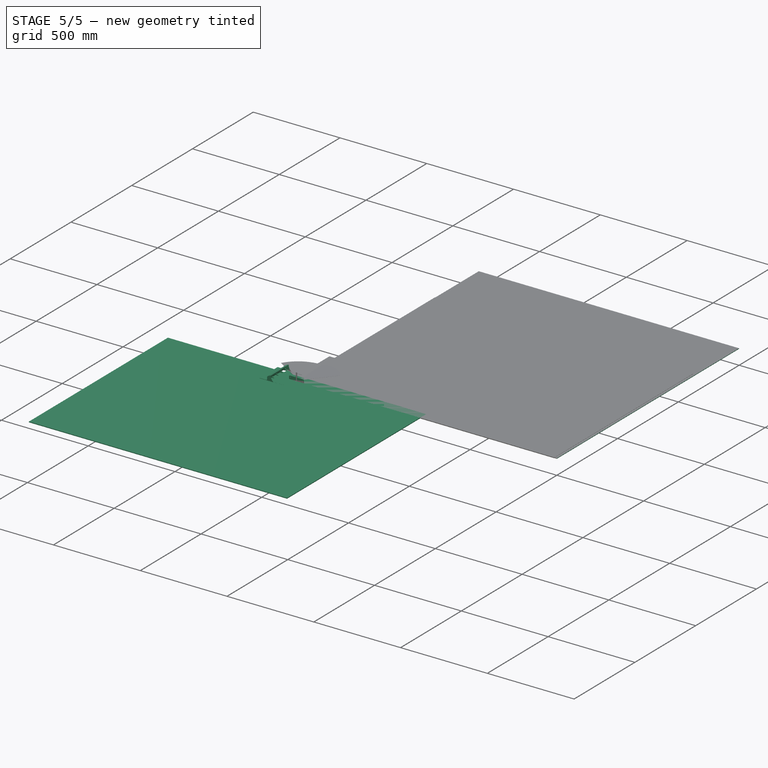
[diagram: stage 5 of 5 — iso view after this stage's code; geometry added in this stage tinted green]
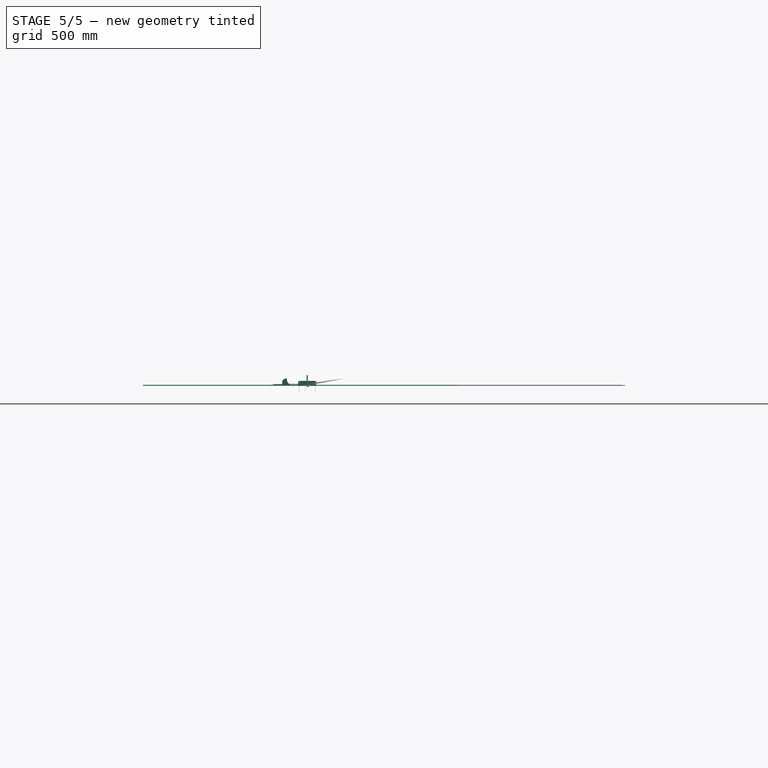
[diagram: stage 5 of 5 — front view after this stage's code; geometry added in this stage tinted green]
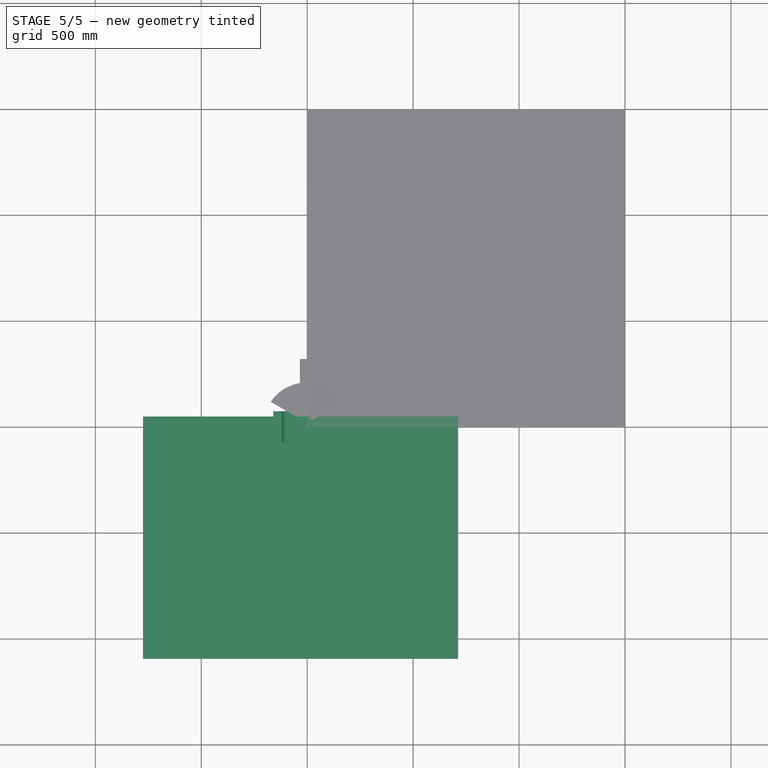
[diagram: stage 5 of 5 — top view after this stage's code; geometry added in this stage tinted green]
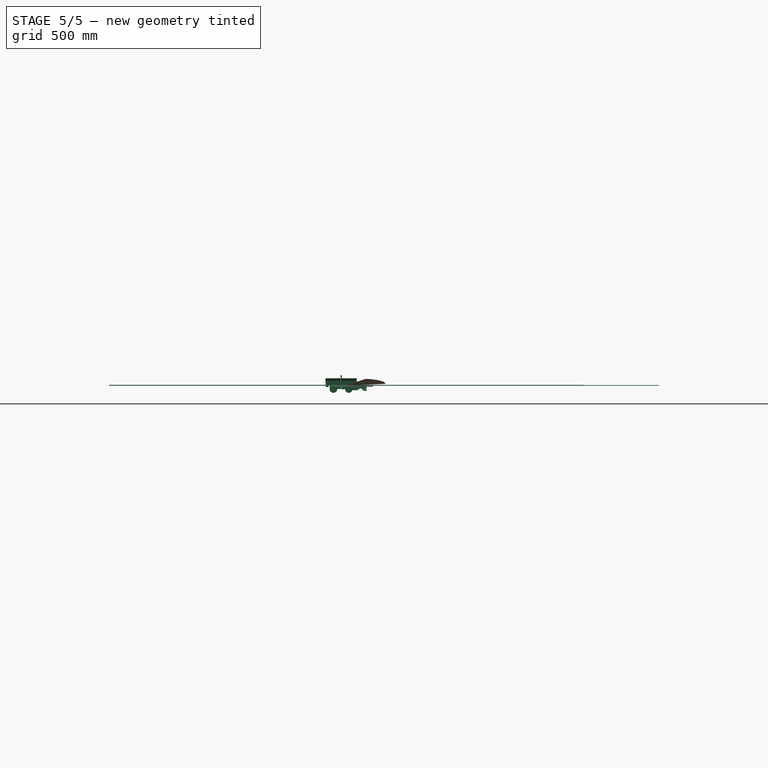
[diagram: stage 5 of 5 — right view after this stage's code; geometry added in this stage tinted green]
FEATURE [PartDesign::CoordinateSystem] Local_CS
  AttacherType = Attacher::AttachEngine3D
  AttachmentOffset = pos=(0,9.2376,0) rot=(0,0,1;0rad)
  MapMode = 5
  Placement = pos=(0,9.2376,0) rot=(0,0,1;0rad)
  Support = -> [XY_Plane001]
  expr: .AttachmentOffset.Base.y = Sketch003.Constraints.petal_offset
FEATURE [PartDesign::Plane] DatumPlane001
  AttachmentOffset = pos=(0,0,-100) rot=(0,0,1;0rad)
  Length = 488.253
  MapMode = 3
  Placement = pos=(0,109.238,-2.22e-14) rot=(1,0,0;1.5708rad)
  ResizeMode = 0
  Support = -> [Local_CS]
  Width = 908.956
  expr: .AttachmentOffset.Base.z = -<<main>>.work_plane_width / 2
FEATURE [Spreadsheet::Sheet] Spreadsheet002  label="dropper"
  cells = B2(d)==23.25mm; B3(fixture_d)=; B4(center_height_offset)==19mm; B5(distance_between_droppers1)==60mm; C5(distance_between_droppers2)==70mm
FEATURE [Sketcher::SketchObject] Sketch  label="gutter_side_sketch"
  FullyConstrained = true
  MapMode = 5
  Support = -> [XY_Plane]
  expr: .AttachmentOffset.Base.x = 0
  expr: .Constraints.little_distance = <<gutter>>.low_edge_length + (<<main>>.inner_width - <<main>>.thickness * 2) / 2 - 3mm
  expr: Constraints[12] = <<gutter>>.length
  expr: Constraints[27] = <<gutter>>.bend_angle + 90°
  sketch-geometry (15):
    g0: LineSegment StartX=0 StartY=150 StartZ=0 EndX=13.5 EndY=150 EndZ=0
    g1: LineSegment StartX=27 StartY=0 StartZ=0 EndX=0 EndY=0 EndZ=0
    g2: LineSegment StartX=15 StartY=148.5 StartZ=0 EndX=15 EndY=120 EndZ=0
    g3: LineSegment StartX=15 StartY=120 StartZ=0 EndX=31.2589 EndY=120 EndZ=0
    g4: GeomPoint X=27 Y=150 Z=0
    g5: ArcOfCircle CenterX=31.2589 CenterY=116.5 CenterZ=0 NormalX=0 NormalY=0 NormalZ=1 AngleXU=0 Radius=3.5 StartAngle=6.21662 EndAngle=7.85398
    g6: GeomPoint X=27 Y=0 Z=0
    g7: ArcOfCircle CenterX=13.5 CenterY=148.5 CenterZ=0 NormalX=0 NormalY=0 NormalZ=1 AngleXU=0 Radius=1.5 StartAngle=-3.6e-15 EndAngle=1.5708
    g8: GeomPoint X=15 Y=150 Z=0
    g9: LineSegment StartX=34.7511 StartY=116.267 StartZ=0 EndX=27.4178 EndY=6.26718 EndZ=0
    g10: LineSegment StartX=27.4178 StartY=6.26718 StartZ=0 EndX=27 EndY=0 EndZ=0
    g11: ArcOfCircle CenterX=23.9256 CenterY=6.5 CenterZ=0 NormalX=0 NormalY=0 NormalZ=1 AngleXU=0 Radius=3.5 StartAngle=4.71239 EndAngle=6.21662
    g12: LineSegment StartX=0 StartY=0 StartZ=0 EndX=0 EndY=3 EndZ=0
    g13: LineSegment StartX=0 StartY=3 StartZ=0 EndX=0 EndY=150 EndZ=0
    g14: LineSegment StartX=0 StartY=3 StartZ=0 EndX=23.9256 EndY=3 EndZ=0
  constraints (36):
    c: Coincident(g-1,g12)
    c: PointOnObject(g13,g-2)
    c: Coincident(g13,g0)
    c: Horizontal(g0)
    c: PointOnObject(g6,g-1)
    c: Coincident(g1,g12)
    c: Distance(g1,g6) = 27  'little_distance'
    c: Vertical(g2)
    c: Coincident(g3,g2)
    c: Horizontal(g3)
    c: DistanceY(g2,g8) = 30
    c: PointOnObject(g4,g0)
    c: Distance(g6,g4) = 150
    c: Distance(g0,g8) = 15
    c: Tangent(g3,g5) = 1.5708
    c: Diameter(g5) = 7
    c: PointOnObject(g8,g0)
    c: PointOnObject(g8,g2)
    c: Tangent(g0,g7) = 1.5708
    c: Tangent(g2,g7) = 1.5708
    c: Diameter(g7) = 3
    c: Tangent(g9,g5) = 1.5708
    c: Vertical(g4,g6)
    c: Coincident(g1,g6)
    c: Coincident(g10,g1)
    c: Coincident(g9,g10)
    c: Parallel(g9,g10)
    c: Angle(g10,g-1) = 1.63736
    c: Coincident(g12,g13)
    c: Vertical(g12)
    c: Coincident(g14,g12)
    c: Horizontal(g14)
    c: Tangent(g11,g9) = 1.5708
    c: Tangent(g14,g11) = -1.5708
    c: Equal(g11,g5)
    c: DistanceY(g12,g12) = 3
FEATURE [PartDesign::Pad] Pad  label="gutter_side_pad"
  Direction = (0,0,1)
  Length = 0.3
  Length2 = 10
  Profile = -> Sketch
  ReferenceAxis = -> Sketch [N_Axis]
  Type = 0
FEATURE [Sketcher::SketchObject] Sketch010
  FullyConstrained = true
  MapMode = 5
  Support = -> [XY_Plane]
  expr: Constraints[2] = -(<<main>>.inner_width / 2 - <<main>>.thickness - <<main>>.bend_r)
  expr: Constraints[3] = <<gutter>>.length
  sketch-geometry (1):
    g0: LineSegment StartX=-9.99 StartY=0 StartZ=0 EndX=-9.99 EndY=150 EndZ=0
  constraints (4):
    c: PointOnObject(g0,g-1)
    c: Vertical(g0)
    c: DistanceX(g0) = -9.99
    c: DistanceY(g0) = 150
FEATURE [PartDesign::Plane] DatumPlane002
  AttachmentOffset = pos=(0,0,407) rot=(0,0,1;0rad)
  Length = 449.558
  MapMode = 5
  Placement = pos=(0,0,407) rot=(0,0,1;0rad)
  ResizeMode = 0
  Support = -> [XY_Plane001]
  Width = 406.852
  expr: .AttachmentOffset.Base.z = <<main>>.work_plane_middle + 25mm
FEATURE [Sketcher::SketchObject] Sketch012
  FullyConstrained = true
  MapMode = 5
  Placement = pos=(0,0,0) rot=(0.57735,0.57735,0.57735;2.0944rad)
  Support = -> [YZ_Plane001]
  expr: Constraints[18] = <<main>>.total_length
  expr: Constraints[20] = <<main_sketch>>.Constraints.overlap_end_y
  sketch-geometry (10):
    g0: LineSegment StartX=0 StartY=0 StartZ=0 EndX=30.9697 EndY=0 EndZ=0
    g1: LineSegment StartX=30.9697 StartY=0 StartZ=0 EndX=30.9697 EndY=268 EndZ=0
    g2: LineSegment StartX=25.9697 StartY=263 StartZ=0 EndX=0 EndY=263 EndZ=0
    g3: LineSegment StartX=0 StartY=263 StartZ=0 EndX=0 EndY=0 EndZ=0
    g4: LineSegment StartX=0 StartY=774 StartZ=0 EndX=30.9697 EndY=774 EndZ=0
    g5: LineSegment StartX=30.9697 StartY=774 StartZ=0 EndX=30.9697 EndY=719 EndZ=0
    g6: LineSegment StartX=25.9697 StartY=724 StartZ=0 EndX=0 EndY=724 EndZ=0
    g7: LineSegment StartX=0 StartY=724 StartZ=0 EndX=0 EndY=774 EndZ=0
    g8: ArcOfCircle CenterX=25.9697 CenterY=268 CenterZ=0 NormalX=0 NormalY=0 NormalZ=1 AngleXU=0 Radius=5 StartAngle=4.71239 EndAngle=6.28319
    g9: ArcOfCircle CenterX=25.9697 CenterY=719 CenterZ=0 NormalX=0 NormalY=0 NormalZ=1 AngleXU=0 Radius=5 StartAngle=1.5481e-12 EndAngle=1.5708
  constraints (27):
    c: Coincident(g0,g1)
    c: Coincident(g2,g3)
    c: Coincident(g3,g0)
    c: Horizontal(g0)
    c: Horizontal(g2)
    c: Vertical(g1)
    c: Vertical(g3)
    c: Coincident(g0,g-1)
    c: DistanceY(g2) = 263  'bottom'
    c: Coincident(g4,g5)
    c: Coincident(g6,g7)
    c: Coincident(g7,g4)
    c: Horizontal(g4)
    c: Horizontal(g6)
    c: Vertical(g5)
    c: Vertical(g7)
    c: PointOnObject(g4,g-2)
    c: Vertical(g5,g1)
    c: DistanceY(g4) = 774
    c: DistanceY(g7,g7) = 50  'top'
    c: DistanceX(g0,g0) = 30.9697
    c: Tangent(g2,g8) = 1.5708
    c: Tangent(g1,g8) = -1.5708
    c: Tangent(g6,g9) = -1.5708
    c: Tangent(g9,g5) = 1.5708
    c: Equal(g9,g8)
    c: Diameter(g8) = 10
FEATURE [Sketcher::SketchObject] Sketch013
  AttachmentOffset = pos=(0,157,0) rot=(0,0,1;0rad)
  FullyConstrained = true
  MapMode = 5
  Placement = pos=(-3.49e-14,3.49e-14,157) rot=(0.57735,0.57735,0.57735;2.0944rad)
  Support = -> [YZ_Plane001]
  expr: .AttachmentOffset.Base.y = <<main>>.basin_height
  sketch-geometry (7):
    g0: LineSegment StartX=68 StartY=0 StartZ=0 EndX=0 EndY=0 EndZ=0
    g1: LineSegment StartX=0 StartY=0 StartZ=0 EndX=0 EndY=60 EndZ=0
    g2: LineSegment StartX=0 StartY=60 StartZ=0 EndX=31.9055 EndY=60 EndZ=0
    g3: LineSegment StartX=36.3804 StartY=57.2304 StartZ=0 EndX=63.525 EndY=2.76957 EndZ=0
    g4: ArcOfCircle CenterX=68 CenterY=5 CenterZ=0 NormalX=0 NormalY=0 NormalZ=1 AngleXU=0 Radius=5 StartAngle=3.60398 EndAngle=4.71239
    g5: ArcOfCircle CenterX=31.9055 CenterY=55 CenterZ=0 NormalX=0 NormalY=0 NormalZ=1 AngleXU=0 Radius=5 StartAngle=0.462386 EndAngle=1.5708
    g6: GeomPoint X=35 Y=60 Z=0
  constraints (17):
    c: PointOnObject(g0,g-1)
    c: Coincident(g0,g-1)
    c: Coincident(g0,g1)
    c: PointOnObject(g1,g-2)
    c: Coincident(g1,g2)
    c: Horizontal(g2)
    c: PointOnObject(g6,g2)
    c: PointOnObject(g6,g3)
    c: Tangent(g2,g5) = 1.5708
    c: Tangent(g3,g5) = 1.5708
    c: Tangent(g4,g3) = -1.5708
    c: Distance(g1) = 60
    c: Tangent(g4,g0) = 1.5708
    c: Diameter(g5) = 10
    c: Distance(g0) = 68
    c: DistanceX(g6) = 35
    c: Equal(g5,g4)
FEATURE [Spreadsheet::Sheet] Spreadsheet003  label="gutter"
  cells = B2(length)==150mm; C2(plane_middle)==60mm; B3(bend_angle)==atan((high_edge_length - low_edge_length) / length); B4(high_edge_length)==30mm; B5(low_edge_length)==20mm
FEATURE [PartDesign::Mirrored] Mirrored005
  BaseFeature = -> Pad
  MirrorPlane = -> YZ_Plane
  Originals = -> [Pad]
  Refine = true
FEATURE [PartDesign::CoordinateSystem] Local_CS001
  AttacherType = Attacher::AttachEngine3D
  AttachmentOffset = pos=(-30,0,0) rot=(0,0,1;0.066568rad)
  MapMode = 5
  Placement = pos=(-30,0,0) rot=(0,0,1;0.066568rad)
  Support = -> [XY_Plane]
  expr: .AttachmentOffset.Base.x = -(<<gutter>>.low_edge_length + (<<main>>.inner_width - <<main>>.thickness * 2) / 2)
  expr: .AttachmentOffset.Rotation.Angle = <<gutter>>.bend_angle
  expr: .AttachmentOffset.Rotation.Yaw = <<gutter>>.bend_angle
FEATURE [App::DocumentObjectGroup] Group  label="Tables"
  Group = -> [Spreadsheet,Spreadsheet001,Spreadsheet003,Spreadsheet002]
FEATURE [PartDesign::CoordinateSystem] Local_CS002
  AttacherType = Attacher::AttachEngine3D
  AttachmentOffset = pos=(30,0,0) rot=(0,0,1;-0.066568rad)
  MapMode = 5
  Placement = pos=(30,0,0) rot=(0,0,1;6.21662rad)
  Support = -> [XY_Plane]
  expr: .AttachmentOffset.Base.x = <<gutter>>.low_edge_length + (<<main>>.inner_width - <<main>>.thickness * 2) / 2
  expr: .AttachmentOffset.Rotation.Angle = -<<gutter>>.bend_angle
FEATURE [PartDesign::CoordinateSystem] Local_CS003
  AttacherType = Attacher::AttachEngine3D
  AttachmentOffset = pos=(0,60,0) rot=(0,0,1;1.5708rad)
  MapMode = 5
  Placement = pos=(33.9911,59.8671,0) rot=(0,0,1;1.50423rad)
  Support = -> [Local_CS002]
  expr: .AttachmentOffset.Base.y = <<gutter>>.plane_middle
FEATURE [PartDesign::CoordinateSystem] Local_CS004
  AttacherType = Attacher::AttachEngine3D
  AttachmentOffset = pos=(2,60,0) rot=(0,0,1;-1.5708rad)
  MapMode = 5
  Placement = pos=(-31.9956,60.0001,0) rot=(0,0,1;4.77896rad)
  Support = -> [Local_CS001]
  expr: .AttachmentOffset.Base.y = <<gutter>>.plane_middle
FEATURE [PartDesign::Plane] DatumPlane003
  Length = 91.4351
  MapMode = 4
  Placement = pos=(33.9911,59.8671,0) rot=(0.023538,0.706911,0.706911;3.09453rad)
  ResizeMode = 0
  Support = -> [Local_CS003]
  Width = 62.5599
FEATURE [PartDesign::Plane] DatumPlane004
  Length = 91.4351
  MapMode = 4
  Placement = pos=(-31.9956,60.0001,0) rot=(0.998893,0.03326,0.03326;1.5719rad)
  ResizeMode = 0
  Support = -> [Local_CS004]
  Width = 62.5599
FEATURE [PartDesign::Plane] DatumPlane005
  AttachmentOffset = pos=(0,-1,0) rot=(0,0,1;0rad)
  Length = 202.865
  MapMode = 5
  Placement = pos=(34.9889,59.8006,0) rot=(0,0,1;1.50423rad)
  ResizeMode = 0
  Support = -> [Local_CS003]
  Width = 102.646
FEATURE [PartDesign::Plane] DatumPlane006
  Length = 202.865
  MapMode = 5
  Placement = pos=(-31.9956,60.0001,0) rot=(0,0,-1;1.50423rad)
  ResizeMode = 0
  Support = -> [Local_CS004]
  Width = 102.646
FEATURE [Sketcher::SketchObject] Sketch037
  AttachmentOffset = pos=(30,2,0) rot=(0,0,1;0rad)
  FullyConstrained = true
  MapMode = 5
  Placement = pos=(33.9911,89.9337,0) rot=(0,0,1;1.50423rad)
  Support = -> [Local_CS003]
  expr: .AttachmentOffset.Base.x = <<dropper>>.distance_between_droppers1 / 2
  expr: Constraints[10] = <<dropper>>.d
  sketch-geometry (8):
    g0: LineSegment StartX=0 StartY=11.625 StartZ=0 EndX=1 EndY=11.625 EndZ=0
    g1: ArcOfCircle CenterX=1 CenterY=0 CenterZ=0 NormalX=0 NormalY=0 NormalZ=1 AngleXU=0 Radius=11.625 StartAngle=0.450911 EndAngle=1.5708
    g2: ArcOfCircle CenterX=17.127 CenterY=0 CenterZ=0 NormalX=0 NormalY=0 NormalZ=1 AngleXU=0 Radius=3 StartAngle=0.25268 EndAngle=1.29556
    g3: LineSegment StartX=12.0914 StartY=4.53943 StartZ=0 EndX=17.9423 EndY=2.88708 EndZ=0
    g4: LineSegment StartX=0 StartY=11.625 StartZ=0 EndX=0 EndY=0 EndZ=0
    g5: LineSegment StartX=0 StartY=0 StartZ=0 EndX=21 EndY=0 EndZ=0
    g6: ArcOfCircle CenterX=21 CenterY=1 CenterZ=0 NormalX=0 NormalY=0 NormalZ=1 AngleXU=0 Radius=1 StartAngle=3.39427 EndAngle=4.71239
    g7: ArcOfCircle CenterX=12.3631 CenterY=5.5018 CenterZ=0 NormalX=0 NormalY=0 NormalZ=1 AngleXU=0 Radius=1 StartAngle=3.5925 EndAngle=4.43715
  constraints (22):
    c: PointOnObject(g0,g-2)
    c: Horizontal(g0)
    c: PointOnObject(g2,g-1)
    c: Tangent(g3,g2) = 1.5708
    c: Tangent(g1,g0) = 1.5708
    c: Coincident(g4,g0)
    c: Coincident(g4,g-1)
    c: Coincident(g5,g4)
    c: Diameter(g2) = 6
    c: Angle(g3,g-1) = 0.275238
    c: Diameter(g1) = 23.25
    c: PointOnObject(g1,g-1)
    c: Distance(g0) = 1
    c: Horizontal(g5)
    c: Tangent(g6,g5) = -1.5708
    c: Tangent(g6,g2) = 1.5708
    c: Diameter(g6) = 2
    c: Distance(g5) = 21
    c: Tangent(g3,g7) = -1.5708
    c: Tangent(g1,g7) = 1.5708
    c: Diameter(g7) = 2
    c: DistanceY(g2) = 2.88708  'arc_height'
FEATURE [PartDesign::Pocket] Pocket008
  BaseFeature = -> Mirrored005
  Direction = (0,0,-1)
  Length = 5
  Length2 = 5
  Midplane = true
  Profile = -> Sketch037
  ReferenceAxis = -> Sketch037 [N_Axis]
  Type = 1
FEATURE [PartDesign::Mirrored] Mirrored006
  MirrorPlane = -> Sketch037 [V_Axis]
FEATURE [PartDesign::Mirrored] Mirrored007
  MirrorPlane = -> DatumPlane003
FEATURE [PartDesign::MultiTransform] MultiTransform002
  BaseFeature = -> Pocket008
  Originals = -> [Pocket008]
  Transformations = -> [Mirrored006,Mirrored007]
FEATURE [PartDesign::SubShapeBinder] Binder
  AttacherType = Attacher::AttachEngine3D
  AttachmentOffset = pos=(35,0,0) rot=(0,0,1;0rad)
  BindCopyOnChange = 0
  BindMode = 0
  ClaimChildren = true
  Context = -> Body [Binder.]
  Fuse = false
  MakeFace = true
  MapMode = 5
  OffsetFill = false
  OffsetIntersection = false
  OffsetJoinType = 0
  OffsetOpenResult = false
  PartialLoad = false
  Placement = pos=(-28.1674,25.0777,0) rot=(0,0,-1;1.50423rad)
  Relative = false
  _Version = 2
  expr: .AttachmentOffset.Base.x = <<dropper>>.distance_between_droppers2 / 2
FEATURE [PartDesign::Pocket] Pocket009
  BaseFeature = -> MultiTransform002
  Direction = (0,0,-1)
  Length = 5
  Length2 = 5
  Midplane = true
  Profile = -> Binder
  Type = 1
FEATURE [PartDesign::Plane] DatumPlane007
  Length = 91.4351
  MapMode = 4
  Placement = pos=(-28.1674,25.0777,0) rot=(0.998893,0.03326,0.03326;1.5719rad)
  ResizeMode = 0
  Support = -> [Binder]
  Width = 62.5599
FEATURE [PartDesign::Mirrored] Mirrored008
  MirrorPlane = -> DatumPlane007
FEATURE [PartDesign::Mirrored] Mirrored009
  MirrorPlane = -> DatumPlane004
FEATURE [PartDesign::MultiTransform] MultiTransform003
  BaseFeature = -> Pocket009
  Originals = -> [Pocket009]
  Transformations = -> [Mirrored008,Mirrored009]
FEATURE [Sketcher::SketchObject] Sketch038
  FullyConstrained = true
  MapMode = 5
  Support = -> [XY_Plane]
  expr: Constraints[2] = <<main>>.inner_width / 2 - <<main>>.thickness - <<main>>.bend_r
  expr: Constraints[3] = <<gutter>>.length
  sketch-geometry (1):
    g0: LineSegment StartX=9.99 StartY=0 StartZ=0 EndX=9.99 EndY=150 EndZ=0
  constraints (4):
    c: PointOnObject(g0,g-1)
    c: Vertical(g0)
    c: DistanceX(g0) = 9.99
    c: DistanceY(g0) = 150
FEATURE [Sketcher::SketchObject] Sketch039
  AttachmentOffset = pos=(51,14,0) rot=(0,0,1;0rad)
  FullyConstrained = true
  MapMode = 5
  Placement = pos=(24.4124,111.619,0) rot=(0,0,1;1.50423rad)
  Support = -> [DatumPlane005]
  expr: .AttachmentOffset.Base.x = <<main>>.gutter_fix_holes_distance
  expr: Constraints[1] = <<main>>.rivet_d
  sketch-geometry (1):
    g0: Circle CenterX=0 CenterY=0 CenterZ=0 NormalX=0 NormalY=0 NormalZ=1 AngleXU=0 Radius=1.7
  constraints (2):
    c: Coincident(g0,g-1)
    c: Diameter(g0) = 3.4
FEATURE [PartDesign::Pocket] Pocket010
  BaseFeature = -> MultiTransform003
  Direction = (0,0,-1)
  Length = 5
  Length2 = 5
  Midplane = true
  Profile = -> Sketch039
  ReferenceAxis = -> Sketch039 [N_Axis]
  Type = 1
FEATURE [PartDesign::Mirrored] Mirrored010
  MirrorPlane = -> DatumPlane003
FEATURE [PartDesign::Mirrored] Mirrored011
  MirrorPlane = -> YZ_Plane
FEATURE [PartDesign::MultiTransform] MultiTransform004
  BaseFeature = -> Pocket010
  Originals = -> [Pocket010]
  Transformations = -> [Mirrored010,Mirrored011]
FEATURE [PartDesign::FeaturePython] Fold  # WARN: FeaturePython — macro-defined, semantics opaque (R4)
  BaseFeature = -> MultiTransform004
  BendLine = -> Sketch038
  Position = 0
  angle = 90
  baseObject = -> MultiTransform004 [Face4]
  invert = false
  invertbend = true
  kfactor = 0.01
  radius = 0.01
  unfold = false
  expr: radius = <<main>>.bend_r
FEATURE [PartDesign::FeaturePython] Fold002  # WARN: FeaturePython — macro-defined, semantics opaque (R4)
  BaseFeature = -> Fold
  BendLine = -> Sketch010
  Position = 0
  angle = 90
  baseObject = -> Fold [Face2]
  invert = false
  invertbend = false
  kfactor = 0.01
  radius = 0.01
  unfold = false
  expr: radius = <<main>>.bend_r
FEATURE [PartDesign::SubShapeBinder] Binder023
  BindCopyOnChange = 0
  BindMode = 0
  ClaimChildren = false
  Context = -> Body001003005003 [Binder023.]
  Fuse = false
  MakeFace = true
  OffsetFill = false
  OffsetIntersection = false
  OffsetJoinType = 0
  OffsetOpenResult = false
  PartialLoad = false
  Relative = true
  Support = -> [Body001003005003013[Pocket042.Sketch084.,Pocket041.Sketch083.]]
  _Version = 2
FEATURE [Part::Feature] Part__Feature  label="module002"
  shape: bbox 170 x 148 x 41.12 mm, 715 faces (baked)
FEATURE [PartDesign::FeatureBase] BaseFeature
  BaseFeature = -> Part__Feature
FEATURE [PartDesign::CoordinateSystem] Local_CS009
  AttacherType = Attacher::AttachEngine3D
  MapMode = 45
  Placement = pos=(0,0,0) rot=(0,0.707107,0.707107;3.14159rad)
  Support = -> [BaseFeature]
FEATURE [PartDesign::Body] Body001003  label="module001"
  BaseFeature = -> Part__Feature
  Group = -> [BaseFeature,Local_CS009]
  Origin = -> Origin013
  Tip = -> BaseFeature
FEATURE [Sketcher::SketchObject] Sketch085
  FullyConstrained = true
  MapMode = 5
  Placement = pos=(0,0,0) rot=(0.57735,0.57735,0.57735;2.0944rad)
  Support = -> [YZ_Plane028]
  sketch-geometry (2):
    g0: LineSegment StartX=0 StartY=23 StartZ=0 EndX=0 EndY=0 EndZ=0
    g1: LineSegment StartX=0 StartY=0 StartZ=0 EndX=23 EndY=0 EndZ=0
  constraints (6):
    c: PointOnObject(g0,g-2)
    c: Coincident(g0,g-1)
    c: Coincident(g1,g0)
    c: PointOnObject(g1,g-1)
    c: Equal(g1,g0)
    c: DistanceX(g1,g1) = 23  'length'
FEATURE [PartDesign::FeaturePython] BaseBend002  # WARN: FeaturePython — macro-defined, semantics opaque (R4)
  BendSide = 0
  BendSketch = -> Sketch085
  MidPlane = true
  Reverse = false
  length = 86
  radius = 2
  thickness = 0.5
FEATURE [Sketcher::SketchObject] Sketch086
  AttachmentOffset = pos=(43,23,0) rot=(0,0,1;0rad)
  FullyConstrained = true
  MapMode = 5
  Placement = pos=(43,23,0) rot=(0,0,1;0rad)
  Support = -> [XY_Plane029]
  expr: .AttachmentOffset.Base.x = BaseBend002.length / 2
  expr: .AttachmentOffset.Base.y = Sketch085.Constraints.length
  sketch-geometry (3):
    g0: ArcOfCircle CenterX=-7.5 CenterY=-7.5 CenterZ=0 NormalX=0 NormalY=0 NormalZ=1 AngleXU=0 Radius=7.5 StartAngle=0 EndAngle=1.5708
    g1: LineSegment StartX=0 StartY=-7.5 StartZ=0 EndX=0 EndY=0 EndZ=0
    g2: LineSegment StartX=0 StartY=0 StartZ=0 EndX=-7.50003 EndY=-6.21876e-11 EndZ=0
  constraints (8):
    c: PointOnObject(g0,g-2)
    c: PointOnObject(g0,g-1)
    c: Coincident(g1,g-1)
    c: Coincident(g2,g1)
    c: Coincident(g2,g0)
    c: Tangent(g2,g0)
    c: Tangent(g1,g0) = -1.5708
    c: Diameter(g0) = 15
FEATURE [PartDesign::Pocket] Pocket047
  BaseFeature = -> BaseBend002
  Direction = (0,0,-1)
  Length = 5
  Length2 = 5
  Midplane = true
  Profile = -> Sketch086
  ReferenceAxis = -> Sketch086 [N_Axis]
  Type = 1
FEATURE [PartDesign::Mirrored] Mirrored032
  MirrorPlane = -> YZ_Plane028
FEATURE [PartDesign::PolarPattern] PolarPattern010
  Angle = 90
  Axis = -> X_Axis028
  Occurrences = 2
FEATURE [PartDesign::MultiTransform] MultiTransform011
  BaseFeature = -> Pocket047
  Originals = -> [Pocket047]
  Transformations = -> [Mirrored032,PolarPattern010]
FEATURE [Sketcher::SketchObject] Sketch087
  AttachmentOffset = pos=(0,14.5,0) rot=(0,0,1;0rad)
  FullyConstrained = true
  MapMode = 5
  Placement = pos=(0,14.5,0) rot=(0,0,1;0rad)
  Support = -> [XY_Plane029]
  expr: .AttachmentOffset.Base.y = 14.5mm
  expr: Constraints[3] = <<main>>.rivet_d
  sketch-geometry (2):
    g0: Circle CenterX=36 CenterY=0 CenterZ=0 NormalX=0 NormalY=0 NormalZ=1 AngleXU=0 Radius=1.7
    g1: Circle CenterX=-36 CenterY=0 CenterZ=0 NormalX=0 NormalY=0 NormalZ=1 AngleXU=0 Radius=1.7
  constraints (5):
    c: PointOnObject(g0,g-1)
    c: Symmetric(g1,g0,g-1)
    c: Equal(g0,g1)
    c: Diameter(g0) = 3.4
    c: DistanceX(g1,g0) = 72
FEATURE [PartDesign::Pocket] Pocket048
  BaseFeature = -> MultiTransform011
  Direction = (0,0,-1)
  Length = 5
  Length2 = 5
  Midplane = true
  Profile = -> Sketch087
  ReferenceAxis = -> Sketch087 [N_Axis]
  Type = 1
FEATURE [PartDesign::PolarPattern] PolarPattern011
  Angle = 90
  Axis = -> X_Axis028
  BaseFeature = -> Pocket048
  Occurrences = 2
  Originals = -> [Pocket048]
FEATURE [Sketcher::SketchObject] Sketch088
  AttachmentOffset = pos=(178.2,61.7,0) rot=(0,0,1;0rad)
  FullyConstrained = true
  MapMode = 5
  Placement = pos=(2.59e-14,178.2,61.7) rot=(0.57735,0.57735,0.57735;2.0944rad)
  Support = -> [YZ_Plane001]
  expr: Constraints[9] = <<main>>.rivet_d
  sketch-geometry (4):
    g0: Circle CenterX=0 CenterY=-36 CenterZ=0 NormalX=0 NormalY=0 NormalZ=1 AngleXU=0 Radius=1.7
    g1: Circle CenterX=0 CenterY=36 CenterZ=0 NormalX=0 NormalY=0 NormalZ=1 AngleXU=0 Radius=1.7
    g2: LineSegment StartX=0 StartY=0 StartZ=0 EndX=0 EndY=-36 EndZ=0
    g3: LineSegment StartX=0 StartY=0 StartZ=0 EndX=0 EndY=36 EndZ=0
  constraints (10):
    c: PointOnObject(g0,g-2)
    c: PointOnObject(g1,g-2)
    c: Equal(g0,g1)
    c: Coincident(g2,g-1)
    c: Coincident(g2,g0)
    c: Coincident(g3,g2)
    c: Coincident(g3,g1)
    c: Equal(g2,g3)
    c: DistanceY(g0,g1) = 72
    c: Diameter(g1) = 3.4
FEATURE [PartDesign::PolarPattern] PolarPattern012
  Angle = 120
  Axis = -> Z_Axis001
  Occurrences = 2
FEATURE [PartDesign::Mirrored] Mirrored033
  MirrorPlane = -> DatumPlane021
FEATURE [App::Link] Body001003005003004001
  AssemblyType = Part::Link
  AttachedBy = #Local_CS019
  AttachedTo = Body001001#Local_CS025
  AttachmentOffset = pos=(0,0,-3) rot=(0,0,1;3.14159rad)
  LinkPlacement = pos=(0,0,154) rot=(0,0,1;3.14159rad)
  LinkedObject = -> Body001003005003004
  Placement = pos=(0,0,154) rot=(0,0,1;3.14159rad)
  SolverId = Asm4EE
  expr: Placement = Body001001.Placement * Local_CS025.Placement * AttachmentOffset * Local_CS019.Placement ^ -1
FEATURE [PartDesign::CoordinateSystem] Local_CS030
  AttacherType = Attacher::AttachEngine3D
  AttachmentOffset = pos=(0,0,-16) rot=(0,1,0;3.14159rad)
  MapMode = 2
  Placement = pos=(-16,178.2,61.7) rot=(-0.57735,0.57735,0.57735;4.18879rad)
  Support = -> [Sketch088]
  expr: .AttachmentOffset.Base.z = -<<main>>.end_face_width / 2
FEATURE [PartDesign::CoordinateSystem] Local_CS031
  AttacherType = Attacher::AttachEngine3D
  MapMode = 2
  Placement = pos=(0,14.5,0) rot=(0,0,1;0rad)
  Support = -> [Sketch087]
FEATURE [PartDesign::Body] Body001003005003015  label="corner_72x15_material_0.30ansi"
  Group = -> [Sketch085,BaseBend002,Sketch086,Pocket047,MultiTransform011,Mirrored032,PolarPattern010,Sketch087,Pocket048,PolarPattern011,Local_CS031]
  Origin = -> Origin028
  Tip = -> PolarPattern011
FEATURE [App::Link] Body001003005003015001
  AssemblyType = Part::Link
  AttachedBy = #Local_CS031
  AttachedTo = Body001001#Local_CS030
  AttachmentOffset = pos=(0,0,0.5) rot=(0,0,1;4.71239rad)
  LinkPlacement = pos=(-16.5,192.7,61.7) rot=(0.707107,0,-0.707107;3.14159rad)
  LinkedObject = -> Body001003005003015
  Placement = pos=(-16.5,192.7,61.7) rot=(0.707107,0,-0.707107;3.14159rad)
  SolverId = Asm4EE
  expr: Placement = Body001001.Placement * Local_CS030.Placement * AttachmentOffset * Local_CS031.Placement ^ -1
FEATURE [Part::FeaturePython] Circular_Body001003005002  # Draft array (typed FeaturePython)
  ArrayType = Circular Array
  Axis = -> Z_Axis012
  AxisXYZ = 0
  Count = 2
  ElementPlacement = pos=(0,0,0) rot=(0,0,1;4.18879rad)
  Index = 1
  IntervalAngle = 240
  PlacementList = 2 placements: [(1.26218e-29,-1.26218e-29,157),(-1.37995e-13,6.82312e-14,157)]
  ScaleList = (2) [(1,1,1),(1,1,1)]
  ShowElement = false
  SourceObject = -> Body001003005002
  expr: .ElementPlacement.Rotation.Angle = IntervalAngle * Index
  expr: IntervalAngle = 240
FEATURE [PartDesign::CoordinateSystem] LCS_0
  AttacherType = Attacher::AttachEngine3D
  MapMode = 2
  Support = -> [X_Axis029]
FEATURE [Sketcher::SketchObject] Sketch089
  FullyConstrained = true
  MapMode = 5
  Placement = pos=(0,0,0) rot=(1,0,0;1.5708rad)
  Support = -> [XZ_Plane029]
  sketch-geometry (5):
    g0: LineSegment StartX=-41.5 StartY=-36.5 StartZ=0 EndX=-41.5 EndY=0 EndZ=0
    g1: LineSegment StartX=-41.5 StartY=0 StartZ=0 EndX=41.5 EndY=0 EndZ=0
    g2: LineSegment StartX=41.5 StartY=0 StartZ=0 EndX=41.5 EndY=-36.5 EndZ=0
    g3: LineSegment StartX=41.5 StartY=-36.5 StartZ=0 EndX=-41.5 EndY=-36.5 EndZ=0
    g4: GeomPoint X=0 Y=-18.25 Z=0
  constraints (13):
    c: Coincident(g0,g1)
    c: Coincident(g1,g2)
    c: Coincident(g2,g3)
    c: Coincident(g3,g0)
    c: Horizontal(g1)
    c: Horizontal(g3)
    c: Vertical(g0)
    c: Vertical(g2)
    c: Symmetric(g1,g0,g4)
    c: PointOnObject(g4,g-2)
    c: PointOnObject(g1,g-1)
    c: DistanceX(g1,g1) = 83  'width'
    c: DistanceY(g2,g2) = 36.5
FEATURE [PartDesign::FeaturePython] BaseBend003  # WARN: FeaturePython — macro-defined, semantics opaque (R4)
  BendSide = 0
  BendSketch = -> Sketch089
  MidPlane = true
  Reverse = false
  length = 108.4
  radius = 0.01
  thickness = 0.3
  expr: radius = <<main>>.bend_r
FEATURE [Sketcher::SketchObject] Sketch090
  FullyConstrained = true
  MapMode = 5
  Support = -> [XY_Plane030]
  expr: Constraints[6] = <<main>>.end_face_width / 2
  sketch-geometry (6):
    g0: LineSegment StartX=0 StartY=-100 StartZ=0 EndX=14.5 EndY=-100 EndZ=0
    g1: LineSegment StartX=16 StartY=-98.5 StartZ=0 EndX=16 EndY=100 EndZ=0
    g2: LineSegment StartX=16 StartY=100 StartZ=0 EndX=0 EndY=109.238 EndZ=0
    g3: LineSegment StartX=0 StartY=109.238 StartZ=0 EndX=0 EndY=-100 EndZ=0
    g4: ArcOfCircle CenterX=14.5 CenterY=-98.5 CenterZ=0 NormalX=0 NormalY=0 NormalZ=1 AngleXU=0 Radius=1.5 StartAngle=4.71239 EndAngle=6.28319
    g5: GeomPoint X=16 Y=-100 Z=0
  constraints (15):
    c: Coincident(g1,g2)
    c: Coincident(g2,g3)
    c: Coincident(g3,g0)
    c: Horizontal(g0)
    c: Vertical(g3)
    c: PointOnObject(g0,g-2)
    c: DistanceX(g5) = 16
    c: Angle(g-2,g2) = 1.0472
    c: Symmetric(g1,g5,g-1)
    c: DistanceY(g5,g1) = 200
    c: PointOnObject(g5,g0)
    c: PointOnObject(g5,g1)
    c: Tangent(g0,g4) = -1.5708
    c: Tangent(g1,g4) = -1.5708
    c: Diameter(g4) = 3
FEATURE [PartDesign::Pad] Pad023
  BaseFeature = -> BaseBend003
  Direction = (0,0,1)
  Length = 0.3
  Length2 = 10
  Profile = -> Sketch090
  ReferenceAxis = -> Sketch090 [N_Axis]
  Reversed = true
  Type = 0
FEATURE [PartDesign::Mirrored] Mirrored034
  BaseFeature = -> Pad023
  MirrorPlane = -> Sketch090 [V_Axis]
  Originals = -> [Pad023]
  Refine = true
FEATURE [Sketcher::SketchObject] Sketch091
  FullyConstrained = true
  MapMode = 5
  Placement = pos=(0,0,0) rot=(0.57735,0.57735,0.57735;2.0944rad)
  Support = -> [YZ_Plane029]
  sketch-geometry (8):
    g0: LineSegment StartX=0 StartY=-36.5 StartZ=0 EndX=0 EndY=-18.63 EndZ=0
    g1: LineSegment StartX=0 StartY=-18.63 StartZ=0 EndX=17.4865 EndY=-18.63 EndZ=0
    g2: LineSegment StartX=54.2 StartY=-36.5 StartZ=0 EndX=54.2 EndY=-18.63 EndZ=0
    g3: ArcOfCircle CenterX=36.33 CenterY=-18.63 CenterZ=0 NormalX=0 NormalY=0 NormalZ=1 AngleXU=0 Radius=17.87 StartAngle=4.71239 EndAngle=6.28319
    g4: LineSegment StartX=54.2 StartY=-36.5 StartZ=0 EndX=36.33 EndY=-36.5 EndZ=0
    g5: ArcOfCircle CenterX=36.33 CenterY=-18.63 CenterZ=0 NormalX=0 NormalY=0 NormalZ=1 AngleXU=0 Radius=17.87 StartAngle=3.19461 EndAngle=4.71239
    g6: ArcOfCircle CenterX=17.4865 CenterY=-19.63 CenterZ=0 NormalX=0 NormalY=0 NormalZ=1 AngleXU=0 Radius=1 StartAngle=0.053019 EndAngle=1.5708
    g7: LineSegment StartX=0 StartY=-36.5 StartZ=0 EndX=36.33 EndY=-36.5 EndZ=0
  constraints (22):
    c: PointOnObject(g0,g-2)
    c: PointOnObject(g0,g-2)
    c: Coincident(g0,g1)
    c: Horizontal(g1)
    c: Vertical(g2)
    c: Coincident(g4,g2)
    c: Horizontal(g4)
    c: Tangent(g3,g2) = -1.5708
    c: Coincident(g5,g3)
    c: Coincident(g5,g3)
    c: Tangent(g1,g6) = 1.5708
    c: Tangent(g6,g5) = 1.5708
    c: Coincident(g7,g0)
    c: Coincident(g7,g3)
    c: Horizontal(g7)
    c: Coincident(g3,g4)
    c: Tangent(g5,g7)
    c: DistanceY(g0) = -36.5
    c: DistanceX(g2) = 54.2
    c: Diameter(g6) = 2
    c: Diameter(g5) = 35.74
    c: Horizontal(g0,g2)
FEATURE [PartDesign::Pocket] Pocket050
  BaseFeature = -> Mirrored034
  Direction = (-1,2e-16,-3e-16)
  Length = 5
  Length2 = 5
  Midplane = true
  Profile = -> Sketch091
  ReferenceAxis = -> Sketch091 [N_Axis]
  Refine = true
  Type = 1
FEATURE [PartDesign::Mirrored] Mirrored035
  BaseFeature = -> Pocket050
  MirrorPlane = -> Sketch091 [V_Axis]
  Originals = -> [Pocket050]
FEATURE [Sketcher::SketchObject] Sketch092
  FullyConstrained = true
  MapMode = 5
  Placement = pos=(0,0,0) rot=(0.57735,0.57735,0.57735;2.0944rad)
  Support = -> [YZ_Plane029]
  sketch-geometry (1):
    g0: Circle CenterX=0 CenterY=-9.63 CenterZ=0 NormalX=0 NormalY=0 NormalZ=1 AngleXU=0 Radius=1.65
  constraints (3):
    c: PointOnObject(g0,g-2)
    c: Diameter(g0) = 3.3
    c: DistanceY(g0) = -9.63
FEATURE [PartDesign::Pocket] Pocket051
  BaseFeature = -> Mirrored035
  Direction = (-1,2e-16,-3e-16)
  Length = 5
  Length2 = 5
  Midplane = true
  Profile = -> Sketch092
  ReferenceAxis = -> Sketch092 [N_Axis]
  Type = 1
FEATURE [PartDesign::Body] Body_2  label="top_material_0.50ansi"
  Group = -> [LCS_0,Sketch089,BaseBend003,Sketch090,Pad023,Mirrored034,Sketch091,Pocket050,Mirrored035,Sketch092,Pocket051]
  Origin = -> Origin029
  Placement = pos=(0,0,3) rot=(0,0,1;0rad)
  Tip = -> Pocket051
FEATURE [PartDesign::CoordinateSystem] LCS_0001
  AttacherType = Attacher::AttachEngine3D
  MapMode = 2
  Support = -> [X_Axis030]
FEATURE [Sketcher::SketchObject] Sketch093  label="Stainless_top_Sketch"
  FullyConstrained = true
  MapMode = 5
  Placement = pos=(0,0,0) rot=(1,0,0;1.5708rad)
  Support = -> [XZ_Plane030]
  sketch-geometry (5):
    g0: LineSegment StartX=-38 StartY=-33.5 StartZ=0 EndX=-38 EndY=0 EndZ=0
    g1: LineSegment StartX=-38 StartY=0 StartZ=0 EndX=38 EndY=0 EndZ=0
    g2: LineSegment StartX=38 StartY=0 StartZ=0 EndX=38 EndY=-33.5 EndZ=0
    g3: LineSegment StartX=38 StartY=-33.5 StartZ=0 EndX=-38 EndY=-33.5 EndZ=0
    g4: GeomPoint X=0 Y=-16.75 Z=0
  constraints (13):
    c: Coincident(g0,g1)
    c: Coincident(g1,g2)
    c: Coincident(g2,g3)
    c: Coincident(g3,g0)
    c: Horizontal(g1)
    c: Horizontal(g3)
    c: Vertical(g0)
    c: Vertical(g2)
    c: Symmetric(g1,g0,g4)
    c: PointOnObject(g4,g-2)
    c: PointOnObject(g1,g-1)
    c: DistanceX(g1,g1) = 76  'width'
    c: DistanceY(g2,g1) = 33.5  'height'
FEATURE [PartDesign::FeaturePython] BaseBend004  # WARN: FeaturePython — macro-defined, semantics opaque (R4)
  BendSide = 0
  BendSketch = -> Sketch093
  MidPlane = true
  Reverse = false
  length = 108.4
  radius = 2
  thickness = 0.5
  expr: length = BaseBend003.length
FEATURE [PartDesign::SubShapeBinder] Binder024
  BindCopyOnChange = 0
  BindMode = 0
  ClaimChildren = false
  Context = -> Body_3 [Binder024.]
  Fuse = false
  MakeFace = true
  OffsetFill = true
  OffsetIntersection = false
  OffsetJoinType = 0
  OffsetOpenResult = true
  PartialLoad = false
  Relative = true
  Support = -> [Body_2[Pocket050.Sketch091.]]
  _Version = 2
FEATURE [PartDesign::Pocket] Pocket052
  BaseFeature = -> BaseBend004
  Direction = (-1,2e-16,-2e-16)
  Length = 5
  Length2 = 5
  Midplane = true
  Profile = -> Binder024 [Face1]
  Type = 1
FEATURE [PartDesign::Mirrored] Mirrored036
  BaseFeature = -> Pocket052
  MirrorPlane = -> XZ_Plane030
  Originals = -> [Pocket052]
FEATURE [PartDesign::SubShapeBinder] Binder025
  BindCopyOnChange = 0
  BindMode = 0
  ClaimChildren = false
  Context = -> Body_3 [Binder025.]
  Fuse = false
  MakeFace = true
  OffsetFill = false
  OffsetIntersection = false
  OffsetJoinType = 0
  OffsetOpenResult = false
  PartialLoad = false
  Relative = true
  Support = -> [Body_2[Pocket051.Sketch092.]]
  _Version = 2
FEATURE [PartDesign::Pocket] Pocket053
  BaseFeature = -> Mirrored036
  Direction = (-1,2e-16,-2e-16)
  Length = 5
  Length2 = 5
  Midplane = true
  Profile = -> Binder025
  Type = 1
FEATURE [PartDesign::Body] Body_4  label="vodostok_s_material_0.30ansi"
  Group = -> [LCS_0002,Sketch094,Sketch095,Pad025,Sketch096,Sketch097,Pocket054,Pocket055,Fold009]
  Origin = -> Origin032
  Tip = -> Fold009
FEATURE [PartDesign::CoordinateSystem] Local_CS032
  AttacherType = Attacher::AttachEngine3D
  AttachmentOffset = pos=(0,0,72) rot=(0.58,0.58,0.58;2.0944rad)
  MapMode = 5
  Placement = pos=(0,109.238,229) rot=(0.57735,0.57735,0.57735;2.0944rad)
  Support = -> [Local_CS023]
FEATURE [PartDesign::CoordinateSystem] LCS_0004
  AttacherType = Attacher::AttachEngine3D
  MapMode = 2
  Support = -> [X_Axis034]
FEATURE [Part::FeaturePython] Linear_Body001003001  # Draft array (typed FeaturePython)
  ArrayType = Linear Array
  Axis = -> Z_Axis012
  AxisXYZ = 0
  Count = 6
  ElementPlacement = pos=(0,0,-80) rot=(0,0,1;0rad)
  Index = 1
  LinearStep = -80
  Placement = pos=(14.5,0,0) rot=(0,0,1;0rad)
  PlacementList = 6 placements: arithmetic series from (1e-17,109.238,738) step (2.51215e-14,-4.26326e-14,-80) to (1.25617e-13,109.238,338)
  ScaleList = (6) [(1,1,1),(1,1,1),(1,1,1),(1,1,1),(1,1,1),(1,1,1)]
  ShowElement = false
  SourceObject = -> Body001003001
  expr: .ElementPlacement.Base.z = LinearStep * Index
  expr: Count = <<main>>.number_of_modules
FEATURE [PartDesign::SubShapeBinder] Binder027
  BindCopyOnChange = 0
  BindMode = 0
  ClaimChildren = false
  Context = -> Model [Body001001.Binder027.Edge3]
  Fuse = false
  MakeFace = true
  OffsetFill = false
  OffsetIntersection = false
  OffsetJoinType = 0
  OffsetOpenResult = false
  PartialLoad = false
  Placement = pos=(0,109.238,229) rot=(0.57735,0.57735,0.57735;2.0944rad)
  Relative = true
  Support = -> [Body_4[Pocket055.Sketch094.]]
  _Version = 2
  expr: Placement = Local_CS032.Placement
FEATURE [App::Link] Body_007
  AssemblyType = Part::Link
  AttachedBy = #LCS_0002
  AttachedTo = Body001001#Local_CS032
  AttachmentOffset = pos=(0,0,15.5) rot=(0,0,1;0rad)
  LinkPlacement = pos=(15.5,109.238,229) rot=(0.57735,0.57735,0.57735;2.0944rad)
  LinkedObject = -> Body_4
  Placement = pos=(15.5,109.238,229) rot=(0.57735,0.57735,0.57735;2.0944rad)
  SolverId = Asm4EE
  expr: Placement = Body001001.Placement * Local_CS032.Placement * AttachmentOffset * LCS_0002.Placement ^ -1
FEATURE [PartDesign::SubShapeBinder] Binder031
  BindCopyOnChange = 0
  BindMode = 0
  ClaimChildren = false
  Context = -> Body_3 [Binder031.]
  Fuse = false
  MakeFace = true
  OffsetFill = false
  OffsetIntersection = false
  OffsetJoinType = 0
  OffsetOpenResult = false
  PartialLoad = false
  Relative = true
  _Version = 2
FEATURE [PartDesign::Pocket] Pocket060
  BaseFeature = -> Pocket053
  Direction = (0,0,-1)
  Length = 5
  Length2 = 5
  Midplane = true
  Profile = -> Binder031
  Type = 1
FEATURE [PartDesign::Body] Body_7  label="ugol_mini_material_0.30ansi"
  Group = -> [LCS_0005,Sketch104,BaseBend006,Sketch105,DatumPlane024,Fillet002,Mirrored038,Pocket061,Sketch106,Pocket062]
  Origin = -> Origin035
  Tip = -> Pocket062
FEATURE [PartDesign::Mirrored] Mirrored039
  MirrorPlane = -> YZ_Plane036
FEATURE [PartDesign::PolarPattern] PolarPattern014
  Angle = 90
  Axis = -> X_Axis036
  Occurrences = 2
FEATURE [Sketcher::SketchObject] Sketch108
  FullyConstrained = true
  MapMode = 5
  Placement = pos=(0,0,0) rot=(0.57735,0.57735,0.57735;2.0944rad)
  Support = -> [YZ_Plane036]
  sketch-geometry (2):
    g0: LineSegment StartX=0 StartY=23 StartZ=0 EndX=0 EndY=0 EndZ=0
    g1: LineSegment StartX=0 StartY=0 StartZ=0 EndX=23 EndY=0 EndZ=0
  constraints (6):
    c: PointOnObject(g0,g-2)
    c: Coincident(g0,g-1)
    c: Coincident(g1,g0)
    c: PointOnObject(g1,g-1)
    c: Equal(g1,g0)
    c: DistanceX(g1,g1) = 23  'length'
FEATURE [PartDesign::FeaturePython] BaseBend007  # WARN: FeaturePython — macro-defined, semantics opaque (R4)
  BendSide = 0
  BendSketch = -> Sketch108
  MidPlane = true
  Reverse = false
  length = 86
  radius = 2
  thickness = 0.5
FEATURE [Sketcher::SketchObject] Sketch109
  AttachmentOffset = pos=(43,23,0) rot=(0,0,1;0rad)
  FullyConstrained = true
  MapMode = 5
  Placement = pos=(43,23,0) rot=(0,0,1;0rad)
  Support = -> [XY_Plane037]
  expr: .AttachmentOffset.Base.x = BaseBend007.length / 2
  expr: .AttachmentOffset.Base.y = Sketch108.Constraints.length
  sketch-geometry (3):
    g0: ArcOfCircle CenterX=-7.5 CenterY=-7.5 CenterZ=0 NormalX=0 NormalY=0 NormalZ=1 AngleXU=0 Radius=7.5 StartAngle=0 EndAngle=1.5708
    g1: LineSegment StartX=0 StartY=-7.5 StartZ=0 EndX=0 EndY=0 EndZ=0
    g2: LineSegment StartX=0 StartY=0 StartZ=0 EndX=-7.50003 EndY=-6.21876e-11 EndZ=0
  constraints (8):
    c: PointOnObject(g0,g-2)
    c: PointOnObject(g0,g-1)
    c: Coincident(g1,g-1)
    c: Coincident(g2,g1)
    c: Coincident(g2,g0)
    c: Tangent(g2,g0)
    c: Tangent(g1,g0) = -1.5708
    c: Diameter(g0) = 15
FEATURE [PartDesign::Pocket] Pocket063
  BaseFeature = -> BaseBend007
  Direction = (0,0,-1)
  Length = 5
  Length2 = 5
  Midplane = true
  Profile = -> Sketch109
  ReferenceAxis = -> Sketch109 [N_Axis]
  Type = 1
FEATURE [PartDesign::MultiTransform] MultiTransform013
  BaseFeature = -> Pocket063
  Originals = -> [Pocket063]
  Transformations = -> [Mirrored039,PolarPattern014]
FEATURE [Sketcher::SketchObject] Sketch110
  AttachmentOffset = pos=(0,14.5,0) rot=(0,0,1;0rad)
  FullyConstrained = true
  MapMode = 5
  Placement = pos=(0,-3.2e-15,14.5) rot=(1,0,0;1.5708rad)
  Support = -> [XZ_Plane036]
  expr: .AttachmentOffset.Base.y = 14.5mm
  expr: Constraints[3] = <<main>>.rivet_d
  sketch-geometry (2):
    g0: Circle CenterX=36 CenterY=0 CenterZ=0 NormalX=0 NormalY=0 NormalZ=1 AngleXU=0 Radius=1.7
    g1: Circle CenterX=-36 CenterY=0 CenterZ=0 NormalX=0 NormalY=0 NormalZ=1 AngleXU=0 Radius=1.7
  constraints (5):
    c: PointOnObject(g0,g-1)
    c: Symmetric(g1,g0,g-1)
    c: Equal(g0,g1)
    c: Diameter(g0) = 3.4
    c: DistanceX(g1,g0) = 72
FEATURE [PartDesign::CoordinateSystem] Local_CS034
  AttacherType = Attacher::AttachEngine3D
  MapMode = 2
  Placement = pos=(0,-3.2e-15,14.5) rot=(1,0,0;1.5708rad)
  Support = -> [Sketch110]
FEATURE [PartDesign::Pocket] Pocket064
  BaseFeature = -> MultiTransform013
  Direction = (0,1,2e-16)
  Length = 5
  Length2 = 5
  Midplane = true
  Profile = -> Sketch110
  ReferenceAxis = -> Sketch110 [N_Axis]
  Type = 1
FEATURE [Sketcher::SketchObject] Sketch111
  AttachmentOffset = pos=(0,14.5,0) rot=(0,0,1;0rad)
  FullyConstrained = true
  MapMode = 5
  Placement = pos=(0,14.5,0) rot=(0,0,1;0rad)
  Support = -> [XY_Plane037]
  expr: .AttachmentOffset.Base.y = Sketch110.AttachmentOffset.Base.y
  expr: Constraints[3] = 5.5
  expr: Constraints[4] = Sketch110.Constraints[4]
  sketch-geometry (2):
    g0: Circle CenterX=36 CenterY=0 CenterZ=0 NormalX=0 NormalY=0 NormalZ=1 AngleXU=0 Radius=2.75
    g1: Circle CenterX=-36 CenterY=0 CenterZ=0 NormalX=0 NormalY=0 NormalZ=1 AngleXU=0 Radius=2.75
  constraints (5):
    c: PointOnObject(g0,g-1)
    c: Symmetric(g1,g0,g-1)
    c: Equal(g0,g1)
    c: Diameter(g0) = 5.5
    c: DistanceX(g1,g0) = 72
FEATURE [PartDesign::Pocket] Pocket065
  BaseFeature = -> Pocket064
  Direction = (0,0,-1)
  Length = 5
  Length2 = 5
  Midplane = true
  Profile = -> Sketch111
  ReferenceAxis = -> Sketch111 [N_Axis]
  Type = 1
FEATURE [PartDesign::Body] Body001003005003015002  label="corner_5.5_material_0.30ansi"
  Group = -> [Sketch108,BaseBend007,Sketch109,Pocket063,MultiTransform013,Mirrored039,PolarPattern014,Sketch110,Pocket064,Local_CS034,Sketch111,Pocket065]
  Origin = -> Origin036
  Tip = -> Pocket065
FEATURE [PartDesign::CoordinateSystem] Local_CS035
  AttacherType = Attacher::AttachEngine3D
  AttachmentOffset = pos=(0,0,774) rot=(0,0,1;0rad)
  MapMode = 5
  Placement = pos=(0,109.238,774) rot=(0,0,1;0rad)
  Support = -> [Local_CS011]
  expr: .AttachmentOffset.Base.z = <<main>>.total_length
FEATURE [PartDesign::CoordinateSystem] Local_CS036  label="droppers_center"
  AttacherType = Attacher::AttachEngine3D
  AttachmentOffset = pos=(0,0,-19) rot=(0,0,1;0rad)
  MapMode = 5
  Placement = pos=(0,109.238,755) rot=(0,0,1;0rad)
  Support = -> [Local_CS035]
FEATURE [PartDesign::CoordinateSystem] Local_CS037  label="gutter_fixture_center"
  AttacherType = Attacher::AttachEngine3D
  AttachmentOffset = pos=(0,0,-12) rot=(0,0,1;0rad)
  MapMode = 5
  Placement = pos=(0,109.238,743) rot=(0,0,1;0rad)
  Support = -> [Local_CS036]
FEATURE [PartDesign::CoordinateSystem] Local_CS038  label="modules_top_center"
  AttacherType = Attacher::AttachEngine3D
  AttachmentOffset = pos=(0,0,-5) rot=(0,0,1;0rad)
  MapMode = 5
  Placement = pos=(0,109.238,738) rot=(0,0,1;0rad)
  Support = -> [Local_CS037]
FEATURE [Sketcher::SketchObject] Sketch112
  FullyConstrained = true
  MapMode = 5
  Placement = pos=(0,0,0) rot=(0.57735,0.57735,0.57735;2.0944rad)
  Support = -> [YZ_Plane001]
  expr: Constraints[10] = <<module>>.module_hole_x
  expr: Constraints[11] = <<module>>.module_hole_y
  sketch-geometry (5):
    g0: LineSegment StartX=-6.5 StartY=-3.5 StartZ=0 EndX=-6.5 EndY=3.5 EndZ=0
    g1: LineSegment StartX=-6.5 StartY=3.5 StartZ=0 EndX=6.5 EndY=3.5 EndZ=0
    g2: LineSegment StartX=6.5 StartY=3.5 StartZ=0 EndX=6.5 EndY=-3.5 EndZ=0
    g3: LineSegment StartX=6.5 StartY=-3.5 StartZ=0 EndX=-6.5 EndY=-3.5 EndZ=0
    g4: GeomPoint X=0 Y=0 Z=0
  constraints (12):
    c: Coincident(g0,g1)
    c: Coincident(g1,g2)
    c: Coincident(g2,g3)
    c: Coincident(g3,g0)
    c: Horizontal(g1)
    c: Horizontal(g3)
    c: Vertical(g0)
    c: Vertical(g2)
    c: Symmetric(g1,g0,g4)
    c: Coincident(g4,g-1)
    c: DistanceX(g1,g1) = 13
    c: DistanceY(g2,g2) = 7
FEATURE [Part::FeaturePython] Array  # Draft array (typed FeaturePython)
  AlwaysSyncPlacement = false
  Angle = 360
  ArrayType = 0
  Axis = (0,0,1)
  Base = -> Sketch112
  Center = (0,0,0)
  Count = 12
  ExpandArray = false
  Fuse = false
  IntervalAxis = (0,0,0)
  IntervalX = (100,0,0)
  IntervalY = (0,132,0)
  IntervalZ = (0,0,-80)
  NumberCircles = 3
  NumberPolar = 5
  NumberX = 1
  NumberY = 2
  NumberZ = 6
  Placement = pos=(0,-66,0) rot=(0,0,1;0rad)
  PlacementList = 12 placements: [(0,0,0),(0,0,-80),(0,0,-160),(0,0,-240),(0,0,-320),(0,0,-400),(0,132,0),(0,132,-80),(0,132,-160),(0,132,-240),(0,132,-320),(0,132,-400)]
  RadialDistance = 50
  ScaleList = (12) [(1,1,1),(1,1,1),(1,1,1),(1,1,1),(1,1,1),(1,1,1),(1,1,1),(1,1,1),(1,1,1),(1,1,1),(1,1,1),(1,1,1)]
  Symmetry = 1
  TangentialDistance = 25
  expr: .IntervalY.y = <<module>>.module_fixture_distance_x
  expr: .IntervalZ.z = -<<module>>.module_fixture_distance_y
  expr: .Placement.Base.y = -<<module>>.module_fixture_distance_x / 2
  expr: NumberZ = <<main>>.number_of_modules
FEATURE [Sketcher::SketchObject] Sketch113
  FullyConstrained = true
  MapMode = 5
  Placement = pos=(0,0,0) rot=(0.57735,0.57735,0.57735;2.0944rad)
  Support = -> [YZ_Plane001]
  expr: Constraints[18] = <<dropper>>.d + 2mm
  expr: Constraints[19] = <<dropper>>.center_height_offset
  sketch-geometry (8):
    g0: ArcOfCircle CenterX=0 CenterY=0 CenterZ=0 NormalX=0 NormalY=0 NormalZ=1 AngleXU=0 Radius=12.625 StartAngle=3.14159 EndAngle=6.28319
    g1: LineSegment StartX=12.625 StartY=-3.1e-15 StartZ=0 EndX=12.625 EndY=12.5 EndZ=0
    g2: LineSegment StartX=-12.625 StartY=1.5e-15 StartZ=0 EndX=-12.625 EndY=12.5 EndZ=0
    g3: ArcOfCircle CenterX=15.125 CenterY=12.5 CenterZ=0 NormalX=0 NormalY=0 NormalZ=1 AngleXU=0 Radius=2.5 StartAngle=1.5708 EndAngle=3.14159
    g4: ArcOfCircle CenterX=-15.125 CenterY=12.5 CenterZ=0 NormalX=0 NormalY=0 NormalZ=1 AngleXU=0 Radius=2.5 StartAngle=0 EndAngle=1.5708
    g5: LineSegment StartX=-15.125 StartY=15 StartZ=0 EndX=-15.125 EndY=19 EndZ=0
    g6: LineSegment StartX=-15.125 StartY=19 StartZ=0 EndX=15.125 EndY=19 EndZ=0
    g7: LineSegment StartX=15.125 StartY=19 StartZ=0 EndX=15.125 EndY=15 EndZ=0
  constraints (24):
    c: Coincident(g0,g-1)
    c: PointOnObject(g0,g-1)
    c: PointOnObject(g0,g-1)
    c: Coincident(g1,g0)
    c: Vertical(g1)
    c: Coincident(g2,g0)
    c: Vertical(g2)
    c: Coincident(g5,g4)
    c: Vertical(g5)
    c: Coincident(g6,g5)
    c: Horizontal(g6)
    c: Coincident(g7,g6)
    c: Coincident(g7,g3)
    c: Vertical(g7)
    c: Perpendicular(g3,g7)
    c: Tangent(g3,g1) = 1.5708
    c: Tangent(g4,g2) = -1.5708
    c: Perpendicular(g4,g5)
    c: Diameter(g0) = 25.25
    c: Distance(g0,g6) = 19
    c: Equal(g4,g3)
    c: Diameter(g4) = 5
    c: DistanceY(g7,g7) = 4
    c: Equal(g5,g7)
FEATURE [Part::FeaturePython] Array001  # Draft array (typed FeaturePython)
  AlwaysSyncPlacement = false
  Angle = 360
  ArrayType = 0
  Axis = (0,0,1)
  Base = -> Sketch113
  Center = (0,0,0)
  Count = 2
  ExpandArray = false
  Fuse = false
  IntervalAxis = (0,0,0)
  IntervalX = (100,0,0)
  IntervalY = (0,60,0)
  IntervalZ = (0,0,100)
  NumberCircles = 3
  NumberPolar = 5
  NumberX = 1
  NumberY = 2
  NumberZ = 1
  Placement = pos=(0,-30,0) rot=(0,0,1;0rad)
  PlacementList = 2 placements: [(0,0,0),(0,60,0)]
  RadialDistance = 50
  ScaleList = (2) [(1,1,1),(1,1,1)]
  Symmetry = 1
  TangentialDistance = 25
  expr: .IntervalY.y = <<dropper>>.distance_between_droppers1
  expr: .Placement.Base.y = -<<dropper>>.distance_between_droppers1 / 2
FEATURE [Part::FeaturePython] Array002  # Draft array (typed FeaturePython)
  AlwaysSyncPlacement = false
  Angle = 360
  ArrayType = 0
  Axis = (0,0,1)
  Base = -> Sketch113
  Center = (0,0,0)
  Count = 2
  ExpandArray = false
  Fuse = false
  IntervalAxis = (0,0,0)
  IntervalX = (100,0,0)
  IntervalY = (0,70,0)
  IntervalZ = (0,0,100)
  NumberCircles = 3
  NumberPolar = 5
  NumberX = 1
  NumberY = 2
  NumberZ = 1
  Placement = pos=(0,-35,0) rot=(0,0,1;0rad)
  PlacementList = 2 placements: [(0,0,0),(0,70,0)]
  RadialDistance = 50
  ScaleList = (2) [(1,1,1),(1,1,1)]
  Symmetry = 1
  TangentialDistance = 25
  expr: .IntervalY.y = <<dropper>>.distance_between_droppers2
  expr: .Placement.Base.y = -<<dropper>>.distance_between_droppers2 / 2
FEATURE [PartDesign::SubShapeBinder] Binder032
  BindCopyOnChange = 0
  BindMode = 0
  ClaimChildren = false
  Context = -> Body001 [Binder032.]
  Fuse = false
  MakeFace = true
  OffsetFill = false
  OffsetIntersection = false
  OffsetJoinType = 0
  OffsetOpenResult = false
  PartialLoad = false
  Placement = pos=(0,109.238,755) rot=(0,0,1;0rad)
  Relative = true
  Support = -> [Array001]
  _Version = 2
  expr: Placement = <<droppers_center>>.Placement
FEATURE [PartDesign::SubShapeBinder] Binder033
  BindCopyOnChange = 0
  BindMode = 0
  ClaimChildren = false
  Context = -> Body001 [Binder033.]
  Fuse = false
  MakeFace = true
  OffsetFill = false
  OffsetIntersection = false
  OffsetJoinType = 0
  OffsetOpenResult = false
  PartialLoad = false
  Placement = pos=(0,109.238,755) rot=(0,0,1;0rad)
  Relative = true
  Support = -> [Array002]
  _Version = 2
  expr: Placement = <<droppers_center>>.Placement
FEATURE [PartDesign::SubShapeBinder] Binder034
  BindCopyOnChange = 0
  BindMode = 0
  ClaimChildren = false
  Context = -> Body001 [Binder034.]
  Fuse = false
  MakeFace = true
  OffsetFill = false
  OffsetIntersection = false
  OffsetJoinType = 0
  OffsetOpenResult = false
  PartialLoad = false
  Placement = pos=(0,109.238,738) rot=(0,0,1;0rad)
  Relative = true
  Support = -> [Array]
  _Version = 2
  expr: Placement = <<modules_top_center>>.Placement
FEATURE [Sketcher::SketchObject] Sketch114
  FullyConstrained = true
  MapMode = 5
  Placement = pos=(0,0,0) rot=(0.57735,0.57735,0.57735;2.0944rad)
  Support = -> [YZ_Plane001]
  expr: Constraints[1] = <<main>>.rivet_d
  sketch-geometry (1):
    g0: Circle CenterX=0 CenterY=0 CenterZ=0 NormalX=0 NormalY=0 NormalZ=1 AngleXU=0 Radius=1.7
  constraints (2):
    c: Coincident(g0,g-1)
    c: Diameter(g0) = 3.4
FEATURE [Part::FeaturePython] Array003  # Draft array (typed FeaturePython)
  AlwaysSyncPlacement = false
  Angle = 360
  ArrayType = 0
  Axis = (0,0,1)
  Base = -> Sketch114
  Center = (0,0,0)
  Count = 2
  ExpandArray = false
  Fuse = false
  IntervalAxis = (0,0,0)
  IntervalX = (100,0,0)
  IntervalY = (0,102,0)
  IntervalZ = (0,0,100)
  NumberCircles = 3
  NumberPolar = 5
  NumberX = 1
  NumberY = 2
  NumberZ = 1
  Placement = pos=(0,-51,0) rot=(0,0,1;0rad)
  PlacementList = 2 placements: [(0,0,0),(0,102,0)]
  RadialDistance = 50
  ScaleList = (2) [(1,1,1),(1,1,1)]
  Symmetry = 1
  TangentialDistance = 25
  expr: .IntervalY.y = <<main>>.gutter_fix_holes_distance * 2
  expr: .Placement.Base.y = -.IntervalY.y / 2
FEATURE [PartDesign::SubShapeBinder] Binder035
  BindCopyOnChange = 0
  BindMode = 0
  ClaimChildren = false
  Context = -> Body001 [Binder035.]
  Fuse = false
  MakeFace = true
  OffsetFill = false
  OffsetIntersection = false
  OffsetJoinType = 0
  OffsetOpenResult = false
  PartialLoad = false
  Placement = pos=(0,109.238,743) rot=(0,0,1;0rad)
  Relative = true
  Support = -> [Array003]
  _Version = 2
  expr: Placement = <<gutter_fixture_center>>.Placement
FEATURE [Sketcher::SketchObject] Sketch115
  FullyConstrained = true
  MapMode = 5
  Support = -> [XY_Plane]
  expr: Constraints[1] = <<main>>.rivet_d
  sketch-geometry (1):
    g0: Circle CenterX=0 CenterY=145 CenterZ=0 NormalX=0 NormalY=0 NormalZ=1 AngleXU=0 Radius=1.7
  constraints (3):
    c: PointOnObject(g0,g-2)
    c: Diameter(g0) = 3.4
    c: DistanceY(g0) = 145
FEATURE [PartDesign::Pocket] Pocket070
  BaseFeature = -> Fold002
  Direction = (0,0,-1)
  Length = 5
  Length2 = 5
  Midplane = true
  Profile = -> Sketch115
  ReferenceAxis = -> Sketch115 [N_Axis]
  Type = 1
FEATURE [Part::FeaturePython] Stock  # WARN: FeaturePython — macro-defined, semantics opaque (R4)
  Height = 3
  Length = 1500
  StockType = CreateBox
  Width = 1500
FEATURE [Path::FeaturePython] Profile  # Path/CAM operation (typed FeaturePython)
  Active = true
  AreaParams:
    Tolerance = 1e-07
    FitArcs = True
    Simplify = False
    CleanDistance = 0.0
    Accuracy = 0.01
    Unit = 1.0
    MinArcPoints = 4
    MaxArcPoints = 100
    ClipperScale = 10000000.0
    Fill = 0
    Coplanar = 0
    Reorient = True
    Outline = False
    Explode = False
    OpenMode = 0
    Deflection = 0.01
    SubjectFill = 0
    ClipFill = 0
    Offset = -1.585
    ExtraPass = 0
    Stepover = 0.0
    LastStepover = 0.0
    JoinType = 0
    EndType = 0
    MiterLimit = 2.0
    RoundPrecision = 0.0
    PocketMode = 0
    ToolRadius = 1.0
    PocketExtraOffset = 0.0
    PocketStepover = 0.0
    PocketLastStepover = 0.0
    FromCenter = False
    Angle = 45.0
    AngleShift = 0.0
    Shift = 0.0
    Thicken = False
    SectionCount = -1
    Stepdown = 1.0
    SectionOffset = 0.0
    SectionTolerance = 1e-07
    SectionMode = 2
    Project = False
  Base = -> [Clone016,Clone007,Clone008,Clone009,Clone011,Clone002,Clone021,Clone006,Clone,Clone001,Clone014,Clone013,Clone004,Clone010,Clone005,Clone022,Clone012,Clone018,Clone017,Clone020,Clone019]
  ClearanceHeight = 8
  CoolantMode = 0
  CycleTime = 00:18:13
  Direction = 1
  FinalDepth = -0.1
  HandleMultipleFeatures = 0
  JoinType = 0
  MiterLimit = 0.1
  OffsetExtra = 0
  OpFinalDepth = 3
  OpStartDepth = 7
  OpStockZMax = 3
  OpStockZMin = 0
  OpToolDiameter = 3.17
  PathParams = {'orientation': 1, 'feedrate': 33.333333333333336, 'feedrate_v': 8.333333333333334, 'verbose': True, 'resume_height': 6.0, 'retraction': 8.0, 'return_end': True, 'preamble': False, 'start': Vector (1314.0003638412036, 1012.2421887313131, 8.0)}
  SafeHeight = 6
  Side = 0
  SplitArcs = false
  StartDepth = 3
  StartPoint = (0,0,0)
  StepDown = 4
  ToolController = -> __175mm_Endmill
  UseComp = true
  UseStartPoint = false
  processCircles = true
  processHoles = true
  processPerimeter = false
  expr: ClearanceHeight = OpStockZMax + SetupSheet.ClearanceHeightOffset
  expr: FinalDepth = -0.1mm
  expr: SafeHeight = OpStockZMax + SetupSheet.SafeHeightOffset
  expr: StartDepth = 3mm
  expr: StepDown = 4mm
FEATURE [App::FeaturePython] SetupSheet001  # Path/CAM operation (typed FeaturePython)
  ClearanceHeightExpression = OpStockZMax+SetupSheet001.ClearanceHeightOffset
  ClearanceHeightOffset = 5
  CoolantMode = 0
  CoolantModes = None | Flood | Mist
  DeburrExtraDepth = 0
  DeburrWidth = 2.7
  FinalDepthExpression = 0.6 mm
  HorizRapid = 0
  ProfileDirection = 1
  ProfileprocessCircles = true
  ProfileprocessHoles = true
  ProfileprocessPerimeter = true
  SafeHeightExpression = OpStockZMax+SetupSheet001.SafeHeightOffset
  SafeHeightOffset = 3
  StartDepthExpression = 3 mm
  StepDownExpression = OpToolDiameter
  VertRapid = 0
FEATURE [Part::FeaturePython] Clone023  label="Model-Unfold_main001"  # Draft clone (typed FeaturePython)
  AttacherType = Attacher::AttachEngine3D
  Fuse = false
  Objects = -> [Body001003005003015006]
  PathResource = Model
  Placement = pos=(213.937,774,7.67e-13) rot=(0,0,1;1.5708rad)
  Scale = (1,1,1)
  expr: Placement = <<Model-Unfold_main>>.Placement
FEATURE [Part::FeaturePython] Clone024  label="Model-Unfold_top003"  # Draft clone (typed FeaturePython)
  AttacherType = Attacher::AttachEngine3D
  Fuse = false
  Objects = -> [Body001003005003015007]
  PathResource = Model
  Placement = pos=(1399,85,0) rot=(0,0,1;3.97935rad)
  Scale = (1,1,1)
  expr: Placement = <<Model-Unfold_top>>.Placement
FEATURE [Part::FeaturePython] Clone025  label="Model-Unfold_top004"  # Draft clone (typed FeaturePython)
  AttacherType = Attacher::AttachEngine3D
  Fuse = false
  Objects = -> [Body001003005003015007]
  PathResource = Model
  Placement = pos=(1397,257,0) rot=(0,0,1;3.87463rad)
  Scale = (1,1,1)
  expr: Placement = <<Model-Unfold_top001>>.Placement
FEATURE [Part::FeaturePython] Clone026  label="Model-Unfold_top005"  # Draft clone (typed FeaturePython)
  AttacherType = Attacher::AttachEngine3D
  Fuse = false
  Objects = -> [Body001003005003015007]
  PathResource = Model
  Placement = pos=(1397,428,0) rot=(0,0,1;3.85718rad)
  Scale = (1,1,1)
  expr: Placement = <<Model-Unfold_top002>>.Placement
FEATURE [Part::Part2DObjectPython] Clone2D  label="Model-Bend_main"  # Draft 2D object (typed FeaturePython)
  Fuse = false
  Objects = -> [Unfold_Sketch_bends012]
  PathResource = Model
  Placement = pos=(213.937,774,7.67e-13) rot=(0,0,1;1.5708rad)
  Scale = (1,1,1)
  expr: Placement = <<Model-Unfold_main001>>.Placement
FEATURE [Part::Part2DObjectPython] Clone2D001  label="Model-Unfold_Sketch_bends"  # Draft 2D object (typed FeaturePython)
  Fuse = false
  Objects = -> [Unfold_Sketch_bends015]
  PathResource = Model
  Placement = pos=(1399,85,0) rot=(0,0,1;3.97935rad)
  Scale = (1,1,1)
  expr: Placement = <<Model-Unfold_top003>>.Placement
FEATURE [Part::Part2DObjectPython] Clone2D002  label="Model-Unfold_Sketch_bends001"  # Draft 2D object (typed FeaturePython)
  Fuse = false
  Objects = -> [Unfold_Sketch_bends015]
  PathResource = Model
  Placement = pos=(1397,257,0) rot=(0,0,1;3.87463rad)
  Scale = (1,1,1)
  expr: Placement = <<Model-Unfold_top004>>.Placement
FEATURE [Part::Part2DObjectPython] Clone2D003  label="Model-Unfold_Sketch_bends002"  # Draft 2D object (typed FeaturePython)
  Fuse = false
  Objects = -> [Unfold_Sketch_bends015]
  PathResource = Model
  Placement = pos=(1397,428,0) rot=(0,0,1;3.85718rad)
  Scale = (1,1,1)
  expr: Placement = <<Model-Unfold_top005>>.Placement
FEATURE [Part::Part2DObjectPython] Clone2D004  label="Model-bends_gutter"  # Draft 2D object (typed FeaturePython)
  Fuse = false
  Objects = -> [Unfold_Sketch_bends014]
  PathResource = Model
  Placement = pos=(1049,775,0) rot=(0,0,1;0rad)
  Scale = (1,1,1)
  expr: Placement = <<Model-Unfold_gutter>>.Placement
FEATURE [Part::Part2DObjectPython] Clone2D005  label="Model-bends_gutter001"  # Draft 2D object (typed FeaturePython)
  Fuse = false
  Objects = -> [Unfold_Sketch_bends014]
  PathResource = Model
  Placement = pos=(1012,1050,0) rot=(0,0,1;3.14159rad)
  Scale = (1,1,1)
  expr: Placement = <<Model-Unfold_gutter001>>.Placement
FEATURE [Part::Part2DObjectPython] Clone2D006  label="Model-bends_gutter002"  # Draft 2D object (typed FeaturePython)
  Fuse = false
  Objects = -> [Unfold_Sketch_bends014]
  PathResource = Model
  Placement = pos=(1414,591,0) rot=(0,0,1;1.5708rad)
  Scale = (1,1,1)
  expr: Placement = <<Model-Unfold_gutter002>>.Placement
FEATURE [Part::Part2DObjectPython] Clone2D007  label="Model-bends_tech_mid"  # Draft 2D object (typed FeaturePython)
  Fuse = false
  Objects = -> [Unfold_Sketch_bends]
  PathResource = Model
  Placement = pos=(966,700,0) rot=(0,0,-1;1.06465rad)
  Scale = (1,1,1)
  expr: Placement = <<Model-Unfold_tech_mid>>.Placement
FEATURE [Part::Part2DObjectPython] Clone2D008  label="Model-bends_tech_pillar"  # Draft 2D object (typed FeaturePython)
  Fuse = false
  Objects = -> [Unfold_Sketch_bends013]
  PathResource = Model
  Placement = pos=(300,700,0) rot=(0,0,1;1.5708rad)
  Scale = (1,1,1)
  expr: Placement = <<Model-Unfold_tech_pillar>>.Placement
FEATURE [Part::FeaturePython] ToolBit001  label="NZV6109015"  # Path/CAM toolbit (typed FeaturePython)
  BitPropertyNames = Chipload | CuttingEdgeAngle | CuttingEdgeHeight | Diameter | Flutes | Length | Material | ShankDiameter | TipDiameter
  BitShape = <path>
  Chipload = 0
  CuttingEdgeAngle = 90
  CuttingEdgeHeight = 4
  Diameter = 10
  Flutes = 0
  Length = 50
  Material = 0
  ShankDiameter = 6
  ShapeName = chamfer
  TipDiameter = 1
FEATURE [App::DocumentObjectGroup] Model002
  Group = -> [Clone023,Clone024,Clone025,Clone026,Clone2D,Clone2D001,Clone2D002,Clone2D003,Clone2D004,Clone2D005,Clone2D006,Clone2D007,Clone2D008,Clone2D009,Clone027]
FEATURE [Part::FeaturePython] Stock001  # WARN: FeaturePython — macro-defined, semantics opaque (R4)
  Base = -> Model002
  ExtXneg = 1
  ExtXpos = 1
  ExtYneg = 1
  ExtYpos = 1
  ExtZneg = 0
  ExtZpos = 1
  Placement = pos=(-774,-1094.25,-7.67e-13) rot=(0,0,1;0rad)
  StockType = FromBase
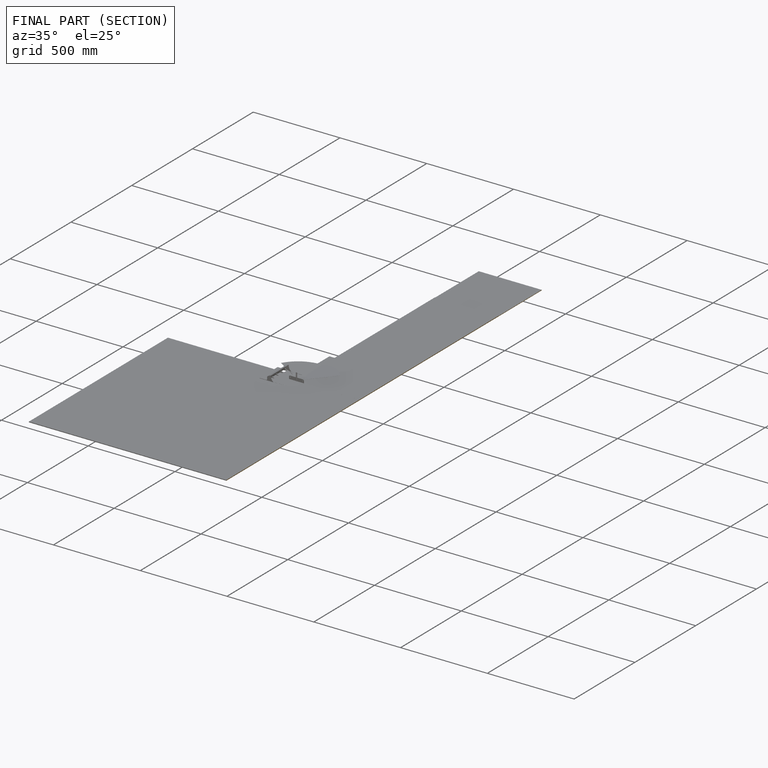
[diagram: finished part — half-section view (interior)]
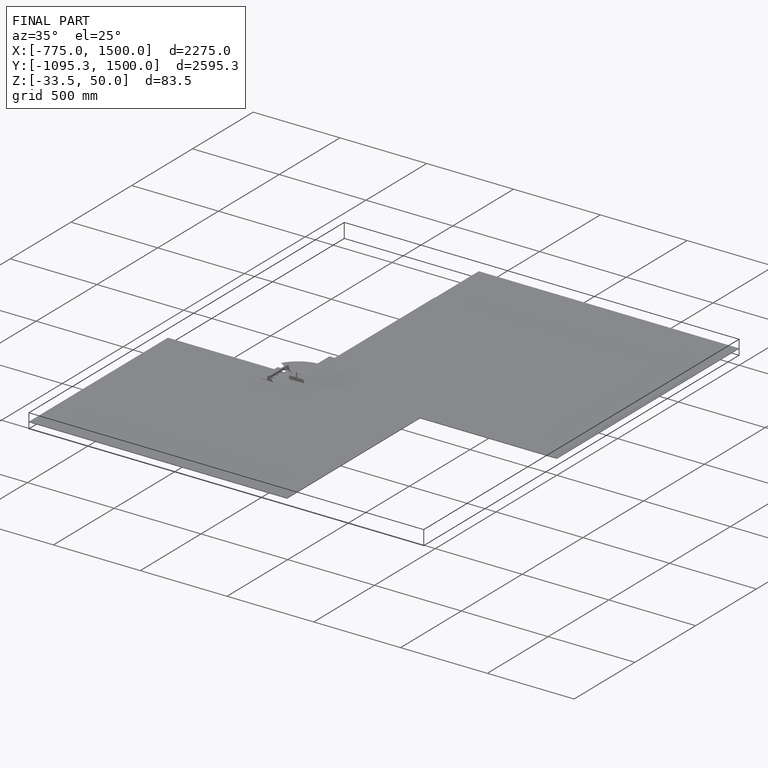
[diagram: finished part — iso view with bounding-box wireframe]
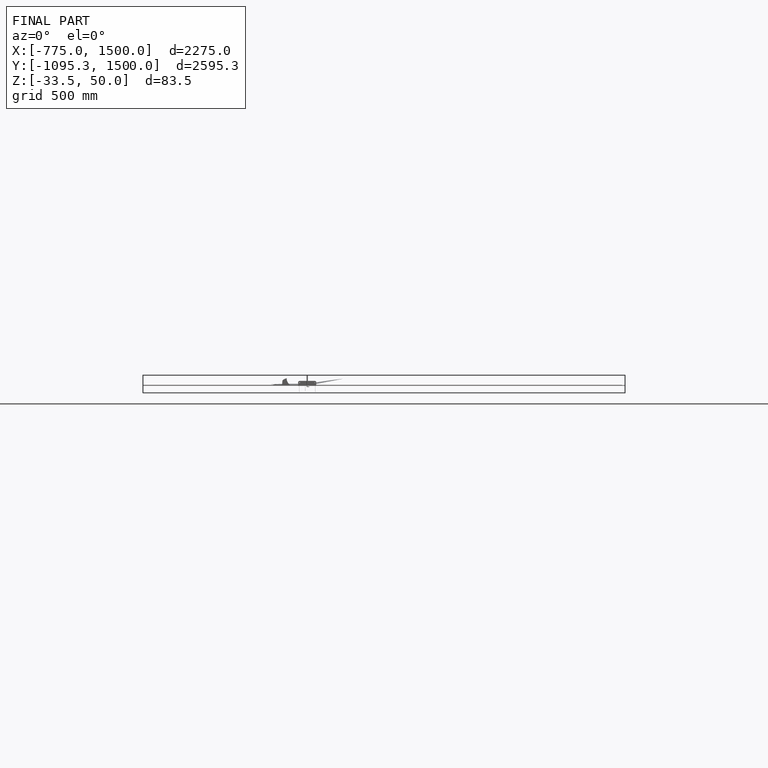
[diagram: finished part — front view with bounding-box wireframe]
